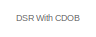
[diagram: root canvas - part 1/12, top right region]
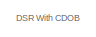
[diagram: root canvas - part 2/12, top center region]
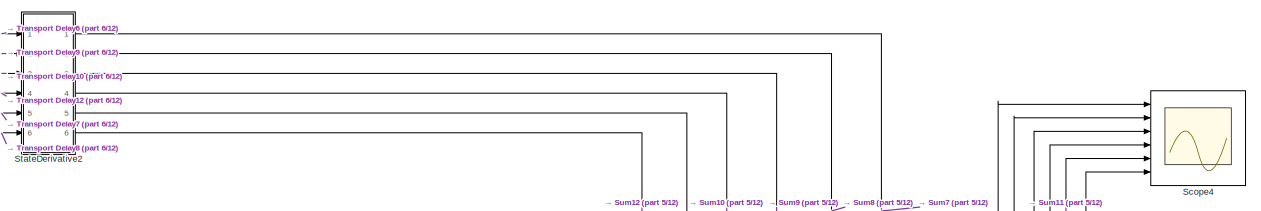
[diagram: root canvas - part 3/12, top right region]
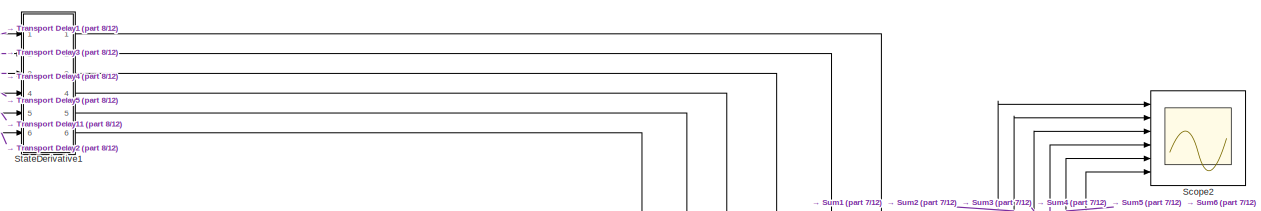
[diagram: root canvas - part 4/12, top center region]
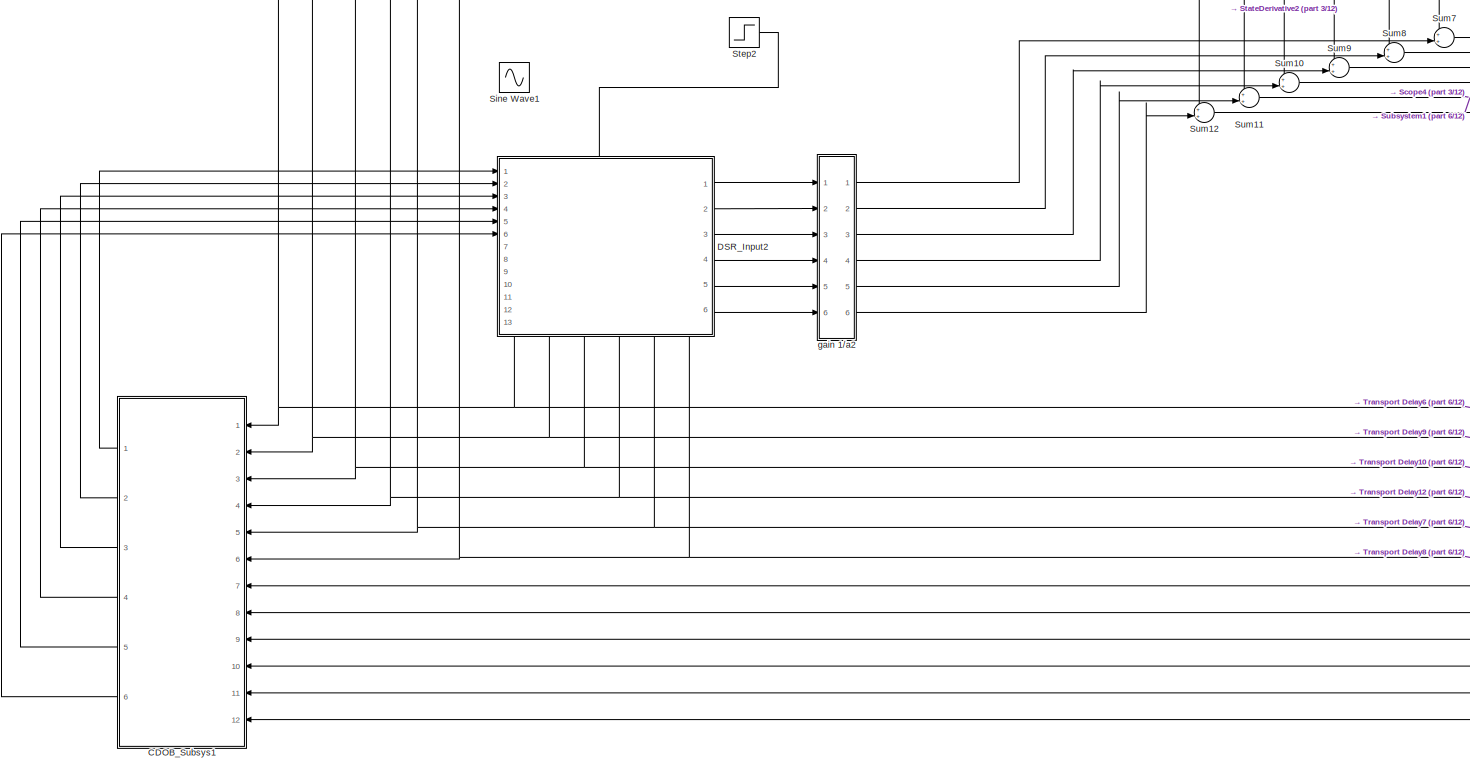
[diagram: root canvas - part 5/12, middle right region]
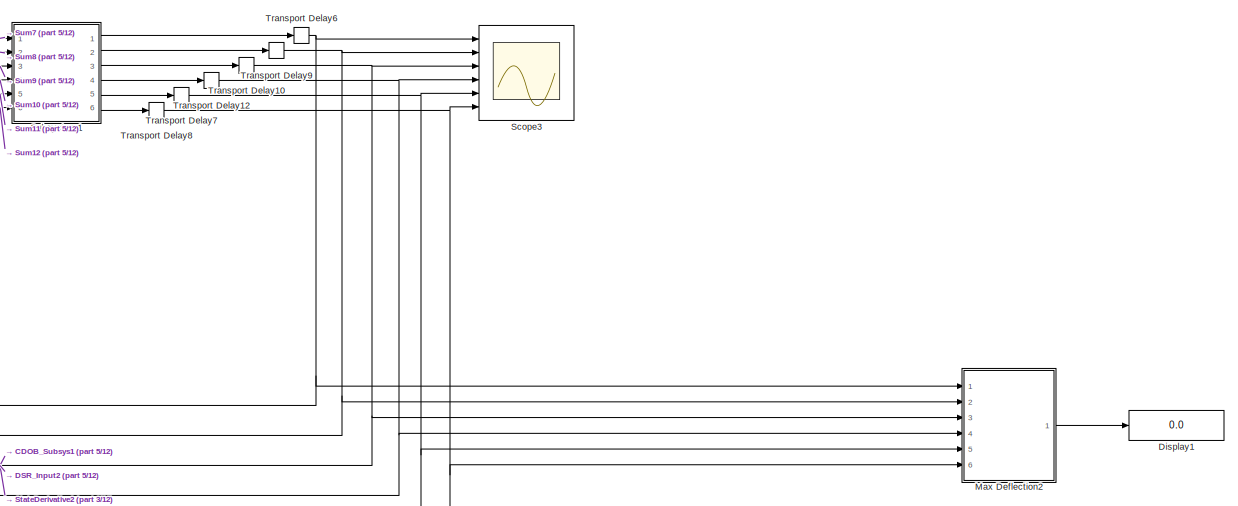
[diagram: root canvas - part 6/12, top right region]
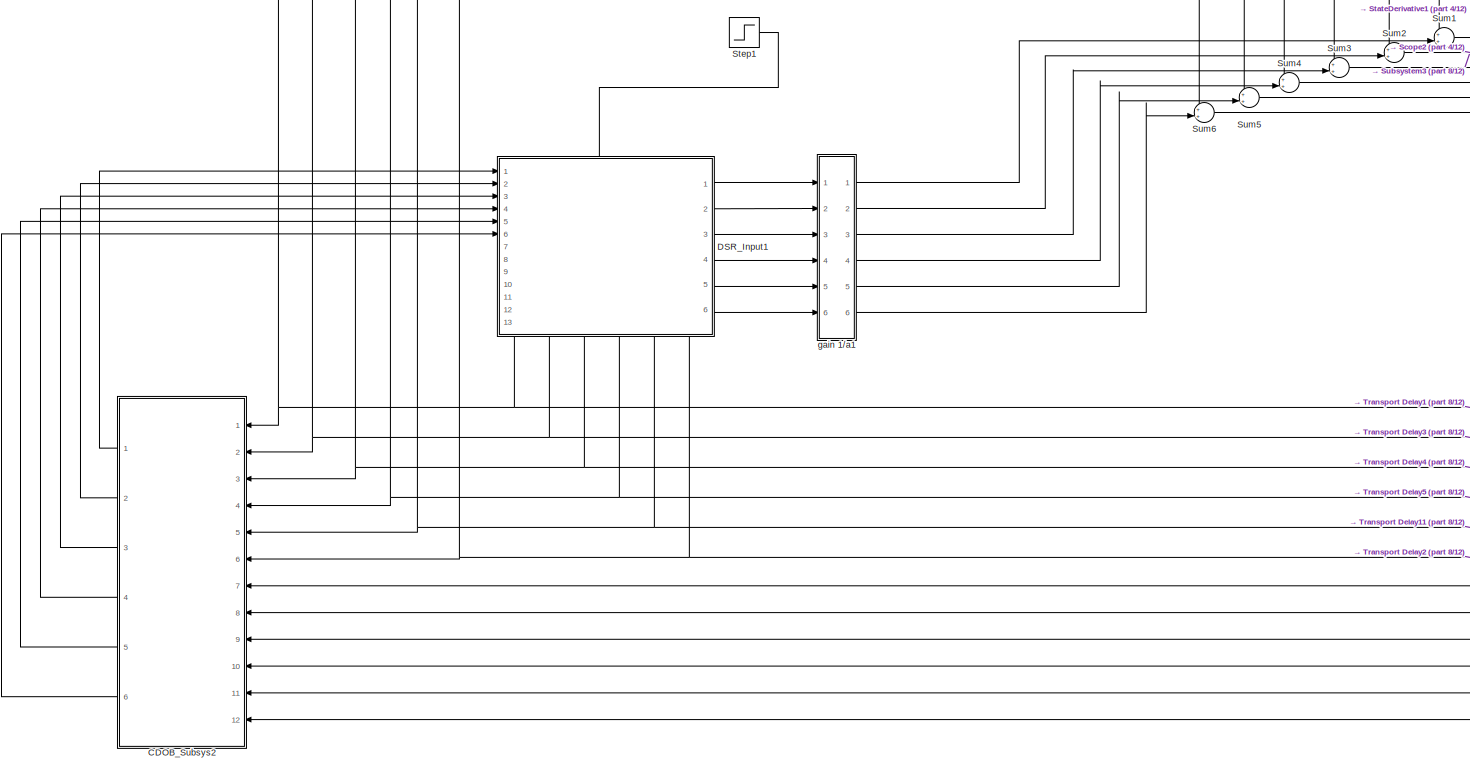
[diagram: root canvas - part 7/12, central region]
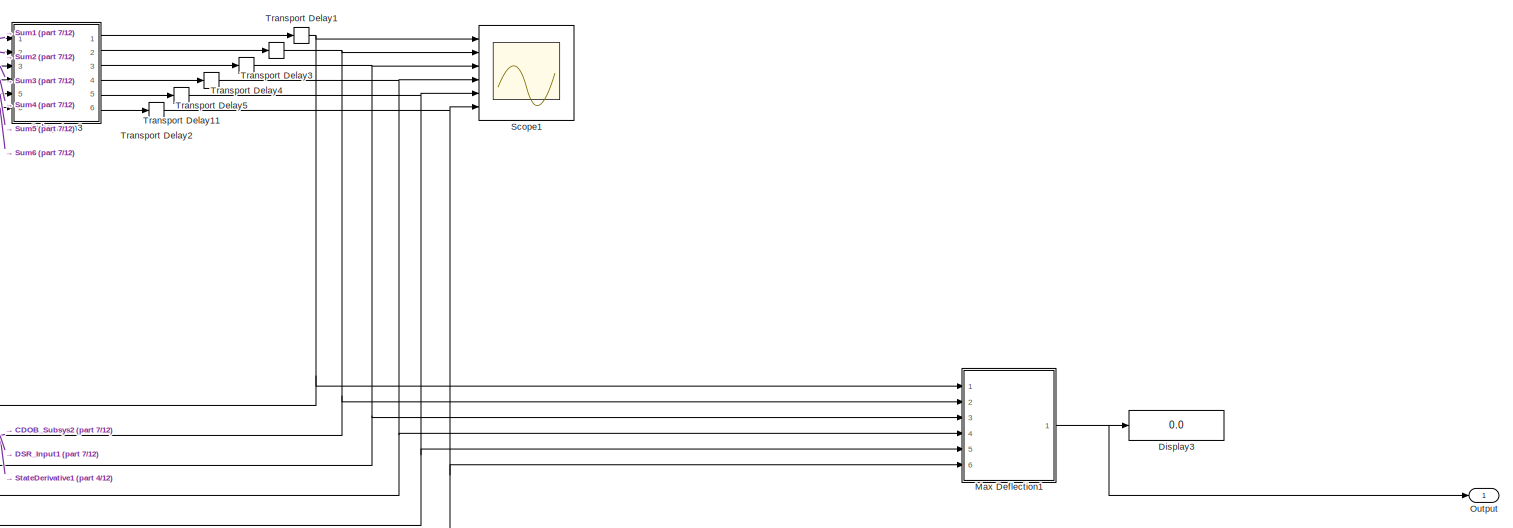
[diagram: root canvas - part 8/12, central region]
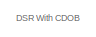
[diagram: root canvas - part 9/12, middle left region]
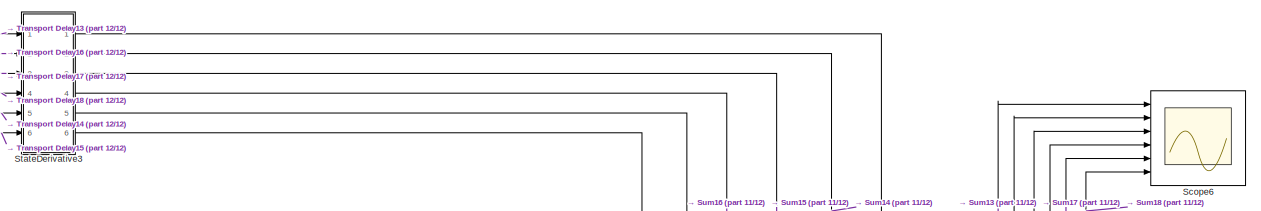
[diagram: root canvas - part 10/12, middle left region]
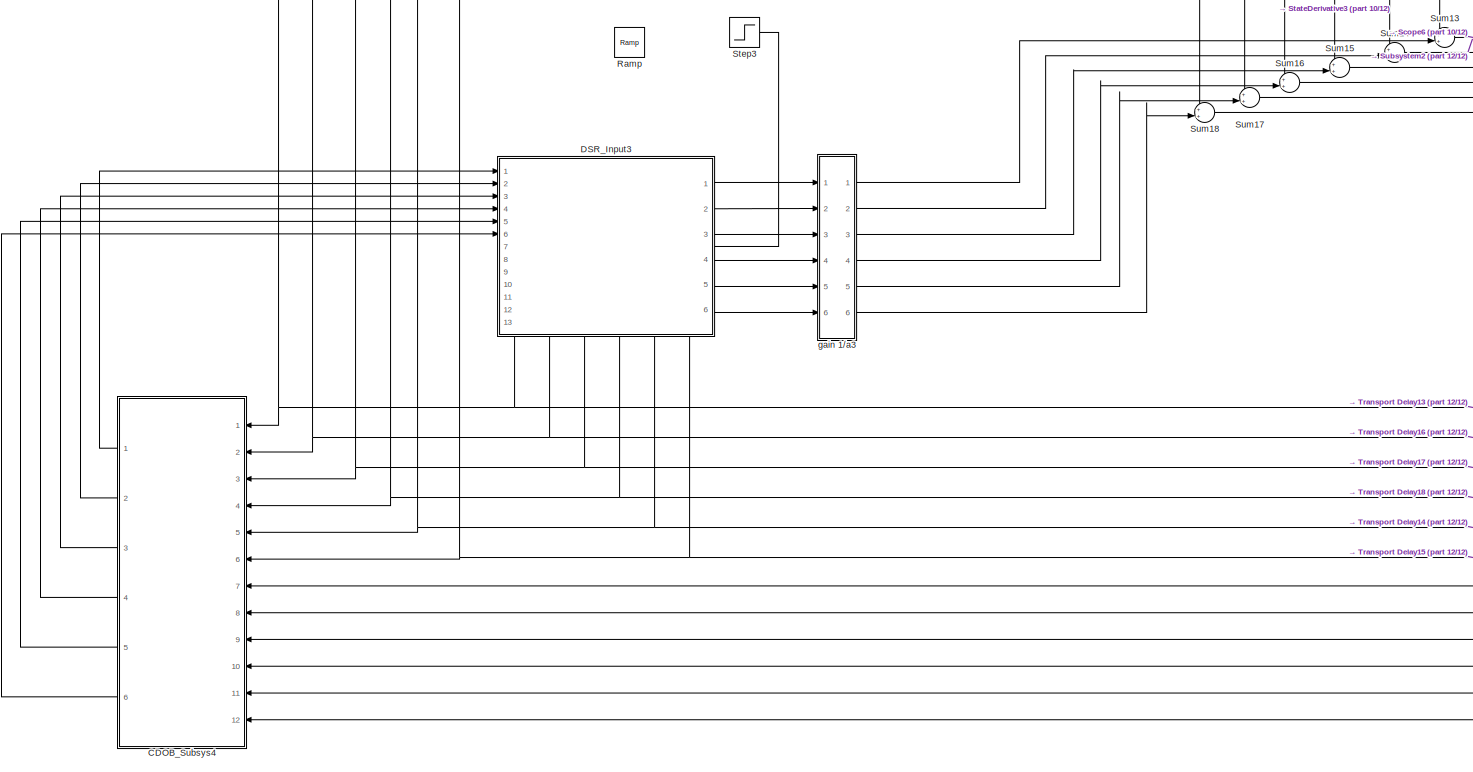
[diagram: root canvas - part 11/12, bottom left region]
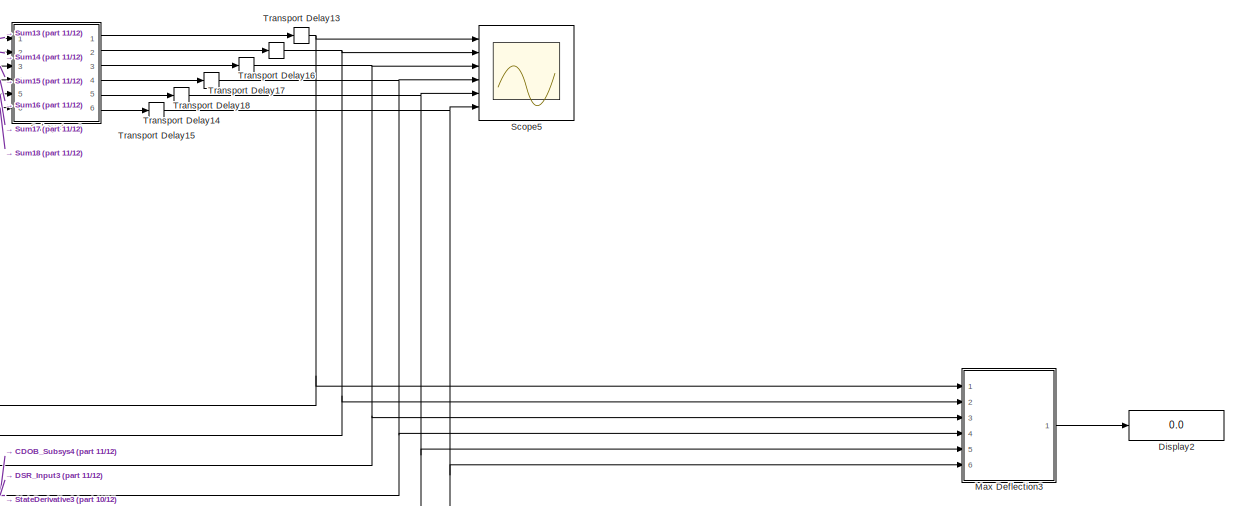
[diagram: root canvas - part 12/12, bottom left region]
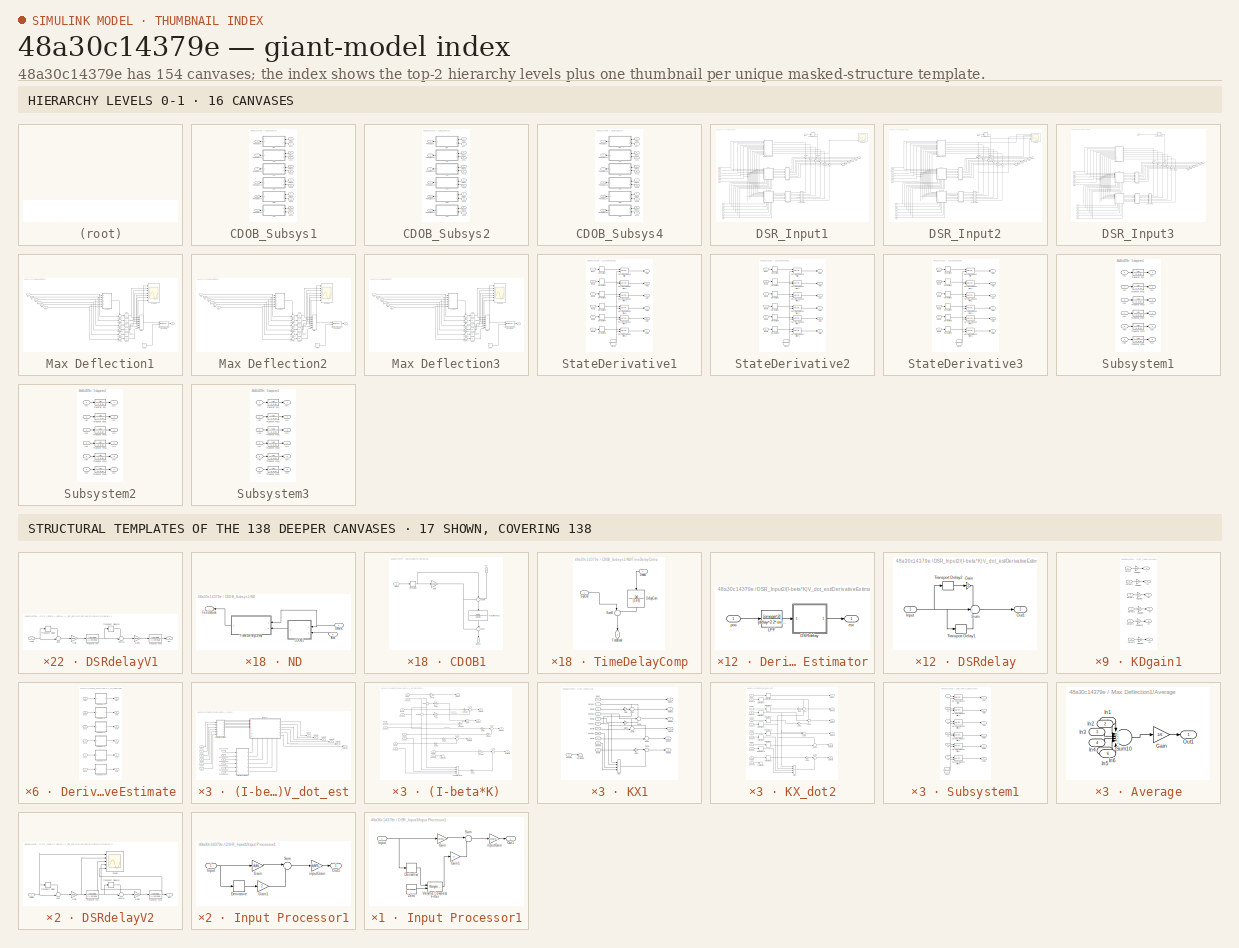
[diagram: thumbnail index - top-2 hierarchy levels (16 canvases) + 17 structural-template representatives of the remaining 138 canvases]
MODEL slx_48a30c14379e
KIND model
CONFIG AbsTol = auto
CONFIG EnableMultiTasking = off
CONFIG FixedStep = auto
CONFIG MaxStep = auto
CONFIG MinStep = auto
CONFIG RelTol = 1e-3
CONFIG SampleTimeConstraint = Unconstrained
CONFIG SolverName = VariableStepAuto
CONFIG StartTime = 0.0
CONFIG StopTime = 10
BLOCK [SubSystem] CDOB_Subsys1
  Commented = on
  NameLocation = top
  Ports = [12, 6]
  RequestExecContextInheritance = off
BLOCK [Inport] CDOB_Subsys1/Acc.
  Port = 7
BLOCK [Inport] CDOB_Subsys1/Acc.1
  Port = 8
BLOCK [Inport] CDOB_Subsys1/Acc.2
  Port = 9
BLOCK [Inport] CDOB_Subsys1/Acc.3
  Port = 10
BLOCK [Inport] CDOB_Subsys1/Acc.4
  Port = 11
BLOCK [Inport] CDOB_Subsys1/Acc.5
  Port = 12
BLOCK [Outport] CDOB_Subsys1/FeedBack
BLOCK [Outport] CDOB_Subsys1/FeedBack1
  Port = 2
BLOCK [Outport] CDOB_Subsys1/FeedBack2
  Port = 3
BLOCK [Outport] CDOB_Subsys1/FeedBack3
  Port = 4
BLOCK [Outport] CDOB_Subsys1/FeedBack4
  Port = 5
BLOCK [Outport] CDOB_Subsys1/FeedBack5
  Port = 6
BLOCK [SubSystem] CDOB_Subsys1/ND
  NameLocation = top
  Ports = [2, 1]
  RequestExecContextInheritance = off
BLOCK [Inport] CDOB_Subsys1/ND/Acc.
  Port = 2
BLOCK [SubSystem] CDOB_Subsys1/ND/CDOB1
  NameLocation = top
  Ports = [2, 1]
  RequestExecContextInheritance = off
BLOCK [Inport] CDOB_Subsys1/ND/CDOB1/Acc.
  NameLocation = left
  Port = 2
BLOCK [Derivative] CDOB_Subsys1/ND/CDOB1/Derivative
  CoefficientInTFapproximation = 0
BLOCK [Outport] CDOB_Subsys1/ND/CDOB1/Dobsv
  NameLocation = left
BLOCK [Gain] CDOB_Subsys1/ND/CDOB1/Gain
  Gain = gnet/a
BLOCK [Sum] CDOB_Subsys1/ND/CDOB1/Sum
  Inputs = -+|
  NameLocation = left
  Ports = [2, 1]
BLOCK [Sum] CDOB_Subsys1/ND/CDOB1/Sum8
  Inputs = +-+
  NameLocation = left
  Ports = [3, 1]
BLOCK [TransferFcn] CDOB_Subsys1/ND/CDOB1/Transfer Fcn2
  Denominator = [1 gnet]
  NameLocation = left
  Numerator = [gnet]
BLOCK [Inport] CDOB_Subsys1/ND/CDOB1/XRes
BLOCK [Outport] CDOB_Subsys1/ND/FeedBack
BLOCK [SubSystem] CDOB_Subsys1/ND/TimeDelayComp
  NameLocation = top
  Ports = [2, 1]
  RequestExecContextInheritance = off
BLOCK [TransferFcn] CDOB_Subsys1/ND/TimeDelayComp/DelayCom
  Denominator = [1 a 0]
  NameLocation = left
  Numerator = [a]
BLOCK [Inport] CDOB_Subsys1/ND/TimeDelayComp/Dobsv
  NameLocation = top
  Port = 2
BLOCK [Outport] CDOB_Subsys1/ND/TimeDelayComp/FeedBack
  NameLocation = left
BLOCK [Sum] CDOB_Subsys1/ND/TimeDelayComp/Sum8
  Inputs = |++
  NameLocation = left
  Ports = [2, 1]
BLOCK [Inport] CDOB_Subsys1/ND/TimeDelayComp/SysOut
BLOCK [Inport] CDOB_Subsys1/ND/XRes
BLOCK [SubSystem] CDOB_Subsys1/ND1
  NameLocation = top
  Ports = [2, 1]
  RequestExecContextInheritance = off
BLOCK [Inport] CDOB_Subsys1/ND1/Acc.
  Port = 2
BLOCK [SubSystem] CDOB_Subsys1/ND1/CDOB1
  NameLocation = top
  Ports = [2, 1]
  RequestExecContextInheritance = off
BLOCK [Inport] CDOB_Subsys1/ND1/CDOB1/Acc.
  NameLocation = left
  Port = 2
BLOCK [Derivative] CDOB_Subsys1/ND1/CDOB1/Derivative
  CoefficientInTFapproximation = 0
BLOCK [Outport] CDOB_Subsys1/ND1/CDOB1/Dobsv
  NameLocation = left
BLOCK [Gain] CDOB_Subsys1/ND1/CDOB1/Gain
  Gain = gnet/a
BLOCK [Sum] CDOB_Subsys1/ND1/CDOB1/Sum
  Inputs = -+|
  NameLocation = left
  Ports = [2, 1]
BLOCK [Sum] CDOB_Subsys1/ND1/CDOB1/Sum8
  Inputs = +-+
  NameLocation = left
  Ports = [3, 1]
BLOCK [TransferFcn] CDOB_Subsys1/ND1/CDOB1/Transfer Fcn2
  Denominator = [1 gnet]
  NameLocation = left
  Numerator = [gnet]
BLOCK [Inport] CDOB_Subsys1/ND1/CDOB1/XRes
BLOCK [Outport] CDOB_Subsys1/ND1/FeedBack
BLOCK [SubSystem] CDOB_Subsys1/ND1/TimeDelayComp
  NameLocation = top
  Ports = [2, 1]
  RequestExecContextInheritance = off
BLOCK [TransferFcn] CDOB_Subsys1/ND1/TimeDelayComp/DelayCom
  Denominator = [1 a 0]
  NameLocation = left
  Numerator = [a]
BLOCK [Inport] CDOB_Subsys1/ND1/TimeDelayComp/Dobsv
  NameLocation = top
  Port = 2
BLOCK [Outport] CDOB_Subsys1/ND1/TimeDelayComp/FeedBack
  NameLocation = left
BLOCK [Sum] CDOB_Subsys1/ND1/TimeDelayComp/Sum8
  Inputs = |++
  NameLocation = left
  Ports = [2, 1]
BLOCK [Inport] CDOB_Subsys1/ND1/TimeDelayComp/SysOut
BLOCK [Inport] CDOB_Subsys1/ND1/XRes
BLOCK [SubSystem] CDOB_Subsys1/ND2
  NameLocation = top
  Ports = [2, 1]
  RequestExecContextInheritance = off
BLOCK [Inport] CDOB_Subsys1/ND2/Acc.
  Port = 2
BLOCK [SubSystem] CDOB_Subsys1/ND2/CDOB1
  NameLocation = top
  Ports = [2, 1]
  RequestExecContextInheritance = off
BLOCK [Inport] CDOB_Subsys1/ND2/CDOB1/Acc.
  NameLocation = left
  Port = 2
BLOCK [Derivative] CDOB_Subsys1/ND2/CDOB1/Derivative
  CoefficientInTFapproximation = 0
BLOCK [Outport] CDOB_Subsys1/ND2/CDOB1/Dobsv
  NameLocation = left
BLOCK [Gain] CDOB_Subsys1/ND2/CDOB1/Gain
  Gain = gnet/a
BLOCK [Sum] CDOB_Subsys1/ND2/CDOB1/Sum
  Inputs = -+|
  NameLocation = left
  Ports = [2, 1]
BLOCK [Sum] CDOB_Subsys1/ND2/CDOB1/Sum8
  Inputs = +-+
  NameLocation = left
  Ports = [3, 1]
BLOCK [TransferFcn] CDOB_Subsys1/ND2/CDOB1/Transfer Fcn2
  Denominator = [1 gnet]
  NameLocation = left
  Numerator = [gnet]
BLOCK [Inport] CDOB_Subsys1/ND2/CDOB1/XRes
BLOCK [Outport] CDOB_Subsys1/ND2/FeedBack
BLOCK [SubSystem] CDOB_Subsys1/ND2/TimeDelayComp
  NameLocation = top
  Ports = [2, 1]
  RequestExecContextInheritance = off
BLOCK [TransferFcn] CDOB_Subsys1/ND2/TimeDelayComp/DelayCom
  Denominator = [1 a 0]
  NameLocation = left
  Numerator = [a]
BLOCK [Inport] CDOB_Subsys1/ND2/TimeDelayComp/Dobsv
  NameLocation = top
  Port = 2
BLOCK [Outport] CDOB_Subsys1/ND2/TimeDelayComp/FeedBack
  NameLocation = left
BLOCK [Sum] CDOB_Subsys1/ND2/TimeDelayComp/Sum8
  Inputs = |++
  NameLocation = left
  Ports = [2, 1]
BLOCK [Inport] CDOB_Subsys1/ND2/TimeDelayComp/SysOut
BLOCK [Inport] CDOB_Subsys1/ND2/XRes
BLOCK [SubSystem] CDOB_Subsys1/ND3
  NameLocation = top
  Ports = [2, 1]
  RequestExecContextInheritance = off
BLOCK [Inport] CDOB_Subsys1/ND3/Acc.
  Port = 2
BLOCK [SubSystem] CDOB_Subsys1/ND3/CDOB1
  NameLocation = top
  Ports = [2, 1]
  RequestExecContextInheritance = off
BLOCK [Inport] CDOB_Subsys1/ND3/CDOB1/Acc.
  NameLocation = left
  Port = 2
BLOCK [Derivative] CDOB_Subsys1/ND3/CDOB1/Derivative
  CoefficientInTFapproximation = 0
BLOCK [Outport] CDOB_Subsys1/ND3/CDOB1/Dobsv
  NameLocation = left
BLOCK [Gain] CDOB_Subsys1/ND3/CDOB1/Gain
  Gain = gnet/a
BLOCK [Sum] CDOB_Subsys1/ND3/CDOB1/Sum
  Inputs = -+|
  NameLocation = left
  Ports = [2, 1]
BLOCK [Sum] CDOB_Subsys1/ND3/CDOB1/Sum8
  Inputs = +-+
  NameLocation = left
  Ports = [3, 1]
BLOCK [TransferFcn] CDOB_Subsys1/ND3/CDOB1/Transfer Fcn2
  Denominator = [1 gnet]
  NameLocation = left
  Numerator = [gnet]
BLOCK [Inport] CDOB_Subsys1/ND3/CDOB1/XRes
BLOCK [Outport] CDOB_Subsys1/ND3/FeedBack
BLOCK [SubSystem] CDOB_Subsys1/ND3/TimeDelayComp
  NameLocation = top
  Ports = [2, 1]
  RequestExecContextInheritance = off
BLOCK [TransferFcn] CDOB_Subsys1/ND3/TimeDelayComp/DelayCom
  Denominator = [1 a 0]
  NameLocation = left
  Numerator = [a]
BLOCK [Inport] CDOB_Subsys1/ND3/TimeDelayComp/Dobsv
  NameLocation = top
  Port = 2
BLOCK [Outport] CDOB_Subsys1/ND3/TimeDelayComp/FeedBack
  NameLocation = left
BLOCK [Sum] CDOB_Subsys1/ND3/TimeDelayComp/Sum8
  Inputs = |++
  NameLocation = left
  Ports = [2, 1]
BLOCK [Inport] CDOB_Subsys1/ND3/TimeDelayComp/SysOut
BLOCK [Inport] CDOB_Subsys1/ND3/XRes
BLOCK [SubSystem] CDOB_Subsys1/ND4
  NameLocation = top
  Ports = [2, 1]
  RequestExecContextInheritance = off
BLOCK [Inport] CDOB_Subsys1/ND4/Acc.
  Port = 2
BLOCK [SubSystem] CDOB_Subsys1/ND4/CDOB1
  NameLocation = top
  Ports = [2, 1]
  RequestExecContextInheritance = off
BLOCK [Inport] CDOB_Subsys1/ND4/CDOB1/Acc.
  NameLocation = left
  Port = 2
BLOCK [Derivative] CDOB_Subsys1/ND4/CDOB1/Derivative
  CoefficientInTFapproximation = 0
BLOCK [Outport] CDOB_Subsys1/ND4/CDOB1/Dobsv
  NameLocation = left
BLOCK [Gain] CDOB_Subsys1/ND4/CDOB1/Gain
  Gain = gnet/a
BLOCK [Sum] CDOB_Subsys1/ND4/CDOB1/Sum
  Inputs = -+|
  NameLocation = left
  Ports = [2, 1]
BLOCK [Sum] CDOB_Subsys1/ND4/CDOB1/Sum8
  Inputs = +-+
  NameLocation = left
  Ports = [3, 1]
BLOCK [TransferFcn] CDOB_Subsys1/ND4/CDOB1/Transfer Fcn2
  Denominator = [1 gnet]
  NameLocation = left
  Numerator = [gnet]
BLOCK [Inport] CDOB_Subsys1/ND4/CDOB1/XRes
BLOCK [Outport] CDOB_Subsys1/ND4/FeedBack
BLOCK [SubSystem] CDOB_Subsys1/ND4/TimeDelayComp
  NameLocation = top
  Ports = [2, 1]
  RequestExecContextInheritance = off
BLOCK [TransferFcn] CDOB_Subsys1/ND4/TimeDelayComp/DelayCom
  Denominator = [1 a 0]
  NameLocation = left
  Numerator = [a]
BLOCK [Inport] CDOB_Subsys1/ND4/TimeDelayComp/Dobsv
  NameLocation = top
  Port = 2
BLOCK [Outport] CDOB_Subsys1/ND4/TimeDelayComp/FeedBack
  NameLocation = left
BLOCK [Sum] CDOB_Subsys1/ND4/TimeDelayComp/Sum8
  Inputs = |++
  NameLocation = left
  Ports = [2, 1]
BLOCK [Inport] CDOB_Subsys1/ND4/TimeDelayComp/SysOut
BLOCK [Inport] CDOB_Subsys1/ND4/XRes
BLOCK [SubSystem] CDOB_Subsys1/ND5
  NameLocation = top
  Ports = [2, 1]
  RequestExecContextInheritance = off
BLOCK [Inport] CDOB_Subsys1/ND5/Acc.
  Port = 2
BLOCK [SubSystem] CDOB_Subsys1/ND5/CDOB1
  NameLocation = top
  Ports = [2, 1]
  RequestExecContextInheritance = off
BLOCK [Inport] CDOB_Subsys1/ND5/CDOB1/Acc.
  NameLocation = left
  Port = 2
BLOCK [Derivative] CDOB_Subsys1/ND5/CDOB1/Derivative
  CoefficientInTFapproximation = 0
BLOCK [Outport] CDOB_Subsys1/ND5/CDOB1/Dobsv
  NameLocation = left
BLOCK [Gain] CDOB_Subsys1/ND5/CDOB1/Gain
  Gain = gnet/a
BLOCK [Sum] CDOB_Subsys1/ND5/CDOB1/Sum
  Inputs = -+|
  NameLocation = left
  Ports = [2, 1]
BLOCK [Sum] CDOB_Subsys1/ND5/CDOB1/Sum8
  Inputs = +-+
  NameLocation = left
  Ports = [3, 1]
BLOCK [TransferFcn] CDOB_Subsys1/ND5/CDOB1/Transfer Fcn2
  Denominator = [1 gnet]
  NameLocation = left
  Numerator = [gnet]
BLOCK [Inport] CDOB_Subsys1/ND5/CDOB1/XRes
BLOCK [Outport] CDOB_Subsys1/ND5/FeedBack
BLOCK [SubSystem] CDOB_Subsys1/ND5/TimeDelayComp
  NameLocation = top
  Ports = [2, 1]
  RequestExecContextInheritance = off
BLOCK [TransferFcn] CDOB_Subsys1/ND5/TimeDelayComp/DelayCom
  Denominator = [1 a 0]
  NameLocation = left
  Numerator = [a]
BLOCK [Inport] CDOB_Subsys1/ND5/TimeDelayComp/Dobsv
  NameLocation = top
  Port = 2
BLOCK [Outport] CDOB_Subsys1/ND5/TimeDelayComp/FeedBack
  NameLocation = left
BLOCK [Sum] CDOB_Subsys1/ND5/TimeDelayComp/Sum8
  Inputs = |++
  NameLocation = left
  Ports = [2, 1]
BLOCK [Inport] CDOB_Subsys1/ND5/TimeDelayComp/SysOut
BLOCK [Inport] CDOB_Subsys1/ND5/XRes
BLOCK [Inport] CDOB_Subsys1/XRes
BLOCK [Inport] CDOB_Subsys1/XRes1
  Port = 2
BLOCK [Inport] CDOB_Subsys1/XRes2
  Port = 3
BLOCK [Inport] CDOB_Subsys1/XRes3
  Port = 4
BLOCK [Inport] CDOB_Subsys1/XRes4
  Port = 5
BLOCK [Inport] CDOB_Subsys1/XRes5
  Port = 6
BLOCK [SubSystem] CDOB_Subsys2
  Commented = on
  NameLocation = top
  Ports = [12, 6]
  RequestExecContextInheritance = off
BLOCK [Inport] CDOB_Subsys2/Acc.
  Port = 7
BLOCK [Inport] CDOB_Subsys2/Acc.1
  Port = 8
BLOCK [Inport] CDOB_Subsys2/Acc.2
  Port = 9
BLOCK [Inport] CDOB_Subsys2/Acc.3
  Port = 10
BLOCK [Inport] CDOB_Subsys2/Acc.4
  Port = 11
BLOCK [Inport] CDOB_Subsys2/Acc.5
  Port = 12
BLOCK [Outport] CDOB_Subsys2/FeedBack
BLOCK [Outport] CDOB_Subsys2/FeedBack1
  Port = 2
BLOCK [Outport] CDOB_Subsys2/FeedBack2
  Port = 3
BLOCK [Outport] CDOB_Subsys2/FeedBack3
  Port = 4
BLOCK [Outport] CDOB_Subsys2/FeedBack4
  Port = 5
BLOCK [Outport] CDOB_Subsys2/FeedBack5
  Port = 6
BLOCK [SubSystem] CDOB_Subsys2/ND
  NameLocation = top
  Ports = [2, 1]
  RequestExecContextInheritance = off
BLOCK [Inport] CDOB_Subsys2/ND/Acc.
  Port = 2
BLOCK [SubSystem] CDOB_Subsys2/ND/CDOB1
  NameLocation = top
  Ports = [2, 1]
  RequestExecContextInheritance = off
BLOCK [Inport] CDOB_Subsys2/ND/CDOB1/Acc.
  NameLocation = left
  Port = 2
BLOCK [Derivative] CDOB_Subsys2/ND/CDOB1/Derivative
  CoefficientInTFapproximation = 0
BLOCK [Outport] CDOB_Subsys2/ND/CDOB1/Dobsv
  NameLocation = left
BLOCK [Gain] CDOB_Subsys2/ND/CDOB1/Gain
  Gain = gnet/a
BLOCK [Sum] CDOB_Subsys2/ND/CDOB1/Sum
  Inputs = -+|
  NameLocation = left
  Ports = [2, 1]
BLOCK [Sum] CDOB_Subsys2/ND/CDOB1/Sum8
  Inputs = +-+
  NameLocation = left
  Ports = [3, 1]
BLOCK [TransferFcn] CDOB_Subsys2/ND/CDOB1/Transfer Fcn2
  Denominator = [1 gnet]
  NameLocation = left
  Numerator = [gnet]
BLOCK [Inport] CDOB_Subsys2/ND/CDOB1/XRes
BLOCK [Outport] CDOB_Subsys2/ND/FeedBack
BLOCK [SubSystem] CDOB_Subsys2/ND/TimeDelayComp
  NameLocation = top
  Ports = [2, 1]
  RequestExecContextInheritance = off
BLOCK [TransferFcn] CDOB_Subsys2/ND/TimeDelayComp/DelayCom
  Denominator = [1 a 0]
  NameLocation = left
  Numerator = [a]
BLOCK [Inport] CDOB_Subsys2/ND/TimeDelayComp/Dobsv
  NameLocation = top
  Port = 2
BLOCK [Outport] CDOB_Subsys2/ND/TimeDelayComp/FeedBack
  NameLocation = left
BLOCK [Sum] CDOB_Subsys2/ND/TimeDelayComp/Sum8
  Inputs = |++
  NameLocation = left
  Ports = [2, 1]
BLOCK [Inport] CDOB_Subsys2/ND/TimeDelayComp/SysOut
BLOCK [Inport] CDOB_Subsys2/ND/XRes
BLOCK [SubSystem] CDOB_Subsys2/ND1
  NameLocation = top
  Ports = [2, 1]
  RequestExecContextInheritance = off
BLOCK [Inport] CDOB_Subsys2/ND1/Acc.
  Port = 2
BLOCK [SubSystem] CDOB_Subsys2/ND1/CDOB1
  NameLocation = top
  Ports = [2, 1]
  RequestExecContextInheritance = off
BLOCK [Inport] CDOB_Subsys2/ND1/CDOB1/Acc.
  NameLocation = left
  Port = 2
BLOCK [Derivative] CDOB_Subsys2/ND1/CDOB1/Derivative
  CoefficientInTFapproximation = 0
BLOCK [Outport] CDOB_Subsys2/ND1/CDOB1/Dobsv
  NameLocation = left
BLOCK [Gain] CDOB_Subsys2/ND1/CDOB1/Gain
  Gain = gnet/a
BLOCK [Sum] CDOB_Subsys2/ND1/CDOB1/Sum
  Inputs = -+|
  NameLocation = left
  Ports = [2, 1]
BLOCK [Sum] CDOB_Subsys2/ND1/CDOB1/Sum8
  Inputs = +-+
  NameLocation = left
  Ports = [3, 1]
BLOCK [TransferFcn] CDOB_Subsys2/ND1/CDOB1/Transfer Fcn2
  Denominator = [1 gnet]
  NameLocation = left
  Numerator = [gnet]
BLOCK [Inport] CDOB_Subsys2/ND1/CDOB1/XRes
BLOCK [Outport] CDOB_Subsys2/ND1/FeedBack
BLOCK [SubSystem] CDOB_Subsys2/ND1/TimeDelayComp
  NameLocation = top
  Ports = [2, 1]
  RequestExecContextInheritance = off
BLOCK [TransferFcn] CDOB_Subsys2/ND1/TimeDelayComp/DelayCom
  Denominator = [1 a 0]
  NameLocation = left
  Numerator = [a]
BLOCK [Inport] CDOB_Subsys2/ND1/TimeDelayComp/Dobsv
  NameLocation = top
  Port = 2
BLOCK [Outport] CDOB_Subsys2/ND1/TimeDelayComp/FeedBack
  NameLocation = left
BLOCK [Sum] CDOB_Subsys2/ND1/TimeDelayComp/Sum8
  Inputs = |++
  NameLocation = left
  Ports = [2, 1]
BLOCK [Inport] CDOB_Subsys2/ND1/TimeDelayComp/SysOut
BLOCK [Inport] CDOB_Subsys2/ND1/XRes
BLOCK [SubSystem] CDOB_Subsys2/ND2
  NameLocation = top
  Ports = [2, 1]
  RequestExecContextInheritance = off
BLOCK [Inport] CDOB_Subsys2/ND2/Acc.
  Port = 2
BLOCK [SubSystem] CDOB_Subsys2/ND2/CDOB1
  NameLocation = top
  Ports = [2, 1]
  RequestExecContextInheritance = off
BLOCK [Inport] CDOB_Subsys2/ND2/CDOB1/Acc.
  NameLocation = left
  Port = 2
BLOCK [Derivative] CDOB_Subsys2/ND2/CDOB1/Derivative
  CoefficientInTFapproximation = 0
BLOCK [Outport] CDOB_Subsys2/ND2/CDOB1/Dobsv
  NameLocation = left
BLOCK [Gain] CDOB_Subsys2/ND2/CDOB1/Gain
  Gain = gnet/a
BLOCK [Sum] CDOB_Subsys2/ND2/CDOB1/Sum
  Inputs = -+|
  NameLocation = left
  Ports = [2, 1]
BLOCK [Sum] CDOB_Subsys2/ND2/CDOB1/Sum8
  Inputs = +-+
  NameLocation = left
  Ports = [3, 1]
BLOCK [TransferFcn] CDOB_Subsys2/ND2/CDOB1/Transfer Fcn2
  Denominator = [1 gnet]
  NameLocation = left
  Numerator = [gnet]
BLOCK [Inport] CDOB_Subsys2/ND2/CDOB1/XRes
BLOCK [Outport] CDOB_Subsys2/ND2/FeedBack
BLOCK [SubSystem] CDOB_Subsys2/ND2/TimeDelayComp
  NameLocation = top
  Ports = [2, 1]
  RequestExecContextInheritance = off
BLOCK [TransferFcn] CDOB_Subsys2/ND2/TimeDelayComp/DelayCom
  Denominator = [1 a 0]
  NameLocation = left
  Numerator = [a]
BLOCK [Inport] CDOB_Subsys2/ND2/TimeDelayComp/Dobsv
  NameLocation = top
  Port = 2
BLOCK [Outport] CDOB_Subsys2/ND2/TimeDelayComp/FeedBack
  NameLocation = left
BLOCK [Sum] CDOB_Subsys2/ND2/TimeDelayComp/Sum8
  Inputs = |++
  NameLocation = left
  Ports = [2, 1]
BLOCK [Inport] CDOB_Subsys2/ND2/TimeDelayComp/SysOut
BLOCK [Inport] CDOB_Subsys2/ND2/XRes
BLOCK [SubSystem] CDOB_Subsys2/ND3
  NameLocation = top
  Ports = [2, 1]
  RequestExecContextInheritance = off
BLOCK [Inport] CDOB_Subsys2/ND3/Acc.
  Port = 2
BLOCK [SubSystem] CDOB_Subsys2/ND3/CDOB1
  NameLocation = top
  Ports = [2, 1]
  RequestExecContextInheritance = off
BLOCK [Inport] CDOB_Subsys2/ND3/CDOB1/Acc.
  NameLocation = left
  Port = 2
BLOCK [Derivative] CDOB_Subsys2/ND3/CDOB1/Derivative
  CoefficientInTFapproximation = 0
BLOCK [Outport] CDOB_Subsys2/ND3/CDOB1/Dobsv
  NameLocation = left
BLOCK [Gain] CDOB_Subsys2/ND3/CDOB1/Gain
  Gain = gnet/a
BLOCK [Sum] CDOB_Subsys2/ND3/CDOB1/Sum
  Inputs = -+|
  NameLocation = left
  Ports = [2, 1]
BLOCK [Sum] CDOB_Subsys2/ND3/CDOB1/Sum8
  Inputs = +-+
  NameLocation = left
  Ports = [3, 1]
BLOCK [TransferFcn] CDOB_Subsys2/ND3/CDOB1/Transfer Fcn2
  Denominator = [1 gnet]
  NameLocation = left
  Numerator = [gnet]
BLOCK [Inport] CDOB_Subsys2/ND3/CDOB1/XRes
BLOCK [Outport] CDOB_Subsys2/ND3/FeedBack
BLOCK [SubSystem] CDOB_Subsys2/ND3/TimeDelayComp
  NameLocation = top
  Ports = [2, 1]
  RequestExecContextInheritance = off
BLOCK [TransferFcn] CDOB_Subsys2/ND3/TimeDelayComp/DelayCom
  Denominator = [1 a 0]
  NameLocation = left
  Numerator = [a]
BLOCK [Inport] CDOB_Subsys2/ND3/TimeDelayComp/Dobsv
  NameLocation = top
  Port = 2
BLOCK [Outport] CDOB_Subsys2/ND3/TimeDelayComp/FeedBack
  NameLocation = left
BLOCK [Sum] CDOB_Subsys2/ND3/TimeDelayComp/Sum8
  Inputs = |++
  NameLocation = left
  Ports = [2, 1]
BLOCK [Inport] CDOB_Subsys2/ND3/TimeDelayComp/SysOut
BLOCK [Inport] CDOB_Subsys2/ND3/XRes
BLOCK [SubSystem] CDOB_Subsys2/ND4
  NameLocation = top
  Ports = [2, 1]
  RequestExecContextInheritance = off
BLOCK [Inport] CDOB_Subsys2/ND4/Acc.
  Port = 2
BLOCK [SubSystem] CDOB_Subsys2/ND4/CDOB1
  NameLocation = top
  Ports = [2, 1]
  RequestExecContextInheritance = off
BLOCK [Inport] CDOB_Subsys2/ND4/CDOB1/Acc.
  NameLocation = left
  Port = 2
BLOCK [Derivative] CDOB_Subsys2/ND4/CDOB1/Derivative
  CoefficientInTFapproximation = 0
BLOCK [Outport] CDOB_Subsys2/ND4/CDOB1/Dobsv
  NameLocation = left
BLOCK [Gain] CDOB_Subsys2/ND4/CDOB1/Gain
  Gain = gnet/a
BLOCK [Sum] CDOB_Subsys2/ND4/CDOB1/Sum
  Inputs = -+|
  NameLocation = left
  Ports = [2, 1]
BLOCK [Sum] CDOB_Subsys2/ND4/CDOB1/Sum8
  Inputs = +-+
  NameLocation = left
  Ports = [3, 1]
BLOCK [TransferFcn] CDOB_Subsys2/ND4/CDOB1/Transfer Fcn2
  Denominator = [1 gnet]
  NameLocation = left
  Numerator = [gnet]
BLOCK [Inport] CDOB_Subsys2/ND4/CDOB1/XRes
BLOCK [Outport] CDOB_Subsys2/ND4/FeedBack
BLOCK [SubSystem] CDOB_Subsys2/ND4/TimeDelayComp
  NameLocation = top
  Ports = [2, 1]
  RequestExecContextInheritance = off
BLOCK [TransferFcn] CDOB_Subsys2/ND4/TimeDelayComp/DelayCom
  Denominator = [1 a 0]
  NameLocation = left
  Numerator = [a]
BLOCK [Inport] CDOB_Subsys2/ND4/TimeDelayComp/Dobsv
  NameLocation = top
  Port = 2
BLOCK [Outport] CDOB_Subsys2/ND4/TimeDelayComp/FeedBack
  NameLocation = left
BLOCK [Sum] CDOB_Subsys2/ND4/TimeDelayComp/Sum8
  Inputs = |++
  NameLocation = left
  Ports = [2, 1]
BLOCK [Inport] CDOB_Subsys2/ND4/TimeDelayComp/SysOut
BLOCK [Inport] CDOB_Subsys2/ND4/XRes
BLOCK [SubSystem] CDOB_Subsys2/ND5
  NameLocation = top
  Ports = [2, 1]
  RequestExecContextInheritance = off
BLOCK [Inport] CDOB_Subsys2/ND5/Acc.
  Port = 2
BLOCK [SubSystem] CDOB_Subsys2/ND5/CDOB1
  NameLocation = top
  Ports = [2, 1]
  RequestExecContextInheritance = off
BLOCK [Inport] CDOB_Subsys2/ND5/CDOB1/Acc.
  NameLocation = left
  Port = 2
BLOCK [Derivative] CDOB_Subsys2/ND5/CDOB1/Derivative
  CoefficientInTFapproximation = 0
BLOCK [Outport] CDOB_Subsys2/ND5/CDOB1/Dobsv
  NameLocation = left
BLOCK [Gain] CDOB_Subsys2/ND5/CDOB1/Gain
  Gain = gnet/a
BLOCK [Sum] CDOB_Subsys2/ND5/CDOB1/Sum
  Inputs = -+|
  NameLocation = left
  Ports = [2, 1]
BLOCK [Sum] CDOB_Subsys2/ND5/CDOB1/Sum8
  Inputs = +-+
  NameLocation = left
  Ports = [3, 1]
BLOCK [TransferFcn] CDOB_Subsys2/ND5/CDOB1/Transfer Fcn2
  Denominator = [1 gnet]
  NameLocation = left
  Numerator = [gnet]
BLOCK [Inport] CDOB_Subsys2/ND5/CDOB1/XRes
BLOCK [Outport] CDOB_Subsys2/ND5/FeedBack
BLOCK [SubSystem] CDOB_Subsys2/ND5/TimeDelayComp
  NameLocation = top
  Ports = [2, 1]
  RequestExecContextInheritance = off
BLOCK [TransferFcn] CDOB_Subsys2/ND5/TimeDelayComp/DelayCom
  Denominator = [1 a 0]
  NameLocation = left
  Numerator = [a]
BLOCK [Inport] CDOB_Subsys2/ND5/TimeDelayComp/Dobsv
  NameLocation = top
  Port = 2
BLOCK [Outport] CDOB_Subsys2/ND5/TimeDelayComp/FeedBack
  NameLocation = left
BLOCK [Sum] CDOB_Subsys2/ND5/TimeDelayComp/Sum8
  Inputs = |++
  NameLocation = left
  Ports = [2, 1]
BLOCK [Inport] CDOB_Subsys2/ND5/TimeDelayComp/SysOut
BLOCK [Inport] CDOB_Subsys2/ND5/XRes
BLOCK [Inport] CDOB_Subsys2/XRes
BLOCK [Inport] CDOB_Subsys2/XRes1
  Port = 2
BLOCK [Inport] CDOB_Subsys2/XRes2
  Port = 3
BLOCK [Inport] CDOB_Subsys2/XRes3
  Port = 4
BLOCK [Inport] CDOB_Subsys2/XRes4
  Port = 5
BLOCK [Inport] CDOB_Subsys2/XRes5
  Port = 6
BLOCK [SubSystem] CDOB_Subsys4
  NameLocation = top
  Ports = [12, 6]
  RequestExecContextInheritance = off
BLOCK [Inport] CDOB_Subsys4/Acc.
  Port = 7
BLOCK [Inport] CDOB_Subsys4/Acc.1
  Port = 8
BLOCK [Inport] CDOB_Subsys4/Acc.2
  Port = 9
BLOCK [Inport] CDOB_Subsys4/Acc.3
  Port = 10
BLOCK [Inport] CDOB_Subsys4/Acc.4
  Port = 11
BLOCK [Inport] CDOB_Subsys4/Acc.5
  Port = 12
BLOCK [Outport] CDOB_Subsys4/FeedBack
BLOCK [Outport] CDOB_Subsys4/FeedBack1
  Port = 2
BLOCK [Outport] CDOB_Subsys4/FeedBack2
  Port = 3
BLOCK [Outport] CDOB_Subsys4/FeedBack3
  Port = 4
BLOCK [Outport] CDOB_Subsys4/FeedBack4
  Port = 5
BLOCK [Outport] CDOB_Subsys4/FeedBack5
  Port = 6
BLOCK [SubSystem] CDOB_Subsys4/ND
  NameLocation = top
  Ports = [2, 1]
  RequestExecContextInheritance = off
BLOCK [Inport] CDOB_Subsys4/ND/Acc.
  Port = 2
BLOCK [SubSystem] CDOB_Subsys4/ND/CDOB1
  NameLocation = top
  Ports = [2, 1]
  RequestExecContextInheritance = off
BLOCK [Inport] CDOB_Subsys4/ND/CDOB1/Acc.
  NameLocation = left
  Port = 2
BLOCK [Derivative] CDOB_Subsys4/ND/CDOB1/Derivative
  CoefficientInTFapproximation = 0
BLOCK [Outport] CDOB_Subsys4/ND/CDOB1/Dobsv
  NameLocation = left
BLOCK [Gain] CDOB_Subsys4/ND/CDOB1/Gain
  Gain = gnet/a
BLOCK [Sum] CDOB_Subsys4/ND/CDOB1/Sum
  Inputs = -+|
  NameLocation = left
  Ports = [2, 1]
BLOCK [Sum] CDOB_Subsys4/ND/CDOB1/Sum8
  Inputs = +-+
  NameLocation = left
  Ports = [3, 1]
BLOCK [TransferFcn] CDOB_Subsys4/ND/CDOB1/Transfer Fcn2
  Denominator = [1 gnet]
  NameLocation = left
  Numerator = [gnet]
BLOCK [Inport] CDOB_Subsys4/ND/CDOB1/XRes
BLOCK [Outport] CDOB_Subsys4/ND/FeedBack
BLOCK [SubSystem] CDOB_Subsys4/ND/TimeDelayComp
  NameLocation = top
  Ports = [2, 1]
  RequestExecContextInheritance = off
BLOCK [TransferFcn] CDOB_Subsys4/ND/TimeDelayComp/DelayCom
  Denominator = [1 a 0]
  NameLocation = left
  Numerator = [a]
BLOCK [Inport] CDOB_Subsys4/ND/TimeDelayComp/Dobsv
  NameLocation = top
  Port = 2
BLOCK [Outport] CDOB_Subsys4/ND/TimeDelayComp/FeedBack
  NameLocation = left
BLOCK [Sum] CDOB_Subsys4/ND/TimeDelayComp/Sum8
  Inputs = |++
  NameLocation = left
  Ports = [2, 1]
BLOCK [Inport] CDOB_Subsys4/ND/TimeDelayComp/SysOut
BLOCK [Inport] CDOB_Subsys4/ND/XRes
BLOCK [SubSystem] CDOB_Subsys4/ND1
  NameLocation = top
  Ports = [2, 1]
  RequestExecContextInheritance = off
BLOCK [Inport] CDOB_Subsys4/ND1/Acc.
  Port = 2
BLOCK [SubSystem] CDOB_Subsys4/ND1/CDOB1
  NameLocation = top
  Ports = [2, 1]
  RequestExecContextInheritance = off
BLOCK [Inport] CDOB_Subsys4/ND1/CDOB1/Acc.
  NameLocation = left
  Port = 2
BLOCK [Derivative] CDOB_Subsys4/ND1/CDOB1/Derivative
  CoefficientInTFapproximation = 0
BLOCK [Outport] CDOB_Subsys4/ND1/CDOB1/Dobsv
  NameLocation = left
BLOCK [Gain] CDOB_Subsys4/ND1/CDOB1/Gain
  Gain = gnet/a
BLOCK [Sum] CDOB_Subsys4/ND1/CDOB1/Sum
  Inputs = -+|
  NameLocation = left
  Ports = [2, 1]
BLOCK [Sum] CDOB_Subsys4/ND1/CDOB1/Sum8
  Inputs = +-+
  NameLocation = left
  Ports = [3, 1]
BLOCK [TransferFcn] CDOB_Subsys4/ND1/CDOB1/Transfer Fcn2
  Denominator = [1 gnet]
  NameLocation = left
  Numerator = [gnet]
BLOCK [Inport] CDOB_Subsys4/ND1/CDOB1/XRes
BLOCK [Outport] CDOB_Subsys4/ND1/FeedBack
BLOCK [SubSystem] CDOB_Subsys4/ND1/TimeDelayComp
  NameLocation = top
  Ports = [2, 1]
  RequestExecContextInheritance = off
BLOCK [TransferFcn] CDOB_Subsys4/ND1/TimeDelayComp/DelayCom
  Denominator = [1 a 0]
  NameLocation = left
  Numerator = [a]
BLOCK [Inport] CDOB_Subsys4/ND1/TimeDelayComp/Dobsv
  NameLocation = top
  Port = 2
BLOCK [Outport] CDOB_Subsys4/ND1/TimeDelayComp/FeedBack
  NameLocation = left
BLOCK [Sum] CDOB_Subsys4/ND1/TimeDelayComp/Sum8
  Inputs = |++
  NameLocation = left
  Ports = [2, 1]
BLOCK [Inport] CDOB_Subsys4/ND1/TimeDelayComp/SysOut
BLOCK [Inport] CDOB_Subsys4/ND1/XRes
BLOCK [SubSystem] CDOB_Subsys4/ND2
  NameLocation = top
  Ports = [2, 1]
  RequestExecContextInheritance = off
BLOCK [Inport] CDOB_Subsys4/ND2/Acc.
  Port = 2
BLOCK [SubSystem] CDOB_Subsys4/ND2/CDOB1
  NameLocation = top
  Ports = [2, 1]
  RequestExecContextInheritance = off
BLOCK [Inport] CDOB_Subsys4/ND2/CDOB1/Acc.
  NameLocation = left
  Port = 2
BLOCK [Derivative] CDOB_Subsys4/ND2/CDOB1/Derivative
  CoefficientInTFapproximation = 0
BLOCK [Outport] CDOB_Subsys4/ND2/CDOB1/Dobsv
  NameLocation = left
BLOCK [Gain] CDOB_Subsys4/ND2/CDOB1/Gain
  Gain = gnet/a
BLOCK [Sum] CDOB_Subsys4/ND2/CDOB1/Sum
  Inputs = -+|
  NameLocation = left
  Ports = [2, 1]
BLOCK [Sum] CDOB_Subsys4/ND2/CDOB1/Sum8
  Inputs = +-+
  NameLocation = left
  Ports = [3, 1]
BLOCK [TransferFcn] CDOB_Subsys4/ND2/CDOB1/Transfer Fcn2
  Denominator = [1 gnet]
  NameLocation = left
  Numerator = [gnet]
BLOCK [Inport] CDOB_Subsys4/ND2/CDOB1/XRes
BLOCK [Outport] CDOB_Subsys4/ND2/FeedBack
BLOCK [SubSystem] CDOB_Subsys4/ND2/TimeDelayComp
  NameLocation = top
  Ports = [2, 1]
  RequestExecContextInheritance = off
BLOCK [TransferFcn] CDOB_Subsys4/ND2/TimeDelayComp/DelayCom
  Denominator = [1 a 0]
  NameLocation = left
  Numerator = [a]
BLOCK [Inport] CDOB_Subsys4/ND2/TimeDelayComp/Dobsv
  NameLocation = top
  Port = 2
BLOCK [Outport] CDOB_Subsys4/ND2/TimeDelayComp/FeedBack
  NameLocation = left
BLOCK [Sum] CDOB_Subsys4/ND2/TimeDelayComp/Sum8
  Inputs = |++
  NameLocation = left
  Ports = [2, 1]
BLOCK [Inport] CDOB_Subsys4/ND2/TimeDelayComp/SysOut
BLOCK [Inport] CDOB_Subsys4/ND2/XRes
BLOCK [SubSystem] CDOB_Subsys4/ND3
  NameLocation = top
  Ports = [2, 1]
  RequestExecContextInheritance = off
BLOCK [Inport] CDOB_Subsys4/ND3/Acc.
  Port = 2
BLOCK [SubSystem] CDOB_Subsys4/ND3/CDOB1
  NameLocation = top
  Ports = [2, 1]
  RequestExecContextInheritance = off
BLOCK [Inport] CDOB_Subsys4/ND3/CDOB1/Acc.
  NameLocation = left
  Port = 2
BLOCK [Derivative] CDOB_Subsys4/ND3/CDOB1/Derivative
  CoefficientInTFapproximation = 0
BLOCK [Outport] CDOB_Subsys4/ND3/CDOB1/Dobsv
  NameLocation = left
BLOCK [Gain] CDOB_Subsys4/ND3/CDOB1/Gain
  Gain = gnet/a
BLOCK [Sum] CDOB_Subsys4/ND3/CDOB1/Sum
  Inputs = -+|
  NameLocation = left
  Ports = [2, 1]
BLOCK [Sum] CDOB_Subsys4/ND3/CDOB1/Sum8
  Inputs = +-+
  NameLocation = left
  Ports = [3, 1]
BLOCK [TransferFcn] CDOB_Subsys4/ND3/CDOB1/Transfer Fcn2
  Denominator = [1 gnet]
  NameLocation = left
  Numerator = [gnet]
BLOCK [Inport] CDOB_Subsys4/ND3/CDOB1/XRes
BLOCK [Outport] CDOB_Subsys4/ND3/FeedBack
BLOCK [SubSystem] CDOB_Subsys4/ND3/TimeDelayComp
  NameLocation = top
  Ports = [2, 1]
  RequestExecContextInheritance = off
BLOCK [TransferFcn] CDOB_Subsys4/ND3/TimeDelayComp/DelayCom
  Denominator = [1 a 0]
  NameLocation = left
  Numerator = [a]
BLOCK [Inport] CDOB_Subsys4/ND3/TimeDelayComp/Dobsv
  NameLocation = top
  Port = 2
BLOCK [Outport] CDOB_Subsys4/ND3/TimeDelayComp/FeedBack
  NameLocation = left
BLOCK [Sum] CDOB_Subsys4/ND3/TimeDelayComp/Sum8
  Inputs = |++
  NameLocation = left
  Ports = [2, 1]
BLOCK [Inport] CDOB_Subsys4/ND3/TimeDelayComp/SysOut
BLOCK [Inport] CDOB_Subsys4/ND3/XRes
BLOCK [SubSystem] CDOB_Subsys4/ND4
  NameLocation = top
  Ports = [2, 1]
  RequestExecContextInheritance = off
BLOCK [Inport] CDOB_Subsys4/ND4/Acc.
  Port = 2
BLOCK [SubSystem] CDOB_Subsys4/ND4/CDOB1
  NameLocation = top
  Ports = [2, 1]
  RequestExecContextInheritance = off
BLOCK [Inport] CDOB_Subsys4/ND4/CDOB1/Acc.
  NameLocation = left
  Port = 2
BLOCK [Derivative] CDOB_Subsys4/ND4/CDOB1/Derivative
  CoefficientInTFapproximation = 0
BLOCK [Outport] CDOB_Subsys4/ND4/CDOB1/Dobsv
  NameLocation = left
BLOCK [Gain] CDOB_Subsys4/ND4/CDOB1/Gain
  Gain = gnet/a
BLOCK [Sum] CDOB_Subsys4/ND4/CDOB1/Sum
  Inputs = -+|
  NameLocation = left
  Ports = [2, 1]
BLOCK [Sum] CDOB_Subsys4/ND4/CDOB1/Sum8
  Inputs = +-+
  NameLocation = left
  Ports = [3, 1]
BLOCK [TransferFcn] CDOB_Subsys4/ND4/CDOB1/Transfer Fcn2
  Denominator = [1 gnet]
  NameLocation = left
  Numerator = [gnet]
BLOCK [Inport] CDOB_Subsys4/ND4/CDOB1/XRes
BLOCK [Outport] CDOB_Subsys4/ND4/FeedBack
BLOCK [SubSystem] CDOB_Subsys4/ND4/TimeDelayComp
  NameLocation = top
  Ports = [2, 1]
  RequestExecContextInheritance = off
BLOCK [TransferFcn] CDOB_Subsys4/ND4/TimeDelayComp/DelayCom
  Denominator = [1 a 0]
  NameLocation = left
  Numerator = [a]
BLOCK [Inport] CDOB_Subsys4/ND4/TimeDelayComp/Dobsv
  NameLocation = top
  Port = 2
BLOCK [Outport] CDOB_Subsys4/ND4/TimeDelayComp/FeedBack
  NameLocation = left
BLOCK [Sum] CDOB_Subsys4/ND4/TimeDelayComp/Sum8
  Inputs = |++
  NameLocation = left
  Ports = [2, 1]
BLOCK [Inport] CDOB_Subsys4/ND4/TimeDelayComp/SysOut
BLOCK [Inport] CDOB_Subsys4/ND4/XRes
BLOCK [SubSystem] CDOB_Subsys4/ND5
  NameLocation = top
  Ports = [2, 1]
  RequestExecContextInheritance = off
BLOCK [Inport] CDOB_Subsys4/ND5/Acc.
  Port = 2
BLOCK [SubSystem] CDOB_Subsys4/ND5/CDOB1
  NameLocation = top
  Ports = [2, 1]
  RequestExecContextInheritance = off
BLOCK [Inport] CDOB_Subsys4/ND5/CDOB1/Acc.
  NameLocation = left
  Port = 2
BLOCK [Derivative] CDOB_Subsys4/ND5/CDOB1/Derivative
  CoefficientInTFapproximation = 0
BLOCK [Outport] CDOB_Subsys4/ND5/CDOB1/Dobsv
  NameLocation = left
BLOCK [Gain] CDOB_Subsys4/ND5/CDOB1/Gain
  Gain = gnet/a
BLOCK [Sum] CDOB_Subsys4/ND5/CDOB1/Sum
  Inputs = -+|
  NameLocation = left
  Ports = [2, 1]
BLOCK [Sum] CDOB_Subsys4/ND5/CDOB1/Sum8
  Inputs = +-+
  NameLocation = left
  Ports = [3, 1]
BLOCK [TransferFcn] CDOB_Subsys4/ND5/CDOB1/Transfer Fcn2
  Denominator = [1 gnet]
  NameLocation = left
  Numerator = [gnet]
BLOCK [Inport] CDOB_Subsys4/ND5/CDOB1/XRes
BLOCK [Outport] CDOB_Subsys4/ND5/FeedBack
BLOCK [SubSystem] CDOB_Subsys4/ND5/TimeDelayComp
  NameLocation = top
  Ports = [2, 1]
  RequestExecContextInheritance = off
BLOCK [TransferFcn] CDOB_Subsys4/ND5/TimeDelayComp/DelayCom
  Denominator = [1 a 0]
  NameLocation = left
  Numerator = [a]
BLOCK [Inport] CDOB_Subsys4/ND5/TimeDelayComp/Dobsv
  NameLocation = top
  Port = 2
BLOCK [Outport] CDOB_Subsys4/ND5/TimeDelayComp/FeedBack
  NameLocation = left
BLOCK [Sum] CDOB_Subsys4/ND5/TimeDelayComp/Sum8
  Inputs = |++
  NameLocation = left
  Ports = [2, 1]
BLOCK [Inport] CDOB_Subsys4/ND5/TimeDelayComp/SysOut
BLOCK [Inport] CDOB_Subsys4/ND5/XRes
BLOCK [Inport] CDOB_Subsys4/XRes
BLOCK [Inport] CDOB_Subsys4/XRes1
  Port = 2
BLOCK [Inport] CDOB_Subsys4/XRes2
  Port = 3
BLOCK [Inport] CDOB_Subsys4/XRes3
  Port = 4
BLOCK [Inport] CDOB_Subsys4/XRes4
  Port = 5
BLOCK [Inport] CDOB_Subsys4/XRes5
  Port = 6
BLOCK [SubSystem] DSR_Input1
  Commented = on
  NameLocation = top
  PortSchema = {"entries":[{"content":{"sides":[{"content":{"connectorIds":["In1","In2","In3","In4","In5","In6"]},"type":"ConnectorPlacement.EquallySpacedRectSide","uuid":"7b8a38d4-2828-429e-a347-8750a0874c90"},{"content":{"connectorIds":["Out1","Out2","Out3","Out4","Out5","Out6"],"side":"RIGHT"},"type":"ConnectorPlacement.EquallySpacedRectSide","uuid":"f1dcdaa7-0a93-43e2-be3b-ce942cee3b23"},{"content":{"connect...<+493ch>  <repeated x3 — deduplicated; at blocks: DSR_Input1, DSR_Input2, DSR_Input3>
  Ports = [13, 6]
  RequestExecContextInheritance = off
BLOCK [SubSystem] DSR_Input1/(I-beta*K)V_dot_est
  Ports = [12, 6]
  RequestExecContextInheritance = off
BLOCK [SubSystem] DSR_Input1/(I-beta*K)V_dot_est/(I-beta*K)
  NameLocation = top
  PortSchema = {"entries":[{"content":{"sides":[{"content":{"connectorIds":["In1","In2","In3","In4","In5","In6"]},"type":"ConnectorPlacement.EquallySpacedRectSide","uuid":"24ff0189-2e26-4de2-9c90-2043606e3d63"},{"content":{"connectorIds":["Out1","Out2","Out3","Out4","Out5","Out6"],"side":"RIGHT"},"type":"ConnectorPlacement.EquallySpacedRectSide","uuid":"7efe01dd-8101-429e-adc6-a10b45356e48"},{"content":{"connect...<+487ch>  <repeated x9 — deduplicated; at blocks: (I-beta*K), KX1, KX_dot2>
  Ports = [12, 6]
  RequestExecContextInheritance = off
BLOCK [Gain] DSR_Input1/(I-beta*K)V_dot_est/(I-beta*K)/1-2beta1
  Gain = 1-2*betac
BLOCK [Gain] DSR_Input1/(I-beta*K)V_dot_est/(I-beta*K)/1-2beta2
  Gain = 1-2*betac
BLOCK [Gain] DSR_Input1/(I-beta*K)V_dot_est/(I-beta*K)/1-4beta
  Gain = 1-4*betac
BLOCK [Gain] DSR_Input1/(I-beta*K)V_dot_est/(I-beta*K)/1-beta
  Gain = 1-betac
BLOCK [Gain] DSR_Input1/(I-beta*K)V_dot_est/(I-beta*K)/1-beta1
  Gain = 1-betac
BLOCK [Gain] DSR_Input1/(I-beta*K)V_dot_est/(I-beta*K)/1-beta2
  Gain = 1-betac
BLOCK [Inport] DSR_Input1/(I-beta*K)V_dot_est/(I-beta*K)/Input
BLOCK [Inport] DSR_Input1/(I-beta*K)V_dot_est/(I-beta*K)/Input1
  Port = 2
BLOCK [Inport] DSR_Input1/(I-beta*K)V_dot_est/(I-beta*K)/Input2
  Port = 3
BLOCK [Inport] DSR_Input1/(I-beta*K)V_dot_est/(I-beta*K)/Input3
  Port = 4
BLOCK [Inport] DSR_Input1/(I-beta*K)V_dot_est/(I-beta*K)/Input4
  Port = 5
BLOCK [Inport] DSR_Input1/(I-beta*K)V_dot_est/(I-beta*K)/Input5
  Port = 6
BLOCK [Outport] DSR_Input1/(I-beta*K)V_dot_est/(I-beta*K)/Output
BLOCK [Outport] DSR_Input1/(I-beta*K)V_dot_est/(I-beta*K)/Output1
  Port = 2
BLOCK [Outport] DSR_Input1/(I-beta*K)V_dot_est/(I-beta*K)/Output2
  Port = 3
BLOCK [Outport] DSR_Input1/(I-beta*K)V_dot_est/(I-beta*K)/Output3
  Port = 4
BLOCK [Outport] DSR_Input1/(I-beta*K)V_dot_est/(I-beta*K)/Output4
  Port = 5
BLOCK [Outport] DSR_Input1/(I-beta*K)V_dot_est/(I-beta*K)/Output5
  Port = 6
BLOCK [Sum] DSR_Input1/(I-beta*K)V_dot_est/(I-beta*K)/Sum
  Inputs = +|+
  Ports = [2, 1]
BLOCK [Sum] DSR_Input1/(I-beta*K)V_dot_est/(I-beta*K)/Sum of Elements
  IconShape = rectangular
  Inputs = ++++
  Ports = [4, 1]
BLOCK [Sum] DSR_Input1/(I-beta*K)V_dot_est/(I-beta*K)/Sum1
  Inputs = +|+
  Ports = [2, 1]
BLOCK [Sum] DSR_Input1/(I-beta*K)V_dot_est/(I-beta*K)/Sum2
  Inputs = |++
  Ports = [2, 1]
BLOCK [Sum] DSR_Input1/(I-beta*K)V_dot_est/(I-beta*K)/Sum3
  Inputs = |++
  Ports = [2, 1]
BLOCK [Sum] DSR_Input1/(I-beta*K)V_dot_est/(I-beta*K)/Sum4
  Inputs = |++
  Ports = [2, 1]
BLOCK [Sum] DSR_Input1/(I-beta*K)V_dot_est/(I-beta*K)/Sum5
  Inputs = |++
  Ports = [2, 1]
BLOCK [Sum] DSR_Input1/(I-beta*K)V_dot_est/(I-beta*K)/Sum6
  Inputs = |++
  Ports = [2, 1]
BLOCK [Terminator] DSR_Input1/(I-beta*K)V_dot_est/(I-beta*K)/Terminator
BLOCK [Gain] DSR_Input1/(I-beta*K)V_dot_est/(I-beta*K)/beta
  Gain = betac
BLOCK [Gain] DSR_Input1/(I-beta*K)V_dot_est/(I-beta*K)/beta1
  Gain = betac
BLOCK [Gain] DSR_Input1/(I-beta*K)V_dot_est/(I-beta*K)/beta2
  Gain = betac
BLOCK [Gain] DSR_Input1/(I-beta*K)V_dot_est/(I-beta*K)/beta3
  Gain = betac
BLOCK [Gain] DSR_Input1/(I-beta*K)V_dot_est/(I-beta*K)/beta4
  Gain = betac
BLOCK [Inport] DSR_Input1/(I-beta*K)V_dot_est/(I-beta*K)/sense1
  Port = 7
BLOCK [Inport] DSR_Input1/(I-beta*K)V_dot_est/(I-beta*K)/sense2
  Port = 8
BLOCK [Inport] DSR_Input1/(I-beta*K)V_dot_est/(I-beta*K)/sense3
  Port = 9
BLOCK [Inport] DSR_Input1/(I-beta*K)V_dot_est/(I-beta*K)/sense4
  Port = 10
BLOCK [Inport] DSR_Input1/(I-beta*K)V_dot_est/(I-beta*K)/sense5
  Port = 11
BLOCK [Inport] DSR_Input1/(I-beta*K)V_dot_est/(I-beta*K)/sense6
  Port = 12
BLOCK [SubSystem] DSR_Input1/(I-beta*K)V_dot_est/DerivativeEstimate
  Ports = [6, 6]
  RequestExecContextInheritance = off
BLOCK [SubSystem] DSR_Input1/(I-beta*K)V_dot_est/DerivativeEstimate/DSRdelayV1
  Ports = [1, 1]
  RequestExecContextInheritance = off
BLOCK [Gain] DSR_Input1/(I-beta*K)V_dot_est/DerivativeEstimate/DSRdelayV1/Gain
  Gain = 1/delay
BLOCK [Gain] DSR_Input1/(I-beta*K)V_dot_est/DerivativeEstimate/DSRdelayV1/Gain1
  Gain = 1/delay
BLOCK [Inport] DSR_Input1/(I-beta*K)V_dot_est/DerivativeEstimate/DSRdelayV1/Input
BLOCK [Sum] DSR_Input1/(I-beta*K)V_dot_est/DerivativeEstimate/DSRdelayV1/Sum
  Inputs = -+|
  Ports = [2, 1]
BLOCK [Sum] DSR_Input1/(I-beta*K)V_dot_est/DerivativeEstimate/DSRdelayV1/Sum13
  Inputs = -+|
  Ports = [2, 1]
BLOCK [TransferFcn] DSR_Input1/(I-beta*K)V_dot_est/DerivativeEstimate/DSRdelayV1/Transfer Fcn
  Denominator = [1 omega]
  Numerator = [omega]
BLOCK [TransferFcn] DSR_Input1/(I-beta*K)V_dot_est/DerivativeEstimate/DSRdelayV1/Transfer Fcn1
  Denominator = [1 omega]
  Numerator = [omega]
BLOCK [TransportDelay] DSR_Input1/(I-beta*K)V_dot_est/DerivativeEstimate/DSRdelayV1/Transport Delay
  DelayTime = delay
  Ports = [1, 1]
BLOCK [TransportDelay] DSR_Input1/(I-beta*K)V_dot_est/DerivativeEstimate/DSRdelayV1/Transport Delay13
  DelayTime = delay
  Ports = [1, 1]
BLOCK [Outport] DSR_Input1/(I-beta*K)V_dot_est/DerivativeEstimate/DSRdelayV1/est
BLOCK [SubSystem] DSR_Input1/(I-beta*K)V_dot_est/DerivativeEstimate/DSRdelayV2
  Ports = [1, 1]
  RequestExecContextInheritance = off
BLOCK [Gain] DSR_Input1/(I-beta*K)V_dot_est/DerivativeEstimate/DSRdelayV2/Gain
  Gain = 1/delay
BLOCK [Gain] DSR_Input1/(I-beta*K)V_dot_est/DerivativeEstimate/DSRdelayV2/Gain1
  Gain = 1/delay
BLOCK [Inport] DSR_Input1/(I-beta*K)V_dot_est/DerivativeEstimate/DSRdelayV2/Input
BLOCK [Sum] DSR_Input1/(I-beta*K)V_dot_est/DerivativeEstimate/DSRdelayV2/Sum
  Inputs = -+|
  Ports = [2, 1]
BLOCK [Sum] DSR_Input1/(I-beta*K)V_dot_est/DerivativeEstimate/DSRdelayV2/Sum13
  Inputs = -+|
  Ports = [2, 1]
BLOCK [TransferFcn] DSR_Input1/(I-beta*K)V_dot_est/DerivativeEstimate/DSRdelayV2/Transfer Fcn
  Denominator = [1 omega]
  Numerator = [omega]
BLOCK [TransferFcn] DSR_Input1/(I-beta*K)V_dot_est/DerivativeEstimate/DSRdelayV2/Transfer Fcn1
  Denominator = [1 omega]
  Numerator = [omega]
BLOCK [TransportDelay] DSR_Input1/(I-beta*K)V_dot_est/DerivativeEstimate/DSRdelayV2/Transport Delay
  DelayTime = delay
  Ports = [1, 1]
BLOCK [TransportDelay] DSR_Input1/(I-beta*K)V_dot_est/DerivativeEstimate/DSRdelayV2/Transport Delay13
  DelayTime = delay
  Ports = [1, 1]
BLOCK [Outport] DSR_Input1/(I-beta*K)V_dot_est/DerivativeEstimate/DSRdelayV2/est
BLOCK [SubSystem] DSR_Input1/(I-beta*K)V_dot_est/DerivativeEstimate/DSRdelayV3
  Ports = [1, 1]
  RequestExecContextInheritance = off
BLOCK [Gain] DSR_Input1/(I-beta*K)V_dot_est/DerivativeEstimate/DSRdelayV3/Gain
  Gain = 1/delay
BLOCK [Gain] DSR_Input1/(I-beta*K)V_dot_est/DerivativeEstimate/DSRdelayV3/Gain1
  Gain = 1/delay
BLOCK [Inport] DSR_Input1/(I-beta*K)V_dot_est/DerivativeEstimate/DSRdelayV3/Input
BLOCK [Sum] DSR_Input1/(I-beta*K)V_dot_est/DerivativeEstimate/DSRdelayV3/Sum
  Inputs = -+|
  Ports = [2, 1]
BLOCK [Sum] DSR_Input1/(I-beta*K)V_dot_est/DerivativeEstimate/DSRdelayV3/Sum13
  Inputs = -+|
  Ports = [2, 1]
BLOCK [TransferFcn] DSR_Input1/(I-beta*K)V_dot_est/DerivativeEstimate/DSRdelayV3/Transfer Fcn
  Denominator = [1 omega]
  Numerator = [omega]
BLOCK [TransferFcn] DSR_Input1/(I-beta*K)V_dot_est/DerivativeEstimate/DSRdelayV3/Transfer Fcn1
  Denominator = [1 omega]
  Numerator = [omega]
BLOCK [TransportDelay] DSR_Input1/(I-beta*K)V_dot_est/DerivativeEstimate/DSRdelayV3/Transport Delay
  DelayTime = delay
  Ports = [1, 1]
BLOCK [TransportDelay] DSR_Input1/(I-beta*K)V_dot_est/DerivativeEstimate/DSRdelayV3/Transport Delay13
  DelayTime = delay
  Ports = [1, 1]
BLOCK [Outport] DSR_Input1/(I-beta*K)V_dot_est/DerivativeEstimate/DSRdelayV3/est
BLOCK [SubSystem] DSR_Input1/(I-beta*K)V_dot_est/DerivativeEstimate/DSRdelayV4
  Ports = [1, 1]
  RequestExecContextInheritance = off
BLOCK [Gain] DSR_Input1/(I-beta*K)V_dot_est/DerivativeEstimate/DSRdelayV4/Gain
  Gain = 1/delay
BLOCK [Gain] DSR_Input1/(I-beta*K)V_dot_est/DerivativeEstimate/DSRdelayV4/Gain1
  Gain = 1/delay
BLOCK [Inport] DSR_Input1/(I-beta*K)V_dot_est/DerivativeEstimate/DSRdelayV4/Input
BLOCK [Sum] DSR_Input1/(I-beta*K)V_dot_est/DerivativeEstimate/DSRdelayV4/Sum
  Inputs = -+|
  Ports = [2, 1]
BLOCK [Sum] DSR_Input1/(I-beta*K)V_dot_est/DerivativeEstimate/DSRdelayV4/Sum13
  Inputs = -+|
  Ports = [2, 1]
BLOCK [TransferFcn] DSR_Input1/(I-beta*K)V_dot_est/DerivativeEstimate/DSRdelayV4/Transfer Fcn
  Denominator = [1 omega]
  Numerator = [omega]
BLOCK [TransferFcn] DSR_Input1/(I-beta*K)V_dot_est/DerivativeEstimate/DSRdelayV4/Transfer Fcn1
  Denominator = [1 omega]
  Numerator = [omega]
BLOCK [TransportDelay] DSR_Input1/(I-beta*K)V_dot_est/DerivativeEstimate/DSRdelayV4/Transport Delay
  DelayTime = delay
  Ports = [1, 1]
BLOCK [TransportDelay] DSR_Input1/(I-beta*K)V_dot_est/DerivativeEstimate/DSRdelayV4/Transport Delay13
  DelayTime = delay
  Ports = [1, 1]
BLOCK [Outport] DSR_Input1/(I-beta*K)V_dot_est/DerivativeEstimate/DSRdelayV4/est
BLOCK [SubSystem] DSR_Input1/(I-beta*K)V_dot_est/DerivativeEstimate/DSRdelayV5
  Ports = [1, 1]
  RequestExecContextInheritance = off
BLOCK [Gain] DSR_Input1/(I-beta*K)V_dot_est/DerivativeEstimate/DSRdelayV5/Gain
  Gain = 1/delay
BLOCK [Gain] DSR_Input1/(I-beta*K)V_dot_est/DerivativeEstimate/DSRdelayV5/Gain1
  Gain = 1/delay
BLOCK [Inport] DSR_Input1/(I-beta*K)V_dot_est/DerivativeEstimate/DSRdelayV5/Input
BLOCK [Sum] DSR_Input1/(I-beta*K)V_dot_est/DerivativeEstimate/DSRdelayV5/Sum
  Inputs = -+|
  Ports = [2, 1]
BLOCK [Sum] DSR_Input1/(I-beta*K)V_dot_est/DerivativeEstimate/DSRdelayV5/Sum13
  Inputs = -+|
  Ports = [2, 1]
BLOCK [TransferFcn] DSR_Input1/(I-beta*K)V_dot_est/DerivativeEstimate/DSRdelayV5/Transfer Fcn
  Denominator = [1 omega]
  Numerator = [omega]
BLOCK [TransferFcn] DSR_Input1/(I-beta*K)V_dot_est/DerivativeEstimate/DSRdelayV5/Transfer Fcn1
  Denominator = [1 omega]
  Numerator = [omega]
BLOCK [TransportDelay] DSR_Input1/(I-beta*K)V_dot_est/DerivativeEstimate/DSRdelayV5/Transport Delay
  DelayTime = delay
  Ports = [1, 1]
BLOCK [TransportDelay] DSR_Input1/(I-beta*K)V_dot_est/DerivativeEstimate/DSRdelayV5/Transport Delay13
  DelayTime = delay
  Ports = [1, 1]
BLOCK [Outport] DSR_Input1/(I-beta*K)V_dot_est/DerivativeEstimate/DSRdelayV5/est
BLOCK [SubSystem] DSR_Input1/(I-beta*K)V_dot_est/DerivativeEstimate/DSRdelayV6
  Ports = [1, 1]
  RequestExecContextInheritance = off
BLOCK [Gain] DSR_Input1/(I-beta*K)V_dot_est/DerivativeEstimate/DSRdelayV6/Gain
  Gain = 1/delay
BLOCK [Gain] DSR_Input1/(I-beta*K)V_dot_est/DerivativeEstimate/DSRdelayV6/Gain1
  Gain = 1/delay
BLOCK [Inport] DSR_Input1/(I-beta*K)V_dot_est/DerivativeEstimate/DSRdelayV6/Input
BLOCK [Sum] DSR_Input1/(I-beta*K)V_dot_est/DerivativeEstimate/DSRdelayV6/Sum
  Inputs = -+|
  Ports = [2, 1]
BLOCK [Sum] DSR_Input1/(I-beta*K)V_dot_est/DerivativeEstimate/DSRdelayV6/Sum13
  Inputs = -+|
  Ports = [2, 1]
BLOCK [TransferFcn] DSR_Input1/(I-beta*K)V_dot_est/DerivativeEstimate/DSRdelayV6/Transfer Fcn
  Denominator = [1 omega]
  Numerator = [omega]
BLOCK [TransferFcn] DSR_Input1/(I-beta*K)V_dot_est/DerivativeEstimate/DSRdelayV6/Transfer Fcn1
  Denominator = [1 omega]
  Numerator = [omega]
BLOCK [TransportDelay] DSR_Input1/(I-beta*K)V_dot_est/DerivativeEstimate/DSRdelayV6/Transport Delay
  DelayTime = delay
  Ports = [1, 1]
BLOCK [TransportDelay] DSR_Input1/(I-beta*K)V_dot_est/DerivativeEstimate/DSRdelayV6/Transport Delay13
  DelayTime = delay
  Ports = [1, 1]
BLOCK [Outport] DSR_Input1/(I-beta*K)V_dot_est/DerivativeEstimate/DSRdelayV6/est
BLOCK [Outport] DSR_Input1/(I-beta*K)V_dot_est/DerivativeEstimate/est
BLOCK [Outport] DSR_Input1/(I-beta*K)V_dot_est/DerivativeEstimate/est1
  Port = 2
BLOCK [Outport] DSR_Input1/(I-beta*K)V_dot_est/DerivativeEstimate/est2
  Port = 3
BLOCK [Outport] DSR_Input1/(I-beta*K)V_dot_est/DerivativeEstimate/est3
  Port = 4
BLOCK [Outport] DSR_Input1/(I-beta*K)V_dot_est/DerivativeEstimate/est4
  Port = 5
BLOCK [Outport] DSR_Input1/(I-beta*K)V_dot_est/DerivativeEstimate/est5
  Port = 6
BLOCK [Inport] DSR_Input1/(I-beta*K)V_dot_est/DerivativeEstimate/pos
BLOCK [Inport] DSR_Input1/(I-beta*K)V_dot_est/DerivativeEstimate/pos1
  Port = 2
BLOCK [Inport] DSR_Input1/(I-beta*K)V_dot_est/DerivativeEstimate/pos2
  Port = 3
BLOCK [Inport] DSR_Input1/(I-beta*K)V_dot_est/DerivativeEstimate/pos3
  Port = 4
BLOCK [Inport] DSR_Input1/(I-beta*K)V_dot_est/DerivativeEstimate/pos4
  Port = 5
BLOCK [Inport] DSR_Input1/(I-beta*K)V_dot_est/DerivativeEstimate/pos5
  Port = 6
BLOCK [SubSystem] DSR_Input1/(I-beta*K)V_dot_est/DerivativeEstimate1
  Ports = [6, 6]
  RequestExecContextInheritance = off
BLOCK [SubSystem] DSR_Input1/(I-beta*K)V_dot_est/DerivativeEstimate1/DSRdelayV1
  Ports = [1, 1]
  RequestExecContextInheritance = off
BLOCK [Gain] DSR_Input1/(I-beta*K)V_dot_est/DerivativeEstimate1/DSRdelayV1/Gain
  Gain = 1/delay
BLOCK [Gain] DSR_Input1/(I-beta*K)V_dot_est/DerivativeEstimate1/DSRdelayV1/Gain1
  Gain = 1/delay
BLOCK [Inport] DSR_Input1/(I-beta*K)V_dot_est/DerivativeEstimate1/DSRdelayV1/Input
BLOCK [Sum] DSR_Input1/(I-beta*K)V_dot_est/DerivativeEstimate1/DSRdelayV1/Sum
  Inputs = -+|
  Ports = [2, 1]
BLOCK [Sum] DSR_Input1/(I-beta*K)V_dot_est/DerivativeEstimate1/DSRdelayV1/Sum13
  Inputs = -+|
  Ports = [2, 1]
BLOCK [TransferFcn] DSR_Input1/(I-beta*K)V_dot_est/DerivativeEstimate1/DSRdelayV1/Transfer Fcn
  Denominator = [1 omega]
  Numerator = [omega]
BLOCK [TransferFcn] DSR_Input1/(I-beta*K)V_dot_est/DerivativeEstimate1/DSRdelayV1/Transfer Fcn1
  Denominator = [1 omega]
  Numerator = [omega]
BLOCK [TransportDelay] DSR_Input1/(I-beta*K)V_dot_est/DerivativeEstimate1/DSRdelayV1/Transport Delay
  DelayTime = delay
  Ports = [1, 1]
BLOCK [TransportDelay] DSR_Input1/(I-beta*K)V_dot_est/DerivativeEstimate1/DSRdelayV1/Transport Delay13
  DelayTime = delay
  Ports = [1, 1]
BLOCK [Outport] DSR_Input1/(I-beta*K)V_dot_est/DerivativeEstimate1/DSRdelayV1/est
BLOCK [SubSystem] DSR_Input1/(I-beta*K)V_dot_est/DerivativeEstimate1/DSRdelayV2
  Ports = [1, 1]
  RequestExecContextInheritance = off
BLOCK [Gain] DSR_Input1/(I-beta*K)V_dot_est/DerivativeEstimate1/DSRdelayV2/Gain
  Gain = 1/delay
BLOCK [Gain] DSR_Input1/(I-beta*K)V_dot_est/DerivativeEstimate1/DSRdelayV2/Gain1
  Gain = 1/delay
BLOCK [Inport] DSR_Input1/(I-beta*K)V_dot_est/DerivativeEstimate1/DSRdelayV2/Input
BLOCK [Scope] DSR_Input1/(I-beta*K)V_dot_est/DerivativeEstimate1/DSRdelayV2/Scope
  Floating = off
  NumInputPorts = 5
  Ports = [5]
  ScopeSpecificationString = Simulink.scopes.TimeScopeBlockCfg('CurrentConfiguration', extmgr.ConfigurationSet(extmgr.Configuration('Core','General UI',true),extmgr.Configuration('Core','Source UI',true),extmgr.Configuration('Sources','WiredSimulink',true,'DataLoggingVariableName','ScopeData6'),extmgr.Configuration('Visuals','Time Domain',true,'SerializedDisplays',{struct('MinYLimReal','-0.30456','MaxYLimReal','1.36407','YLab...<+1440ch>
BLOCK [Sum] DSR_Input1/(I-beta*K)V_dot_est/DerivativeEstimate1/DSRdelayV2/Sum
  Inputs = -+|
  Ports = [2, 1]
BLOCK [Sum] DSR_Input1/(I-beta*K)V_dot_est/DerivativeEstimate1/DSRdelayV2/Sum13
  Inputs = -+|
  Ports = [2, 1]
BLOCK [TransferFcn] DSR_Input1/(I-beta*K)V_dot_est/DerivativeEstimate1/DSRdelayV2/Transfer Fcn
  Denominator = [1 omega]
  Numerator = [omega]
BLOCK [TransferFcn] DSR_Input1/(I-beta*K)V_dot_est/DerivativeEstimate1/DSRdelayV2/Transfer Fcn1
  Denominator = [1 omega]
  Numerator = [omega]
BLOCK [TransportDelay] DSR_Input1/(I-beta*K)V_dot_est/DerivativeEstimate1/DSRdelayV2/Transport Delay
  DelayTime = delay
  Ports = [1, 1]
BLOCK [TransportDelay] DSR_Input1/(I-beta*K)V_dot_est/DerivativeEstimate1/DSRdelayV2/Transport Delay13
  DelayTime = delay
  Ports = [1, 1]
BLOCK [Outport] DSR_Input1/(I-beta*K)V_dot_est/DerivativeEstimate1/DSRdelayV2/est
BLOCK [SubSystem] DSR_Input1/(I-beta*K)V_dot_est/DerivativeEstimate1/DSRdelayV3
  Ports = [1, 1]
  RequestExecContextInheritance = off
BLOCK [Gain] DSR_Input1/(I-beta*K)V_dot_est/DerivativeEstimate1/DSRdelayV3/Gain
  Gain = 1/delay
BLOCK [Gain] DSR_Input1/(I-beta*K)V_dot_est/DerivativeEstimate1/DSRdelayV3/Gain1
  Gain = 1/delay
BLOCK [Inport] DSR_Input1/(I-beta*K)V_dot_est/DerivativeEstimate1/DSRdelayV3/Input
BLOCK [Sum] DSR_Input1/(I-beta*K)V_dot_est/DerivativeEstimate1/DSRdelayV3/Sum
  Inputs = -+|
  Ports = [2, 1]
BLOCK [Sum] DSR_Input1/(I-beta*K)V_dot_est/DerivativeEstimate1/DSRdelayV3/Sum13
  Inputs = -+|
  Ports = [2, 1]
BLOCK [TransferFcn] DSR_Input1/(I-beta*K)V_dot_est/DerivativeEstimate1/DSRdelayV3/Transfer Fcn
  Denominator = [1 omega]
  Numerator = [omega]
BLOCK [TransferFcn] DSR_Input1/(I-beta*K)V_dot_est/DerivativeEstimate1/DSRdelayV3/Transfer Fcn1
  Denominator = [1 omega]
  Numerator = [omega]
BLOCK [TransportDelay] DSR_Input1/(I-beta*K)V_dot_est/DerivativeEstimate1/DSRdelayV3/Transport Delay
  DelayTime = delay
  Ports = [1, 1]
BLOCK [TransportDelay] DSR_Input1/(I-beta*K)V_dot_est/DerivativeEstimate1/DSRdelayV3/Transport Delay13
  DelayTime = delay
  Ports = [1, 1]
BLOCK [Outport] DSR_Input1/(I-beta*K)V_dot_est/DerivativeEstimate1/DSRdelayV3/est
BLOCK [SubSystem] DSR_Input1/(I-beta*K)V_dot_est/DerivativeEstimate1/DSRdelayV4
  Ports = [1, 1]
  RequestExecContextInheritance = off
BLOCK [Gain] DSR_Input1/(I-beta*K)V_dot_est/DerivativeEstimate1/DSRdelayV4/Gain
  Gain = 1/delay
BLOCK [Gain] DSR_Input1/(I-beta*K)V_dot_est/DerivativeEstimate1/DSRdelayV4/Gain1
  Gain = 1/delay
BLOCK [Inport] DSR_Input1/(I-beta*K)V_dot_est/DerivativeEstimate1/DSRdelayV4/Input
BLOCK [Sum] DSR_Input1/(I-beta*K)V_dot_est/DerivativeEstimate1/DSRdelayV4/Sum
  Inputs = -+|
  Ports = [2, 1]
BLOCK [Sum] DSR_Input1/(I-beta*K)V_dot_est/DerivativeEstimate1/DSRdelayV4/Sum13
  Inputs = -+|
  Ports = [2, 1]
BLOCK [TransferFcn] DSR_Input1/(I-beta*K)V_dot_est/DerivativeEstimate1/DSRdelayV4/Transfer Fcn
  Denominator = [1 omega]
  Numerator = [omega]
BLOCK [TransferFcn] DSR_Input1/(I-beta*K)V_dot_est/DerivativeEstimate1/DSRdelayV4/Transfer Fcn1
  Denominator = [1 omega]
  Numerator = [omega]
BLOCK [TransportDelay] DSR_Input1/(I-beta*K)V_dot_est/DerivativeEstimate1/DSRdelayV4/Transport Delay
  DelayTime = delay
  Ports = [1, 1]
BLOCK [TransportDelay] DSR_Input1/(I-beta*K)V_dot_est/DerivativeEstimate1/DSRdelayV4/Transport Delay13
  DelayTime = delay
  Ports = [1, 1]
BLOCK [Outport] DSR_Input1/(I-beta*K)V_dot_est/DerivativeEstimate1/DSRdelayV4/est
BLOCK [SubSystem] DSR_Input1/(I-beta*K)V_dot_est/DerivativeEstimate1/DSRdelayV5
  Ports = [1, 1]
  RequestExecContextInheritance = off
BLOCK [Gain] DSR_Input1/(I-beta*K)V_dot_est/DerivativeEstimate1/DSRdelayV5/Gain
  Gain = 1/delay
BLOCK [Gain] DSR_Input1/(I-beta*K)V_dot_est/DerivativeEstimate1/DSRdelayV5/Gain1
  Gain = 1/delay
BLOCK [Inport] DSR_Input1/(I-beta*K)V_dot_est/DerivativeEstimate1/DSRdelayV5/Input
BLOCK [Sum] DSR_Input1/(I-beta*K)V_dot_est/DerivativeEstimate1/DSRdelayV5/Sum
  Inputs = -+|
  Ports = [2, 1]
BLOCK [Sum] DSR_Input1/(I-beta*K)V_dot_est/DerivativeEstimate1/DSRdelayV5/Sum13
  Inputs = -+|
  Ports = [2, 1]
BLOCK [TransferFcn] DSR_Input1/(I-beta*K)V_dot_est/DerivativeEstimate1/DSRdelayV5/Transfer Fcn
  Denominator = [1 omega]
  Numerator = [omega]
BLOCK [TransferFcn] DSR_Input1/(I-beta*K)V_dot_est/DerivativeEstimate1/DSRdelayV5/Transfer Fcn1
  Denominator = [1 omega]
  Numerator = [omega]
BLOCK [TransportDelay] DSR_Input1/(I-beta*K)V_dot_est/DerivativeEstimate1/DSRdelayV5/Transport Delay
  DelayTime = delay
  Ports = [1, 1]
BLOCK [TransportDelay] DSR_Input1/(I-beta*K)V_dot_est/DerivativeEstimate1/DSRdelayV5/Transport Delay13
  DelayTime = delay
  Ports = [1, 1]
BLOCK [Outport] DSR_Input1/(I-beta*K)V_dot_est/DerivativeEstimate1/DSRdelayV5/est
BLOCK [SubSystem] DSR_Input1/(I-beta*K)V_dot_est/DerivativeEstimate1/DSRdelayV6
  Ports = [1, 1]
  RequestExecContextInheritance = off
BLOCK [Gain] DSR_Input1/(I-beta*K)V_dot_est/DerivativeEstimate1/DSRdelayV6/Gain
  Gain = 1/delay
BLOCK [Gain] DSR_Input1/(I-beta*K)V_dot_est/DerivativeEstimate1/DSRdelayV6/Gain1
  Gain = 1/delay
BLOCK [Inport] DSR_Input1/(I-beta*K)V_dot_est/DerivativeEstimate1/DSRdelayV6/Input
BLOCK [Sum] DSR_Input1/(I-beta*K)V_dot_est/DerivativeEstimate1/DSRdelayV6/Sum
  Inputs = -+|
  Ports = [2, 1]
BLOCK [Sum] DSR_Input1/(I-beta*K)V_dot_est/DerivativeEstimate1/DSRdelayV6/Sum13
  Inputs = -+|
  Ports = [2, 1]
BLOCK [TransferFcn] DSR_Input1/(I-beta*K)V_dot_est/DerivativeEstimate1/DSRdelayV6/Transfer Fcn
  Denominator = [1 omega]
  Numerator = [omega]
BLOCK [TransferFcn] DSR_Input1/(I-beta*K)V_dot_est/DerivativeEstimate1/DSRdelayV6/Transfer Fcn1
  Denominator = [1 omega]
  Numerator = [omega]
BLOCK [TransportDelay] DSR_Input1/(I-beta*K)V_dot_est/DerivativeEstimate1/DSRdelayV6/Transport Delay
  DelayTime = delay
  Ports = [1, 1]
BLOCK [TransportDelay] DSR_Input1/(I-beta*K)V_dot_est/DerivativeEstimate1/DSRdelayV6/Transport Delay13
  DelayTime = delay
  Ports = [1, 1]
BLOCK [Outport] DSR_Input1/(I-beta*K)V_dot_est/DerivativeEstimate1/DSRdelayV6/est
BLOCK [Outport] DSR_Input1/(I-beta*K)V_dot_est/DerivativeEstimate1/est
BLOCK [Outport] DSR_Input1/(I-beta*K)V_dot_est/DerivativeEstimate1/est1
  Port = 2
BLOCK [Outport] DSR_Input1/(I-beta*K)V_dot_est/DerivativeEstimate1/est2
  Port = 3
BLOCK [Outport] DSR_Input1/(I-beta*K)V_dot_est/DerivativeEstimate1/est3
  Port = 4
BLOCK [Outport] DSR_Input1/(I-beta*K)V_dot_est/DerivativeEstimate1/est4
  Port = 5
BLOCK [Outport] DSR_Input1/(I-beta*K)V_dot_est/DerivativeEstimate1/est5
  Port = 6
BLOCK [Inport] DSR_Input1/(I-beta*K)V_dot_est/DerivativeEstimate1/pos
BLOCK [Inport] DSR_Input1/(I-beta*K)V_dot_est/DerivativeEstimate1/pos1
  Port = 2
BLOCK [Inport] DSR_Input1/(I-beta*K)V_dot_est/DerivativeEstimate1/pos2
  Port = 3
BLOCK [Inport] DSR_Input1/(I-beta*K)V_dot_est/DerivativeEstimate1/pos3
  Port = 4
BLOCK [Inport] DSR_Input1/(I-beta*K)V_dot_est/DerivativeEstimate1/pos4
  Port = 5
BLOCK [Inport] DSR_Input1/(I-beta*K)V_dot_est/DerivativeEstimate1/pos5
  Port = 6
BLOCK [Outport] DSR_Input1/(I-beta*K)V_dot_est/Output
BLOCK [Outport] DSR_Input1/(I-beta*K)V_dot_est/Output1
  Port = 2
BLOCK [Outport] DSR_Input1/(I-beta*K)V_dot_est/Output2
  Port = 3
BLOCK [Outport] DSR_Input1/(I-beta*K)V_dot_est/Output3
  Port = 4
BLOCK [Outport] DSR_Input1/(I-beta*K)V_dot_est/Output4
  Port = 5
BLOCK [Outport] DSR_Input1/(I-beta*K)V_dot_est/Output5
  Port = 6
BLOCK [Inport] DSR_Input1/(I-beta*K)V_dot_est/pos1
BLOCK [Inport] DSR_Input1/(I-beta*K)V_dot_est/pos1sense
  Port = 7
BLOCK [Inport] DSR_Input1/(I-beta*K)V_dot_est/pos2
  Port = 2
BLOCK [Inport] DSR_Input1/(I-beta*K)V_dot_est/pos2sense
  Port = 8
BLOCK [Inport] DSR_Input1/(I-beta*K)V_dot_est/pos3
  Port = 3
BLOCK [Inport] DSR_Input1/(I-beta*K)V_dot_est/pos3sense
  Port = 9
BLOCK [Inport] DSR_Input1/(I-beta*K)V_dot_est/pos4
  Port = 4
BLOCK [Inport] DSR_Input1/(I-beta*K)V_dot_est/pos4sense
  Port = 10
BLOCK [Inport] DSR_Input1/(I-beta*K)V_dot_est/pos5
  Port = 5
BLOCK [Inport] DSR_Input1/(I-beta*K)V_dot_est/pos5sense
  Port = 11
BLOCK [Inport] DSR_Input1/(I-beta*K)V_dot_est/pos6
  Port = 6
BLOCK [Inport] DSR_Input1/(I-beta*K)V_dot_est/pos6sense
  Port = 12
BLOCK [SubSystem] DSR_Input1/Input Processor1
  Ports = [1, 1]
  RequestExecContextInheritance = off
BLOCK [Derivative] DSR_Input1/Input Processor1/Derivative
BLOCK [Gain] DSR_Input1/Input Processor1/Gain
  Gain = alpha
BLOCK [Gain] DSR_Input1/Input Processor1/Gain1
  Gain = 2
BLOCK [Inport] DSR_Input1/Input Processor1/Input
BLOCK [Outport] DSR_Input1/Input Processor1/Out1
BLOCK [Sum] DSR_Input1/Input Processor1/Sum
  Inputs = |++
  Ports = [2, 1]
BLOCK [Gain] DSR_Input1/Input Processor1/inputGain
  Gain = alpha*betac
BLOCK [SubSystem] DSR_Input1/KDgain1
  Ports = [6, 6]
  RequestExecContextInheritance = off
BLOCK [Gain] DSR_Input1/KDgain1/KDgain1
  Gain = 2*alpha*betac*c1
BLOCK [Gain] DSR_Input1/KDgain1/KDgain10
  Gain = 2*alpha*betac*c1
BLOCK [Gain] DSR_Input1/KDgain1/KDgain2
  Gain = 2*alpha*betac*c1
BLOCK [Gain] DSR_Input1/KDgain1/KDgain3
  Gain = 2*alpha*betac*c1
BLOCK [Gain] DSR_Input1/KDgain1/KDgain8
  Gain = 2*alpha*betac*c1
BLOCK [Gain] DSR_Input1/KDgain1/KDgain9
  Gain = 2*alpha*betac*c1
BLOCK [Inport] DSR_Input1/KDgain1/Output
BLOCK [Inport] DSR_Input1/KDgain1/Output1
  Port = 2
BLOCK [Inport] DSR_Input1/KDgain1/Output2
  Port = 3
BLOCK [Inport] DSR_Input1/KDgain1/Output3
  Port = 4
BLOCK [Inport] DSR_Input1/KDgain1/Output4
  Port = 5
BLOCK [Inport] DSR_Input1/KDgain1/Output5
  Port = 6
BLOCK [Outport] DSR_Input1/KDgain1/u
BLOCK [Outport] DSR_Input1/KDgain1/u1
  Port = 2
BLOCK [Outport] DSR_Input1/KDgain1/u2
  Port = 3
BLOCK [Outport] DSR_Input1/KDgain1/u3
  Port = 4
BLOCK [Outport] DSR_Input1/KDgain1/u4
  Port = 5
BLOCK [Outport] DSR_Input1/KDgain1/u5
  Port = 6
BLOCK [SubSystem] DSR_Input1/KPgain1
  Ports = [6, 6]
  RequestExecContextInheritance = off
BLOCK [Gain] DSR_Input1/KPgain1/KPgain1
  Gain = betac*c1*alpha^2
BLOCK [Gain] DSR_Input1/KPgain1/KPgain2
  Gain = betac*c1*alpha^2
BLOCK [Gain] DSR_Input1/KPgain1/KPgain3
  Gain = betac*c1*alpha^2
BLOCK [Gain] DSR_Input1/KPgain1/KPgain4
  Gain = betac*c1*alpha^2
BLOCK [Gain] DSR_Input1/KPgain1/KPgain5
  Gain = betac*c1*alpha^2
BLOCK [Gain] DSR_Input1/KPgain1/KPgain6
  Gain = betac*c1*alpha^2
BLOCK [Outport] DSR_Input1/KPgain1/Out1
BLOCK [Outport] DSR_Input1/KPgain1/Out2
  Port = 2
BLOCK [Outport] DSR_Input1/KPgain1/Out3
  Port = 3
BLOCK [Outport] DSR_Input1/KPgain1/Out4
  Port = 4
BLOCK [Outport] DSR_Input1/KPgain1/Out5
  Port = 5
BLOCK [Outport] DSR_Input1/KPgain1/Out6
  Port = 6
BLOCK [Inport] DSR_Input1/KPgain1/Output
BLOCK [Inport] DSR_Input1/KPgain1/Output1
  Port = 2
BLOCK [Inport] DSR_Input1/KPgain1/Output2
  Port = 3
BLOCK [Inport] DSR_Input1/KPgain1/Output3
  Port = 4
BLOCK [Inport] DSR_Input1/KPgain1/Output4
  Port = 5
BLOCK [Inport] DSR_Input1/KPgain1/Output5
  Port = 6
BLOCK [SubSystem] DSR_Input1/KX1
  NameLocation = top
  Ports = [12, 6]
  RequestExecContextInheritance = off
BLOCK [Gain] DSR_Input1/KX1/Gain
  Gain = 2
BLOCK [Gain] DSR_Input1/KX1/Gain1
  Gain = 4
BLOCK [Gain] DSR_Input1/KX1/Gain2
  Gain = 2
BLOCK [Inport] DSR_Input1/KX1/Input
BLOCK [Inport] DSR_Input1/KX1/Input1
  Port = 2
BLOCK [Inport] DSR_Input1/KX1/Input2
  Port = 3
BLOCK [Inport] DSR_Input1/KX1/Input3
  Port = 4
BLOCK [Inport] DSR_Input1/KX1/Input4
  Port = 5
BLOCK [Inport] DSR_Input1/KX1/Input5
  Port = 6
BLOCK [Outport] DSR_Input1/KX1/Output
BLOCK [Outport] DSR_Input1/KX1/Output1
  Port = 2
BLOCK [Outport] DSR_Input1/KX1/Output2
  Port = 3
BLOCK [Outport] DSR_Input1/KX1/Output3
  Port = 4
BLOCK [Outport] DSR_Input1/KX1/Output4
  Port = 5
BLOCK [Outport] DSR_Input1/KX1/Output5
  Port = 6
BLOCK [Sum] DSR_Input1/KX1/Plus
  IconShape = rectangular
  Inputs = ++++
  Ports = [4, 1]
BLOCK [Sum] DSR_Input1/KX1/Sum
  Inputs = -+-
  Ports = [3, 1]
BLOCK [Sum] DSR_Input1/KX1/Sum1
  Inputs = --+
  Ports = [3, 1]
BLOCK [Sum] DSR_Input1/KX1/Sum2
  Inputs = -+|
  Ports = [2, 1]
BLOCK [Sum] DSR_Input1/KX1/Sum3
  Inputs = |+-
  Ports = [2, 1]
BLOCK [Sum] DSR_Input1/KX1/Sum4
  Inputs = -+|
  Ports = [2, 1]
BLOCK [Terminator] DSR_Input1/KX1/Terminator
BLOCK [Inport] DSR_Input1/KX1/sense1
  Port = 7
BLOCK [Inport] DSR_Input1/KX1/sense2
  Port = 8
BLOCK [Inport] DSR_Input1/KX1/sense3
  Port = 9
BLOCK [Inport] DSR_Input1/KX1/sense4
  Port = 10
BLOCK [Inport] DSR_Input1/KX1/sense5
  Port = 11
BLOCK [Inport] DSR_Input1/KX1/sense6
  Port = 12
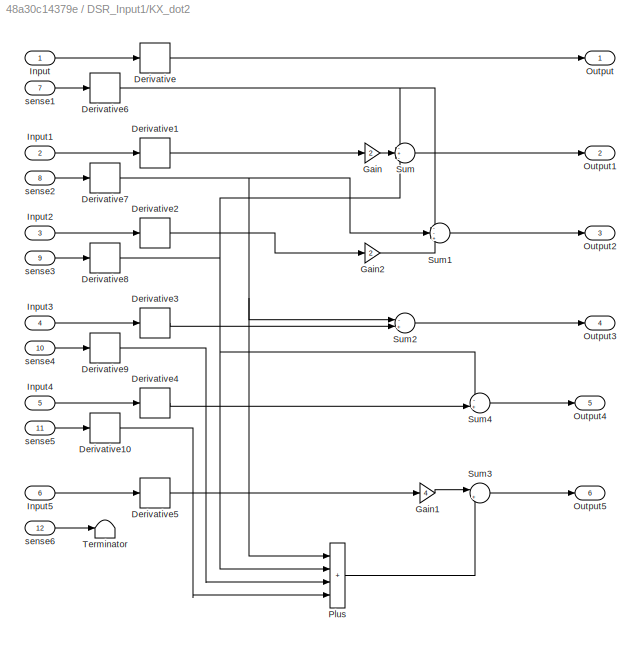
BLOCK [SubSystem] DSR_Input1/KX_dot2
  NameLocation = top
  Ports = [12, 6]
  RequestExecContextInheritance = off
BLOCK [Derivative] DSR_Input1/KX_dot2/Derivative
BLOCK [Derivative] DSR_Input1/KX_dot2/Derivative1
BLOCK [Derivative] DSR_Input1/KX_dot2/Derivative10
BLOCK [Derivative] DSR_Input1/KX_dot2/Derivative2
BLOCK [Derivative] DSR_Input1/KX_dot2/Derivative3
BLOCK [Derivative] DSR_Input1/KX_dot2/Derivative4
BLOCK [Derivative] DSR_Input1/KX_dot2/Derivative5
BLOCK [Derivative] DSR_Input1/KX_dot2/Derivative6
BLOCK [Derivative] DSR_Input1/KX_dot2/Derivative7
BLOCK [Derivative] DSR_Input1/KX_dot2/Derivative8
BLOCK [Derivative] DSR_Input1/KX_dot2/Derivative9
BLOCK [Gain] DSR_Input1/KX_dot2/Gain
  Gain = 2
BLOCK [Gain] DSR_Input1/KX_dot2/Gain1
  Gain = 4
BLOCK [Gain] DSR_Input1/KX_dot2/Gain2
  Gain = 2
BLOCK [Inport] DSR_Input1/KX_dot2/Input
BLOCK [Inport] DSR_Input1/KX_dot2/Input1
  Port = 2
BLOCK [Inport] DSR_Input1/KX_dot2/Input2
  Port = 3
BLOCK [Inport] DSR_Input1/KX_dot2/Input3
  Port = 4
BLOCK [Inport] DSR_Input1/KX_dot2/Input4
  Port = 5
BLOCK [Inport] DSR_Input1/KX_dot2/Input5
  Port = 6
BLOCK [Outport] DSR_Input1/KX_dot2/Output
BLOCK [Outport] DSR_Input1/KX_dot2/Output1
  Port = 2
BLOCK [Outport] DSR_Input1/KX_dot2/Output2
  Port = 3
BLOCK [Outport] DSR_Input1/KX_dot2/Output3
  Port = 4
BLOCK [Outport] DSR_Input1/KX_dot2/Output4
  Port = 5
BLOCK [Outport] DSR_Input1/KX_dot2/Output5
  Port = 6
BLOCK [Sum] DSR_Input1/KX_dot2/Plus
  IconShape = rectangular
  Inputs = ++++
  Ports = [4, 1]
BLOCK [Sum] DSR_Input1/KX_dot2/Sum
  Inputs = -+-
  Ports = [3, 1]
BLOCK [Sum] DSR_Input1/KX_dot2/Sum1
  Inputs = --+
  Ports = [3, 1]
BLOCK [Sum] DSR_Input1/KX_dot2/Sum2
  Inputs = -+|
  Ports = [2, 1]
BLOCK [Sum] DSR_Input1/KX_dot2/Sum3
  Inputs = |+-
  Ports = [2, 1]
BLOCK [Sum] DSR_Input1/KX_dot2/Sum4
  Inputs = -+|
  Ports = [2, 1]
BLOCK [Terminator] DSR_Input1/KX_dot2/Terminator
BLOCK [Inport] DSR_Input1/KX_dot2/sense1
  Port = 7
BLOCK [Inport] DSR_Input1/KX_dot2/sense2
  Port = 8
BLOCK [Inport] DSR_Input1/KX_dot2/sense3
  Port = 9
BLOCK [Inport] DSR_Input1/KX_dot2/sense4
  Port = 10
BLOCK [Inport] DSR_Input1/KX_dot2/sense5
  Port = 11
BLOCK [Inport] DSR_Input1/KX_dot2/sense6
  Port = 12
BLOCK [Outport] DSR_Input1/Out1
BLOCK [Outport] DSR_Input1/Out2
  Port = 2
BLOCK [Outport] DSR_Input1/Out3
  Port = 3
BLOCK [Outport] DSR_Input1/Out4
  Port = 4
BLOCK [Outport] DSR_Input1/Out5
  Port = 5
BLOCK [Outport] DSR_Input1/Out6
  Port = 6
BLOCK [Scope] DSR_Input1/Scope2
  Commented = on
  Floating = off
  NumInputPorts = 6
  Ports = [6]
  ScopeSpecificationString = Simulink.scopes.TimeScopeBlockCfg('CurrentConfiguration', extmgr.ConfigurationSet(extmgr.Configuration('Core','General UI',true),extmgr.Configuration('Core','Source UI',true),extmgr.Configuration('Sources','WiredSimulink',true,'DataLoggingVariableName','ScopeData3'),extmgr.Configuration('Visuals','Time Domain',true,'SerializedDisplays',{struct('MinYLimReal','-0.28242','MaxYLimReal','1.35964','YLab...<+1473ch>
BLOCK [SubSystem] DSR_Input1/Subsystem1
  Ports = [6, 6]
  RequestExecContextInheritance = off
BLOCK [Outport] DSR_Input1/Subsystem1/Out10
  Port = 4
BLOCK [Outport] DSR_Input1/Subsystem1/Out11
  Port = 5
BLOCK [Outport] DSR_Input1/Subsystem1/Out12
  Port = 6
BLOCK [Outport] DSR_Input1/Subsystem1/Out7
BLOCK [Outport] DSR_Input1/Subsystem1/Out8
  Port = 2
BLOCK [Outport] DSR_Input1/Subsystem1/Out9
  Port = 3
BLOCK [Reference] DSR_Input1/Subsystem1/Varying Lowpass Filter  REF=cstblocks/Linear Parameter Varying/Varying Lowpass Filter
  Ports = [2, 1]
  SourceBlock = cstblocks/Linear Parameter Varying/Varying Lowpass Filter
  SourceProductBaseCode = CT
  SourceType = Varying Lowpass Filter
BLOCK [Reference] DSR_Input1/Subsystem1/Varying Lowpass Filter1  REF=cstblocks/Linear Parameter Varying/Varying Lowpass Filter
  Ports = [2, 1]
  SourceBlock = cstblocks/Linear Parameter Varying/Varying Lowpass Filter
  SourceProductBaseCode = CT
  SourceType = Varying Lowpass Filter
BLOCK [Reference] DSR_Input1/Subsystem1/Varying Lowpass Filter2  REF=cstblocks/Linear Parameter Varying/Varying Lowpass Filter
  Ports = [2, 1]
  SourceBlock = cstblocks/Linear Parameter Varying/Varying Lowpass Filter
  SourceProductBaseCode = CT
  SourceType = Varying Lowpass Filter
BLOCK [Reference] DSR_Input1/Subsystem1/Varying Lowpass Filter3  REF=cstblocks/Linear Parameter Varying/Varying Lowpass Filter
  Ports = [2, 1]
  SourceBlock = cstblocks/Linear Parameter Varying/Varying Lowpass Filter
  SourceProductBaseCode = CT
  SourceType = Varying Lowpass Filter
BLOCK [Reference] DSR_Input1/Subsystem1/Varying Lowpass Filter4  REF=cstblocks/Linear Parameter Varying/Varying Lowpass Filter
  Ports = [2, 1]
  SourceBlock = cstblocks/Linear Parameter Varying/Varying Lowpass Filter
  SourceProductBaseCode = CT
  SourceType = Varying Lowpass Filter
BLOCK [Reference] DSR_Input1/Subsystem1/Varying Lowpass Filter5  REF=cstblocks/Linear Parameter Varying/Varying Lowpass Filter
  Ports = [2, 1]
  SourceBlock = cstblocks/Linear Parameter Varying/Varying Lowpass Filter
  SourceProductBaseCode = CT
  SourceType = Varying Lowpass Filter
BLOCK [Constant] DSR_Input1/Subsystem1/Zero
  OutDataTypeStr = Inherit: Inherit via back propagation
  Value = omegader
BLOCK [Inport] DSR_Input1/Subsystem1/u
BLOCK [Inport] DSR_Input1/Subsystem1/u1
  Port = 2
BLOCK [Inport] DSR_Input1/Subsystem1/u2
  Port = 3
BLOCK [Inport] DSR_Input1/Subsystem1/u3
  Port = 4
BLOCK [Inport] DSR_Input1/Subsystem1/u4
  Port = 5
BLOCK [Inport] DSR_Input1/Subsystem1/u5
  Port = 6
BLOCK [Sum] DSR_Input1/Sum10
  Inputs = +--
  Ports = [3, 1]
BLOCK [Sum] DSR_Input1/Sum11
  Inputs = +--
  Ports = [3, 1]
BLOCK [Sum] DSR_Input1/Sum12
  Inputs = +--
  Ports = [3, 1]
BLOCK [Sum] DSR_Input1/Sum13
  Inputs = ++|
  Ports = [2, 1]
BLOCK [Sum] DSR_Input1/Sum20
  Inputs = +--
  Ports = [3, 1]
BLOCK [Sum] DSR_Input1/Sum21
  Inputs = +--
  Ports = [3, 1]
BLOCK [Sum] DSR_Input1/Sum22
  Inputs = +--
  Ports = [3, 1]
BLOCK [Inport] DSR_Input1/fb1
BLOCK [Inport] DSR_Input1/fb2
  Port = 2
BLOCK [Inport] DSR_Input1/fb3
  Port = 3
BLOCK [Inport] DSR_Input1/fb4
  Port = 4
BLOCK [Inport] DSR_Input1/fb5
  Port = 5
BLOCK [Inport] DSR_Input1/fb6
  Port = 6
BLOCK [Inport] DSR_Input1/input
  Port = 7
BLOCK [Inport] DSR_Input1/s1
  Port = 8
BLOCK [Inport] DSR_Input1/s2
  Port = 9
BLOCK [Inport] DSR_Input1/s3
  Port = 10
BLOCK [Inport] DSR_Input1/s4
  Port = 11
BLOCK [Inport] DSR_Input1/s5
  Port = 12
BLOCK [Inport] DSR_Input1/s6
  Port = 13
BLOCK [SubSystem] DSR_Input2
  Commented = on
  NameLocation = top
  Ports = [13, 6]
  RequestExecContextInheritance = off
BLOCK [SubSystem] DSR_Input2/(I-beta*K)V_dot_est
  Ports = [12, 6]
  RequestExecContextInheritance = off
BLOCK [SubSystem] DSR_Input2/(I-beta*K)V_dot_est/(I-beta*K)
  NameLocation = top
  Ports = [12, 6]
  RequestExecContextInheritance = off
BLOCK [Gain] DSR_Input2/(I-beta*K)V_dot_est/(I-beta*K)/1-2beta1
  Gain = 1-2*betacd
BLOCK [Gain] DSR_Input2/(I-beta*K)V_dot_est/(I-beta*K)/1-2beta2
  Gain = 1-2*betacd
BLOCK [Gain] DSR_Input2/(I-beta*K)V_dot_est/(I-beta*K)/1-4beta
  Gain = 1-4*betacd
BLOCK [Gain] DSR_Input2/(I-beta*K)V_dot_est/(I-beta*K)/1-beta
  Gain = 1-betacd
BLOCK [Gain] DSR_Input2/(I-beta*K)V_dot_est/(I-beta*K)/1-beta1
  Gain = 1-betacd
BLOCK [Gain] DSR_Input2/(I-beta*K)V_dot_est/(I-beta*K)/1-beta2
  Gain = 1-betacd
BLOCK [Inport] DSR_Input2/(I-beta*K)V_dot_est/(I-beta*K)/Input
BLOCK [Inport] DSR_Input2/(I-beta*K)V_dot_est/(I-beta*K)/Input1
  Port = 2
BLOCK [Inport] DSR_Input2/(I-beta*K)V_dot_est/(I-beta*K)/Input2
  Port = 3
BLOCK [Inport] DSR_Input2/(I-beta*K)V_dot_est/(I-beta*K)/Input3
  Port = 4
BLOCK [Inport] DSR_Input2/(I-beta*K)V_dot_est/(I-beta*K)/Input4
  Port = 5
BLOCK [Inport] DSR_Input2/(I-beta*K)V_dot_est/(I-beta*K)/Input5
  Port = 6
BLOCK [Outport] DSR_Input2/(I-beta*K)V_dot_est/(I-beta*K)/Output
BLOCK [Outport] DSR_Input2/(I-beta*K)V_dot_est/(I-beta*K)/Output1
  Port = 2
BLOCK [Outport] DSR_Input2/(I-beta*K)V_dot_est/(I-beta*K)/Output2
  Port = 3
BLOCK [Outport] DSR_Input2/(I-beta*K)V_dot_est/(I-beta*K)/Output3
  Port = 4
BLOCK [Outport] DSR_Input2/(I-beta*K)V_dot_est/(I-beta*K)/Output4
  Port = 5
BLOCK [Outport] DSR_Input2/(I-beta*K)V_dot_est/(I-beta*K)/Output5
  Port = 6
BLOCK [Sum] DSR_Input2/(I-beta*K)V_dot_est/(I-beta*K)/Sum
  Inputs = +|+
  Ports = [2, 1]
BLOCK [Sum] DSR_Input2/(I-beta*K)V_dot_est/(I-beta*K)/Sum of Elements
  IconShape = rectangular
  Inputs = ++++
  Ports = [4, 1]
BLOCK [Sum] DSR_Input2/(I-beta*K)V_dot_est/(I-beta*K)/Sum1
  Inputs = +|+
  Ports = [2, 1]
BLOCK [Sum] DSR_Input2/(I-beta*K)V_dot_est/(I-beta*K)/Sum2
  Inputs = |++
  Ports = [2, 1]
BLOCK [Sum] DSR_Input2/(I-beta*K)V_dot_est/(I-beta*K)/Sum3
  Inputs = |++
  Ports = [2, 1]
BLOCK [Sum] DSR_Input2/(I-beta*K)V_dot_est/(I-beta*K)/Sum4
  Inputs = |++
  Ports = [2, 1]
BLOCK [Sum] DSR_Input2/(I-beta*K)V_dot_est/(I-beta*K)/Sum5
  Inputs = |++
  Ports = [2, 1]
BLOCK [Sum] DSR_Input2/(I-beta*K)V_dot_est/(I-beta*K)/Sum6
  Inputs = |++
  Ports = [2, 1]
BLOCK [Terminator] DSR_Input2/(I-beta*K)V_dot_est/(I-beta*K)/Terminator
BLOCK [Gain] DSR_Input2/(I-beta*K)V_dot_est/(I-beta*K)/beta
  Gain = betac
BLOCK [Gain] DSR_Input2/(I-beta*K)V_dot_est/(I-beta*K)/beta1
  Gain = betac
BLOCK [Gain] DSR_Input2/(I-beta*K)V_dot_est/(I-beta*K)/beta2
  Gain = betac
BLOCK [Gain] DSR_Input2/(I-beta*K)V_dot_est/(I-beta*K)/beta3
  Gain = betac
BLOCK [Gain] DSR_Input2/(I-beta*K)V_dot_est/(I-beta*K)/beta4
  Gain = betac
BLOCK [Inport] DSR_Input2/(I-beta*K)V_dot_est/(I-beta*K)/sense1
  Port = 7
BLOCK [Inport] DSR_Input2/(I-beta*K)V_dot_est/(I-beta*K)/sense2
  Port = 8
BLOCK [Inport] DSR_Input2/(I-beta*K)V_dot_est/(I-beta*K)/sense3
  Port = 9
BLOCK [Inport] DSR_Input2/(I-beta*K)V_dot_est/(I-beta*K)/sense4
  Port = 10
BLOCK [Inport] DSR_Input2/(I-beta*K)V_dot_est/(I-beta*K)/sense5
  Port = 11
BLOCK [Inport] DSR_Input2/(I-beta*K)V_dot_est/(I-beta*K)/sense6
  Port = 12
BLOCK [SubSystem] DSR_Input2/(I-beta*K)V_dot_est/DerivativeEstimate
  Ports = [6, 6]
  RequestExecContextInheritance = off
BLOCK [SubSystem] DSR_Input2/(I-beta*K)V_dot_est/DerivativeEstimate/Derivative Estimator
  Ports = [1, 1]
  RequestExecContextInheritance = off
BLOCK [SubSystem] DSR_Input2/(I-beta*K)V_dot_est/DerivativeEstimate/Derivative Estimator/DSRdelay
  Ports = [1, 1]
  RequestExecContextInheritance = off
BLOCK [Gain] DSR_Input2/(I-beta*K)V_dot_est/DerivativeEstimate/Derivative Estimator/DSRdelay/Gain
  Gain = 2
BLOCK [Inport] DSR_Input2/(I-beta*K)V_dot_est/DerivativeEstimate/Derivative Estimator/DSRdelay/Input
BLOCK [Outport] DSR_Input2/(I-beta*K)V_dot_est/DerivativeEstimate/Derivative Estimator/DSRdelay/Out1
BLOCK [Sum] DSR_Input2/(I-beta*K)V_dot_est/DerivativeEstimate/Derivative Estimator/DSRdelay/Sum
  Inputs = -++
  Ports = [3, 1]
BLOCK [TransportDelay] DSR_Input2/(I-beta*K)V_dot_est/DerivativeEstimate/Derivative Estimator/DSRdelay/Transport Delay1
  DelayTime = 2*delay
  Ports = [1, 1]
BLOCK [TransportDelay] DSR_Input2/(I-beta*K)V_dot_est/DerivativeEstimate/Derivative Estimator/DSRdelay/Transport Delay2
  DelayTime = delay
  Ports = [1, 1]
BLOCK [TransferFcn] DSR_Input2/(I-beta*K)V_dot_est/DerivativeEstimate/Derivative Estimator/LPF
  Denominator = [delay^2 2*omega*delay^2 omega^2*delay^2]
  Numerator = [omega^2]
BLOCK [Outport] DSR_Input2/(I-beta*K)V_dot_est/DerivativeEstimate/Derivative Estimator/est
BLOCK [Inport] DSR_Input2/(I-beta*K)V_dot_est/DerivativeEstimate/Derivative Estimator/pos
BLOCK [SubSystem] DSR_Input2/(I-beta*K)V_dot_est/DerivativeEstimate/Derivative Estimator1
  Ports = [1, 1]
  RequestExecContextInheritance = off
BLOCK [SubSystem] DSR_Input2/(I-beta*K)V_dot_est/DerivativeEstimate/Derivative Estimator1/DSRdelay
  Ports = [1, 1]
  RequestExecContextInheritance = off
BLOCK [Gain] DSR_Input2/(I-beta*K)V_dot_est/DerivativeEstimate/Derivative Estimator1/DSRdelay/Gain
  Gain = 2
BLOCK [Inport] DSR_Input2/(I-beta*K)V_dot_est/DerivativeEstimate/Derivative Estimator1/DSRdelay/Input
BLOCK [Outport] DSR_Input2/(I-beta*K)V_dot_est/DerivativeEstimate/Derivative Estimator1/DSRdelay/Out1
BLOCK [Sum] DSR_Input2/(I-beta*K)V_dot_est/DerivativeEstimate/Derivative Estimator1/DSRdelay/Sum
  Inputs = -++
  Ports = [3, 1]
BLOCK [TransportDelay] DSR_Input2/(I-beta*K)V_dot_est/DerivativeEstimate/Derivative Estimator1/DSRdelay/Transport Delay1
  DelayTime = 2*delay
  Ports = [1, 1]
BLOCK [TransportDelay] DSR_Input2/(I-beta*K)V_dot_est/DerivativeEstimate/Derivative Estimator1/DSRdelay/Transport Delay2
  DelayTime = delay
  Ports = [1, 1]
BLOCK [TransferFcn] DSR_Input2/(I-beta*K)V_dot_est/DerivativeEstimate/Derivative Estimator1/LPF
  Denominator = [delay^2 2*omega*delay^2 omega^2*delay^2]
  Numerator = [omega^2]
BLOCK [Outport] DSR_Input2/(I-beta*K)V_dot_est/DerivativeEstimate/Derivative Estimator1/est
BLOCK [Inport] DSR_Input2/(I-beta*K)V_dot_est/DerivativeEstimate/Derivative Estimator1/pos
BLOCK [SubSystem] DSR_Input2/(I-beta*K)V_dot_est/DerivativeEstimate/Derivative Estimator2
  Ports = [1, 1]
  RequestExecContextInheritance = off
BLOCK [SubSystem] DSR_Input2/(I-beta*K)V_dot_est/DerivativeEstimate/Derivative Estimator2/DSRdelay
  Ports = [1, 1]
  RequestExecContextInheritance = off
BLOCK [Gain] DSR_Input2/(I-beta*K)V_dot_est/DerivativeEstimate/Derivative Estimator2/DSRdelay/Gain
  Gain = 2
BLOCK [Inport] DSR_Input2/(I-beta*K)V_dot_est/DerivativeEstimate/Derivative Estimator2/DSRdelay/Input
BLOCK [Outport] DSR_Input2/(I-beta*K)V_dot_est/DerivativeEstimate/Derivative Estimator2/DSRdelay/Out1
BLOCK [Sum] DSR_Input2/(I-beta*K)V_dot_est/DerivativeEstimate/Derivative Estimator2/DSRdelay/Sum
  Inputs = -++
  Ports = [3, 1]
BLOCK [TransportDelay] DSR_Input2/(I-beta*K)V_dot_est/DerivativeEstimate/Derivative Estimator2/DSRdelay/Transport Delay1
  DelayTime = 2*delay
  Ports = [1, 1]
BLOCK [TransportDelay] DSR_Input2/(I-beta*K)V_dot_est/DerivativeEstimate/Derivative Estimator2/DSRdelay/Transport Delay2
  DelayTime = delay
  Ports = [1, 1]
BLOCK [TransferFcn] DSR_Input2/(I-beta*K)V_dot_est/DerivativeEstimate/Derivative Estimator2/LPF
  Denominator = [delay^2 2*omega*delay^2 omega^2*delay^2]
  Numerator = [omega^2]
BLOCK [Outport] DSR_Input2/(I-beta*K)V_dot_est/DerivativeEstimate/Derivative Estimator2/est
BLOCK [Inport] DSR_Input2/(I-beta*K)V_dot_est/DerivativeEstimate/Derivative Estimator2/pos
BLOCK [SubSystem] DSR_Input2/(I-beta*K)V_dot_est/DerivativeEstimate/Derivative Estimator3
  Ports = [1, 1]
  RequestExecContextInheritance = off
BLOCK [SubSystem] DSR_Input2/(I-beta*K)V_dot_est/DerivativeEstimate/Derivative Estimator3/DSRdelay
  Ports = [1, 1]
  RequestExecContextInheritance = off
BLOCK [Gain] DSR_Input2/(I-beta*K)V_dot_est/DerivativeEstimate/Derivative Estimator3/DSRdelay/Gain
  Gain = 2
BLOCK [Inport] DSR_Input2/(I-beta*K)V_dot_est/DerivativeEstimate/Derivative Estimator3/DSRdelay/Input
BLOCK [Outport] DSR_Input2/(I-beta*K)V_dot_est/DerivativeEstimate/Derivative Estimator3/DSRdelay/Out1
BLOCK [Sum] DSR_Input2/(I-beta*K)V_dot_est/DerivativeEstimate/Derivative Estimator3/DSRdelay/Sum
  Inputs = -++
  Ports = [3, 1]
BLOCK [TransportDelay] DSR_Input2/(I-beta*K)V_dot_est/DerivativeEstimate/Derivative Estimator3/DSRdelay/Transport Delay1
  DelayTime = 2*delay
  Ports = [1, 1]
BLOCK [TransportDelay] DSR_Input2/(I-beta*K)V_dot_est/DerivativeEstimate/Derivative Estimator3/DSRdelay/Transport Delay2
  DelayTime = delay
  Ports = [1, 1]
BLOCK [TransferFcn] DSR_Input2/(I-beta*K)V_dot_est/DerivativeEstimate/Derivative Estimator3/LPF
  Denominator = [delay^2 2*omega*delay^2 omega^2*delay^2]
  Numerator = [omega^2]
BLOCK [Outport] DSR_Input2/(I-beta*K)V_dot_est/DerivativeEstimate/Derivative Estimator3/est
BLOCK [Inport] DSR_Input2/(I-beta*K)V_dot_est/DerivativeEstimate/Derivative Estimator3/pos
BLOCK [SubSystem] DSR_Input2/(I-beta*K)V_dot_est/DerivativeEstimate/Derivative Estimator4
  Ports = [1, 1]
  RequestExecContextInheritance = off
BLOCK [SubSystem] DSR_Input2/(I-beta*K)V_dot_est/DerivativeEstimate/Derivative Estimator4/DSRdelay
  Ports = [1, 1]
  RequestExecContextInheritance = off
BLOCK [Gain] DSR_Input2/(I-beta*K)V_dot_est/DerivativeEstimate/Derivative Estimator4/DSRdelay/Gain
  Gain = 2
BLOCK [Inport] DSR_Input2/(I-beta*K)V_dot_est/DerivativeEstimate/Derivative Estimator4/DSRdelay/Input
BLOCK [Outport] DSR_Input2/(I-beta*K)V_dot_est/DerivativeEstimate/Derivative Estimator4/DSRdelay/Out1
BLOCK [Sum] DSR_Input2/(I-beta*K)V_dot_est/DerivativeEstimate/Derivative Estimator4/DSRdelay/Sum
  Inputs = -++
  Ports = [3, 1]
BLOCK [TransportDelay] DSR_Input2/(I-beta*K)V_dot_est/DerivativeEstimate/Derivative Estimator4/DSRdelay/Transport Delay1
  DelayTime = 2*delay
  Ports = [1, 1]
BLOCK [TransportDelay] DSR_Input2/(I-beta*K)V_dot_est/DerivativeEstimate/Derivative Estimator4/DSRdelay/Transport Delay2
  DelayTime = delay
  Ports = [1, 1]
BLOCK [TransferFcn] DSR_Input2/(I-beta*K)V_dot_est/DerivativeEstimate/Derivative Estimator4/LPF
  Denominator = [delay^2 2*omega*delay^2 omega^2*delay^2]
  Numerator = [omega^2]
BLOCK [Outport] DSR_Input2/(I-beta*K)V_dot_est/DerivativeEstimate/Derivative Estimator4/est
BLOCK [Inport] DSR_Input2/(I-beta*K)V_dot_est/DerivativeEstimate/Derivative Estimator4/pos
BLOCK [SubSystem] DSR_Input2/(I-beta*K)V_dot_est/DerivativeEstimate/Derivative Estimator5
  Ports = [1, 1]
  RequestExecContextInheritance = off
BLOCK [SubSystem] DSR_Input2/(I-beta*K)V_dot_est/DerivativeEstimate/Derivative Estimator5/DSRdelay
  Ports = [1, 1]
  RequestExecContextInheritance = off
BLOCK [Gain] DSR_Input2/(I-beta*K)V_dot_est/DerivativeEstimate/Derivative Estimator5/DSRdelay/Gain
  Gain = 2
BLOCK [Inport] DSR_Input2/(I-beta*K)V_dot_est/DerivativeEstimate/Derivative Estimator5/DSRdelay/Input
BLOCK [Outport] DSR_Input2/(I-beta*K)V_dot_est/DerivativeEstimate/Derivative Estimator5/DSRdelay/Out1
BLOCK [Sum] DSR_Input2/(I-beta*K)V_dot_est/DerivativeEstimate/Derivative Estimator5/DSRdelay/Sum
  Inputs = -++
  Ports = [3, 1]
BLOCK [TransportDelay] DSR_Input2/(I-beta*K)V_dot_est/DerivativeEstimate/Derivative Estimator5/DSRdelay/Transport Delay1
  DelayTime = 2*delay
  Ports = [1, 1]
BLOCK [TransportDelay] DSR_Input2/(I-beta*K)V_dot_est/DerivativeEstimate/Derivative Estimator5/DSRdelay/Transport Delay2
  DelayTime = delay
  Ports = [1, 1]
BLOCK [TransferFcn] DSR_Input2/(I-beta*K)V_dot_est/DerivativeEstimate/Derivative Estimator5/LPF
  Denominator = [delay^2 2*omega*delay^2 omega^2*delay^2]
  Numerator = [omega^2]
BLOCK [Outport] DSR_Input2/(I-beta*K)V_dot_est/DerivativeEstimate/Derivative Estimator5/est
BLOCK [Inport] DSR_Input2/(I-beta*K)V_dot_est/DerivativeEstimate/Derivative Estimator5/pos
BLOCK [Outport] DSR_Input2/(I-beta*K)V_dot_est/DerivativeEstimate/est
BLOCK [Outport] DSR_Input2/(I-beta*K)V_dot_est/DerivativeEstimate/est1
  Port = 2
BLOCK [Outport] DSR_Input2/(I-beta*K)V_dot_est/DerivativeEstimate/est2
  Port = 3
BLOCK [Outport] DSR_Input2/(I-beta*K)V_dot_est/DerivativeEstimate/est3
  Port = 4
BLOCK [Outport] DSR_Input2/(I-beta*K)V_dot_est/DerivativeEstimate/est4
  Port = 5
BLOCK [Outport] DSR_Input2/(I-beta*K)V_dot_est/DerivativeEstimate/est5
  Port = 6
BLOCK [Inport] DSR_Input2/(I-beta*K)V_dot_est/DerivativeEstimate/pos
BLOCK [Inport] DSR_Input2/(I-beta*K)V_dot_est/DerivativeEstimate/pos1
  Port = 2
BLOCK [Inport] DSR_Input2/(I-beta*K)V_dot_est/DerivativeEstimate/pos2
  Port = 3
BLOCK [Inport] DSR_Input2/(I-beta*K)V_dot_est/DerivativeEstimate/pos3
  Port = 4
BLOCK [Inport] DSR_Input2/(I-beta*K)V_dot_est/DerivativeEstimate/pos4
  Port = 5
BLOCK [Inport] DSR_Input2/(I-beta*K)V_dot_est/DerivativeEstimate/pos5
  Port = 6
BLOCK [SubSystem] DSR_Input2/(I-beta*K)V_dot_est/DerivativeEstimate1
  Ports = [6, 6]
  RequestExecContextInheritance = off
BLOCK [SubSystem] DSR_Input2/(I-beta*K)V_dot_est/DerivativeEstimate1/Derivative Estimator
  Ports = [1, 1]
  RequestExecContextInheritance = off
BLOCK [SubSystem] DSR_Input2/(I-beta*K)V_dot_est/DerivativeEstimate1/Derivative Estimator/DSRdelay
  Ports = [1, 1]
  RequestExecContextInheritance = off
BLOCK [Gain] DSR_Input2/(I-beta*K)V_dot_est/DerivativeEstimate1/Derivative Estimator/DSRdelay/Gain
  Gain = 2
BLOCK [Inport] DSR_Input2/(I-beta*K)V_dot_est/DerivativeEstimate1/Derivative Estimator/DSRdelay/Input
BLOCK [Outport] DSR_Input2/(I-beta*K)V_dot_est/DerivativeEstimate1/Derivative Estimator/DSRdelay/Out1
BLOCK [Sum] DSR_Input2/(I-beta*K)V_dot_est/DerivativeEstimate1/Derivative Estimator/DSRdelay/Sum
  Inputs = -++
  Ports = [3, 1]
BLOCK [TransportDelay] DSR_Input2/(I-beta*K)V_dot_est/DerivativeEstimate1/Derivative Estimator/DSRdelay/Transport Delay1
  DelayTime = 2*delay
  Ports = [1, 1]
BLOCK [TransportDelay] DSR_Input2/(I-beta*K)V_dot_est/DerivativeEstimate1/Derivative Estimator/DSRdelay/Transport Delay2
  DelayTime = delay
  Ports = [1, 1]
BLOCK [TransferFcn] DSR_Input2/(I-beta*K)V_dot_est/DerivativeEstimate1/Derivative Estimator/LPF
  Denominator = [delay^2 2*omega*delay^2 omega^2*delay^2]
  Numerator = [omega^2]
BLOCK [Outport] DSR_Input2/(I-beta*K)V_dot_est/DerivativeEstimate1/Derivative Estimator/est
BLOCK [Inport] DSR_Input2/(I-beta*K)V_dot_est/DerivativeEstimate1/Derivative Estimator/pos
BLOCK [SubSystem] DSR_Input2/(I-beta*K)V_dot_est/DerivativeEstimate1/Derivative Estimator1
  Ports = [1, 1]
  RequestExecContextInheritance = off
BLOCK [SubSystem] DSR_Input2/(I-beta*K)V_dot_est/DerivativeEstimate1/Derivative Estimator1/DSRdelay
  Ports = [1, 1]
  RequestExecContextInheritance = off
BLOCK [Gain] DSR_Input2/(I-beta*K)V_dot_est/DerivativeEstimate1/Derivative Estimator1/DSRdelay/Gain
  Gain = 2
BLOCK [Inport] DSR_Input2/(I-beta*K)V_dot_est/DerivativeEstimate1/Derivative Estimator1/DSRdelay/Input
BLOCK [Outport] DSR_Input2/(I-beta*K)V_dot_est/DerivativeEstimate1/Derivative Estimator1/DSRdelay/Out1
BLOCK [Sum] DSR_Input2/(I-beta*K)V_dot_est/DerivativeEstimate1/Derivative Estimator1/DSRdelay/Sum
  Inputs = -++
  Ports = [3, 1]
BLOCK [TransportDelay] DSR_Input2/(I-beta*K)V_dot_est/DerivativeEstimate1/Derivative Estimator1/DSRdelay/Transport Delay1
  DelayTime = 2*delay
  Ports = [1, 1]
BLOCK [TransportDelay] DSR_Input2/(I-beta*K)V_dot_est/DerivativeEstimate1/Derivative Estimator1/DSRdelay/Transport Delay2
  DelayTime = delay
  Ports = [1, 1]
BLOCK [TransferFcn] DSR_Input2/(I-beta*K)V_dot_est/DerivativeEstimate1/Derivative Estimator1/LPF
  Denominator = [delay^2 2*omega*delay^2 omega^2*delay^2]
  Numerator = [omega^2]
BLOCK [Outport] DSR_Input2/(I-beta*K)V_dot_est/DerivativeEstimate1/Derivative Estimator1/est
BLOCK [Inport] DSR_Input2/(I-beta*K)V_dot_est/DerivativeEstimate1/Derivative Estimator1/pos
BLOCK [SubSystem] DSR_Input2/(I-beta*K)V_dot_est/DerivativeEstimate1/Derivative Estimator2
  Ports = [1, 1]
  RequestExecContextInheritance = off
BLOCK [SubSystem] DSR_Input2/(I-beta*K)V_dot_est/DerivativeEstimate1/Derivative Estimator2/DSRdelay
  Ports = [1, 1]
  RequestExecContextInheritance = off
BLOCK [Gain] DSR_Input2/(I-beta*K)V_dot_est/DerivativeEstimate1/Derivative Estimator2/DSRdelay/Gain
  Gain = 2
BLOCK [Inport] DSR_Input2/(I-beta*K)V_dot_est/DerivativeEstimate1/Derivative Estimator2/DSRdelay/Input
BLOCK [Outport] DSR_Input2/(I-beta*K)V_dot_est/DerivativeEstimate1/Derivative Estimator2/DSRdelay/Out1
BLOCK [Sum] DSR_Input2/(I-beta*K)V_dot_est/DerivativeEstimate1/Derivative Estimator2/DSRdelay/Sum
  Inputs = -++
  Ports = [3, 1]
BLOCK [TransportDelay] DSR_Input2/(I-beta*K)V_dot_est/DerivativeEstimate1/Derivative Estimator2/DSRdelay/Transport Delay1
  DelayTime = 2*delay
  Ports = [1, 1]
BLOCK [TransportDelay] DSR_Input2/(I-beta*K)V_dot_est/DerivativeEstimate1/Derivative Estimator2/DSRdelay/Transport Delay2
  DelayTime = delay
  Ports = [1, 1]
BLOCK [TransferFcn] DSR_Input2/(I-beta*K)V_dot_est/DerivativeEstimate1/Derivative Estimator2/LPF
  Denominator = [delay^2 2*omega*delay^2 omega^2*delay^2]
  Numerator = [omega^2]
BLOCK [Outport] DSR_Input2/(I-beta*K)V_dot_est/DerivativeEstimate1/Derivative Estimator2/est
BLOCK [Inport] DSR_Input2/(I-beta*K)V_dot_est/DerivativeEstimate1/Derivative Estimator2/pos
BLOCK [SubSystem] DSR_Input2/(I-beta*K)V_dot_est/DerivativeEstimate1/Derivative Estimator3
  Ports = [1, 1]
  RequestExecContextInheritance = off
BLOCK [SubSystem] DSR_Input2/(I-beta*K)V_dot_est/DerivativeEstimate1/Derivative Estimator3/DSRdelay
  Ports = [1, 1]
  RequestExecContextInheritance = off
BLOCK [Gain] DSR_Input2/(I-beta*K)V_dot_est/DerivativeEstimate1/Derivative Estimator3/DSRdelay/Gain
  Gain = 2
BLOCK [Inport] DSR_Input2/(I-beta*K)V_dot_est/DerivativeEstimate1/Derivative Estimator3/DSRdelay/Input
BLOCK [Outport] DSR_Input2/(I-beta*K)V_dot_est/DerivativeEstimate1/Derivative Estimator3/DSRdelay/Out1
BLOCK [Sum] DSR_Input2/(I-beta*K)V_dot_est/DerivativeEstimate1/Derivative Estimator3/DSRdelay/Sum
  Inputs = -++
  Ports = [3, 1]
BLOCK [TransportDelay] DSR_Input2/(I-beta*K)V_dot_est/DerivativeEstimate1/Derivative Estimator3/DSRdelay/Transport Delay1
  DelayTime = 2*delay
  Ports = [1, 1]
BLOCK [TransportDelay] DSR_Input2/(I-beta*K)V_dot_est/DerivativeEstimate1/Derivative Estimator3/DSRdelay/Transport Delay2
  DelayTime = delay
  Ports = [1, 1]
BLOCK [TransferFcn] DSR_Input2/(I-beta*K)V_dot_est/DerivativeEstimate1/Derivative Estimator3/LPF
  Denominator = [delay^2 2*omega*delay^2 omega^2*delay^2]
  Numerator = [omega^2]
BLOCK [Outport] DSR_Input2/(I-beta*K)V_dot_est/DerivativeEstimate1/Derivative Estimator3/est
BLOCK [Inport] DSR_Input2/(I-beta*K)V_dot_est/DerivativeEstimate1/Derivative Estimator3/pos
BLOCK [SubSystem] DSR_Input2/(I-beta*K)V_dot_est/DerivativeEstimate1/Derivative Estimator4
  Ports = [1, 1]
  RequestExecContextInheritance = off
BLOCK [SubSystem] DSR_Input2/(I-beta*K)V_dot_est/DerivativeEstimate1/Derivative Estimator4/DSRdelay
  Ports = [1, 1]
  RequestExecContextInheritance = off
BLOCK [Gain] DSR_Input2/(I-beta*K)V_dot_est/DerivativeEstimate1/Derivative Estimator4/DSRdelay/Gain
  Gain = 2
BLOCK [Inport] DSR_Input2/(I-beta*K)V_dot_est/DerivativeEstimate1/Derivative Estimator4/DSRdelay/Input
BLOCK [Outport] DSR_Input2/(I-beta*K)V_dot_est/DerivativeEstimate1/Derivative Estimator4/DSRdelay/Out1
BLOCK [Sum] DSR_Input2/(I-beta*K)V_dot_est/DerivativeEstimate1/Derivative Estimator4/DSRdelay/Sum
  Inputs = -++
  Ports = [3, 1]
BLOCK [TransportDelay] DSR_Input2/(I-beta*K)V_dot_est/DerivativeEstimate1/Derivative Estimator4/DSRdelay/Transport Delay1
  DelayTime = 2*delay
  Ports = [1, 1]
BLOCK [TransportDelay] DSR_Input2/(I-beta*K)V_dot_est/DerivativeEstimate1/Derivative Estimator4/DSRdelay/Transport Delay2
  DelayTime = delay
  Ports = [1, 1]
BLOCK [TransferFcn] DSR_Input2/(I-beta*K)V_dot_est/DerivativeEstimate1/Derivative Estimator4/LPF
  Denominator = [delay^2 2*omega*delay^2 omega^2*delay^2]
  Numerator = [omega^2]
BLOCK [Outport] DSR_Input2/(I-beta*K)V_dot_est/DerivativeEstimate1/Derivative Estimator4/est
BLOCK [Inport] DSR_Input2/(I-beta*K)V_dot_est/DerivativeEstimate1/Derivative Estimator4/pos
BLOCK [SubSystem] DSR_Input2/(I-beta*K)V_dot_est/DerivativeEstimate1/Derivative Estimator5
  Ports = [1, 1]
  RequestExecContextInheritance = off
BLOCK [SubSystem] DSR_Input2/(I-beta*K)V_dot_est/DerivativeEstimate1/Derivative Estimator5/DSRdelay
  Ports = [1, 1]
  RequestExecContextInheritance = off
BLOCK [Gain] DSR_Input2/(I-beta*K)V_dot_est/DerivativeEstimate1/Derivative Estimator5/DSRdelay/Gain
  Gain = 2
BLOCK [Inport] DSR_Input2/(I-beta*K)V_dot_est/DerivativeEstimate1/Derivative Estimator5/DSRdelay/Input
BLOCK [Outport] DSR_Input2/(I-beta*K)V_dot_est/DerivativeEstimate1/Derivative Estimator5/DSRdelay/Out1
BLOCK [Sum] DSR_Input2/(I-beta*K)V_dot_est/DerivativeEstimate1/Derivative Estimator5/DSRdelay/Sum
  Inputs = -++
  Ports = [3, 1]
BLOCK [TransportDelay] DSR_Input2/(I-beta*K)V_dot_est/DerivativeEstimate1/Derivative Estimator5/DSRdelay/Transport Delay1
  DelayTime = 2*delay
  Ports = [1, 1]
BLOCK [TransportDelay] DSR_Input2/(I-beta*K)V_dot_est/DerivativeEstimate1/Derivative Estimator5/DSRdelay/Transport Delay2
  DelayTime = delay
  Ports = [1, 1]
BLOCK [TransferFcn] DSR_Input2/(I-beta*K)V_dot_est/DerivativeEstimate1/Derivative Estimator5/LPF
  Denominator = [delay^2 2*omega*delay^2 omega^2*delay^2]
  Numerator = [omega^2]
BLOCK [Outport] DSR_Input2/(I-beta*K)V_dot_est/DerivativeEstimate1/Derivative Estimator5/est
BLOCK [Inport] DSR_Input2/(I-beta*K)V_dot_est/DerivativeEstimate1/Derivative Estimator5/pos
BLOCK [Outport] DSR_Input2/(I-beta*K)V_dot_est/DerivativeEstimate1/est
BLOCK [Outport] DSR_Input2/(I-beta*K)V_dot_est/DerivativeEstimate1/est1
  Port = 2
BLOCK [Outport] DSR_Input2/(I-beta*K)V_dot_est/DerivativeEstimate1/est2
  Port = 3
BLOCK [Outport] DSR_Input2/(I-beta*K)V_dot_est/DerivativeEstimate1/est3
  Port = 4
BLOCK [Outport] DSR_Input2/(I-beta*K)V_dot_est/DerivativeEstimate1/est4
  Port = 5
BLOCK [Outport] DSR_Input2/(I-beta*K)V_dot_est/DerivativeEstimate1/est5
  Port = 6
BLOCK [Inport] DSR_Input2/(I-beta*K)V_dot_est/DerivativeEstimate1/pos
BLOCK [Inport] DSR_Input2/(I-beta*K)V_dot_est/DerivativeEstimate1/pos1
  Port = 2
BLOCK [Inport] DSR_Input2/(I-beta*K)V_dot_est/DerivativeEstimate1/pos2
  Port = 3
BLOCK [Inport] DSR_Input2/(I-beta*K)V_dot_est/DerivativeEstimate1/pos3
  Port = 4
BLOCK [Inport] DSR_Input2/(I-beta*K)V_dot_est/DerivativeEstimate1/pos4
  Port = 5
BLOCK [Inport] DSR_Input2/(I-beta*K)V_dot_est/DerivativeEstimate1/pos5
  Port = 6
BLOCK [Outport] DSR_Input2/(I-beta*K)V_dot_est/Output
BLOCK [Outport] DSR_Input2/(I-beta*K)V_dot_est/Output1
  Port = 2
BLOCK [Outport] DSR_Input2/(I-beta*K)V_dot_est/Output2
  Port = 3
BLOCK [Outport] DSR_Input2/(I-beta*K)V_dot_est/Output3
  Port = 4
BLOCK [Outport] DSR_Input2/(I-beta*K)V_dot_est/Output4
  Port = 5
BLOCK [Outport] DSR_Input2/(I-beta*K)V_dot_est/Output5
  Port = 6
BLOCK [Inport] DSR_Input2/(I-beta*K)V_dot_est/pos1
BLOCK [Inport] DSR_Input2/(I-beta*K)V_dot_est/pos1sense
  Port = 7
BLOCK [Inport] DSR_Input2/(I-beta*K)V_dot_est/pos2
  Port = 2
BLOCK [Inport] DSR_Input2/(I-beta*K)V_dot_est/pos2sense
  Port = 8
BLOCK [Inport] DSR_Input2/(I-beta*K)V_dot_est/pos3
  Port = 3
BLOCK [Inport] DSR_Input2/(I-beta*K)V_dot_est/pos3sense
  Port = 9
BLOCK [Inport] DSR_Input2/(I-beta*K)V_dot_est/pos4
  Port = 4
BLOCK [Inport] DSR_Input2/(I-beta*K)V_dot_est/pos4sense
  Port = 10
BLOCK [Inport] DSR_Input2/(I-beta*K)V_dot_est/pos5
  Port = 5
BLOCK [Inport] DSR_Input2/(I-beta*K)V_dot_est/pos5sense
  Port = 11
BLOCK [Inport] DSR_Input2/(I-beta*K)V_dot_est/pos6
  Port = 6
BLOCK [Inport] DSR_Input2/(I-beta*K)V_dot_est/pos6sense
  Port = 12
BLOCK [SubSystem] DSR_Input2/Input Processor1
  Ports = [1, 1]
  RequestExecContextInheritance = off
BLOCK [Derivative] DSR_Input2/Input Processor1/Derivative
BLOCK [Gain] DSR_Input2/Input Processor1/Gain
  Gain = alpha
BLOCK [Gain] DSR_Input2/Input Processor1/Gain1
  Gain = 2
BLOCK [Inport] DSR_Input2/Input Processor1/Input
BLOCK [Outport] DSR_Input2/Input Processor1/Out1
BLOCK [Sum] DSR_Input2/Input Processor1/Sum
  Inputs = |++
  Ports = [2, 1]
BLOCK [Gain] DSR_Input2/Input Processor1/inputGain
  Gain = alpha*betac*c1
BLOCK [SubSystem] DSR_Input2/KDgain1
  Ports = [6, 6]
  RequestExecContextInheritance = off
BLOCK [Gain] DSR_Input2/KDgain1/KDgain1
  Gain = 2*alpha*betac*c1
BLOCK [Gain] DSR_Input2/KDgain1/KDgain10
  Gain = 2*alpha*betac*c1
BLOCK [Gain] DSR_Input2/KDgain1/KDgain2
  Gain = 2*alpha*betac*c1
BLOCK [Gain] DSR_Input2/KDgain1/KDgain3
  Gain = 2*alpha*betac*c1
BLOCK [Gain] DSR_Input2/KDgain1/KDgain8
  Gain = 2*alpha*betac*c1
BLOCK [Gain] DSR_Input2/KDgain1/KDgain9
  Gain = 2*alpha*betac*c1
BLOCK [Inport] DSR_Input2/KDgain1/Output
BLOCK [Inport] DSR_Input2/KDgain1/Output1
  Port = 2
BLOCK [Inport] DSR_Input2/KDgain1/Output2
  Port = 3
BLOCK [Inport] DSR_Input2/KDgain1/Output3
  Port = 4
BLOCK [Inport] DSR_Input2/KDgain1/Output4
  Port = 5
BLOCK [Inport] DSR_Input2/KDgain1/Output5
  Port = 6
BLOCK [Outport] DSR_Input2/KDgain1/u
BLOCK [Outport] DSR_Input2/KDgain1/u1
  Port = 2
BLOCK [Outport] DSR_Input2/KDgain1/u2
  Port = 3
BLOCK [Outport] DSR_Input2/KDgain1/u3
  Port = 4
BLOCK [Outport] DSR_Input2/KDgain1/u4
  Port = 5
BLOCK [Outport] DSR_Input2/KDgain1/u5
  Port = 6
BLOCK [SubSystem] DSR_Input2/KPgain1
  Ports = [6, 6]
  RequestExecContextInheritance = off
BLOCK [Gain] DSR_Input2/KPgain1/KPgain1
  Gain = betac*c1*alpha^2
BLOCK [Gain] DSR_Input2/KPgain1/KPgain2
  Gain = betac*c1*alpha^2
BLOCK [Gain] DSR_Input2/KPgain1/KPgain3
  Gain = betac*c1*alpha^2
BLOCK [Gain] DSR_Input2/KPgain1/KPgain4
  Gain = betac*c1*alpha^2
BLOCK [Gain] DSR_Input2/KPgain1/KPgain5
  Gain = betac*c1*alpha^2
BLOCK [Gain] DSR_Input2/KPgain1/KPgain6
  Gain = betac*c1*alpha^2
BLOCK [Outport] DSR_Input2/KPgain1/Out1
BLOCK [Outport] DSR_Input2/KPgain1/Out2
  Port = 2
BLOCK [Outport] DSR_Input2/KPgain1/Out3
  Port = 3
BLOCK [Outport] DSR_Input2/KPgain1/Out4
  Port = 4
BLOCK [Outport] DSR_Input2/KPgain1/Out5
  Port = 5
BLOCK [Outport] DSR_Input2/KPgain1/Out6
  Port = 6
BLOCK [Inport] DSR_Input2/KPgain1/Output
BLOCK [Inport] DSR_Input2/KPgain1/Output1
  Port = 2
BLOCK [Inport] DSR_Input2/KPgain1/Output2
  Port = 3
BLOCK [Inport] DSR_Input2/KPgain1/Output3
  Port = 4
BLOCK [Inport] DSR_Input2/KPgain1/Output4
  Port = 5
BLOCK [Inport] DSR_Input2/KPgain1/Output5
  Port = 6
BLOCK [SubSystem] DSR_Input2/KX1
  NameLocation = top
  Ports = [12, 6]
  RequestExecContextInheritance = off
BLOCK [Gain] DSR_Input2/KX1/Gain
  Gain = 2
BLOCK [Gain] DSR_Input2/KX1/Gain1
  Gain = 4
BLOCK [Gain] DSR_Input2/KX1/Gain2
  Gain = 2
BLOCK [Inport] DSR_Input2/KX1/Input
BLOCK [Inport] DSR_Input2/KX1/Input1
  Port = 2
BLOCK [Inport] DSR_Input2/KX1/Input2
  Port = 3
BLOCK [Inport] DSR_Input2/KX1/Input3
  Port = 4
BLOCK [Inport] DSR_Input2/KX1/Input4
  Port = 5
BLOCK [Inport] DSR_Input2/KX1/Input5
  Port = 6
BLOCK [Outport] DSR_Input2/KX1/Output
BLOCK [Outport] DSR_Input2/KX1/Output1
  Port = 2
BLOCK [Outport] DSR_Input2/KX1/Output2
  Port = 3
BLOCK [Outport] DSR_Input2/KX1/Output3
  Port = 4
BLOCK [Outport] DSR_Input2/KX1/Output4
  Port = 5
BLOCK [Outport] DSR_Input2/KX1/Output5
  Port = 6
BLOCK [Sum] DSR_Input2/KX1/Plus
  IconShape = rectangular
  Inputs = ++++
  Ports = [4, 1]
BLOCK [Sum] DSR_Input2/KX1/Sum
  Inputs = -+-
  Ports = [3, 1]
BLOCK [Sum] DSR_Input2/KX1/Sum1
  Inputs = --+
  Ports = [3, 1]
BLOCK [Sum] DSR_Input2/KX1/Sum2
  Inputs = -+|
  Ports = [2, 1]
BLOCK [Sum] DSR_Input2/KX1/Sum3
  Inputs = |+-
  Ports = [2, 1]
BLOCK [Sum] DSR_Input2/KX1/Sum4
  Inputs = -+|
  Ports = [2, 1]
BLOCK [Terminator] DSR_Input2/KX1/Terminator
BLOCK [Inport] DSR_Input2/KX1/sense1
  Port = 7
BLOCK [Inport] DSR_Input2/KX1/sense2
  Port = 8
BLOCK [Inport] DSR_Input2/KX1/sense3
  Port = 9
BLOCK [Inport] DSR_Input2/KX1/sense4
  Port = 10
BLOCK [Inport] DSR_Input2/KX1/sense5
  Port = 11
BLOCK [Inport] DSR_Input2/KX1/sense6
  Port = 12
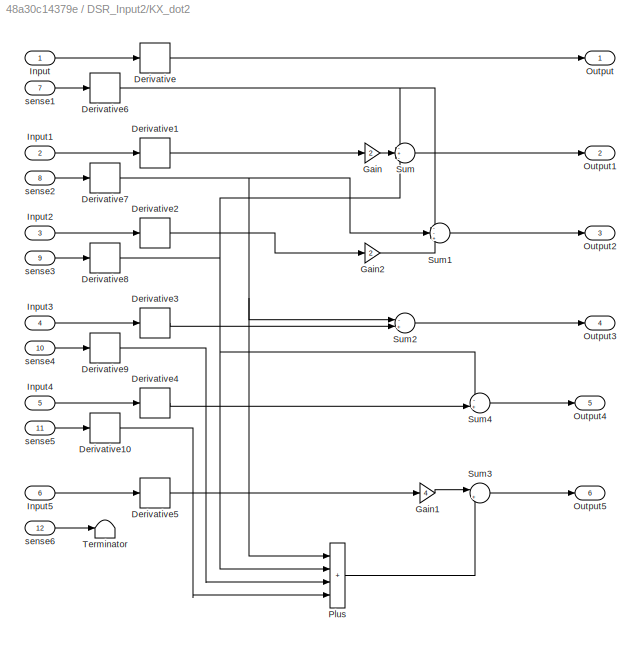
BLOCK [SubSystem] DSR_Input2/KX_dot2
  NameLocation = top
  Ports = [12, 6]
  RequestExecContextInheritance = off
BLOCK [Derivative] DSR_Input2/KX_dot2/Derivative
BLOCK [Derivative] DSR_Input2/KX_dot2/Derivative1
BLOCK [Derivative] DSR_Input2/KX_dot2/Derivative10
BLOCK [Derivative] DSR_Input2/KX_dot2/Derivative2
BLOCK [Derivative] DSR_Input2/KX_dot2/Derivative3
BLOCK [Derivative] DSR_Input2/KX_dot2/Derivative4
BLOCK [Derivative] DSR_Input2/KX_dot2/Derivative5
BLOCK [Derivative] DSR_Input2/KX_dot2/Derivative6
BLOCK [Derivative] DSR_Input2/KX_dot2/Derivative7
BLOCK [Derivative] DSR_Input2/KX_dot2/Derivative8
BLOCK [Derivative] DSR_Input2/KX_dot2/Derivative9
BLOCK [Gain] DSR_Input2/KX_dot2/Gain
  Gain = 2
BLOCK [Gain] DSR_Input2/KX_dot2/Gain1
  Gain = 4
BLOCK [Gain] DSR_Input2/KX_dot2/Gain2
  Gain = 2
BLOCK [Inport] DSR_Input2/KX_dot2/Input
BLOCK [Inport] DSR_Input2/KX_dot2/Input1
  Port = 2
BLOCK [Inport] DSR_Input2/KX_dot2/Input2
  Port = 3
BLOCK [Inport] DSR_Input2/KX_dot2/Input3
  Port = 4
BLOCK [Inport] DSR_Input2/KX_dot2/Input4
  Port = 5
BLOCK [Inport] DSR_Input2/KX_dot2/Input5
  Port = 6
BLOCK [Outport] DSR_Input2/KX_dot2/Output
BLOCK [Outport] DSR_Input2/KX_dot2/Output1
  Port = 2
BLOCK [Outport] DSR_Input2/KX_dot2/Output2
  Port = 3
BLOCK [Outport] DSR_Input2/KX_dot2/Output3
  Port = 4
BLOCK [Outport] DSR_Input2/KX_dot2/Output4
  Port = 5
BLOCK [Outport] DSR_Input2/KX_dot2/Output5
  Port = 6
BLOCK [Sum] DSR_Input2/KX_dot2/Plus
  IconShape = rectangular
  Inputs = ++++
  Ports = [4, 1]
BLOCK [Sum] DSR_Input2/KX_dot2/Sum
  Inputs = -+-
  Ports = [3, 1]
BLOCK [Sum] DSR_Input2/KX_dot2/Sum1
  Inputs = --+
  Ports = [3, 1]
BLOCK [Sum] DSR_Input2/KX_dot2/Sum2
  Inputs = -+|
  Ports = [2, 1]
BLOCK [Sum] DSR_Input2/KX_dot2/Sum3
  Inputs = |+-
  Ports = [2, 1]
BLOCK [Sum] DSR_Input2/KX_dot2/Sum4
  Inputs = -+|
  Ports = [2, 1]
BLOCK [Terminator] DSR_Input2/KX_dot2/Terminator
BLOCK [Inport] DSR_Input2/KX_dot2/sense1
  Port = 7
BLOCK [Inport] DSR_Input2/KX_dot2/sense2
  Port = 8
BLOCK [Inport] DSR_Input2/KX_dot2/sense3
  Port = 9
BLOCK [Inport] DSR_Input2/KX_dot2/sense4
  Port = 10
BLOCK [Inport] DSR_Input2/KX_dot2/sense5
  Port = 11
BLOCK [Inport] DSR_Input2/KX_dot2/sense6
  Port = 12
BLOCK [Outport] DSR_Input2/Out1
BLOCK [Outport] DSR_Input2/Out2
  Port = 2
BLOCK [Outport] DSR_Input2/Out3
  Port = 3
BLOCK [Outport] DSR_Input2/Out4
  Port = 4
BLOCK [Outport] DSR_Input2/Out5
  Port = 5
BLOCK [Outport] DSR_Input2/Out6
  Port = 6
BLOCK [Scope] DSR_Input2/Scope2
  Floating = off
  NumInputPorts = 6
  Ports = [6]
  ScopeSpecificationString = Simulink.scopes.TimeScopeBlockCfg('CurrentConfiguration', extmgr.ConfigurationSet(extmgr.Configuration('Core','General UI',true),extmgr.Configuration('Core','Source UI',true),extmgr.Configuration('Sources','WiredSimulink',true,'DataLoggingVariableName','ScopeData3'),extmgr.Configuration('Visuals','Time Domain',true,'SerializedDisplays',{struct('MinYLimReal','-20851490341029885768608628999269485635...<+2455ch>
BLOCK [SubSystem] DSR_Input2/Subsystem1
  Ports = [6, 6]
  RequestExecContextInheritance = off
BLOCK [Outport] DSR_Input2/Subsystem1/Out10
  Port = 4
BLOCK [Outport] DSR_Input2/Subsystem1/Out11
  Port = 5
BLOCK [Outport] DSR_Input2/Subsystem1/Out12
  Port = 6
BLOCK [Outport] DSR_Input2/Subsystem1/Out7
BLOCK [Outport] DSR_Input2/Subsystem1/Out8
  Port = 2
BLOCK [Outport] DSR_Input2/Subsystem1/Out9
  Port = 3
BLOCK [Reference] DSR_Input2/Subsystem1/Varying Lowpass Filter  REF=cstblocks/Linear Parameter Varying/Varying Lowpass Filter
  Ports = [2, 1]
  SourceBlock = cstblocks/Linear Parameter Varying/Varying Lowpass Filter
  SourceProductBaseCode = CT
  SourceType = Varying Lowpass Filter
BLOCK [Reference] DSR_Input2/Subsystem1/Varying Lowpass Filter1  REF=cstblocks/Linear Parameter Varying/Varying Lowpass Filter
  Ports = [2, 1]
  SourceBlock = cstblocks/Linear Parameter Varying/Varying Lowpass Filter
  SourceProductBaseCode = CT
  SourceType = Varying Lowpass Filter
BLOCK [Reference] DSR_Input2/Subsystem1/Varying Lowpass Filter2  REF=cstblocks/Linear Parameter Varying/Varying Lowpass Filter
  Ports = [2, 1]
  SourceBlock = cstblocks/Linear Parameter Varying/Varying Lowpass Filter
  SourceProductBaseCode = CT
  SourceType = Varying Lowpass Filter
BLOCK [Reference] DSR_Input2/Subsystem1/Varying Lowpass Filter3  REF=cstblocks/Linear Parameter Varying/Varying Lowpass Filter
  Ports = [2, 1]
  SourceBlock = cstblocks/Linear Parameter Varying/Varying Lowpass Filter
  SourceProductBaseCode = CT
  SourceType = Varying Lowpass Filter
BLOCK [Reference] DSR_Input2/Subsystem1/Varying Lowpass Filter4  REF=cstblocks/Linear Parameter Varying/Varying Lowpass Filter
  Ports = [2, 1]
  SourceBlock = cstblocks/Linear Parameter Varying/Varying Lowpass Filter
  SourceProductBaseCode = CT
  SourceType = Varying Lowpass Filter
BLOCK [Reference] DSR_Input2/Subsystem1/Varying Lowpass Filter5  REF=cstblocks/Linear Parameter Varying/Varying Lowpass Filter
  Ports = [2, 1]
  SourceBlock = cstblocks/Linear Parameter Varying/Varying Lowpass Filter
  SourceProductBaseCode = CT
  SourceType = Varying Lowpass Filter
BLOCK [Constant] DSR_Input2/Subsystem1/Zero
  OutDataTypeStr = Inherit: Inherit via back propagation
  Value = omegader
BLOCK [Inport] DSR_Input2/Subsystem1/u
BLOCK [Inport] DSR_Input2/Subsystem1/u1
  Port = 2
BLOCK [Inport] DSR_Input2/Subsystem1/u2
  Port = 3
BLOCK [Inport] DSR_Input2/Subsystem1/u3
  Port = 4
BLOCK [Inport] DSR_Input2/Subsystem1/u4
  Port = 5
BLOCK [Inport] DSR_Input2/Subsystem1/u5
  Port = 6
BLOCK [Sum] DSR_Input2/Sum10
  Inputs = +--
  Ports = [3, 1]
BLOCK [Sum] DSR_Input2/Sum11
  Inputs = +--
  Ports = [3, 1]
BLOCK [Sum] DSR_Input2/Sum12
  Inputs = +--
  Ports = [3, 1]
BLOCK [Sum] DSR_Input2/Sum13
  Inputs = ++|
  Ports = [2, 1]
BLOCK [Sum] DSR_Input2/Sum20
  Inputs = +--
  Ports = [3, 1]
BLOCK [Sum] DSR_Input2/Sum21
  Inputs = +--
  Ports = [3, 1]
BLOCK [Sum] DSR_Input2/Sum22
  Inputs = +--
  Ports = [3, 1]
BLOCK [Inport] DSR_Input2/fb1
BLOCK [Inport] DSR_Input2/fb2
  Port = 2
BLOCK [Inport] DSR_Input2/fb3
  Port = 3
BLOCK [Inport] DSR_Input2/fb4
  Port = 4
BLOCK [Inport] DSR_Input2/fb5
  Port = 5
BLOCK [Inport] DSR_Input2/fb6
  Port = 6
BLOCK [Inport] DSR_Input2/input
  Port = 7
BLOCK [Inport] DSR_Input2/s1
  Port = 8
BLOCK [Inport] DSR_Input2/s2
  Port = 9
BLOCK [Inport] DSR_Input2/s3
  Port = 10
BLOCK [Inport] DSR_Input2/s4
  Port = 11
BLOCK [Inport] DSR_Input2/s5
  Port = 12
BLOCK [Inport] DSR_Input2/s6
  Port = 13
BLOCK [SubSystem] DSR_Input3
  NameLocation = top
  Ports = [13, 6]
  RequestExecContextInheritance = off
BLOCK [SubSystem] DSR_Input3/(I-beta*K)V_dot_est
  Ports = [12, 6]
  RequestExecContextInheritance = off
BLOCK [SubSystem] DSR_Input3/(I-beta*K)V_dot_est/(I-beta*K)
  NameLocation = top
  Ports = [12, 6]
  RequestExecContextInheritance = off
BLOCK [Gain] DSR_Input3/(I-beta*K)V_dot_est/(I-beta*K)/1-2beta1
  Gain = 1-2*betac
BLOCK [Gain] DSR_Input3/(I-beta*K)V_dot_est/(I-beta*K)/1-2beta2
  Gain = 1-2*betac
BLOCK [Gain] DSR_Input3/(I-beta*K)V_dot_est/(I-beta*K)/1-4beta
  Gain = 1-4*betac
BLOCK [Gain] DSR_Input3/(I-beta*K)V_dot_est/(I-beta*K)/1-beta
  Gain = 1-betac
BLOCK [Gain] DSR_Input3/(I-beta*K)V_dot_est/(I-beta*K)/1-beta1
  Gain = 1-betac
BLOCK [Gain] DSR_Input3/(I-beta*K)V_dot_est/(I-beta*K)/1-beta2
  Gain = 1-betac
BLOCK [Inport] DSR_Input3/(I-beta*K)V_dot_est/(I-beta*K)/Input
BLOCK [Inport] DSR_Input3/(I-beta*K)V_dot_est/(I-beta*K)/Input1
  Port = 2
BLOCK [Inport] DSR_Input3/(I-beta*K)V_dot_est/(I-beta*K)/Input2
  Port = 3
BLOCK [Inport] DSR_Input3/(I-beta*K)V_dot_est/(I-beta*K)/Input3
  Port = 4
BLOCK [Inport] DSR_Input3/(I-beta*K)V_dot_est/(I-beta*K)/Input4
  Port = 5
BLOCK [Inport] DSR_Input3/(I-beta*K)V_dot_est/(I-beta*K)/Input5
  Port = 6
BLOCK [Outport] DSR_Input3/(I-beta*K)V_dot_est/(I-beta*K)/Output
BLOCK [Outport] DSR_Input3/(I-beta*K)V_dot_est/(I-beta*K)/Output1
  Port = 2
BLOCK [Outport] DSR_Input3/(I-beta*K)V_dot_est/(I-beta*K)/Output2
  Port = 3
BLOCK [Outport] DSR_Input3/(I-beta*K)V_dot_est/(I-beta*K)/Output3
  Port = 4
BLOCK [Outport] DSR_Input3/(I-beta*K)V_dot_est/(I-beta*K)/Output4
  Port = 5
BLOCK [Outport] DSR_Input3/(I-beta*K)V_dot_est/(I-beta*K)/Output5
  Port = 6
BLOCK [Sum] DSR_Input3/(I-beta*K)V_dot_est/(I-beta*K)/Sum
  Inputs = +|+
  Ports = [2, 1]
BLOCK [Sum] DSR_Input3/(I-beta*K)V_dot_est/(I-beta*K)/Sum of Elements
  IconShape = rectangular
  Inputs = ++++
  Ports = [4, 1]
BLOCK [Sum] DSR_Input3/(I-beta*K)V_dot_est/(I-beta*K)/Sum1
  Inputs = +|+
  Ports = [2, 1]
BLOCK [Sum] DSR_Input3/(I-beta*K)V_dot_est/(I-beta*K)/Sum2
  Inputs = |++
  Ports = [2, 1]
BLOCK [Sum] DSR_Input3/(I-beta*K)V_dot_est/(I-beta*K)/Sum3
  Inputs = |++
  Ports = [2, 1]
BLOCK [Sum] DSR_Input3/(I-beta*K)V_dot_est/(I-beta*K)/Sum4
  Inputs = |++
  Ports = [2, 1]
BLOCK [Sum] DSR_Input3/(I-beta*K)V_dot_est/(I-beta*K)/Sum5
  Inputs = |++
  Ports = [2, 1]
BLOCK [Sum] DSR_Input3/(I-beta*K)V_dot_est/(I-beta*K)/Sum6
  Inputs = |++
  Ports = [2, 1]
BLOCK [Terminator] DSR_Input3/(I-beta*K)V_dot_est/(I-beta*K)/Terminator
BLOCK [Gain] DSR_Input3/(I-beta*K)V_dot_est/(I-beta*K)/beta
  Gain = betac
BLOCK [Gain] DSR_Input3/(I-beta*K)V_dot_est/(I-beta*K)/beta1
  Gain = betac
BLOCK [Gain] DSR_Input3/(I-beta*K)V_dot_est/(I-beta*K)/beta2
  Gain = betac
BLOCK [Gain] DSR_Input3/(I-beta*K)V_dot_est/(I-beta*K)/beta3
  Gain = betac
BLOCK [Gain] DSR_Input3/(I-beta*K)V_dot_est/(I-beta*K)/beta4
  Gain = betac
BLOCK [Inport] DSR_Input3/(I-beta*K)V_dot_est/(I-beta*K)/sense1
  Port = 7
BLOCK [Inport] DSR_Input3/(I-beta*K)V_dot_est/(I-beta*K)/sense2
  Port = 8
BLOCK [Inport] DSR_Input3/(I-beta*K)V_dot_est/(I-beta*K)/sense3
  Port = 9
BLOCK [Inport] DSR_Input3/(I-beta*K)V_dot_est/(I-beta*K)/sense4
  Port = 10
BLOCK [Inport] DSR_Input3/(I-beta*K)V_dot_est/(I-beta*K)/sense5
  Port = 11
BLOCK [Inport] DSR_Input3/(I-beta*K)V_dot_est/(I-beta*K)/sense6
  Port = 12
BLOCK [SubSystem] DSR_Input3/(I-beta*K)V_dot_est/DerivativeEstimate
  Ports = [6, 6]
  RequestExecContextInheritance = off
BLOCK [SubSystem] DSR_Input3/(I-beta*K)V_dot_est/DerivativeEstimate/DSRdelayV1
  Ports = [1, 1]
  RequestExecContextInheritance = off
BLOCK [Gain] DSR_Input3/(I-beta*K)V_dot_est/DerivativeEstimate/DSRdelayV1/Gain
  Gain = 1/delay
BLOCK [Gain] DSR_Input3/(I-beta*K)V_dot_est/DerivativeEstimate/DSRdelayV1/Gain1
  Gain = 1/delay
BLOCK [Inport] DSR_Input3/(I-beta*K)V_dot_est/DerivativeEstimate/DSRdelayV1/Input
BLOCK [Sum] DSR_Input3/(I-beta*K)V_dot_est/DerivativeEstimate/DSRdelayV1/Sum
  Inputs = -+|
  Ports = [2, 1]
BLOCK [Sum] DSR_Input3/(I-beta*K)V_dot_est/DerivativeEstimate/DSRdelayV1/Sum13
  Inputs = -+|
  Ports = [2, 1]
BLOCK [TransferFcn] DSR_Input3/(I-beta*K)V_dot_est/DerivativeEstimate/DSRdelayV1/Transfer Fcn
  Denominator = [1 omega]
  Numerator = [omega]
BLOCK [TransferFcn] DSR_Input3/(I-beta*K)V_dot_est/DerivativeEstimate/DSRdelayV1/Transfer Fcn1
  Denominator = [1 omega]
  Numerator = [omega]
BLOCK [TransportDelay] DSR_Input3/(I-beta*K)V_dot_est/DerivativeEstimate/DSRdelayV1/Transport Delay
  DelayTime = delay
  Ports = [1, 1]
BLOCK [TransportDelay] DSR_Input3/(I-beta*K)V_dot_est/DerivativeEstimate/DSRdelayV1/Transport Delay13
  DelayTime = delay
  Ports = [1, 1]
BLOCK [Outport] DSR_Input3/(I-beta*K)V_dot_est/DerivativeEstimate/DSRdelayV1/est
BLOCK [SubSystem] DSR_Input3/(I-beta*K)V_dot_est/DerivativeEstimate/DSRdelayV2
  Ports = [1, 1]
  RequestExecContextInheritance = off
BLOCK [Gain] DSR_Input3/(I-beta*K)V_dot_est/DerivativeEstimate/DSRdelayV2/Gain
  Gain = 1/delay
BLOCK [Gain] DSR_Input3/(I-beta*K)V_dot_est/DerivativeEstimate/DSRdelayV2/Gain1
  Gain = 1/delay
BLOCK [Inport] DSR_Input3/(I-beta*K)V_dot_est/DerivativeEstimate/DSRdelayV2/Input
BLOCK [Sum] DSR_Input3/(I-beta*K)V_dot_est/DerivativeEstimate/DSRdelayV2/Sum
  Inputs = -+|
  Ports = [2, 1]
BLOCK [Sum] DSR_Input3/(I-beta*K)V_dot_est/DerivativeEstimate/DSRdelayV2/Sum13
  Inputs = -+|
  Ports = [2, 1]
BLOCK [TransferFcn] DSR_Input3/(I-beta*K)V_dot_est/DerivativeEstimate/DSRdelayV2/Transfer Fcn
  Denominator = [1 omega]
  Numerator = [omega]
BLOCK [TransferFcn] DSR_Input3/(I-beta*K)V_dot_est/DerivativeEstimate/DSRdelayV2/Transfer Fcn1
  Denominator = [1 omega]
  Numerator = [omega]
BLOCK [TransportDelay] DSR_Input3/(I-beta*K)V_dot_est/DerivativeEstimate/DSRdelayV2/Transport Delay
  DelayTime = delay
  Ports = [1, 1]
BLOCK [TransportDelay] DSR_Input3/(I-beta*K)V_dot_est/DerivativeEstimate/DSRdelayV2/Transport Delay13
  DelayTime = delay
  Ports = [1, 1]
BLOCK [Outport] DSR_Input3/(I-beta*K)V_dot_est/DerivativeEstimate/DSRdelayV2/est
BLOCK [SubSystem] DSR_Input3/(I-beta*K)V_dot_est/DerivativeEstimate/DSRdelayV3
  Ports = [1, 1]
  RequestExecContextInheritance = off
BLOCK [Gain] DSR_Input3/(I-beta*K)V_dot_est/DerivativeEstimate/DSRdelayV3/Gain
  Gain = 1/delay
BLOCK [Gain] DSR_Input3/(I-beta*K)V_dot_est/DerivativeEstimate/DSRdelayV3/Gain1
  Gain = 1/delay
BLOCK [Inport] DSR_Input3/(I-beta*K)V_dot_est/DerivativeEstimate/DSRdelayV3/Input
BLOCK [Sum] DSR_Input3/(I-beta*K)V_dot_est/DerivativeEstimate/DSRdelayV3/Sum
  Inputs = -+|
  Ports = [2, 1]
BLOCK [Sum] DSR_Input3/(I-beta*K)V_dot_est/DerivativeEstimate/DSRdelayV3/Sum13
  Inputs = -+|
  Ports = [2, 1]
BLOCK [TransferFcn] DSR_Input3/(I-beta*K)V_dot_est/DerivativeEstimate/DSRdelayV3/Transfer Fcn
  Denominator = [1 omega]
  Numerator = [omega]
BLOCK [TransferFcn] DSR_Input3/(I-beta*K)V_dot_est/DerivativeEstimate/DSRdelayV3/Transfer Fcn1
  Denominator = [1 omega]
  Numerator = [omega]
BLOCK [TransportDelay] DSR_Input3/(I-beta*K)V_dot_est/DerivativeEstimate/DSRdelayV3/Transport Delay
  DelayTime = delay
  Ports = [1, 1]
BLOCK [TransportDelay] DSR_Input3/(I-beta*K)V_dot_est/DerivativeEstimate/DSRdelayV3/Transport Delay13
  DelayTime = delay
  Ports = [1, 1]
BLOCK [Outport] DSR_Input3/(I-beta*K)V_dot_est/DerivativeEstimate/DSRdelayV3/est
BLOCK [SubSystem] DSR_Input3/(I-beta*K)V_dot_est/DerivativeEstimate/DSRdelayV4
  Ports = [1, 1]
  RequestExecContextInheritance = off
BLOCK [Gain] DSR_Input3/(I-beta*K)V_dot_est/DerivativeEstimate/DSRdelayV4/Gain
  Gain = 1/delay
BLOCK [Gain] DSR_Input3/(I-beta*K)V_dot_est/DerivativeEstimate/DSRdelayV4/Gain1
  Gain = 1/delay
BLOCK [Inport] DSR_Input3/(I-beta*K)V_dot_est/DerivativeEstimate/DSRdelayV4/Input
BLOCK [Sum] DSR_Input3/(I-beta*K)V_dot_est/DerivativeEstimate/DSRdelayV4/Sum
  Inputs = -+|
  Ports = [2, 1]
BLOCK [Sum] DSR_Input3/(I-beta*K)V_dot_est/DerivativeEstimate/DSRdelayV4/Sum13
  Inputs = -+|
  Ports = [2, 1]
BLOCK [TransferFcn] DSR_Input3/(I-beta*K)V_dot_est/DerivativeEstimate/DSRdelayV4/Transfer Fcn
  Denominator = [1 omega]
  Numerator = [omega]
BLOCK [TransferFcn] DSR_Input3/(I-beta*K)V_dot_est/DerivativeEstimate/DSRdelayV4/Transfer Fcn1
  Denominator = [1 omega]
  Numerator = [omega]
BLOCK [TransportDelay] DSR_Input3/(I-beta*K)V_dot_est/DerivativeEstimate/DSRdelayV4/Transport Delay
  DelayTime = delay
  Ports = [1, 1]
BLOCK [TransportDelay] DSR_Input3/(I-beta*K)V_dot_est/DerivativeEstimate/DSRdelayV4/Transport Delay13
  DelayTime = delay
  Ports = [1, 1]
BLOCK [Outport] DSR_Input3/(I-beta*K)V_dot_est/DerivativeEstimate/DSRdelayV4/est
BLOCK [SubSystem] DSR_Input3/(I-beta*K)V_dot_est/DerivativeEstimate/DSRdelayV5
  Ports = [1, 1]
  RequestExecContextInheritance = off
BLOCK [Gain] DSR_Input3/(I-beta*K)V_dot_est/DerivativeEstimate/DSRdelayV5/Gain
  Gain = 1/delay
BLOCK [Gain] DSR_Input3/(I-beta*K)V_dot_est/DerivativeEstimate/DSRdelayV5/Gain1
  Gain = 1/delay
BLOCK [Inport] DSR_Input3/(I-beta*K)V_dot_est/DerivativeEstimate/DSRdelayV5/Input
BLOCK [Sum] DSR_Input3/(I-beta*K)V_dot_est/DerivativeEstimate/DSRdelayV5/Sum
  Inputs = -+|
  Ports = [2, 1]
BLOCK [Sum] DSR_Input3/(I-beta*K)V_dot_est/DerivativeEstimate/DSRdelayV5/Sum13
  Inputs = -+|
  Ports = [2, 1]
BLOCK [TransferFcn] DSR_Input3/(I-beta*K)V_dot_est/DerivativeEstimate/DSRdelayV5/Transfer Fcn
  Denominator = [1 omega]
  Numerator = [omega]
BLOCK [TransferFcn] DSR_Input3/(I-beta*K)V_dot_est/DerivativeEstimate/DSRdelayV5/Transfer Fcn1
  Denominator = [1 omega]
  Numerator = [omega]
BLOCK [TransportDelay] DSR_Input3/(I-beta*K)V_dot_est/DerivativeEstimate/DSRdelayV5/Transport Delay
  DelayTime = delay
  Ports = [1, 1]
BLOCK [TransportDelay] DSR_Input3/(I-beta*K)V_dot_est/DerivativeEstimate/DSRdelayV5/Transport Delay13
  DelayTime = delay
  Ports = [1, 1]
BLOCK [Outport] DSR_Input3/(I-beta*K)V_dot_est/DerivativeEstimate/DSRdelayV5/est
BLOCK [SubSystem] DSR_Input3/(I-beta*K)V_dot_est/DerivativeEstimate/DSRdelayV6
  Ports = [1, 1]
  RequestExecContextInheritance = off
BLOCK [Gain] DSR_Input3/(I-beta*K)V_dot_est/DerivativeEstimate/DSRdelayV6/Gain
  Gain = 1/delay
BLOCK [Gain] DSR_Input3/(I-beta*K)V_dot_est/DerivativeEstimate/DSRdelayV6/Gain1
  Gain = 1/delay
BLOCK [Inport] DSR_Input3/(I-beta*K)V_dot_est/DerivativeEstimate/DSRdelayV6/Input
BLOCK [Sum] DSR_Input3/(I-beta*K)V_dot_est/DerivativeEstimate/DSRdelayV6/Sum
  Inputs = -+|
  Ports = [2, 1]
BLOCK [Sum] DSR_Input3/(I-beta*K)V_dot_est/DerivativeEstimate/DSRdelayV6/Sum13
  Inputs = -+|
  Ports = [2, 1]
BLOCK [TransferFcn] DSR_Input3/(I-beta*K)V_dot_est/DerivativeEstimate/DSRdelayV6/Transfer Fcn
  Denominator = [1 omega]
  Numerator = [omega]
BLOCK [TransferFcn] DSR_Input3/(I-beta*K)V_dot_est/DerivativeEstimate/DSRdelayV6/Transfer Fcn1
  Denominator = [1 omega]
  Numerator = [omega]
BLOCK [TransportDelay] DSR_Input3/(I-beta*K)V_dot_est/DerivativeEstimate/DSRdelayV6/Transport Delay
  DelayTime = delay
  Ports = [1, 1]
BLOCK [TransportDelay] DSR_Input3/(I-beta*K)V_dot_est/DerivativeEstimate/DSRdelayV6/Transport Delay13
  DelayTime = delay
  Ports = [1, 1]
BLOCK [Outport] DSR_Input3/(I-beta*K)V_dot_est/DerivativeEstimate/DSRdelayV6/est
BLOCK [Outport] DSR_Input3/(I-beta*K)V_dot_est/DerivativeEstimate/est
BLOCK [Outport] DSR_Input3/(I-beta*K)V_dot_est/DerivativeEstimate/est1
  Port = 2
BLOCK [Outport] DSR_Input3/(I-beta*K)V_dot_est/DerivativeEstimate/est2
  Port = 3
BLOCK [Outport] DSR_Input3/(I-beta*K)V_dot_est/DerivativeEstimate/est3
  Port = 4
BLOCK [Outport] DSR_Input3/(I-beta*K)V_dot_est/DerivativeEstimate/est4
  Port = 5
BLOCK [Outport] DSR_Input3/(I-beta*K)V_dot_est/DerivativeEstimate/est5
  Port = 6
BLOCK [Inport] DSR_Input3/(I-beta*K)V_dot_est/DerivativeEstimate/pos
BLOCK [Inport] DSR_Input3/(I-beta*K)V_dot_est/DerivativeEstimate/pos1
  Port = 2
BLOCK [Inport] DSR_Input3/(I-beta*K)V_dot_est/DerivativeEstimate/pos2
  Port = 3
BLOCK [Inport] DSR_Input3/(I-beta*K)V_dot_est/DerivativeEstimate/pos3
  Port = 4
BLOCK [Inport] DSR_Input3/(I-beta*K)V_dot_est/DerivativeEstimate/pos4
  Port = 5
BLOCK [Inport] DSR_Input3/(I-beta*K)V_dot_est/DerivativeEstimate/pos5
  Port = 6
BLOCK [SubSystem] DSR_Input3/(I-beta*K)V_dot_est/DerivativeEstimate1
  Ports = [6, 6]
  RequestExecContextInheritance = off
BLOCK [SubSystem] DSR_Input3/(I-beta*K)V_dot_est/DerivativeEstimate1/DSRdelayV1
  Ports = [1, 1]
  RequestExecContextInheritance = off
BLOCK [Gain] DSR_Input3/(I-beta*K)V_dot_est/DerivativeEstimate1/DSRdelayV1/Gain
  Gain = 1/delay
BLOCK [Gain] DSR_Input3/(I-beta*K)V_dot_est/DerivativeEstimate1/DSRdelayV1/Gain1
  Gain = 1/delay
BLOCK [Inport] DSR_Input3/(I-beta*K)V_dot_est/DerivativeEstimate1/DSRdelayV1/Input
BLOCK [Sum] DSR_Input3/(I-beta*K)V_dot_est/DerivativeEstimate1/DSRdelayV1/Sum
  Inputs = -+|
  Ports = [2, 1]
BLOCK [Sum] DSR_Input3/(I-beta*K)V_dot_est/DerivativeEstimate1/DSRdelayV1/Sum13
  Inputs = -+|
  Ports = [2, 1]
BLOCK [TransferFcn] DSR_Input3/(I-beta*K)V_dot_est/DerivativeEstimate1/DSRdelayV1/Transfer Fcn
  Denominator = [1 omega]
  Numerator = [omega]
BLOCK [TransferFcn] DSR_Input3/(I-beta*K)V_dot_est/DerivativeEstimate1/DSRdelayV1/Transfer Fcn1
  Denominator = [1 omega]
  Numerator = [omega]
BLOCK [TransportDelay] DSR_Input3/(I-beta*K)V_dot_est/DerivativeEstimate1/DSRdelayV1/Transport Delay
  DelayTime = delay
  Ports = [1, 1]
BLOCK [TransportDelay] DSR_Input3/(I-beta*K)V_dot_est/DerivativeEstimate1/DSRdelayV1/Transport Delay13
  DelayTime = delay
  Ports = [1, 1]
BLOCK [Outport] DSR_Input3/(I-beta*K)V_dot_est/DerivativeEstimate1/DSRdelayV1/est
BLOCK [SubSystem] DSR_Input3/(I-beta*K)V_dot_est/DerivativeEstimate1/DSRdelayV2
  Ports = [1, 1]
  RequestExecContextInheritance = off
BLOCK [Gain] DSR_Input3/(I-beta*K)V_dot_est/DerivativeEstimate1/DSRdelayV2/Gain
  Gain = 1/delay
BLOCK [Gain] DSR_Input3/(I-beta*K)V_dot_est/DerivativeEstimate1/DSRdelayV2/Gain1
  Gain = 1/delay
BLOCK [Inport] DSR_Input3/(I-beta*K)V_dot_est/DerivativeEstimate1/DSRdelayV2/Input
BLOCK [Scope] DSR_Input3/(I-beta*K)V_dot_est/DerivativeEstimate1/DSRdelayV2/Scope
  Floating = off
  NumInputPorts = 5
  Ports = [5]
  ScopeSpecificationString = Simulink.scopes.TimeScopeBlockCfg('CurrentConfiguration', extmgr.ConfigurationSet(extmgr.Configuration('Core','General UI',true),extmgr.Configuration('Core','Source UI',true),extmgr.Configuration('Sources','WiredSimulink',true,'DataLoggingVariableName','ScopeData6'),extmgr.Configuration('Visuals','Time Domain',true,'SerializedDisplays',{struct('MinYLimReal','-0.30456','MaxYLimReal','1.36407','YLab...<+1440ch>
BLOCK [Sum] DSR_Input3/(I-beta*K)V_dot_est/DerivativeEstimate1/DSRdelayV2/Sum
  Inputs = -+|
  Ports = [2, 1]
BLOCK [Sum] DSR_Input3/(I-beta*K)V_dot_est/DerivativeEstimate1/DSRdelayV2/Sum13
  Inputs = -+|
  Ports = [2, 1]
BLOCK [TransferFcn] DSR_Input3/(I-beta*K)V_dot_est/DerivativeEstimate1/DSRdelayV2/Transfer Fcn
  Denominator = [1 omega]
  Numerator = [omega]
BLOCK [TransferFcn] DSR_Input3/(I-beta*K)V_dot_est/DerivativeEstimate1/DSRdelayV2/Transfer Fcn1
  Denominator = [1 omega]
  Numerator = [omega]
BLOCK [TransportDelay] DSR_Input3/(I-beta*K)V_dot_est/DerivativeEstimate1/DSRdelayV2/Transport Delay
  DelayTime = delay
  Ports = [1, 1]
BLOCK [TransportDelay] DSR_Input3/(I-beta*K)V_dot_est/DerivativeEstimate1/DSRdelayV2/Transport Delay13
  DelayTime = delay
  Ports = [1, 1]
BLOCK [Outport] DSR_Input3/(I-beta*K)V_dot_est/DerivativeEstimate1/DSRdelayV2/est
BLOCK [SubSystem] DSR_Input3/(I-beta*K)V_dot_est/DerivativeEstimate1/DSRdelayV3
  Ports = [1, 1]
  RequestExecContextInheritance = off
BLOCK [Gain] DSR_Input3/(I-beta*K)V_dot_est/DerivativeEstimate1/DSRdelayV3/Gain
  Gain = 1/delay
BLOCK [Gain] DSR_Input3/(I-beta*K)V_dot_est/DerivativeEstimate1/DSRdelayV3/Gain1
  Gain = 1/delay
BLOCK [Inport] DSR_Input3/(I-beta*K)V_dot_est/DerivativeEstimate1/DSRdelayV3/Input
BLOCK [Sum] DSR_Input3/(I-beta*K)V_dot_est/DerivativeEstimate1/DSRdelayV3/Sum
  Inputs = -+|
  Ports = [2, 1]
BLOCK [Sum] DSR_Input3/(I-beta*K)V_dot_est/DerivativeEstimate1/DSRdelayV3/Sum13
  Inputs = -+|
  Ports = [2, 1]
BLOCK [TransferFcn] DSR_Input3/(I-beta*K)V_dot_est/DerivativeEstimate1/DSRdelayV3/Transfer Fcn
  Denominator = [1 omega]
  Numerator = [omega]
BLOCK [TransferFcn] DSR_Input3/(I-beta*K)V_dot_est/DerivativeEstimate1/DSRdelayV3/Transfer Fcn1
  Denominator = [1 omega]
  Numerator = [omega]
BLOCK [TransportDelay] DSR_Input3/(I-beta*K)V_dot_est/DerivativeEstimate1/DSRdelayV3/Transport Delay
  DelayTime = delay
  Ports = [1, 1]
BLOCK [TransportDelay] DSR_Input3/(I-beta*K)V_dot_est/DerivativeEstimate1/DSRdelayV3/Transport Delay13
  DelayTime = delay
  Ports = [1, 1]
BLOCK [Outport] DSR_Input3/(I-beta*K)V_dot_est/DerivativeEstimate1/DSRdelayV3/est
BLOCK [SubSystem] DSR_Input3/(I-beta*K)V_dot_est/DerivativeEstimate1/DSRdelayV4
  Ports = [1, 1]
  RequestExecContextInheritance = off
BLOCK [Gain] DSR_Input3/(I-beta*K)V_dot_est/DerivativeEstimate1/DSRdelayV4/Gain
  Gain = 1/delay
BLOCK [Gain] DSR_Input3/(I-beta*K)V_dot_est/DerivativeEstimate1/DSRdelayV4/Gain1
  Gain = 1/delay
BLOCK [Inport] DSR_Input3/(I-beta*K)V_dot_est/DerivativeEstimate1/DSRdelayV4/Input
BLOCK [Sum] DSR_Input3/(I-beta*K)V_dot_est/DerivativeEstimate1/DSRdelayV4/Sum
  Inputs = -+|
  Ports = [2, 1]
BLOCK [Sum] DSR_Input3/(I-beta*K)V_dot_est/DerivativeEstimate1/DSRdelayV4/Sum13
  Inputs = -+|
  Ports = [2, 1]
BLOCK [TransferFcn] DSR_Input3/(I-beta*K)V_dot_est/DerivativeEstimate1/DSRdelayV4/Transfer Fcn
  Denominator = [1 omega]
  Numerator = [omega]
BLOCK [TransferFcn] DSR_Input3/(I-beta*K)V_dot_est/DerivativeEstimate1/DSRdelayV4/Transfer Fcn1
  Denominator = [1 omega]
  Numerator = [omega]
BLOCK [TransportDelay] DSR_Input3/(I-beta*K)V_dot_est/DerivativeEstimate1/DSRdelayV4/Transport Delay
  DelayTime = delay
  Ports = [1, 1]
BLOCK [TransportDelay] DSR_Input3/(I-beta*K)V_dot_est/DerivativeEstimate1/DSRdelayV4/Transport Delay13
  DelayTime = delay
  Ports = [1, 1]
BLOCK [Outport] DSR_Input3/(I-beta*K)V_dot_est/DerivativeEstimate1/DSRdelayV4/est
BLOCK [SubSystem] DSR_Input3/(I-beta*K)V_dot_est/DerivativeEstimate1/DSRdelayV5
  Ports = [1, 1]
  RequestExecContextInheritance = off
BLOCK [Gain] DSR_Input3/(I-beta*K)V_dot_est/DerivativeEstimate1/DSRdelayV5/Gain
  Gain = 1/delay
BLOCK [Gain] DSR_Input3/(I-beta*K)V_dot_est/DerivativeEstimate1/DSRdelayV5/Gain1
  Gain = 1/delay
BLOCK [Inport] DSR_Input3/(I-beta*K)V_dot_est/DerivativeEstimate1/DSRdelayV5/Input
BLOCK [Sum] DSR_Input3/(I-beta*K)V_dot_est/DerivativeEstimate1/DSRdelayV5/Sum
  Inputs = -+|
  Ports = [2, 1]
BLOCK [Sum] DSR_Input3/(I-beta*K)V_dot_est/DerivativeEstimate1/DSRdelayV5/Sum13
  Inputs = -+|
  Ports = [2, 1]
BLOCK [TransferFcn] DSR_Input3/(I-beta*K)V_dot_est/DerivativeEstimate1/DSRdelayV5/Transfer Fcn
  Denominator = [1 omega]
  Numerator = [omega]
BLOCK [TransferFcn] DSR_Input3/(I-beta*K)V_dot_est/DerivativeEstimate1/DSRdelayV5/Transfer Fcn1
  Denominator = [1 omega]
  Numerator = [omega]
BLOCK [TransportDelay] DSR_Input3/(I-beta*K)V_dot_est/DerivativeEstimate1/DSRdelayV5/Transport Delay
  DelayTime = delay
  Ports = [1, 1]
BLOCK [TransportDelay] DSR_Input3/(I-beta*K)V_dot_est/DerivativeEstimate1/DSRdelayV5/Transport Delay13
  DelayTime = delay
  Ports = [1, 1]
BLOCK [Outport] DSR_Input3/(I-beta*K)V_dot_est/DerivativeEstimate1/DSRdelayV5/est
BLOCK [SubSystem] DSR_Input3/(I-beta*K)V_dot_est/DerivativeEstimate1/DSRdelayV6
  Ports = [1, 1]
  RequestExecContextInheritance = off
BLOCK [Gain] DSR_Input3/(I-beta*K)V_dot_est/DerivativeEstimate1/DSRdelayV6/Gain
  Gain = 1/delay
BLOCK [Gain] DSR_Input3/(I-beta*K)V_dot_est/DerivativeEstimate1/DSRdelayV6/Gain1
  Gain = 1/delay
BLOCK [Inport] DSR_Input3/(I-beta*K)V_dot_est/DerivativeEstimate1/DSRdelayV6/Input
BLOCK [Sum] DSR_Input3/(I-beta*K)V_dot_est/DerivativeEstimate1/DSRdelayV6/Sum
  Inputs = -+|
  Ports = [2, 1]
BLOCK [Sum] DSR_Input3/(I-beta*K)V_dot_est/DerivativeEstimate1/DSRdelayV6/Sum13
  Inputs = -+|
  Ports = [2, 1]
BLOCK [TransferFcn] DSR_Input3/(I-beta*K)V_dot_est/DerivativeEstimate1/DSRdelayV6/Transfer Fcn
  Denominator = [1 omega]
  Numerator = [omega]
BLOCK [TransferFcn] DSR_Input3/(I-beta*K)V_dot_est/DerivativeEstimate1/DSRdelayV6/Transfer Fcn1
  Denominator = [1 omega]
  Numerator = [omega]
BLOCK [TransportDelay] DSR_Input3/(I-beta*K)V_dot_est/DerivativeEstimate1/DSRdelayV6/Transport Delay
  DelayTime = delay
  Ports = [1, 1]
BLOCK [TransportDelay] DSR_Input3/(I-beta*K)V_dot_est/DerivativeEstimate1/DSRdelayV6/Transport Delay13
  DelayTime = delay
  Ports = [1, 1]
BLOCK [Outport] DSR_Input3/(I-beta*K)V_dot_est/DerivativeEstimate1/DSRdelayV6/est
BLOCK [Outport] DSR_Input3/(I-beta*K)V_dot_est/DerivativeEstimate1/est
BLOCK [Outport] DSR_Input3/(I-beta*K)V_dot_est/DerivativeEstimate1/est1
  Port = 2
BLOCK [Outport] DSR_Input3/(I-beta*K)V_dot_est/DerivativeEstimate1/est2
  Port = 3
BLOCK [Outport] DSR_Input3/(I-beta*K)V_dot_est/DerivativeEstimate1/est3
  Port = 4
BLOCK [Outport] DSR_Input3/(I-beta*K)V_dot_est/DerivativeEstimate1/est4
  Port = 5
BLOCK [Outport] DSR_Input3/(I-beta*K)V_dot_est/DerivativeEstimate1/est5
  Port = 6
BLOCK [Inport] DSR_Input3/(I-beta*K)V_dot_est/DerivativeEstimate1/pos
BLOCK [Inport] DSR_Input3/(I-beta*K)V_dot_est/DerivativeEstimate1/pos1
  Port = 2
BLOCK [Inport] DSR_Input3/(I-beta*K)V_dot_est/DerivativeEstimate1/pos2
  Port = 3
BLOCK [Inport] DSR_Input3/(I-beta*K)V_dot_est/DerivativeEstimate1/pos3
  Port = 4
BLOCK [Inport] DSR_Input3/(I-beta*K)V_dot_est/DerivativeEstimate1/pos4
  Port = 5
BLOCK [Inport] DSR_Input3/(I-beta*K)V_dot_est/DerivativeEstimate1/pos5
  Port = 6
BLOCK [Outport] DSR_Input3/(I-beta*K)V_dot_est/Output
BLOCK [Outport] DSR_Input3/(I-beta*K)V_dot_est/Output1
  Port = 2
BLOCK [Outport] DSR_Input3/(I-beta*K)V_dot_est/Output2
  Port = 3
BLOCK [Outport] DSR_Input3/(I-beta*K)V_dot_est/Output3
  Port = 4
BLOCK [Outport] DSR_Input3/(I-beta*K)V_dot_est/Output4
  Port = 5
BLOCK [Outport] DSR_Input3/(I-beta*K)V_dot_est/Output5
  Port = 6
BLOCK [Inport] DSR_Input3/(I-beta*K)V_dot_est/pos1
BLOCK [Inport] DSR_Input3/(I-beta*K)V_dot_est/pos1sense
  Port = 7
BLOCK [Inport] DSR_Input3/(I-beta*K)V_dot_est/pos2
  Port = 2
BLOCK [Inport] DSR_Input3/(I-beta*K)V_dot_est/pos2sense
  Port = 8
BLOCK [Inport] DSR_Input3/(I-beta*K)V_dot_est/pos3
  Port = 3
BLOCK [Inport] DSR_Input3/(I-beta*K)V_dot_est/pos3sense
  Port = 9
BLOCK [Inport] DSR_Input3/(I-beta*K)V_dot_est/pos4
  Port = 4
BLOCK [Inport] DSR_Input3/(I-beta*K)V_dot_est/pos4sense
  Port = 10
BLOCK [Inport] DSR_Input3/(I-beta*K)V_dot_est/pos5
  Port = 5
BLOCK [Inport] DSR_Input3/(I-beta*K)V_dot_est/pos5sense
  Port = 11
BLOCK [Inport] DSR_Input3/(I-beta*K)V_dot_est/pos6
  Port = 6
BLOCK [Inport] DSR_Input3/(I-beta*K)V_dot_est/pos6sense
  Port = 12
BLOCK [SubSystem] DSR_Input3/Input Processor1
  Ports = [1, 1]
  RequestExecContextInheritance = off
BLOCK [Derivative] DSR_Input3/Input Processor1/Derivative
BLOCK [Gain] DSR_Input3/Input Processor1/Gain
  Gain = alpha
BLOCK [Gain] DSR_Input3/Input Processor1/Gain1
  Gain = 2
BLOCK [Inport] DSR_Input3/Input Processor1/Input
BLOCK [Outport] DSR_Input3/Input Processor1/Out1
BLOCK [Sum] DSR_Input3/Input Processor1/Sum
  Inputs = |++
  Ports = [2, 1]
BLOCK [Reference] DSR_Input3/Input Processor1/Varying Lowpass Filter  REF=cstblocks/Linear Parameter Varying/Varying Lowpass Filter
  Ports = [2, 1]
  SourceBlock = cstblocks/Linear Parameter Varying/Varying Lowpass Filter
  SourceProductBaseCode = CT
  SourceType = Varying Lowpass Filter
BLOCK [Constant] DSR_Input3/Input Processor1/Zero
  OutDataTypeStr = Inherit: Inherit via back propagation
  Value = omegader
BLOCK [Gain] DSR_Input3/Input Processor1/inputGain
  Gain = alpha*betac
BLOCK [SubSystem] DSR_Input3/KDgain1
  Ports = [6, 6]
  RequestExecContextInheritance = off
BLOCK [Gain] DSR_Input3/KDgain1/KDgain1
  Gain = 2*alpha*betac*c1
BLOCK [Gain] DSR_Input3/KDgain1/KDgain10
  Gain = 2*alpha*betac*c1
BLOCK [Gain] DSR_Input3/KDgain1/KDgain2
  Gain = 2*alpha*betac*c1
BLOCK [Gain] DSR_Input3/KDgain1/KDgain3
  Gain = 2*alpha*betac*c1
BLOCK [Gain] DSR_Input3/KDgain1/KDgain8
  Gain = 2*alpha*betac*c1
BLOCK [Gain] DSR_Input3/KDgain1/KDgain9
  Gain = 2*alpha*betac*c1
BLOCK [Inport] DSR_Input3/KDgain1/Output
BLOCK [Inport] DSR_Input3/KDgain1/Output1
  Port = 2
BLOCK [Inport] DSR_Input3/KDgain1/Output2
  Port = 3
BLOCK [Inport] DSR_Input3/KDgain1/Output3
  Port = 4
BLOCK [Inport] DSR_Input3/KDgain1/Output4
  Port = 5
BLOCK [Inport] DSR_Input3/KDgain1/Output5
  Port = 6
BLOCK [Outport] DSR_Input3/KDgain1/u
BLOCK [Outport] DSR_Input3/KDgain1/u1
  Port = 2
BLOCK [Outport] DSR_Input3/KDgain1/u2
  Port = 3
BLOCK [Outport] DSR_Input3/KDgain1/u3
  Port = 4
BLOCK [Outport] DSR_Input3/KDgain1/u4
  Port = 5
BLOCK [Outport] DSR_Input3/KDgain1/u5
  Port = 6
BLOCK [SubSystem] DSR_Input3/KPgain1
  Ports = [6, 6]
  RequestExecContextInheritance = off
BLOCK [Gain] DSR_Input3/KPgain1/KPgain1
  Gain = betac*c1*alpha^2
BLOCK [Gain] DSR_Input3/KPgain1/KPgain2
  Gain = betac*c1*alpha^2
BLOCK [Gain] DSR_Input3/KPgain1/KPgain3
  Gain = betac*c1*alpha^2
BLOCK [Gain] DSR_Input3/KPgain1/KPgain4
  Gain = betac*c1*alpha^2
BLOCK [Gain] DSR_Input3/KPgain1/KPgain5
  Gain = betac*c1*alpha^2
BLOCK [Gain] DSR_Input3/KPgain1/KPgain6
  Gain = betac*c1*alpha^2
BLOCK [Outport] DSR_Input3/KPgain1/Out1
BLOCK [Outport] DSR_Input3/KPgain1/Out2
  Port = 2
BLOCK [Outport] DSR_Input3/KPgain1/Out3
  Port = 3
BLOCK [Outport] DSR_Input3/KPgain1/Out4
  Port = 4
BLOCK [Outport] DSR_Input3/KPgain1/Out5
  Port = 5
BLOCK [Outport] DSR_Input3/KPgain1/Out6
  Port = 6
BLOCK [Inport] DSR_Input3/KPgain1/Output
BLOCK [Inport] DSR_Input3/KPgain1/Output1
  Port = 2
BLOCK [Inport] DSR_Input3/KPgain1/Output2
  Port = 3
BLOCK [Inport] DSR_Input3/KPgain1/Output3
  Port = 4
BLOCK [Inport] DSR_Input3/KPgain1/Output4
  Port = 5
BLOCK [Inport] DSR_Input3/KPgain1/Output5
  Port = 6
BLOCK [SubSystem] DSR_Input3/KX1
  NameLocation = top
  Ports = [12, 6]
  RequestExecContextInheritance = off
BLOCK [Gain] DSR_Input3/KX1/Gain
  Gain = 2
BLOCK [Gain] DSR_Input3/KX1/Gain1
  Gain = 4
BLOCK [Gain] DSR_Input3/KX1/Gain2
  Gain = 2
BLOCK [Inport] DSR_Input3/KX1/Input
BLOCK [Inport] DSR_Input3/KX1/Input1
  Port = 2
BLOCK [Inport] DSR_Input3/KX1/Input2
  Port = 3
BLOCK [Inport] DSR_Input3/KX1/Input3
  Port = 4
BLOCK [Inport] DSR_Input3/KX1/Input4
  Port = 5
BLOCK [Inport] DSR_Input3/KX1/Input5
  Port = 6
BLOCK [Outport] DSR_Input3/KX1/Output
BLOCK [Outport] DSR_Input3/KX1/Output1
  Port = 2
BLOCK [Outport] DSR_Input3/KX1/Output2
  Port = 3
BLOCK [Outport] DSR_Input3/KX1/Output3
  Port = 4
BLOCK [Outport] DSR_Input3/KX1/Output4
  Port = 5
BLOCK [Outport] DSR_Input3/KX1/Output5
  Port = 6
BLOCK [Sum] DSR_Input3/KX1/Plus
  IconShape = rectangular
  Inputs = ++++
  Ports = [4, 1]
BLOCK [Sum] DSR_Input3/KX1/Sum
  Inputs = -+-
  Ports = [3, 1]
BLOCK [Sum] DSR_Input3/KX1/Sum1
  Inputs = --+
  Ports = [3, 1]
BLOCK [Sum] DSR_Input3/KX1/Sum2
  Inputs = -+|
  Ports = [2, 1]
BLOCK [Sum] DSR_Input3/KX1/Sum3
  Inputs = |+-
  Ports = [2, 1]
BLOCK [Sum] DSR_Input3/KX1/Sum4
  Inputs = -+|
  Ports = [2, 1]
BLOCK [Terminator] DSR_Input3/KX1/Terminator
BLOCK [Inport] DSR_Input3/KX1/sense1
  Port = 7
BLOCK [Inport] DSR_Input3/KX1/sense2
  Port = 8
BLOCK [Inport] DSR_Input3/KX1/sense3
  Port = 9
BLOCK [Inport] DSR_Input3/KX1/sense4
  Port = 10
BLOCK [Inport] DSR_Input3/KX1/sense5
  Port = 11
BLOCK [Inport] DSR_Input3/KX1/sense6
  Port = 12
BLOCK [SubSystem] DSR_Input3/KX_dot2
  NameLocation = top
  Ports = [12, 6]
  RequestExecContextInheritance = off
BLOCK [Derivative] DSR_Input3/KX_dot2/Derivative
BLOCK [Derivative] DSR_Input3/KX_dot2/Derivative1
BLOCK [Derivative] DSR_Input3/KX_dot2/Derivative10
BLOCK [Derivative] DSR_Input3/KX_dot2/Derivative2
BLOCK [Derivative] DSR_Input3/KX_dot2/Derivative3
BLOCK [Derivative] DSR_Input3/KX_dot2/Derivative4
BLOCK [Derivative] DSR_Input3/KX_dot2/Derivative5
BLOCK [Derivative] DSR_Input3/KX_dot2/Derivative6
BLOCK [Derivative] DSR_Input3/KX_dot2/Derivative7
BLOCK [Derivative] DSR_Input3/KX_dot2/Derivative8
BLOCK [Derivative] DSR_Input3/KX_dot2/Derivative9
BLOCK [Gain] DSR_Input3/KX_dot2/Gain
  Gain = 2
BLOCK [Gain] DSR_Input3/KX_dot2/Gain1
  Gain = 4
BLOCK [Gain] DSR_Input3/KX_dot2/Gain2
  Gain = 2
BLOCK [Inport] DSR_Input3/KX_dot2/Input
BLOCK [Inport] DSR_Input3/KX_dot2/Input1
  Port = 2
BLOCK [Inport] DSR_Input3/KX_dot2/Input2
  Port = 3
BLOCK [Inport] DSR_Input3/KX_dot2/Input3
  Port = 4
BLOCK [Inport] DSR_Input3/KX_dot2/Input4
  Port = 5
BLOCK [Inport] DSR_Input3/KX_dot2/Input5
  Port = 6
BLOCK [Outport] DSR_Input3/KX_dot2/Output
BLOCK [Outport] DSR_Input3/KX_dot2/Output1
  Port = 2
BLOCK [Outport] DSR_Input3/KX_dot2/Output2
  Port = 3
BLOCK [Outport] DSR_Input3/KX_dot2/Output3
  Port = 4
BLOCK [Outport] DSR_Input3/KX_dot2/Output4
  Port = 5
BLOCK [Outport] DSR_Input3/KX_dot2/Output5
  Port = 6
BLOCK [Sum] DSR_Input3/KX_dot2/Plus
  IconShape = rectangular
  Inputs = ++++
  Ports = [4, 1]
BLOCK [Sum] DSR_Input3/KX_dot2/Sum
  Inputs = -+-
  Ports = [3, 1]
BLOCK [Sum] DSR_Input3/KX_dot2/Sum1
  Inputs = --+
  Ports = [3, 1]
BLOCK [Sum] DSR_Input3/KX_dot2/Sum2
  Inputs = -+|
  Ports = [2, 1]
BLOCK [Sum] DSR_Input3/KX_dot2/Sum3
  Inputs = |+-
  Ports = [2, 1]
BLOCK [Sum] DSR_Input3/KX_dot2/Sum4
  Inputs = -+|
  Ports = [2, 1]
BLOCK [Terminator] DSR_Input3/KX_dot2/Terminator
BLOCK [Inport] DSR_Input3/KX_dot2/sense1
  Port = 7
BLOCK [Inport] DSR_Input3/KX_dot2/sense2
  Port = 8
BLOCK [Inport] DSR_Input3/KX_dot2/sense3
  Port = 9
BLOCK [Inport] DSR_Input3/KX_dot2/sense4
  Port = 10
BLOCK [Inport] DSR_Input3/KX_dot2/sense5
  Port = 11
BLOCK [Inport] DSR_Input3/KX_dot2/sense6
  Port = 12
BLOCK [Outport] DSR_Input3/Out1
BLOCK [Outport] DSR_Input3/Out2
  Port = 2
BLOCK [Outport] DSR_Input3/Out3
  Port = 3
BLOCK [Outport] DSR_Input3/Out4
  Port = 4
BLOCK [Outport] DSR_Input3/Out5
  Port = 5
BLOCK [Outport] DSR_Input3/Out6
  Port = 6
BLOCK [SubSystem] DSR_Input3/Subsystem1
  Ports = [6, 6]
  RequestExecContextInheritance = off
BLOCK [Outport] DSR_Input3/Subsystem1/Out10
  Port = 4
BLOCK [Outport] DSR_Input3/Subsystem1/Out11
  Port = 5
BLOCK [Outport] DSR_Input3/Subsystem1/Out12
  Port = 6
BLOCK [Outport] DSR_Input3/Subsystem1/Out7
BLOCK [Outport] DSR_Input3/Subsystem1/Out8
  Port = 2
BLOCK [Outport] DSR_Input3/Subsystem1/Out9
  Port = 3
BLOCK [Reference] DSR_Input3/Subsystem1/Varying Lowpass Filter  REF=cstblocks/Linear Parameter Varying/Varying Lowpass Filter
  Ports = [2, 1]
  SourceBlock = cstblocks/Linear Parameter Varying/Varying Lowpass Filter
  SourceProductBaseCode = CT
  SourceType = Varying Lowpass Filter
BLOCK [Reference] DSR_Input3/Subsystem1/Varying Lowpass Filter1  REF=cstblocks/Linear Parameter Varying/Varying Lowpass Filter
  Ports = [2, 1]
  SourceBlock = cstblocks/Linear Parameter Varying/Varying Lowpass Filter
  SourceProductBaseCode = CT
  SourceType = Varying Lowpass Filter
BLOCK [Reference] DSR_Input3/Subsystem1/Varying Lowpass Filter2  REF=cstblocks/Linear Parameter Varying/Varying Lowpass Filter
  Ports = [2, 1]
  SourceBlock = cstblocks/Linear Parameter Varying/Varying Lowpass Filter
  SourceProductBaseCode = CT
  SourceType = Varying Lowpass Filter
BLOCK [Reference] DSR_Input3/Subsystem1/Varying Lowpass Filter3  REF=cstblocks/Linear Parameter Varying/Varying Lowpass Filter
  Ports = [2, 1]
  SourceBlock = cstblocks/Linear Parameter Varying/Varying Lowpass Filter
  SourceProductBaseCode = CT
  SourceType = Varying Lowpass Filter
BLOCK [Reference] DSR_Input3/Subsystem1/Varying Lowpass Filter4  REF=cstblocks/Linear Parameter Varying/Varying Lowpass Filter
  Ports = [2, 1]
  SourceBlock = cstblocks/Linear Parameter Varying/Varying Lowpass Filter
  SourceProductBaseCode = CT
  SourceType = Varying Lowpass Filter
BLOCK [Reference] DSR_Input3/Subsystem1/Varying Lowpass Filter5  REF=cstblocks/Linear Parameter Varying/Varying Lowpass Filter
  Ports = [2, 1]
  SourceBlock = cstblocks/Linear Parameter Varying/Varying Lowpass Filter
  SourceProductBaseCode = CT
  SourceType = Varying Lowpass Filter
BLOCK [Constant] DSR_Input3/Subsystem1/Zero
  OutDataTypeStr = Inherit: Inherit via back propagation
  Value = omegader
BLOCK [Inport] DSR_Input3/Subsystem1/u
BLOCK [Inport] DSR_Input3/Subsystem1/u1
  Port = 2
BLOCK [Inport] DSR_Input3/Subsystem1/u2
  Port = 3
BLOCK [Inport] DSR_Input3/Subsystem1/u3
  Port = 4
BLOCK [Inport] DSR_Input3/Subsystem1/u4
  Port = 5
BLOCK [Inport] DSR_Input3/Subsystem1/u5
  Port = 6
BLOCK [Sum] DSR_Input3/Sum10
  Inputs = +--
  Ports = [3, 1]
BLOCK [Sum] DSR_Input3/Sum11
  Inputs = +--
  Ports = [3, 1]
BLOCK [Sum] DSR_Input3/Sum12
  Inputs = +--
  Ports = [3, 1]
BLOCK [Sum] DSR_Input3/Sum13
  Inputs = ++|
  Ports = [2, 1]
BLOCK [Sum] DSR_Input3/Sum20
  Inputs = +--
  Ports = [3, 1]
BLOCK [Sum] DSR_Input3/Sum21
  Inputs = +--
  Ports = [3, 1]
BLOCK [Sum] DSR_Input3/Sum22
  Inputs = +--
  Ports = [3, 1]
BLOCK [Inport] DSR_Input3/fb1
BLOCK [Inport] DSR_Input3/fb2
  Port = 2
BLOCK [Inport] DSR_Input3/fb3
  Port = 3
BLOCK [Inport] DSR_Input3/fb4
  Port = 4
BLOCK [Inport] DSR_Input3/fb5
  Port = 5
BLOCK [Inport] DSR_Input3/fb6
  Port = 6
BLOCK [Inport] DSR_Input3/input
  Port = 7
BLOCK [Inport] DSR_Input3/s1
  Port = 8
BLOCK [Inport] DSR_Input3/s2
  Port = 9
BLOCK [Inport] DSR_Input3/s3
  Port = 10
BLOCK [Inport] DSR_Input3/s4
  Port = 11
BLOCK [Inport] DSR_Input3/s5
  Port = 12
BLOCK [Inport] DSR_Input3/s6
  Port = 13
BLOCK [Display] Display1
  Commented = on
  Decimation = 1
  Ports = [1]
BLOCK [Display] Display2
  Decimation = 1
  Ports = [1]
BLOCK [Display] Display3
  Commented = on
  Decimation = 1
  Ports = [1]
BLOCK [SubSystem] Max Deflection1
  Commented = on
  Ports = [6, 1]
  RequestExecContextInheritance = off
BLOCK [Abs] Max Deflection1/Abs
  SaturateOnIntegerOverflow = off
BLOCK [Abs] Max Deflection1/Abs1
  SaturateOnIntegerOverflow = off
BLOCK [Abs] Max Deflection1/Abs2
  SaturateOnIntegerOverflow = off
BLOCK [Abs] Max Deflection1/Abs3
  SaturateOnIntegerOverflow = off
BLOCK [Abs] Max Deflection1/Abs4
  SaturateOnIntegerOverflow = off
BLOCK [Abs] Max Deflection1/Abs5
  SaturateOnIntegerOverflow = off
BLOCK [SubSystem] Max Deflection1/Average
  Ports = [6, 1]
  RequestExecContextInheritance = off
BLOCK [Gain] Max Deflection1/Average/Gain
  Gain = 1/6
BLOCK [Inport] Max Deflection1/Average/In1
BLOCK [Inport] Max Deflection1/Average/In2
  Port = 2
BLOCK [Inport] Max Deflection1/Average/In3
  Port = 3
BLOCK [Inport] Max Deflection1/Average/In4
  Port = 4
BLOCK [Inport] Max Deflection1/Average/In5
  Port = 5
BLOCK [Inport] Max Deflection1/Average/In6
  Port = 6
BLOCK [Outport] Max Deflection1/Average/Out1
BLOCK [Sum] Max Deflection1/Average/Sum10
  Inputs = ++++++
  Ports = [6, 1]
BLOCK [Inport] Max Deflection1/In1
BLOCK [Inport] Max Deflection1/In2
  Port = 2
BLOCK [Inport] Max Deflection1/In3
  Port = 3
BLOCK [Inport] Max Deflection1/In4
  Port = 4
BLOCK [Inport] Max Deflection1/In5
  Port = 5
BLOCK [Inport] Max Deflection1/In6
  Port = 6
BLOCK [MinMax] Max Deflection1/Max
  Function = max
  Inputs = 6
  Ports = [6, 1]
BLOCK [Reference] Max Deflection1/MinMax Running Resettable  REF=simulink/Math
Operations/MinMax
Running
Resettable
  Ports = [2, 1]
  SourceBlock = simulink/Math\nOperations/MinMax\nRunning\nResettable
  SourceProductBaseCode = SL
  SourceType = MinMax Running Resettable
BLOCK [Scope] Max Deflection1/Scope3
  Floating = off
  NumInputPorts = 7
  Ports = [7]
  ScopeSpecificationString = Simulink.scopes.TimeScopeBlockCfg('CurrentConfiguration', extmgr.ConfigurationSet(extmgr.Configuration('Core','General UI',true),extmgr.Configuration('Core','Source UI',true),extmgr.Configuration('Sources','WiredSimulink',true,'DataLoggingVariableName','ScopeData1'),extmgr.Configuration('Visuals','Time Domain',true,'SerializedDisplays',{struct('MinYLimReal','-0.00574','MaxYLimReal','0.05167','YLab...<+1434ch>
BLOCK [Sum] Max Deflection1/Sum10
  Inputs = -+|
  Ports = [2, 1]
BLOCK [Sum] Max Deflection1/Sum11
  Inputs = -+|
  Ports = [2, 1]
BLOCK [Sum] Max Deflection1/Sum12
  Inputs = -+|
  Ports = [2, 1]
BLOCK [Sum] Max Deflection1/Sum13
  Inputs = -+|
  Ports = [2, 1]
BLOCK [Sum] Max Deflection1/Sum20
  Inputs = -+|
  Ports = [2, 1]
BLOCK [Sum] Max Deflection1/Sum21
  Inputs = -+|
  Ports = [2, 1]
BLOCK [Constant] Max Deflection1/Zero
  OutDataTypeStr = Inherit: Inherit via back propagation
  Value = 0
BLOCK [Outport] Max Deflection1/y
BLOCK [SubSystem] Max Deflection2
  Commented = on
  Ports = [6, 1]
  RequestExecContextInheritance = off
BLOCK [Abs] Max Deflection2/Abs
  SaturateOnIntegerOverflow = off
BLOCK [Abs] Max Deflection2/Abs1
  SaturateOnIntegerOverflow = off
BLOCK [Abs] Max Deflection2/Abs2
  SaturateOnIntegerOverflow = off
BLOCK [Abs] Max Deflection2/Abs3
  SaturateOnIntegerOverflow = off
BLOCK [Abs] Max Deflection2/Abs4
  SaturateOnIntegerOverflow = off
BLOCK [Abs] Max Deflection2/Abs5
  SaturateOnIntegerOverflow = off
BLOCK [SubSystem] Max Deflection2/Average
  Ports = [6, 1]
  RequestExecContextInheritance = off
BLOCK [Gain] Max Deflection2/Average/Gain
  Gain = 1/6
BLOCK [Inport] Max Deflection2/Average/In1
BLOCK [Inport] Max Deflection2/Average/In2
  Port = 2
BLOCK [Inport] Max Deflection2/Average/In3
  Port = 3
BLOCK [Inport] Max Deflection2/Average/In4
  Port = 4
BLOCK [Inport] Max Deflection2/Average/In5
  Port = 5
BLOCK [Inport] Max Deflection2/Average/In6
  Port = 6
BLOCK [Outport] Max Deflection2/Average/Out1
BLOCK [Sum] Max Deflection2/Average/Sum10
  Inputs = ++++++
  Ports = [6, 1]
BLOCK [Inport] Max Deflection2/In1
BLOCK [Inport] Max Deflection2/In2
  Port = 2
BLOCK [Inport] Max Deflection2/In3
  Port = 3
BLOCK [Inport] Max Deflection2/In4
  Port = 4
BLOCK [Inport] Max Deflection2/In5
  Port = 5
BLOCK [Inport] Max Deflection2/In6
  Port = 6
BLOCK [MinMax] Max Deflection2/Max
  Function = max
  Inputs = 6
  Ports = [6, 1]
BLOCK [Reference] Max Deflection2/MinMax Running Resettable  REF=simulink/Math
Operations/MinMax
Running
Resettable
  Ports = [2, 1]
  SourceBlock = simulink/Math\nOperations/MinMax\nRunning\nResettable
  SourceProductBaseCode = SL
  SourceType = MinMax Running Resettable
BLOCK [Scope] Max Deflection2/Scope3
  Floating = off
  NumInputPorts = 7
  Ports = [7]
  ScopeSpecificationString = Simulink.scopes.TimeScopeBlockCfg('CurrentConfiguration', extmgr.ConfigurationSet(extmgr.Configuration('Core','General UI',true),extmgr.Configuration('Core','Source UI',true),extmgr.Configuration('Sources','WiredSimulink',true,'DataLoggingVariableName','ScopeData1'),extmgr.Configuration('Visuals','Time Domain',true,'SerializedDisplays',{struct('MinYLimReal','-66393800159289972566457491974088766722...<+3852ch>
BLOCK [Sum] Max Deflection2/Sum10
  Inputs = -+|
  Ports = [2, 1]
BLOCK [Sum] Max Deflection2/Sum11
  Inputs = -+|
  Ports = [2, 1]
BLOCK [Sum] Max Deflection2/Sum12
  Inputs = -+|
  Ports = [2, 1]
BLOCK [Sum] Max Deflection2/Sum13
  Inputs = -+|
  Ports = [2, 1]
BLOCK [Sum] Max Deflection2/Sum20
  Inputs = -+|
  Ports = [2, 1]
BLOCK [Sum] Max Deflection2/Sum21
  Inputs = -+|
  Ports = [2, 1]
BLOCK [Constant] Max Deflection2/Zero
  OutDataTypeStr = Inherit: Inherit via back propagation
  Value = 0
BLOCK [Outport] Max Deflection2/y
BLOCK [SubSystem] Max Deflection3
  Ports = [6, 1]
  RequestExecContextInheritance = off
BLOCK [Abs] Max Deflection3/Abs
  SaturateOnIntegerOverflow = off
BLOCK [Abs] Max Deflection3/Abs1
  SaturateOnIntegerOverflow = off
BLOCK [Abs] Max Deflection3/Abs2
  SaturateOnIntegerOverflow = off
BLOCK [Abs] Max Deflection3/Abs3
  SaturateOnIntegerOverflow = off
BLOCK [Abs] Max Deflection3/Abs4
  SaturateOnIntegerOverflow = off
BLOCK [Abs] Max Deflection3/Abs5
  SaturateOnIntegerOverflow = off
BLOCK [SubSystem] Max Deflection3/Average
  Ports = [6, 1]
  RequestExecContextInheritance = off
BLOCK [Gain] Max Deflection3/Average/Gain
  Gain = 1/6
BLOCK [Inport] Max Deflection3/Average/In1
BLOCK [Inport] Max Deflection3/Average/In2
  Port = 2
BLOCK [Inport] Max Deflection3/Average/In3
  Port = 3
BLOCK [Inport] Max Deflection3/Average/In4
  Port = 4
BLOCK [Inport] Max Deflection3/Average/In5
  Port = 5
BLOCK [Inport] Max Deflection3/Average/In6
  Port = 6
BLOCK [Outport] Max Deflection3/Average/Out1
BLOCK [Sum] Max Deflection3/Average/Sum10
  Inputs = ++++++
  Ports = [6, 1]
BLOCK [Inport] Max Deflection3/In1
BLOCK [Inport] Max Deflection3/In2
  Port = 2
BLOCK [Inport] Max Deflection3/In3
  Port = 3
BLOCK [Inport] Max Deflection3/In4
  Port = 4
BLOCK [Inport] Max Deflection3/In5
  Port = 5
BLOCK [Inport] Max Deflection3/In6
  Port = 6
BLOCK [MinMax] Max Deflection3/Max
  Function = max
  Inputs = 6
  Ports = [6, 1]
BLOCK [Reference] Max Deflection3/MinMax Running Resettable  REF=simulink/Math
Operations/MinMax
Running
Resettable
  Ports = [2, 1]
  SourceBlock = simulink/Math\nOperations/MinMax\nRunning\nResettable
  SourceProductBaseCode = SL
  SourceType = MinMax Running Resettable
BLOCK [Scope] Max Deflection3/Scope3
  Floating = off
  NumInputPorts = 7
  Ports = [7]
  ScopeSpecificationString = Simulink.scopes.TimeScopeBlockCfg('CurrentConfiguration', extmgr.ConfigurationSet(extmgr.Configuration('Core','General UI',true),extmgr.Configuration('Core','Source UI',true),extmgr.Configuration('Sources','WiredSimulink',true,'DataLoggingVariableName','ScopeData1'),extmgr.Configuration('Visuals','Time Domain',true,'SerializedDisplays',{struct('MinYLimReal','-0.00574','MaxYLimReal','0.05167','YLab...<+1434ch>
BLOCK [Sum] Max Deflection3/Sum10
  Inputs = -+|
  Ports = [2, 1]
BLOCK [Sum] Max Deflection3/Sum11
  Inputs = -+|
  Ports = [2, 1]
BLOCK [Sum] Max Deflection3/Sum12
  Inputs = -+|
  Ports = [2, 1]
BLOCK [Sum] Max Deflection3/Sum13
  Inputs = -+|
  Ports = [2, 1]
BLOCK [Sum] Max Deflection3/Sum20
  Inputs = -+|
  Ports = [2, 1]
BLOCK [Sum] Max Deflection3/Sum21
  Inputs = -+|
  Ports = [2, 1]
BLOCK [Constant] Max Deflection3/Zero
  OutDataTypeStr = Inherit: Inherit via back propagation
  Value = 0
BLOCK [Outport] Max Deflection3/y
BLOCK [Outport] Output
BLOCK [Reference] Ramp  REF=simulink/Sources/Ramp
  Ports = [0, 1]
  SourceBlock = simulink/Sources/Ramp
  SourceProductBaseCode = SL
  SourceType = Ramp
BLOCK [Scope] Scope1
  Commented = on
  Floating = off
  NumInputPorts = 6
  Ports = [6]
  ScopeSpecificationString = Simulink.scopes.TimeScopeBlockCfg('CurrentConfiguration', extmgr.ConfigurationSet(extmgr.Configuration('Core','General UI',true),extmgr.Configuration('Core','Source UI',true),extmgr.Configuration('Sources','WiredSimulink',true,'DataLoggingVariableName','ScopeData2'),extmgr.Configuration('Visuals','Time Domain',true,'SerializedDisplays',{struct('MinYLimReal','-0.12473','MaxYLimReal','1.12254','YLab...<+1551ch>
BLOCK [Scope] Scope2
  Commented = on
  Floating = off
  NumInputPorts = 6
  Ports = [6]
  ScopeSpecificationString = Simulink.scopes.TimeScopeBlockCfg('CurrentConfiguration', extmgr.ConfigurationSet(extmgr.Configuration('Core','General UI',true),extmgr.Configuration('Core','Source UI',true),extmgr.Configuration('Sources','WiredSimulink',true),extmgr.Configuration('Visuals','Time Domain',true,'SerializedDisplays',{struct('MinYLimReal','-0.3848','MaxYLimReal','3.20023','YLabelReal','','MinYLimMag','0.00000','MaxYL...<+1386ch>
BLOCK [Scope] Scope3
  Commented = on
  Floating = off
  NumInputPorts = 6
  Ports = [6]
  ScopeSpecificationString = Simulink.scopes.TimeScopeBlockCfg('CurrentConfiguration', extmgr.ConfigurationSet(extmgr.Configuration('Core','General UI',true),extmgr.Configuration('Core','Source UI',true),extmgr.Configuration('Sources','WiredSimulink',true,'DataLoggingVariableName','ScopeData4'),extmgr.Configuration('Visuals','Time Domain',true,'SerializedDisplays',{struct('MinYLimReal','-26164391828334408543192721948684363794...<+3922ch>
BLOCK [Scope] Scope4
  Commented = on
  Floating = off
  NumInputPorts = 6
  Ports = [6]
  ScopeSpecificationString = Simulink.scopes.TimeScopeBlockCfg('CurrentConfiguration', extmgr.ConfigurationSet(extmgr.Configuration('Core','General UI',true),extmgr.Configuration('Core','Source UI',true),extmgr.Configuration('Sources','WiredSimulink',true,'DataLoggingVariableName','ScopeData5'),extmgr.Configuration('Visuals','Time Domain',true,'SerializedDisplays',{struct('MinYLimReal','-10738949979032149667269887100724604252...<+3887ch>
BLOCK [Scope] Scope5
  Floating = off
  NumInputPorts = 6
  Ports = [6]
  ScopeSpecificationString = Simulink.scopes.TimeScopeBlockCfg('CurrentConfiguration', extmgr.ConfigurationSet(extmgr.Configuration('Core','General UI',true),extmgr.Configuration('Core','Source UI',true),extmgr.Configuration('Sources','WiredSimulink',true,'DataLoggingVariableName','ScopeData1'),extmgr.Configuration('Visuals','Time Domain',true,'SerializedDisplays',{struct('MinYLimReal','-0.12519','MaxYLimReal','1.12672','YLab...<+1563ch>
BLOCK [Scope] Scope6
  Floating = off
  NumInputPorts = 6
  Ports = [6]
  ScopeSpecificationString = Simulink.scopes.TimeScopeBlockCfg('CurrentConfiguration', extmgr.ConfigurationSet(extmgr.Configuration('Core','General UI',true),extmgr.Configuration('Core','Source UI',true),extmgr.Configuration('Sources','WiredSimulink',true,'DataLoggingVariableName','ScopeData2'),extmgr.Configuration('Visuals','Time Domain',true,'SerializedDisplays',{struct('MinYLimReal','-2.05812','MaxYLimReal','16.21712','YLa...<+1437ch>
BLOCK [Sin] Sine Wave1
  Commented = on
  Ports = [0, 1]
  SampleTime = 0
BLOCK [SubSystem] StateDerivative1
  Commented = on
  Ports = [6, 6]
  RequestExecContextInheritance = off
BLOCK [Derivative] StateDerivative1/Derivative
BLOCK [Derivative] StateDerivative1/Derivative1
BLOCK [Derivative] StateDerivative1/Derivative2
BLOCK [Derivative] StateDerivative1/Derivative3
BLOCK [Derivative] StateDerivative1/Derivative4
BLOCK [Derivative] StateDerivative1/Derivative5
BLOCK [Inport] StateDerivative1/Input
BLOCK [Inport] StateDerivative1/Input1
  Port = 2
BLOCK [Inport] StateDerivative1/Input2
  Port = 3
BLOCK [Inport] StateDerivative1/Input3
  Port = 4
BLOCK [Inport] StateDerivative1/Input4
  Port = 5
BLOCK [Inport] StateDerivative1/Input5
  Port = 6
BLOCK [Outport] StateDerivative1/Out1
BLOCK [Outport] StateDerivative1/Out2
  Port = 2
BLOCK [Outport] StateDerivative1/Out3
  Port = 3
BLOCK [Outport] StateDerivative1/Out4
  Port = 4
BLOCK [Outport] StateDerivative1/Out5
  Port = 5
BLOCK [Outport] StateDerivative1/Out6
  Port = 6
BLOCK [Reference] StateDerivative1/Varying Lowpass Filter  REF=cstblocks/Linear Parameter Varying/Varying Lowpass Filter
  Ports = [2, 1]
  SourceBlock = cstblocks/Linear Parameter Varying/Varying Lowpass Filter
  SourceProductBaseCode = CT
  SourceType = Varying Lowpass Filter
BLOCK [Reference] StateDerivative1/Varying Lowpass Filter1  REF=cstblocks/Linear Parameter Varying/Varying Lowpass Filter
  Ports = [2, 1]
  SourceBlock = cstblocks/Linear Parameter Varying/Varying Lowpass Filter
  SourceProductBaseCode = CT
  SourceType = Varying Lowpass Filter
BLOCK [Reference] StateDerivative1/Varying Lowpass Filter2  REF=cstblocks/Linear Parameter Varying/Varying Lowpass Filter
  Ports = [2, 1]
  SourceBlock = cstblocks/Linear Parameter Varying/Varying Lowpass Filter
  SourceProductBaseCode = CT
  SourceType = Varying Lowpass Filter
BLOCK [Reference] StateDerivative1/Varying Lowpass Filter3  REF=cstblocks/Linear Parameter Varying/Varying Lowpass Filter
  Ports = [2, 1]
  SourceBlock = cstblocks/Linear Parameter Varying/Varying Lowpass Filter
  SourceProductBaseCode = CT
  SourceType = Varying Lowpass Filter
BLOCK [Reference] StateDerivative1/Varying Lowpass Filter4  REF=cstblocks/Linear Parameter Varying/Varying Lowpass Filter
  Ports = [2, 1]
  SourceBlock = cstblocks/Linear Parameter Varying/Varying Lowpass Filter
  SourceProductBaseCode = CT
  SourceType = Varying Lowpass Filter
BLOCK [Reference] StateDerivative1/Varying Lowpass Filter5  REF=cstblocks/Linear Parameter Varying/Varying Lowpass Filter
  Ports = [2, 1]
  SourceBlock = cstblocks/Linear Parameter Varying/Varying Lowpass Filter
  SourceProductBaseCode = CT
  SourceType = Varying Lowpass Filter
BLOCK [Constant] StateDerivative1/Zero
  OutDataTypeStr = Inherit: Inherit via back propagation
  Value = omegader
BLOCK [SubSystem] StateDerivative2
  Commented = on
  Ports = [6, 6]
  RequestExecContextInheritance = off
BLOCK [Derivative] StateDerivative2/Derivative
BLOCK [Derivative] StateDerivative2/Derivative1
BLOCK [Derivative] StateDerivative2/Derivative2
BLOCK [Derivative] StateDerivative2/Derivative3
BLOCK [Derivative] StateDerivative2/Derivative4
BLOCK [Derivative] StateDerivative2/Derivative5
BLOCK [Inport] StateDerivative2/Input
BLOCK [Inport] StateDerivative2/Input1
  Port = 2
BLOCK [Inport] StateDerivative2/Input2
  Port = 3
BLOCK [Inport] StateDerivative2/Input3
  Port = 4
BLOCK [Inport] StateDerivative2/Input4
  Port = 5
BLOCK [Inport] StateDerivative2/Input5
  Port = 6
BLOCK [Outport] StateDerivative2/Out1
BLOCK [Outport] StateDerivative2/Out2
  Port = 2
BLOCK [Outport] StateDerivative2/Out3
  Port = 3
BLOCK [Outport] StateDerivative2/Out4
  Port = 4
BLOCK [Outport] StateDerivative2/Out5
  Port = 5
BLOCK [Outport] StateDerivative2/Out6
  Port = 6
BLOCK [Reference] StateDerivative2/Varying Lowpass Filter  REF=cstblocks/Linear Parameter Varying/Varying Lowpass Filter
  Ports = [2, 1]
  SourceBlock = cstblocks/Linear Parameter Varying/Varying Lowpass Filter
  SourceProductBaseCode = CT
  SourceType = Varying Lowpass Filter
BLOCK [Reference] StateDerivative2/Varying Lowpass Filter1  REF=cstblocks/Linear Parameter Varying/Varying Lowpass Filter
  Ports = [2, 1]
  SourceBlock = cstblocks/Linear Parameter Varying/Varying Lowpass Filter
  SourceProductBaseCode = CT
  SourceType = Varying Lowpass Filter
BLOCK [Reference] StateDerivative2/Varying Lowpass Filter2  REF=cstblocks/Linear Parameter Varying/Varying Lowpass Filter
  Ports = [2, 1]
  SourceBlock = cstblocks/Linear Parameter Varying/Varying Lowpass Filter
  SourceProductBaseCode = CT
  SourceType = Varying Lowpass Filter
BLOCK [Reference] StateDerivative2/Varying Lowpass Filter3  REF=cstblocks/Linear Parameter Varying/Varying Lowpass Filter
  Ports = [2, 1]
  SourceBlock = cstblocks/Linear Parameter Varying/Varying Lowpass Filter
  SourceProductBaseCode = CT
  SourceType = Varying Lowpass Filter
BLOCK [Reference] StateDerivative2/Varying Lowpass Filter4  REF=cstblocks/Linear Parameter Varying/Varying Lowpass Filter
  Ports = [2, 1]
  SourceBlock = cstblocks/Linear Parameter Varying/Varying Lowpass Filter
  SourceProductBaseCode = CT
  SourceType = Varying Lowpass Filter
BLOCK [Reference] StateDerivative2/Varying Lowpass Filter5  REF=cstblocks/Linear Parameter Varying/Varying Lowpass Filter
  Ports = [2, 1]
  SourceBlock = cstblocks/Linear Parameter Varying/Varying Lowpass Filter
  SourceProductBaseCode = CT
  SourceType = Varying Lowpass Filter
BLOCK [Constant] StateDerivative2/Zero
  OutDataTypeStr = Inherit: Inherit via back propagation
  Value = omegader
BLOCK [SubSystem] StateDerivative3
  Ports = [6, 6]
  RequestExecContextInheritance = off
BLOCK [Derivative] StateDerivative3/Derivative
BLOCK [Derivative] StateDerivative3/Derivative1
BLOCK [Derivative] StateDerivative3/Derivative2
BLOCK [Derivative] StateDerivative3/Derivative3
BLOCK [Derivative] StateDerivative3/Derivative4
BLOCK [Derivative] StateDerivative3/Derivative5
BLOCK [Inport] StateDerivative3/Input
BLOCK [Inport] StateDerivative3/Input1
  Port = 2
BLOCK [Inport] StateDerivative3/Input2
  Port = 3
BLOCK [Inport] StateDerivative3/Input3
  Port = 4
BLOCK [Inport] StateDerivative3/Input4
  Port = 5
BLOCK [Inport] StateDerivative3/Input5
  Port = 6
BLOCK [Outport] StateDerivative3/Out1
BLOCK [Outport] StateDerivative3/Out2
  Port = 2
BLOCK [Outport] StateDerivative3/Out3
  Port = 3
BLOCK [Outport] StateDerivative3/Out4
  Port = 4
BLOCK [Outport] StateDerivative3/Out5
  Port = 5
BLOCK [Outport] StateDerivative3/Out6
  Port = 6
BLOCK [Reference] StateDerivative3/Varying Lowpass Filter  REF=cstblocks/Linear Parameter Varying/Varying Lowpass Filter
  Ports = [2, 1]
  SourceBlock = cstblocks/Linear Parameter Varying/Varying Lowpass Filter
  SourceProductBaseCode = CT
  SourceType = Varying Lowpass Filter
BLOCK [Reference] StateDerivative3/Varying Lowpass Filter1  REF=cstblocks/Linear Parameter Varying/Varying Lowpass Filter
  Ports = [2, 1]
  SourceBlock = cstblocks/Linear Parameter Varying/Varying Lowpass Filter
  SourceProductBaseCode = CT
  SourceType = Varying Lowpass Filter
BLOCK [Reference] StateDerivative3/Varying Lowpass Filter2  REF=cstblocks/Linear Parameter Varying/Varying Lowpass Filter
  Ports = [2, 1]
  SourceBlock = cstblocks/Linear Parameter Varying/Varying Lowpass Filter
  SourceProductBaseCode = CT
  SourceType = Varying Lowpass Filter
BLOCK [Reference] StateDerivative3/Varying Lowpass Filter3  REF=cstblocks/Linear Parameter Varying/Varying Lowpass Filter
  Ports = [2, 1]
  SourceBlock = cstblocks/Linear Parameter Varying/Varying Lowpass Filter
  SourceProductBaseCode = CT
  SourceType = Varying Lowpass Filter
BLOCK [Reference] StateDerivative3/Varying Lowpass Filter4  REF=cstblocks/Linear Parameter Varying/Varying Lowpass Filter
  Ports = [2, 1]
  SourceBlock = cstblocks/Linear Parameter Varying/Varying Lowpass Filter
  SourceProductBaseCode = CT
  SourceType = Varying Lowpass Filter
BLOCK [Reference] StateDerivative3/Varying Lowpass Filter5  REF=cstblocks/Linear Parameter Varying/Varying Lowpass Filter
  Ports = [2, 1]
  SourceBlock = cstblocks/Linear Parameter Varying/Varying Lowpass Filter
  SourceProductBaseCode = CT
  SourceType = Varying Lowpass Filter
BLOCK [Constant] StateDerivative3/Zero
  OutDataTypeStr = Inherit: Inherit via back propagation
  Value = omegader
BLOCK [Step] Step1
  Commented = on
  SampleTime = 0
  Time = 0
BLOCK [Step] Step2
  Commented = on
  SampleTime = 0
  Time = 0
BLOCK [Step] Step3
  SampleTime = 0
  Time = 0
BLOCK [SubSystem] Subsystem1
  Commented = on
  Ports = [6, 6]
  RequestExecContextInheritance = off
BLOCK [Inport] Subsystem1/In1
BLOCK [Inport] Subsystem1/In2
  Port = 2
BLOCK [Inport] Subsystem1/In3
  Port = 3
BLOCK [Inport] Subsystem1/In4
  Port = 4
BLOCK [Inport] Subsystem1/In5
  Port = 5
BLOCK [Inport] Subsystem1/In6
  Port = 6
BLOCK [Outport] Subsystem1/O1
BLOCK [Outport] Subsystem1/O2
  Port = 2
BLOCK [Outport] Subsystem1/O3
  Port = 3
BLOCK [Outport] Subsystem1/O4
  Port = 4
BLOCK [Outport] Subsystem1/O5
  Port = 5
BLOCK [Outport] Subsystem1/O6
  Port = 6
BLOCK [TransferFcn] Subsystem1/Transfer Fcn
  Denominator = [1 a 0]
  Numerator = [a]
BLOCK [TransferFcn] Subsystem1/Transfer Fcn1
  Denominator = [1 a 0]
  Numerator = [a]
BLOCK [TransferFcn] Subsystem1/Transfer Fcn2
  Denominator = [1 a 0]
  Numerator = [a]
BLOCK [TransferFcn] Subsystem1/Transfer Fcn3
  Denominator = [1 a 0]
  Numerator = [a]
BLOCK [TransferFcn] Subsystem1/Transfer Fcn4
  Denominator = [1 a 0]
  Numerator = [a]
BLOCK [TransferFcn] Subsystem1/Transfer Fcn5
  Denominator = [1 a 0]
  Numerator = [a]
BLOCK [SubSystem] Subsystem2
  Ports = [6, 6]
  RequestExecContextInheritance = off
BLOCK [Inport] Subsystem2/In1
BLOCK [Inport] Subsystem2/In2
  Port = 2
BLOCK [Inport] Subsystem2/In3
  Port = 3
BLOCK [Inport] Subsystem2/In4
  Port = 4
BLOCK [Inport] Subsystem2/In5
  Port = 5
BLOCK [Inport] Subsystem2/In6
  Port = 6
BLOCK [Outport] Subsystem2/O1
BLOCK [Outport] Subsystem2/O2
  Port = 2
BLOCK [Outport] Subsystem2/O3
  Port = 3
BLOCK [Outport] Subsystem2/O4
  Port = 4
BLOCK [Outport] Subsystem2/O5
  Port = 5
BLOCK [Outport] Subsystem2/O6
  Port = 6
BLOCK [TransferFcn] Subsystem2/Transfer Fcn
  Denominator = [1 a 0]
  Numerator = [a]
BLOCK [TransferFcn] Subsystem2/Transfer Fcn1
  Denominator = [1 a 0]
  Numerator = [a]
BLOCK [TransferFcn] Subsystem2/Transfer Fcn2
  Denominator = [1 a 0]
  Numerator = [a]
BLOCK [TransferFcn] Subsystem2/Transfer Fcn3
  Denominator = [1 a 0]
  Numerator = [a]
BLOCK [TransferFcn] Subsystem2/Transfer Fcn4
  Denominator = [1 a 0]
  Numerator = [a]
BLOCK [TransferFcn] Subsystem2/Transfer Fcn5
  Denominator = [1 a 0]
  Numerator = [a]
BLOCK [SubSystem] Subsystem3
  Commented = on
  Ports = [6, 6]
  RequestExecContextInheritance = off
BLOCK [Inport] Subsystem3/In1
BLOCK [Inport] Subsystem3/In2
  Port = 2
BLOCK [Inport] Subsystem3/In3
  Port = 3
BLOCK [Inport] Subsystem3/In4
  Port = 4
BLOCK [Inport] Subsystem3/In5
  Port = 5
BLOCK [Inport] Subsystem3/In6
  Port = 6
BLOCK [Outport] Subsystem3/O1
BLOCK [Outport] Subsystem3/O2
  Port = 2
BLOCK [Outport] Subsystem3/O3
  Port = 3
BLOCK [Outport] Subsystem3/O4
  Port = 4
BLOCK [Outport] Subsystem3/O5
  Port = 5
BLOCK [Outport] Subsystem3/O6
  Port = 6
BLOCK [TransferFcn] Subsystem3/Transfer Fcn
  Denominator = [1 a 0]
  Numerator = [a]
BLOCK [TransferFcn] Subsystem3/Transfer Fcn1
  Denominator = [1 a 0]
  Numerator = [a]
BLOCK [TransferFcn] Subsystem3/Transfer Fcn2
  Denominator = [1 a 0]
  Numerator = [a]
BLOCK [TransferFcn] Subsystem3/Transfer Fcn3
  Denominator = [1 a 0]
  Numerator = [a]
BLOCK [TransferFcn] Subsystem3/Transfer Fcn4
  Denominator = [1 a 0]
  Numerator = [a]
BLOCK [TransferFcn] Subsystem3/Transfer Fcn5
  Denominator = [1 a 0]
  Numerator = [a]
BLOCK [Sum] Sum1
  Commented = on
  Inputs = ++|
  Ports = [2, 1]
BLOCK [Sum] Sum10
  Commented = on
  Inputs = ++|
  Ports = [2, 1]
BLOCK [Sum] Sum11
  Commented = on
  Inputs = ++|
  Ports = [2, 1]
BLOCK [Sum] Sum12
  Commented = on
  Inputs = ++|
  Ports = [2, 1]
BLOCK [Sum] Sum13
  Inputs = ++|
  Ports = [2, 1]
BLOCK [Sum] Sum14
  Inputs = ++|
  Ports = [2, 1]
BLOCK [Sum] Sum15
  Inputs = ++|
  Ports = [2, 1]
BLOCK [Sum] Sum16
  Inputs = ++|
  Ports = [2, 1]
BLOCK [Sum] Sum17
  Inputs = ++|
  Ports = [2, 1]
BLOCK [Sum] Sum18
  Inputs = ++|
  Ports = [2, 1]
BLOCK [Sum] Sum2
  Commented = on
  Inputs = ++|
  Ports = [2, 1]
BLOCK [Sum] Sum3
  Commented = on
  Inputs = ++|
  Ports = [2, 1]
BLOCK [Sum] Sum4
  Commented = on
  Inputs = ++|
  Ports = [2, 1]
BLOCK [Sum] Sum5
  Commented = on
  Inputs = ++|
  Ports = [2, 1]
BLOCK [Sum] Sum6
  Commented = on
  Inputs = ++|
  Ports = [2, 1]
BLOCK [Sum] Sum7
  Commented = on
  Inputs = ++|
  Ports = [2, 1]
BLOCK [Sum] Sum8
  Commented = on
  Inputs = ++|
  Ports = [2, 1]
BLOCK [Sum] Sum9
  Commented = on
  Inputs = ++|
  Ports = [2, 1]
BLOCK [TransportDelay] Transport Delay1
  Commented = on
  DelayTime = delay_a
  Ports = [1, 1]
BLOCK [TransportDelay] Transport Delay10
  Commented = on
  DelayTime = delay_a
  Ports = [1, 1]
BLOCK [TransportDelay] Transport Delay11
  Commented = on
  DelayTime = delay_a
  Ports = [1, 1]
BLOCK [TransportDelay] Transport Delay12
  Commented = on
  DelayTime = delay_a
  Ports = [1, 1]
BLOCK [TransportDelay] Transport Delay13
  DelayTime = delay_a
  Ports = [1, 1]
BLOCK [TransportDelay] Transport Delay14
  DelayTime = delay_a
  Ports = [1, 1]
BLOCK [TransportDelay] Transport Delay15
  DelayTime = delay_a
  Ports = [1, 1]
BLOCK [TransportDelay] Transport Delay16
  DelayTime = delay_a
  Ports = [1, 1]
BLOCK [TransportDelay] Transport Delay17
  DelayTime = delay_a
  Ports = [1, 1]
BLOCK [TransportDelay] Transport Delay18
  DelayTime = delay_a
  Ports = [1, 1]
BLOCK [TransportDelay] Transport Delay2
  Commented = on
  DelayTime = delay_a
  Ports = [1, 1]
BLOCK [TransportDelay] Transport Delay3
  Commented = on
  DelayTime = delay_a
  Ports = [1, 1]
BLOCK [TransportDelay] Transport Delay4
  Commented = on
  DelayTime = delay_a
  Ports = [1, 1]
BLOCK [TransportDelay] Transport Delay5
  Commented = on
  DelayTime = delay_a
  Ports = [1, 1]
BLOCK [TransportDelay] Transport Delay6
  Commented = on
  DelayTime = delay_a
  Ports = [1, 1]
BLOCK [TransportDelay] Transport Delay7
  Commented = on
  DelayTime = delay_a
  Ports = [1, 1]
BLOCK [TransportDelay] Transport Delay8
  Commented = on
  DelayTime = delay_a
  Ports = [1, 1]
BLOCK [TransportDelay] Transport Delay9
  Commented = on
  DelayTime = delay_a
  Ports = [1, 1]
BLOCK [SubSystem] gain 1//a1
  Commented = on
  Ports = [6, 6]
  RequestExecContextInheritance = off
BLOCK [Gain] gain 1//a1/1//a
  Gain = 1/a
BLOCK [Gain] gain 1//a1/1//a1
  Gain = 1/a
BLOCK [Gain] gain 1//a1/1//a2
  Gain = 1/a
BLOCK [Gain] gain 1//a1/1//a3
  Gain = 1/a
BLOCK [Gain] gain 1//a1/1//a4
  Gain = 1/a
BLOCK [Gain] gain 1//a1/1//a5
  Gain = 1/a
BLOCK [Inport] gain 1//a1/In1
BLOCK [Inport] gain 1//a1/In2
  Port = 2
BLOCK [Inport] gain 1//a1/In3
  Port = 3
BLOCK [Inport] gain 1//a1/In4
  Port = 4
BLOCK [Inport] gain 1//a1/In5
  Port = 5
BLOCK [Inport] gain 1//a1/In6
  Port = 6
BLOCK [Outport] gain 1//a1/Out1
BLOCK [Outport] gain 1//a1/Out2
  Port = 2
BLOCK [Outport] gain 1//a1/Out3
  Port = 3
BLOCK [Outport] gain 1//a1/Out4
  Port = 4
BLOCK [Outport] gain 1//a1/Out5
  Port = 5
BLOCK [Outport] gain 1//a1/Out6
  Port = 6
BLOCK [SubSystem] gain 1//a2
  Commented = on
  Ports = [6, 6]
  RequestExecContextInheritance = off
BLOCK [Gain] gain 1//a2/1//a
  Gain = 1/a
BLOCK [Gain] gain 1//a2/1//a1
  Gain = 1/a
BLOCK [Gain] gain 1//a2/1//a2
  Gain = 1/a
BLOCK [Gain] gain 1//a2/1//a3
  Gain = 1/a
BLOCK [Gain] gain 1//a2/1//a4
  Gain = 1/a
BLOCK [Gain] gain 1//a2/1//a5
  Gain = 1/a
BLOCK [Inport] gain 1//a2/In1
BLOCK [Inport] gain 1//a2/In2
  Port = 2
BLOCK [Inport] gain 1//a2/In3
  Port = 3
BLOCK [Inport] gain 1//a2/In4
  Port = 4
BLOCK [Inport] gain 1//a2/In5
  Port = 5
BLOCK [Inport] gain 1//a2/In6
  Port = 6
BLOCK [Outport] gain 1//a2/Out1
BLOCK [Outport] gain 1//a2/Out2
  Port = 2
BLOCK [Outport] gain 1//a2/Out3
  Port = 3
BLOCK [Outport] gain 1//a2/Out4
  Port = 4
BLOCK [Outport] gain 1//a2/Out5
  Port = 5
BLOCK [Outport] gain 1//a2/Out6
  Port = 6
BLOCK [SubSystem] gain 1//a3
  Ports = [6, 6]
  RequestExecContextInheritance = off
BLOCK [Gain] gain 1//a3/1//a
  Gain = 1/a
BLOCK [Gain] gain 1//a3/1//a1
  Gain = 1/a
BLOCK [Gain] gain 1//a3/1//a2
  Gain = 1/a
BLOCK [Gain] gain 1//a3/1//a3
  Gain = 1/a
BLOCK [Gain] gain 1//a3/1//a4
  Gain = 1/a
BLOCK [Gain] gain 1//a3/1//a5
  Gain = 1/a
BLOCK [Inport] gain 1//a3/In1
BLOCK [Inport] gain 1//a3/In2
  Port = 2
BLOCK [Inport] gain 1//a3/In3
  Port = 3
BLOCK [Inport] gain 1//a3/In4
  Port = 4
BLOCK [Inport] gain 1//a3/In5
  Port = 5
BLOCK [Inport] gain 1//a3/In6
  Port = 6
BLOCK [Outport] gain 1//a3/Out1
BLOCK [Outport] gain 1//a3/Out2
  Port = 2
BLOCK [Outport] gain 1//a3/Out3
  Port = 3
BLOCK [Outport] gain 1//a3/Out4
  Port = 4
BLOCK [Outport] gain 1//a3/Out5
  Port = 5
BLOCK [Outport] gain 1//a3/Out6
  Port = 6
ANNOTATION (root): DSR With CDOB
LINE CDOB_Subsys1/Acc.1:1 -> CDOB_Subsys1/ND1:2
LINE CDOB_Subsys1/Acc.2:1 -> CDOB_Subsys1/ND2:2
LINE CDOB_Subsys1/Acc.3:1 -> CDOB_Subsys1/ND3:2
LINE CDOB_Subsys1/Acc.4:1 -> CDOB_Subsys1/ND4:2
LINE CDOB_Subsys1/Acc.5:1 -> CDOB_Subsys1/ND5:2
LINE CDOB_Subsys1/Acc.:1 -> CDOB_Subsys1/ND:2
LINE CDOB_Subsys1/ND/Acc.:1 -> CDOB_Subsys1/ND/CDOB1:2
LINE CDOB_Subsys1/ND/CDOB1/Acc.:1 -> CDOB_Subsys1/ND/CDOB1/Sum8:3
NET CDOB_Subsys1/ND/CDOB1/Derivative:1 -> CDOB_Subsys1/ND/CDOB1/Gain:1, CDOB_Subsys1/ND/CDOB1/Sum8:2
NET CDOB_Subsys1/ND/CDOB1/Gain:1 -> CDOB_Subsys1/ND/CDOB1/Sum8:1, CDOB_Subsys1/ND/CDOB1/Sum:1
LINE CDOB_Subsys1/ND/CDOB1/Sum8:1 -> CDOB_Subsys1/ND/CDOB1/Transfer Fcn2:1
LINE CDOB_Subsys1/ND/CDOB1/Sum:1 -> CDOB_Subsys1/ND/CDOB1/Dobsv:1
LINE CDOB_Subsys1/ND/CDOB1/Transfer Fcn2:1 -> CDOB_Subsys1/ND/CDOB1/Sum:2
LINE CDOB_Subsys1/ND/CDOB1/XRes:1 -> CDOB_Subsys1/ND/CDOB1/Derivative:1
LINE CDOB_Subsys1/ND/CDOB1:1 -> CDOB_Subsys1/ND/TimeDelayComp:2
LINE CDOB_Subsys1/ND/TimeDelayComp/DelayCom:1 -> CDOB_Subsys1/ND/TimeDelayComp/Sum8:2
LINE CDOB_Subsys1/ND/TimeDelayComp/Dobsv:1 -> CDOB_Subsys1/ND/TimeDelayComp/DelayCom:1
LINE CDOB_Subsys1/ND/TimeDelayComp/Sum8:1 -> CDOB_Subsys1/ND/TimeDelayComp/FeedBack:1
LINE CDOB_Subsys1/ND/TimeDelayComp/SysOut:1 -> CDOB_Subsys1/ND/TimeDelayComp/Sum8:1
LINE CDOB_Subsys1/ND/TimeDelayComp:1 -> CDOB_Subsys1/ND/FeedBack:1
NET CDOB_Subsys1/ND/XRes:1 -> CDOB_Subsys1/ND/CDOB1:1, CDOB_Subsys1/ND/TimeDelayComp:1
LINE CDOB_Subsys1/ND1/Acc.:1 -> CDOB_Subsys1/ND1/CDOB1:2
LINE CDOB_Subsys1/ND1/CDOB1/Acc.:1 -> CDOB_Subsys1/ND1/CDOB1/Sum8:3
NET CDOB_Subsys1/ND1/CDOB1/Derivative:1 -> CDOB_Subsys1/ND1/CDOB1/Gain:1, CDOB_Subsys1/ND1/CDOB1/Sum8:2
NET CDOB_Subsys1/ND1/CDOB1/Gain:1 -> CDOB_Subsys1/ND1/CDOB1/Sum8:1, CDOB_Subsys1/ND1/CDOB1/Sum:1
LINE CDOB_Subsys1/ND1/CDOB1/Sum8:1 -> CDOB_Subsys1/ND1/CDOB1/Transfer Fcn2:1
LINE CDOB_Subsys1/ND1/CDOB1/Sum:1 -> CDOB_Subsys1/ND1/CDOB1/Dobsv:1
LINE CDOB_Subsys1/ND1/CDOB1/Transfer Fcn2:1 -> CDOB_Subsys1/ND1/CDOB1/Sum:2
LINE CDOB_Subsys1/ND1/CDOB1/XRes:1 -> CDOB_Subsys1/ND1/CDOB1/Derivative:1
LINE CDOB_Subsys1/ND1/CDOB1:1 -> CDOB_Subsys1/ND1/TimeDelayComp:2
LINE CDOB_Subsys1/ND1/TimeDelayComp/DelayCom:1 -> CDOB_Subsys1/ND1/TimeDelayComp/Sum8:2
LINE CDOB_Subsys1/ND1/TimeDelayComp/Dobsv:1 -> CDOB_Subsys1/ND1/TimeDelayComp/DelayCom:1
LINE CDOB_Subsys1/ND1/TimeDelayComp/Sum8:1 -> CDOB_Subsys1/ND1/TimeDelayComp/FeedBack:1
LINE CDOB_Subsys1/ND1/TimeDelayComp/SysOut:1 -> CDOB_Subsys1/ND1/TimeDelayComp/Sum8:1
LINE CDOB_Subsys1/ND1/TimeDelayComp:1 -> CDOB_Subsys1/ND1/FeedBack:1
NET CDOB_Subsys1/ND1/XRes:1 -> CDOB_Subsys1/ND1/CDOB1:1, CDOB_Subsys1/ND1/TimeDelayComp:1
LINE CDOB_Subsys1/ND1:1 -> CDOB_Subsys1/FeedBack1:1
LINE CDOB_Subsys1/ND2/Acc.:1 -> CDOB_Subsys1/ND2/CDOB1:2
LINE CDOB_Subsys1/ND2/CDOB1/Acc.:1 -> CDOB_Subsys1/ND2/CDOB1/Sum8:3
NET CDOB_Subsys1/ND2/CDOB1/Derivative:1 -> CDOB_Subsys1/ND2/CDOB1/Gain:1, CDOB_Subsys1/ND2/CDOB1/Sum8:2
NET CDOB_Subsys1/ND2/CDOB1/Gain:1 -> CDOB_Subsys1/ND2/CDOB1/Sum8:1, CDOB_Subsys1/ND2/CDOB1/Sum:1
LINE CDOB_Subsys1/ND2/CDOB1/Sum8:1 -> CDOB_Subsys1/ND2/CDOB1/Transfer Fcn2:1
LINE CDOB_Subsys1/ND2/CDOB1/Sum:1 -> CDOB_Subsys1/ND2/CDOB1/Dobsv:1
LINE CDOB_Subsys1/ND2/CDOB1/Transfer Fcn2:1 -> CDOB_Subsys1/ND2/CDOB1/Sum:2
LINE CDOB_Subsys1/ND2/CDOB1/XRes:1 -> CDOB_Subsys1/ND2/CDOB1/Derivative:1
LINE CDOB_Subsys1/ND2/CDOB1:1 -> CDOB_Subsys1/ND2/TimeDelayComp:2
LINE CDOB_Subsys1/ND2/TimeDelayComp/DelayCom:1 -> CDOB_Subsys1/ND2/TimeDelayComp/Sum8:2
LINE CDOB_Subsys1/ND2/TimeDelayComp/Dobsv:1 -> CDOB_Subsys1/ND2/TimeDelayComp/DelayCom:1
LINE CDOB_Subsys1/ND2/TimeDelayComp/Sum8:1 -> CDOB_Subsys1/ND2/TimeDelayComp/FeedBack:1
LINE CDOB_Subsys1/ND2/TimeDelayComp/SysOut:1 -> CDOB_Subsys1/ND2/TimeDelayComp/Sum8:1
LINE CDOB_Subsys1/ND2/TimeDelayComp:1 -> CDOB_Subsys1/ND2/FeedBack:1
NET CDOB_Subsys1/ND2/XRes:1 -> CDOB_Subsys1/ND2/CDOB1:1, CDOB_Subsys1/ND2/TimeDelayComp:1
LINE CDOB_Subsys1/ND2:1 -> CDOB_Subsys1/FeedBack2:1
LINE CDOB_Subsys1/ND3/Acc.:1 -> CDOB_Subsys1/ND3/CDOB1:2
LINE CDOB_Subsys1/ND3/CDOB1/Acc.:1 -> CDOB_Subsys1/ND3/CDOB1/Sum8:3
NET CDOB_Subsys1/ND3/CDOB1/Derivative:1 -> CDOB_Subsys1/ND3/CDOB1/Gain:1, CDOB_Subsys1/ND3/CDOB1/Sum8:2
NET CDOB_Subsys1/ND3/CDOB1/Gain:1 -> CDOB_Subsys1/ND3/CDOB1/Sum8:1, CDOB_Subsys1/ND3/CDOB1/Sum:1
LINE CDOB_Subsys1/ND3/CDOB1/Sum8:1 -> CDOB_Subsys1/ND3/CDOB1/Transfer Fcn2:1
LINE CDOB_Subsys1/ND3/CDOB1/Sum:1 -> CDOB_Subsys1/ND3/CDOB1/Dobsv:1
LINE CDOB_Subsys1/ND3/CDOB1/Transfer Fcn2:1 -> CDOB_Subsys1/ND3/CDOB1/Sum:2
LINE CDOB_Subsys1/ND3/CDOB1/XRes:1 -> CDOB_Subsys1/ND3/CDOB1/Derivative:1
LINE CDOB_Subsys1/ND3/CDOB1:1 -> CDOB_Subsys1/ND3/TimeDelayComp:2
LINE CDOB_Subsys1/ND3/TimeDelayComp/DelayCom:1 -> CDOB_Subsys1/ND3/TimeDelayComp/Sum8:2
LINE CDOB_Subsys1/ND3/TimeDelayComp/Dobsv:1 -> CDOB_Subsys1/ND3/TimeDelayComp/DelayCom:1
LINE CDOB_Subsys1/ND3/TimeDelayComp/Sum8:1 -> CDOB_Subsys1/ND3/TimeDelayComp/FeedBack:1
LINE CDOB_Subsys1/ND3/TimeDelayComp/SysOut:1 -> CDOB_Subsys1/ND3/TimeDelayComp/Sum8:1
LINE CDOB_Subsys1/ND3/TimeDelayComp:1 -> CDOB_Subsys1/ND3/FeedBack:1
NET CDOB_Subsys1/ND3/XRes:1 -> CDOB_Subsys1/ND3/CDOB1:1, CDOB_Subsys1/ND3/TimeDelayComp:1
LINE CDOB_Subsys1/ND3:1 -> CDOB_Subsys1/FeedBack3:1
LINE CDOB_Subsys1/ND4/Acc.:1 -> CDOB_Subsys1/ND4/CDOB1:2
LINE CDOB_Subsys1/ND4/CDOB1/Acc.:1 -> CDOB_Subsys1/ND4/CDOB1/Sum8:3
NET CDOB_Subsys1/ND4/CDOB1/Derivative:1 -> CDOB_Subsys1/ND4/CDOB1/Gain:1, CDOB_Subsys1/ND4/CDOB1/Sum8:2
NET CDOB_Subsys1/ND4/CDOB1/Gain:1 -> CDOB_Subsys1/ND4/CDOB1/Sum8:1, CDOB_Subsys1/ND4/CDOB1/Sum:1
LINE CDOB_Subsys1/ND4/CDOB1/Sum8:1 -> CDOB_Subsys1/ND4/CDOB1/Transfer Fcn2:1
LINE CDOB_Subsys1/ND4/CDOB1/Sum:1 -> CDOB_Subsys1/ND4/CDOB1/Dobsv:1
LINE CDOB_Subsys1/ND4/CDOB1/Transfer Fcn2:1 -> CDOB_Subsys1/ND4/CDOB1/Sum:2
LINE CDOB_Subsys1/ND4/CDOB1/XRes:1 -> CDOB_Subsys1/ND4/CDOB1/Derivative:1
LINE CDOB_Subsys1/ND4/CDOB1:1 -> CDOB_Subsys1/ND4/TimeDelayComp:2
LINE CDOB_Subsys1/ND4/TimeDelayComp/DelayCom:1 -> CDOB_Subsys1/ND4/TimeDelayComp/Sum8:2
LINE CDOB_Subsys1/ND4/TimeDelayComp/Dobsv:1 -> CDOB_Subsys1/ND4/TimeDelayComp/DelayCom:1
LINE CDOB_Subsys1/ND4/TimeDelayComp/Sum8:1 -> CDOB_Subsys1/ND4/TimeDelayComp/FeedBack:1
LINE CDOB_Subsys1/ND4/TimeDelayComp/SysOut:1 -> CDOB_Subsys1/ND4/TimeDelayComp/Sum8:1
LINE CDOB_Subsys1/ND4/TimeDelayComp:1 -> CDOB_Subsys1/ND4/FeedBack:1
NET CDOB_Subsys1/ND4/XRes:1 -> CDOB_Subsys1/ND4/CDOB1:1, CDOB_Subsys1/ND4/TimeDelayComp:1
LINE CDOB_Subsys1/ND4:1 -> CDOB_Subsys1/FeedBack4:1
LINE CDOB_Subsys1/ND5/Acc.:1 -> CDOB_Subsys1/ND5/CDOB1:2
LINE CDOB_Subsys1/ND5/CDOB1/Acc.:1 -> CDOB_Subsys1/ND5/CDOB1/Sum8:3
NET CDOB_Subsys1/ND5/CDOB1/Derivative:1 -> CDOB_Subsys1/ND5/CDOB1/Gain:1, CDOB_Subsys1/ND5/CDOB1/Sum8:2
NET CDOB_Subsys1/ND5/CDOB1/Gain:1 -> CDOB_Subsys1/ND5/CDOB1/Sum8:1, CDOB_Subsys1/ND5/CDOB1/Sum:1
LINE CDOB_Subsys1/ND5/CDOB1/Sum8:1 -> CDOB_Subsys1/ND5/CDOB1/Transfer Fcn2:1
LINE CDOB_Subsys1/ND5/CDOB1/Sum:1 -> CDOB_Subsys1/ND5/CDOB1/Dobsv:1
LINE CDOB_Subsys1/ND5/CDOB1/Transfer Fcn2:1 -> CDOB_Subsys1/ND5/CDOB1/Sum:2
LINE CDOB_Subsys1/ND5/CDOB1/XRes:1 -> CDOB_Subsys1/ND5/CDOB1/Derivative:1
LINE CDOB_Subsys1/ND5/CDOB1:1 -> CDOB_Subsys1/ND5/TimeDelayComp:2
LINE CDOB_Subsys1/ND5/TimeDelayComp/DelayCom:1 -> CDOB_Subsys1/ND5/TimeDelayComp/Sum8:2
LINE CDOB_Subsys1/ND5/TimeDelayComp/Dobsv:1 -> CDOB_Subsys1/ND5/TimeDelayComp/DelayCom:1
LINE CDOB_Subsys1/ND5/TimeDelayComp/Sum8:1 -> CDOB_Subsys1/ND5/TimeDelayComp/FeedBack:1
LINE CDOB_Subsys1/ND5/TimeDelayComp/SysOut:1 -> CDOB_Subsys1/ND5/TimeDelayComp/Sum8:1
LINE CDOB_Subsys1/ND5/TimeDelayComp:1 -> CDOB_Subsys1/ND5/FeedBack:1
NET CDOB_Subsys1/ND5/XRes:1 -> CDOB_Subsys1/ND5/CDOB1:1, CDOB_Subsys1/ND5/TimeDelayComp:1
LINE CDOB_Subsys1/ND5:1 -> CDOB_Subsys1/FeedBack5:1
LINE CDOB_Subsys1/ND:1 -> CDOB_Subsys1/FeedBack:1
LINE CDOB_Subsys1/XRes1:1 -> CDOB_Subsys1/ND1:1
LINE CDOB_Subsys1/XRes2:1 -> CDOB_Subsys1/ND2:1
LINE CDOB_Subsys1/XRes3:1 -> CDOB_Subsys1/ND3:1
LINE CDOB_Subsys1/XRes4:1 -> CDOB_Subsys1/ND4:1
LINE CDOB_Subsys1/XRes5:1 -> CDOB_Subsys1/ND5:1
LINE CDOB_Subsys1/XRes:1 -> CDOB_Subsys1/ND:1
LINE CDOB_Subsys1:1 -> DSR_Input2:1
LINE CDOB_Subsys1:2 -> DSR_Input2:2
LINE CDOB_Subsys1:3 -> DSR_Input2:3
LINE CDOB_Subsys1:4 -> DSR_Input2:4
LINE CDOB_Subsys1:5 -> DSR_Input2:5
LINE CDOB_Subsys1:6 -> DSR_Input2:6
LINE CDOB_Subsys2/Acc.1:1 -> CDOB_Subsys2/ND1:2
LINE CDOB_Subsys2/Acc.2:1 -> CDOB_Subsys2/ND2:2
LINE CDOB_Subsys2/Acc.3:1 -> CDOB_Subsys2/ND3:2
LINE CDOB_Subsys2/Acc.4:1 -> CDOB_Subsys2/ND4:2
LINE CDOB_Subsys2/Acc.5:1 -> CDOB_Subsys2/ND5:2
LINE CDOB_Subsys2/Acc.:1 -> CDOB_Subsys2/ND:2
LINE CDOB_Subsys2/ND/Acc.:1 -> CDOB_Subsys2/ND/CDOB1:2
LINE CDOB_Subsys2/ND/CDOB1/Acc.:1 -> CDOB_Subsys2/ND/CDOB1/Sum8:3
NET CDOB_Subsys2/ND/CDOB1/Derivative:1 -> CDOB_Subsys2/ND/CDOB1/Gain:1, CDOB_Subsys2/ND/CDOB1/Sum8:2
NET CDOB_Subsys2/ND/CDOB1/Gain:1 -> CDOB_Subsys2/ND/CDOB1/Sum8:1, CDOB_Subsys2/ND/CDOB1/Sum:1
LINE CDOB_Subsys2/ND/CDOB1/Sum8:1 -> CDOB_Subsys2/ND/CDOB1/Transfer Fcn2:1
LINE CDOB_Subsys2/ND/CDOB1/Sum:1 -> CDOB_Subsys2/ND/CDOB1/Dobsv:1
LINE CDOB_Subsys2/ND/CDOB1/Transfer Fcn2:1 -> CDOB_Subsys2/ND/CDOB1/Sum:2
LINE CDOB_Subsys2/ND/CDOB1/XRes:1 -> CDOB_Subsys2/ND/CDOB1/Derivative:1
LINE CDOB_Subsys2/ND/CDOB1:1 -> CDOB_Subsys2/ND/TimeDelayComp:2
LINE CDOB_Subsys2/ND/TimeDelayComp/DelayCom:1 -> CDOB_Subsys2/ND/TimeDelayComp/Sum8:2
LINE CDOB_Subsys2/ND/TimeDelayComp/Dobsv:1 -> CDOB_Subsys2/ND/TimeDelayComp/DelayCom:1
LINE CDOB_Subsys2/ND/TimeDelayComp/Sum8:1 -> CDOB_Subsys2/ND/TimeDelayComp/FeedBack:1
LINE CDOB_Subsys2/ND/TimeDelayComp/SysOut:1 -> CDOB_Subsys2/ND/TimeDelayComp/Sum8:1
LINE CDOB_Subsys2/ND/TimeDelayComp:1 -> CDOB_Subsys2/ND/FeedBack:1
NET CDOB_Subsys2/ND/XRes:1 -> CDOB_Subsys2/ND/CDOB1:1, CDOB_Subsys2/ND/TimeDelayComp:1
LINE CDOB_Subsys2/ND1/Acc.:1 -> CDOB_Subsys2/ND1/CDOB1:2
LINE CDOB_Subsys2/ND1/CDOB1/Acc.:1 -> CDOB_Subsys2/ND1/CDOB1/Sum8:3
NET CDOB_Subsys2/ND1/CDOB1/Derivative:1 -> CDOB_Subsys2/ND1/CDOB1/Gain:1, CDOB_Subsys2/ND1/CDOB1/Sum8:2
NET CDOB_Subsys2/ND1/CDOB1/Gain:1 -> CDOB_Subsys2/ND1/CDOB1/Sum8:1, CDOB_Subsys2/ND1/CDOB1/Sum:1
LINE CDOB_Subsys2/ND1/CDOB1/Sum8:1 -> CDOB_Subsys2/ND1/CDOB1/Transfer Fcn2:1
LINE CDOB_Subsys2/ND1/CDOB1/Sum:1 -> CDOB_Subsys2/ND1/CDOB1/Dobsv:1
LINE CDOB_Subsys2/ND1/CDOB1/Transfer Fcn2:1 -> CDOB_Subsys2/ND1/CDOB1/Sum:2
LINE CDOB_Subsys2/ND1/CDOB1/XRes:1 -> CDOB_Subsys2/ND1/CDOB1/Derivative:1
LINE CDOB_Subsys2/ND1/CDOB1:1 -> CDOB_Subsys2/ND1/TimeDelayComp:2
LINE CDOB_Subsys2/ND1/TimeDelayComp/DelayCom:1 -> CDOB_Subsys2/ND1/TimeDelayComp/Sum8:2
LINE CDOB_Subsys2/ND1/TimeDelayComp/Dobsv:1 -> CDOB_Subsys2/ND1/TimeDelayComp/DelayCom:1
LINE CDOB_Subsys2/ND1/TimeDelayComp/Sum8:1 -> CDOB_Subsys2/ND1/TimeDelayComp/FeedBack:1
LINE CDOB_Subsys2/ND1/TimeDelayComp/SysOut:1 -> CDOB_Subsys2/ND1/TimeDelayComp/Sum8:1
LINE CDOB_Subsys2/ND1/TimeDelayComp:1 -> CDOB_Subsys2/ND1/FeedBack:1
NET CDOB_Subsys2/ND1/XRes:1 -> CDOB_Subsys2/ND1/CDOB1:1, CDOB_Subsys2/ND1/TimeDelayComp:1
LINE CDOB_Subsys2/ND1:1 -> CDOB_Subsys2/FeedBack1:1
LINE CDOB_Subsys2/ND2/Acc.:1 -> CDOB_Subsys2/ND2/CDOB1:2
LINE CDOB_Subsys2/ND2/CDOB1/Acc.:1 -> CDOB_Subsys2/ND2/CDOB1/Sum8:3
NET CDOB_Subsys2/ND2/CDOB1/Derivative:1 -> CDOB_Subsys2/ND2/CDOB1/Gain:1, CDOB_Subsys2/ND2/CDOB1/Sum8:2
NET CDOB_Subsys2/ND2/CDOB1/Gain:1 -> CDOB_Subsys2/ND2/CDOB1/Sum8:1, CDOB_Subsys2/ND2/CDOB1/Sum:1
LINE CDOB_Subsys2/ND2/CDOB1/Sum8:1 -> CDOB_Subsys2/ND2/CDOB1/Transfer Fcn2:1
LINE CDOB_Subsys2/ND2/CDOB1/Sum:1 -> CDOB_Subsys2/ND2/CDOB1/Dobsv:1
LINE CDOB_Subsys2/ND2/CDOB1/Transfer Fcn2:1 -> CDOB_Subsys2/ND2/CDOB1/Sum:2
LINE CDOB_Subsys2/ND2/CDOB1/XRes:1 -> CDOB_Subsys2/ND2/CDOB1/Derivative:1
LINE CDOB_Subsys2/ND2/CDOB1:1 -> CDOB_Subsys2/ND2/TimeDelayComp:2
LINE CDOB_Subsys2/ND2/TimeDelayComp/DelayCom:1 -> CDOB_Subsys2/ND2/TimeDelayComp/Sum8:2
LINE CDOB_Subsys2/ND2/TimeDelayComp/Dobsv:1 -> CDOB_Subsys2/ND2/TimeDelayComp/DelayCom:1
LINE CDOB_Subsys2/ND2/TimeDelayComp/Sum8:1 -> CDOB_Subsys2/ND2/TimeDelayComp/FeedBack:1
LINE CDOB_Subsys2/ND2/TimeDelayComp/SysOut:1 -> CDOB_Subsys2/ND2/TimeDelayComp/Sum8:1
LINE CDOB_Subsys2/ND2/TimeDelayComp:1 -> CDOB_Subsys2/ND2/FeedBack:1
NET CDOB_Subsys2/ND2/XRes:1 -> CDOB_Subsys2/ND2/CDOB1:1, CDOB_Subsys2/ND2/TimeDelayComp:1
LINE CDOB_Subsys2/ND2:1 -> CDOB_Subsys2/FeedBack2:1
LINE CDOB_Subsys2/ND3/Acc.:1 -> CDOB_Subsys2/ND3/CDOB1:2
LINE CDOB_Subsys2/ND3/CDOB1/Acc.:1 -> CDOB_Subsys2/ND3/CDOB1/Sum8:3
NET CDOB_Subsys2/ND3/CDOB1/Derivative:1 -> CDOB_Subsys2/ND3/CDOB1/Gain:1, CDOB_Subsys2/ND3/CDOB1/Sum8:2
NET CDOB_Subsys2/ND3/CDOB1/Gain:1 -> CDOB_Subsys2/ND3/CDOB1/Sum8:1, CDOB_Subsys2/ND3/CDOB1/Sum:1
LINE CDOB_Subsys2/ND3/CDOB1/Sum8:1 -> CDOB_Subsys2/ND3/CDOB1/Transfer Fcn2:1
LINE CDOB_Subsys2/ND3/CDOB1/Sum:1 -> CDOB_Subsys2/ND3/CDOB1/Dobsv:1
LINE CDOB_Subsys2/ND3/CDOB1/Transfer Fcn2:1 -> CDOB_Subsys2/ND3/CDOB1/Sum:2
LINE CDOB_Subsys2/ND3/CDOB1/XRes:1 -> CDOB_Subsys2/ND3/CDOB1/Derivative:1
LINE CDOB_Subsys2/ND3/CDOB1:1 -> CDOB_Subsys2/ND3/TimeDelayComp:2
LINE CDOB_Subsys2/ND3/TimeDelayComp/DelayCom:1 -> CDOB_Subsys2/ND3/TimeDelayComp/Sum8:2
LINE CDOB_Subsys2/ND3/TimeDelayComp/Dobsv:1 -> CDOB_Subsys2/ND3/TimeDelayComp/DelayCom:1
LINE CDOB_Subsys2/ND3/TimeDelayComp/Sum8:1 -> CDOB_Subsys2/ND3/TimeDelayComp/FeedBack:1
LINE CDOB_Subsys2/ND3/TimeDelayComp/SysOut:1 -> CDOB_Subsys2/ND3/TimeDelayComp/Sum8:1
LINE CDOB_Subsys2/ND3/TimeDelayComp:1 -> CDOB_Subsys2/ND3/FeedBack:1
NET CDOB_Subsys2/ND3/XRes:1 -> CDOB_Subsys2/ND3/CDOB1:1, CDOB_Subsys2/ND3/TimeDelayComp:1
LINE CDOB_Subsys2/ND3:1 -> CDOB_Subsys2/FeedBack3:1
LINE CDOB_Subsys2/ND4/Acc.:1 -> CDOB_Subsys2/ND4/CDOB1:2
LINE CDOB_Subsys2/ND4/CDOB1/Acc.:1 -> CDOB_Subsys2/ND4/CDOB1/Sum8:3
NET CDOB_Subsys2/ND4/CDOB1/Derivative:1 -> CDOB_Subsys2/ND4/CDOB1/Gain:1, CDOB_Subsys2/ND4/CDOB1/Sum8:2
NET CDOB_Subsys2/ND4/CDOB1/Gain:1 -> CDOB_Subsys2/ND4/CDOB1/Sum8:1, CDOB_Subsys2/ND4/CDOB1/Sum:1
LINE CDOB_Subsys2/ND4/CDOB1/Sum8:1 -> CDOB_Subsys2/ND4/CDOB1/Transfer Fcn2:1
LINE CDOB_Subsys2/ND4/CDOB1/Sum:1 -> CDOB_Subsys2/ND4/CDOB1/Dobsv:1
LINE CDOB_Subsys2/ND4/CDOB1/Transfer Fcn2:1 -> CDOB_Subsys2/ND4/CDOB1/Sum:2
LINE CDOB_Subsys2/ND4/CDOB1/XRes:1 -> CDOB_Subsys2/ND4/CDOB1/Derivative:1
LINE CDOB_Subsys2/ND4/CDOB1:1 -> CDOB_Subsys2/ND4/TimeDelayComp:2
LINE CDOB_Subsys2/ND4/TimeDelayComp/DelayCom:1 -> CDOB_Subsys2/ND4/TimeDelayComp/Sum8:2
LINE CDOB_Subsys2/ND4/TimeDelayComp/Dobsv:1 -> CDOB_Subsys2/ND4/TimeDelayComp/DelayCom:1
LINE CDOB_Subsys2/ND4/TimeDelayComp/Sum8:1 -> CDOB_Subsys2/ND4/TimeDelayComp/FeedBack:1
LINE CDOB_Subsys2/ND4/TimeDelayComp/SysOut:1 -> CDOB_Subsys2/ND4/TimeDelayComp/Sum8:1
LINE CDOB_Subsys2/ND4/TimeDelayComp:1 -> CDOB_Subsys2/ND4/FeedBack:1
NET CDOB_Subsys2/ND4/XRes:1 -> CDOB_Subsys2/ND4/CDOB1:1, CDOB_Subsys2/ND4/TimeDelayComp:1
LINE CDOB_Subsys2/ND4:1 -> CDOB_Subsys2/FeedBack4:1
LINE CDOB_Subsys2/ND5/Acc.:1 -> CDOB_Subsys2/ND5/CDOB1:2
LINE CDOB_Subsys2/ND5/CDOB1/Acc.:1 -> CDOB_Subsys2/ND5/CDOB1/Sum8:3
NET CDOB_Subsys2/ND5/CDOB1/Derivative:1 -> CDOB_Subsys2/ND5/CDOB1/Gain:1, CDOB_Subsys2/ND5/CDOB1/Sum8:2
NET CDOB_Subsys2/ND5/CDOB1/Gain:1 -> CDOB_Subsys2/ND5/CDOB1/Sum8:1, CDOB_Subsys2/ND5/CDOB1/Sum:1
LINE CDOB_Subsys2/ND5/CDOB1/Sum8:1 -> CDOB_Subsys2/ND5/CDOB1/Transfer Fcn2:1
LINE CDOB_Subsys2/ND5/CDOB1/Sum:1 -> CDOB_Subsys2/ND5/CDOB1/Dobsv:1
LINE CDOB_Subsys2/ND5/CDOB1/Transfer Fcn2:1 -> CDOB_Subsys2/ND5/CDOB1/Sum:2
LINE CDOB_Subsys2/ND5/CDOB1/XRes:1 -> CDOB_Subsys2/ND5/CDOB1/Derivative:1
LINE CDOB_Subsys2/ND5/CDOB1:1 -> CDOB_Subsys2/ND5/TimeDelayComp:2
LINE CDOB_Subsys2/ND5/TimeDelayComp/DelayCom:1 -> CDOB_Subsys2/ND5/TimeDelayComp/Sum8:2
LINE CDOB_Subsys2/ND5/TimeDelayComp/Dobsv:1 -> CDOB_Subsys2/ND5/TimeDelayComp/DelayCom:1
LINE CDOB_Subsys2/ND5/TimeDelayComp/Sum8:1 -> CDOB_Subsys2/ND5/TimeDelayComp/FeedBack:1
LINE CDOB_Subsys2/ND5/TimeDelayComp/SysOut:1 -> CDOB_Subsys2/ND5/TimeDelayComp/Sum8:1
LINE CDOB_Subsys2/ND5/TimeDelayComp:1 -> CDOB_Subsys2/ND5/FeedBack:1
NET CDOB_Subsys2/ND5/XRes:1 -> CDOB_Subsys2/ND5/CDOB1:1, CDOB_Subsys2/ND5/TimeDelayComp:1
LINE CDOB_Subsys2/ND5:1 -> CDOB_Subsys2/FeedBack5:1
LINE CDOB_Subsys2/ND:1 -> CDOB_Subsys2/FeedBack:1
LINE CDOB_Subsys2/XRes1:1 -> CDOB_Subsys2/ND1:1
LINE CDOB_Subsys2/XRes2:1 -> CDOB_Subsys2/ND2:1
LINE CDOB_Subsys2/XRes3:1 -> CDOB_Subsys2/ND3:1
LINE CDOB_Subsys2/XRes4:1 -> CDOB_Subsys2/ND4:1
LINE CDOB_Subsys2/XRes5:1 -> CDOB_Subsys2/ND5:1
LINE CDOB_Subsys2/XRes:1 -> CDOB_Subsys2/ND:1
LINE CDOB_Subsys2:1 -> DSR_Input1:1
LINE CDOB_Subsys2:2 -> DSR_Input1:2
LINE CDOB_Subsys2:3 -> DSR_Input1:3
LINE CDOB_Subsys2:4 -> DSR_Input1:4
LINE CDOB_Subsys2:5 -> DSR_Input1:5
LINE CDOB_Subsys2:6 -> DSR_Input1:6
LINE CDOB_Subsys4/Acc.1:1 -> CDOB_Subsys4/ND1:2
LINE CDOB_Subsys4/Acc.2:1 -> CDOB_Subsys4/ND2:2
LINE CDOB_Subsys4/Acc.3:1 -> CDOB_Subsys4/ND3:2
LINE CDOB_Subsys4/Acc.4:1 -> CDOB_Subsys4/ND4:2
LINE CDOB_Subsys4/Acc.5:1 -> CDOB_Subsys4/ND5:2
LINE CDOB_Subsys4/Acc.:1 -> CDOB_Subsys4/ND:2
LINE CDOB_Subsys4/ND/Acc.:1 -> CDOB_Subsys4/ND/CDOB1:2
LINE CDOB_Subsys4/ND/CDOB1/Acc.:1 -> CDOB_Subsys4/ND/CDOB1/Sum8:3
NET CDOB_Subsys4/ND/CDOB1/Derivative:1 -> CDOB_Subsys4/ND/CDOB1/Gain:1, CDOB_Subsys4/ND/CDOB1/Sum8:2
NET CDOB_Subsys4/ND/CDOB1/Gain:1 -> CDOB_Subsys4/ND/CDOB1/Sum8:1, CDOB_Subsys4/ND/CDOB1/Sum:1
LINE CDOB_Subsys4/ND/CDOB1/Sum8:1 -> CDOB_Subsys4/ND/CDOB1/Transfer Fcn2:1
LINE CDOB_Subsys4/ND/CDOB1/Sum:1 -> CDOB_Subsys4/ND/CDOB1/Dobsv:1
LINE CDOB_Subsys4/ND/CDOB1/Transfer Fcn2:1 -> CDOB_Subsys4/ND/CDOB1/Sum:2
LINE CDOB_Subsys4/ND/CDOB1/XRes:1 -> CDOB_Subsys4/ND/CDOB1/Derivative:1
LINE CDOB_Subsys4/ND/CDOB1:1 -> CDOB_Subsys4/ND/TimeDelayComp:2
LINE CDOB_Subsys4/ND/TimeDelayComp/DelayCom:1 -> CDOB_Subsys4/ND/TimeDelayComp/Sum8:2
LINE CDOB_Subsys4/ND/TimeDelayComp/Dobsv:1 -> CDOB_Subsys4/ND/TimeDelayComp/DelayCom:1
LINE CDOB_Subsys4/ND/TimeDelayComp/Sum8:1 -> CDOB_Subsys4/ND/TimeDelayComp/FeedBack:1
LINE CDOB_Subsys4/ND/TimeDelayComp/SysOut:1 -> CDOB_Subsys4/ND/TimeDelayComp/Sum8:1
LINE CDOB_Subsys4/ND/TimeDelayComp:1 -> CDOB_Subsys4/ND/FeedBack:1
NET CDOB_Subsys4/ND/XRes:1 -> CDOB_Subsys4/ND/CDOB1:1, CDOB_Subsys4/ND/TimeDelayComp:1
LINE CDOB_Subsys4/ND1/Acc.:1 -> CDOB_Subsys4/ND1/CDOB1:2
LINE CDOB_Subsys4/ND1/CDOB1/Acc.:1 -> CDOB_Subsys4/ND1/CDOB1/Sum8:3
NET CDOB_Subsys4/ND1/CDOB1/Derivative:1 -> CDOB_Subsys4/ND1/CDOB1/Gain:1, CDOB_Subsys4/ND1/CDOB1/Sum8:2
NET CDOB_Subsys4/ND1/CDOB1/Gain:1 -> CDOB_Subsys4/ND1/CDOB1/Sum8:1, CDOB_Subsys4/ND1/CDOB1/Sum:1
LINE CDOB_Subsys4/ND1/CDOB1/Sum8:1 -> CDOB_Subsys4/ND1/CDOB1/Transfer Fcn2:1
LINE CDOB_Subsys4/ND1/CDOB1/Sum:1 -> CDOB_Subsys4/ND1/CDOB1/Dobsv:1
LINE CDOB_Subsys4/ND1/CDOB1/Transfer Fcn2:1 -> CDOB_Subsys4/ND1/CDOB1/Sum:2
LINE CDOB_Subsys4/ND1/CDOB1/XRes:1 -> CDOB_Subsys4/ND1/CDOB1/Derivative:1
LINE CDOB_Subsys4/ND1/CDOB1:1 -> CDOB_Subsys4/ND1/TimeDelayComp:2
LINE CDOB_Subsys4/ND1/TimeDelayComp/DelayCom:1 -> CDOB_Subsys4/ND1/TimeDelayComp/Sum8:2
LINE CDOB_Subsys4/ND1/TimeDelayComp/Dobsv:1 -> CDOB_Subsys4/ND1/TimeDelayComp/DelayCom:1
LINE CDOB_Subsys4/ND1/TimeDelayComp/Sum8:1 -> CDOB_Subsys4/ND1/TimeDelayComp/FeedBack:1
LINE CDOB_Subsys4/ND1/TimeDelayComp/SysOut:1 -> CDOB_Subsys4/ND1/TimeDelayComp/Sum8:1
LINE CDOB_Subsys4/ND1/TimeDelayComp:1 -> CDOB_Subsys4/ND1/FeedBack:1
NET CDOB_Subsys4/ND1/XRes:1 -> CDOB_Subsys4/ND1/CDOB1:1, CDOB_Subsys4/ND1/TimeDelayComp:1
LINE CDOB_Subsys4/ND1:1 -> CDOB_Subsys4/FeedBack1:1
LINE CDOB_Subsys4/ND2/Acc.:1 -> CDOB_Subsys4/ND2/CDOB1:2
LINE CDOB_Subsys4/ND2/CDOB1/Acc.:1 -> CDOB_Subsys4/ND2/CDOB1/Sum8:3
NET CDOB_Subsys4/ND2/CDOB1/Derivative:1 -> CDOB_Subsys4/ND2/CDOB1/Gain:1, CDOB_Subsys4/ND2/CDOB1/Sum8:2
NET CDOB_Subsys4/ND2/CDOB1/Gain:1 -> CDOB_Subsys4/ND2/CDOB1/Sum8:1, CDOB_Subsys4/ND2/CDOB1/Sum:1
LINE CDOB_Subsys4/ND2/CDOB1/Sum8:1 -> CDOB_Subsys4/ND2/CDOB1/Transfer Fcn2:1
LINE CDOB_Subsys4/ND2/CDOB1/Sum:1 -> CDOB_Subsys4/ND2/CDOB1/Dobsv:1
LINE CDOB_Subsys4/ND2/CDOB1/Transfer Fcn2:1 -> CDOB_Subsys4/ND2/CDOB1/Sum:2
LINE CDOB_Subsys4/ND2/CDOB1/XRes:1 -> CDOB_Subsys4/ND2/CDOB1/Derivative:1
LINE CDOB_Subsys4/ND2/CDOB1:1 -> CDOB_Subsys4/ND2/TimeDelayComp:2
LINE CDOB_Subsys4/ND2/TimeDelayComp/DelayCom:1 -> CDOB_Subsys4/ND2/TimeDelayComp/Sum8:2
LINE CDOB_Subsys4/ND2/TimeDelayComp/Dobsv:1 -> CDOB_Subsys4/ND2/TimeDelayComp/DelayCom:1
LINE CDOB_Subsys4/ND2/TimeDelayComp/Sum8:1 -> CDOB_Subsys4/ND2/TimeDelayComp/FeedBack:1
LINE CDOB_Subsys4/ND2/TimeDelayComp/SysOut:1 -> CDOB_Subsys4/ND2/TimeDelayComp/Sum8:1
LINE CDOB_Subsys4/ND2/TimeDelayComp:1 -> CDOB_Subsys4/ND2/FeedBack:1
NET CDOB_Subsys4/ND2/XRes:1 -> CDOB_Subsys4/ND2/CDOB1:1, CDOB_Subsys4/ND2/TimeDelayComp:1
LINE CDOB_Subsys4/ND2:1 -> CDOB_Subsys4/FeedBack2:1
LINE CDOB_Subsys4/ND3/Acc.:1 -> CDOB_Subsys4/ND3/CDOB1:2
LINE CDOB_Subsys4/ND3/CDOB1/Acc.:1 -> CDOB_Subsys4/ND3/CDOB1/Sum8:3
NET CDOB_Subsys4/ND3/CDOB1/Derivative:1 -> CDOB_Subsys4/ND3/CDOB1/Gain:1, CDOB_Subsys4/ND3/CDOB1/Sum8:2
NET CDOB_Subsys4/ND3/CDOB1/Gain:1 -> CDOB_Subsys4/ND3/CDOB1/Sum8:1, CDOB_Subsys4/ND3/CDOB1/Sum:1
LINE CDOB_Subsys4/ND3/CDOB1/Sum8:1 -> CDOB_Subsys4/ND3/CDOB1/Transfer Fcn2:1
LINE CDOB_Subsys4/ND3/CDOB1/Sum:1 -> CDOB_Subsys4/ND3/CDOB1/Dobsv:1
LINE CDOB_Subsys4/ND3/CDOB1/Transfer Fcn2:1 -> CDOB_Subsys4/ND3/CDOB1/Sum:2
LINE CDOB_Subsys4/ND3/CDOB1/XRes:1 -> CDOB_Subsys4/ND3/CDOB1/Derivative:1
LINE CDOB_Subsys4/ND3/CDOB1:1 -> CDOB_Subsys4/ND3/TimeDelayComp:2
LINE CDOB_Subsys4/ND3/TimeDelayComp/DelayCom:1 -> CDOB_Subsys4/ND3/TimeDelayComp/Sum8:2
LINE CDOB_Subsys4/ND3/TimeDelayComp/Dobsv:1 -> CDOB_Subsys4/ND3/TimeDelayComp/DelayCom:1
LINE CDOB_Subsys4/ND3/TimeDelayComp/Sum8:1 -> CDOB_Subsys4/ND3/TimeDelayComp/FeedBack:1
LINE CDOB_Subsys4/ND3/TimeDelayComp/SysOut:1 -> CDOB_Subsys4/ND3/TimeDelayComp/Sum8:1
LINE CDOB_Subsys4/ND3/TimeDelayComp:1 -> CDOB_Subsys4/ND3/FeedBack:1
NET CDOB_Subsys4/ND3/XRes:1 -> CDOB_Subsys4/ND3/CDOB1:1, CDOB_Subsys4/ND3/TimeDelayComp:1
LINE CDOB_Subsys4/ND3:1 -> CDOB_Subsys4/FeedBack3:1
LINE CDOB_Subsys4/ND4/Acc.:1 -> CDOB_Subsys4/ND4/CDOB1:2
LINE CDOB_Subsys4/ND4/CDOB1/Acc.:1 -> CDOB_Subsys4/ND4/CDOB1/Sum8:3
NET CDOB_Subsys4/ND4/CDOB1/Derivative:1 -> CDOB_Subsys4/ND4/CDOB1/Gain:1, CDOB_Subsys4/ND4/CDOB1/Sum8:2
NET CDOB_Subsys4/ND4/CDOB1/Gain:1 -> CDOB_Subsys4/ND4/CDOB1/Sum8:1, CDOB_Subsys4/ND4/CDOB1/Sum:1
LINE CDOB_Subsys4/ND4/CDOB1/Sum8:1 -> CDOB_Subsys4/ND4/CDOB1/Transfer Fcn2:1
LINE CDOB_Subsys4/ND4/CDOB1/Sum:1 -> CDOB_Subsys4/ND4/CDOB1/Dobsv:1
LINE CDOB_Subsys4/ND4/CDOB1/Transfer Fcn2:1 -> CDOB_Subsys4/ND4/CDOB1/Sum:2
LINE CDOB_Subsys4/ND4/CDOB1/XRes:1 -> CDOB_Subsys4/ND4/CDOB1/Derivative:1
LINE CDOB_Subsys4/ND4/CDOB1:1 -> CDOB_Subsys4/ND4/TimeDelayComp:2
LINE CDOB_Subsys4/ND4/TimeDelayComp/DelayCom:1 -> CDOB_Subsys4/ND4/TimeDelayComp/Sum8:2
LINE CDOB_Subsys4/ND4/TimeDelayComp/Dobsv:1 -> CDOB_Subsys4/ND4/TimeDelayComp/DelayCom:1
LINE CDOB_Subsys4/ND4/TimeDelayComp/Sum8:1 -> CDOB_Subsys4/ND4/TimeDelayComp/FeedBack:1
LINE CDOB_Subsys4/ND4/TimeDelayComp/SysOut:1 -> CDOB_Subsys4/ND4/TimeDelayComp/Sum8:1
LINE CDOB_Subsys4/ND4/TimeDelayComp:1 -> CDOB_Subsys4/ND4/FeedBack:1
NET CDOB_Subsys4/ND4/XRes:1 -> CDOB_Subsys4/ND4/CDOB1:1, CDOB_Subsys4/ND4/TimeDelayComp:1
LINE CDOB_Subsys4/ND4:1 -> CDOB_Subsys4/FeedBack4:1
LINE CDOB_Subsys4/ND5/Acc.:1 -> CDOB_Subsys4/ND5/CDOB1:2
LINE CDOB_Subsys4/ND5/CDOB1/Acc.:1 -> CDOB_Subsys4/ND5/CDOB1/Sum8:3
NET CDOB_Subsys4/ND5/CDOB1/Derivative:1 -> CDOB_Subsys4/ND5/CDOB1/Gain:1, CDOB_Subsys4/ND5/CDOB1/Sum8:2
NET CDOB_Subsys4/ND5/CDOB1/Gain:1 -> CDOB_Subsys4/ND5/CDOB1/Sum8:1, CDOB_Subsys4/ND5/CDOB1/Sum:1
LINE CDOB_Subsys4/ND5/CDOB1/Sum8:1 -> CDOB_Subsys4/ND5/CDOB1/Transfer Fcn2:1
LINE CDOB_Subsys4/ND5/CDOB1/Sum:1 -> CDOB_Subsys4/ND5/CDOB1/Dobsv:1
LINE CDOB_Subsys4/ND5/CDOB1/Transfer Fcn2:1 -> CDOB_Subsys4/ND5/CDOB1/Sum:2
LINE CDOB_Subsys4/ND5/CDOB1/XRes:1 -> CDOB_Subsys4/ND5/CDOB1/Derivative:1
LINE CDOB_Subsys4/ND5/CDOB1:1 -> CDOB_Subsys4/ND5/TimeDelayComp:2
LINE CDOB_Subsys4/ND5/TimeDelayComp/DelayCom:1 -> CDOB_Subsys4/ND5/TimeDelayComp/Sum8:2
LINE CDOB_Subsys4/ND5/TimeDelayComp/Dobsv:1 -> CDOB_Subsys4/ND5/TimeDelayComp/DelayCom:1
LINE CDOB_Subsys4/ND5/TimeDelayComp/Sum8:1 -> CDOB_Subsys4/ND5/TimeDelayComp/FeedBack:1
LINE CDOB_Subsys4/ND5/TimeDelayComp/SysOut:1 -> CDOB_Subsys4/ND5/TimeDelayComp/Sum8:1
LINE CDOB_Subsys4/ND5/TimeDelayComp:1 -> CDOB_Subsys4/ND5/FeedBack:1
NET CDOB_Subsys4/ND5/XRes:1 -> CDOB_Subsys4/ND5/CDOB1:1, CDOB_Subsys4/ND5/TimeDelayComp:1
LINE CDOB_Subsys4/ND5:1 -> CDOB_Subsys4/FeedBack5:1
LINE CDOB_Subsys4/ND:1 -> CDOB_Subsys4/FeedBack:1
LINE CDOB_Subsys4/XRes1:1 -> CDOB_Subsys4/ND1:1
LINE CDOB_Subsys4/XRes2:1 -> CDOB_Subsys4/ND2:1
LINE CDOB_Subsys4/XRes3:1 -> CDOB_Subsys4/ND3:1
LINE CDOB_Subsys4/XRes4:1 -> CDOB_Subsys4/ND4:1
LINE CDOB_Subsys4/XRes5:1 -> CDOB_Subsys4/ND5:1
LINE CDOB_Subsys4/XRes:1 -> CDOB_Subsys4/ND:1
LINE CDOB_Subsys4:1 -> DSR_Input3:1
LINE CDOB_Subsys4:2 -> DSR_Input3:2
LINE CDOB_Subsys4:3 -> DSR_Input3:3
LINE CDOB_Subsys4:4 -> DSR_Input3:4
LINE CDOB_Subsys4:5 -> DSR_Input3:5
LINE CDOB_Subsys4:6 -> DSR_Input3:6
LINE DSR_Input1/(I-beta*K)V_dot_est/(I-beta*K)/1-2beta1:1 -> DSR_Input1/(I-beta*K)V_dot_est/(I-beta*K)/Sum2:1
LINE DSR_Input1/(I-beta*K)V_dot_est/(I-beta*K)/1-2beta2:1 -> DSR_Input1/(I-beta*K)V_dot_est/(I-beta*K)/Sum3:2
LINE DSR_Input1/(I-beta*K)V_dot_est/(I-beta*K)/1-4beta:1 -> DSR_Input1/(I-beta*K)V_dot_est/(I-beta*K)/Sum6:1
LINE DSR_Input1/(I-beta*K)V_dot_est/(I-beta*K)/1-beta1:1 -> DSR_Input1/(I-beta*K)V_dot_est/(I-beta*K)/Sum4:2
LINE DSR_Input1/(I-beta*K)V_dot_est/(I-beta*K)/1-beta2:1 -> DSR_Input1/(I-beta*K)V_dot_est/(I-beta*K)/Sum5:2
LINE DSR_Input1/(I-beta*K)V_dot_est/(I-beta*K)/1-beta:1 -> DSR_Input1/(I-beta*K)V_dot_est/(I-beta*K)/Output:1
LINE DSR_Input1/(I-beta*K)V_dot_est/(I-beta*K)/Input1:1 -> DSR_Input1/(I-beta*K)V_dot_est/(I-beta*K)/1-2beta1:1
LINE DSR_Input1/(I-beta*K)V_dot_est/(I-beta*K)/Input2:1 -> DSR_Input1/(I-beta*K)V_dot_est/(I-beta*K)/1-2beta2:1
LINE DSR_Input1/(I-beta*K)V_dot_est/(I-beta*K)/Input3:1 -> DSR_Input1/(I-beta*K)V_dot_est/(I-beta*K)/1-beta1:1
LINE DSR_Input1/(I-beta*K)V_dot_est/(I-beta*K)/Input4:1 -> DSR_Input1/(I-beta*K)V_dot_est/(I-beta*K)/1-beta2:1
LINE DSR_Input1/(I-beta*K)V_dot_est/(I-beta*K)/Input5:1 -> DSR_Input1/(I-beta*K)V_dot_est/(I-beta*K)/1-4beta:1
LINE DSR_Input1/(I-beta*K)V_dot_est/(I-beta*K)/Input:1 -> DSR_Input1/(I-beta*K)V_dot_est/(I-beta*K)/1-beta:1
LINE DSR_Input1/(I-beta*K)V_dot_est/(I-beta*K)/Sum of Elements:1 -> DSR_Input1/(I-beta*K)V_dot_est/(I-beta*K)/beta4:1
LINE DSR_Input1/(I-beta*K)V_dot_est/(I-beta*K)/Sum1:1 -> DSR_Input1/(I-beta*K)V_dot_est/(I-beta*K)/beta:1
LINE DSR_Input1/(I-beta*K)V_dot_est/(I-beta*K)/Sum2:1 -> DSR_Input1/(I-beta*K)V_dot_est/(I-beta*K)/Output1:1
LINE DSR_Input1/(I-beta*K)V_dot_est/(I-beta*K)/Sum3:1 -> DSR_Input1/(I-beta*K)V_dot_est/(I-beta*K)/Output2:1
LINE DSR_Input1/(I-beta*K)V_dot_est/(I-beta*K)/Sum4:1 -> DSR_Input1/(I-beta*K)V_dot_est/(I-beta*K)/Output3:1
LINE DSR_Input1/(I-beta*K)V_dot_est/(I-beta*K)/Sum5:1 -> DSR_Input1/(I-beta*K)V_dot_est/(I-beta*K)/Output4:1
LINE DSR_Input1/(I-beta*K)V_dot_est/(I-beta*K)/Sum6:1 -> DSR_Input1/(I-beta*K)V_dot_est/(I-beta*K)/Output5:1
LINE DSR_Input1/(I-beta*K)V_dot_est/(I-beta*K)/Sum:1 -> DSR_Input1/(I-beta*K)V_dot_est/(I-beta*K)/beta1:1
LINE DSR_Input1/(I-beta*K)V_dot_est/(I-beta*K)/beta1:1 -> DSR_Input1/(I-beta*K)V_dot_est/(I-beta*K)/Sum3:1
LINE DSR_Input1/(I-beta*K)V_dot_est/(I-beta*K)/beta2:1 -> DSR_Input1/(I-beta*K)V_dot_est/(I-beta*K)/Sum4:1
LINE DSR_Input1/(I-beta*K)V_dot_est/(I-beta*K)/beta3:1 -> DSR_Input1/(I-beta*K)V_dot_est/(I-beta*K)/Sum5:1
LINE DSR_Input1/(I-beta*K)V_dot_est/(I-beta*K)/beta4:1 -> DSR_Input1/(I-beta*K)V_dot_est/(I-beta*K)/Sum6:2
LINE DSR_Input1/(I-beta*K)V_dot_est/(I-beta*K)/beta:1 -> DSR_Input1/(I-beta*K)V_dot_est/(I-beta*K)/Sum2:2
NET DSR_Input1/(I-beta*K)V_dot_est/(I-beta*K)/sense1:1 -> DSR_Input1/(I-beta*K)V_dot_est/(I-beta*K)/Sum1:1, DSR_Input1/(I-beta*K)V_dot_est/(I-beta*K)/Sum:1
NET DSR_Input1/(I-beta*K)V_dot_est/(I-beta*K)/sense2:1 -> DSR_Input1/(I-beta*K)V_dot_est/(I-beta*K)/Sum of Elements:1, DSR_Input1/(I-beta*K)V_dot_est/(I-beta*K)/Sum:2, DSR_Input1/(I-beta*K)V_dot_est/(I-beta*K)/beta2:1
NET DSR_Input1/(I-beta*K)V_dot_est/(I-beta*K)/sense3:1 -> DSR_Input1/(I-beta*K)V_dot_est/(I-beta*K)/Sum of Elements:2, DSR_Input1/(I-beta*K)V_dot_est/(I-beta*K)/Sum1:2, DSR_Input1/(I-beta*K)V_dot_est/(I-beta*K)/beta3:1
LINE DSR_Input1/(I-beta*K)V_dot_est/(I-beta*K)/sense4:1 -> DSR_Input1/(I-beta*K)V_dot_est/(I-beta*K)/Sum of Elements:3
LINE DSR_Input1/(I-beta*K)V_dot_est/(I-beta*K)/sense5:1 -> DSR_Input1/(I-beta*K)V_dot_est/(I-beta*K)/Sum of Elements:4
LINE DSR_Input1/(I-beta*K)V_dot_est/(I-beta*K)/sense6:1 -> DSR_Input1/(I-beta*K)V_dot_est/(I-beta*K)/Terminator:1
LINE DSR_Input1/(I-beta*K)V_dot_est/(I-beta*K):1 -> DSR_Input1/(I-beta*K)V_dot_est/Output:1
LINE DSR_Input1/(I-beta*K)V_dot_est/(I-beta*K):2 -> DSR_Input1/(I-beta*K)V_dot_est/Output1:1
LINE DSR_Input1/(I-beta*K)V_dot_est/(I-beta*K):3 -> DSR_Input1/(I-beta*K)V_dot_est/Output2:1
LINE DSR_Input1/(I-beta*K)V_dot_est/(I-beta*K):4 -> DSR_Input1/(I-beta*K)V_dot_est/Output3:1
LINE DSR_Input1/(I-beta*K)V_dot_est/(I-beta*K):5 -> DSR_Input1/(I-beta*K)V_dot_est/Output4:1
LINE DSR_Input1/(I-beta*K)V_dot_est/(I-beta*K):6 -> DSR_Input1/(I-beta*K)V_dot_est/Output5:1
LINE DSR_Input1/(I-beta*K)V_dot_est/DerivativeEstimate/DSRdelayV1/Gain1:1 -> DSR_Input1/(I-beta*K)V_dot_est/DerivativeEstimate/DSRdelayV1/Transfer Fcn1:1
LINE DSR_Input1/(I-beta*K)V_dot_est/DerivativeEstimate/DSRdelayV1/Gain:1 -> DSR_Input1/(I-beta*K)V_dot_est/DerivativeEstimate/DSRdelayV1/Transfer Fcn:1
NET DSR_Input1/(I-beta*K)V_dot_est/DerivativeEstimate/DSRdelayV1/Input:1 -> DSR_Input1/(I-beta*K)V_dot_est/DerivativeEstimate/DSRdelayV1/Sum:2, DSR_Input1/(I-beta*K)V_dot_est/DerivativeEstimate/DSRdelayV1/Transport Delay:1
LINE DSR_Input1/(I-beta*K)V_dot_est/DerivativeEstimate/DSRdelayV1/Sum13:1 -> DSR_Input1/(I-beta*K)V_dot_est/DerivativeEstimate/DSRdelayV1/Gain1:1
LINE DSR_Input1/(I-beta*K)V_dot_est/DerivativeEstimate/DSRdelayV1/Sum:1 -> DSR_Input1/(I-beta*K)V_dot_est/DerivativeEstimate/DSRdelayV1/Gain:1
LINE DSR_Input1/(I-beta*K)V_dot_est/DerivativeEstimate/DSRdelayV1/Transfer Fcn1:1 -> DSR_Input1/(I-beta*K)V_dot_est/DerivativeEstimate/DSRdelayV1/est:1
NET DSR_Input1/(I-beta*K)V_dot_est/DerivativeEstimate/DSRdelayV1/Transfer Fcn:1 -> DSR_Input1/(I-beta*K)V_dot_est/DerivativeEstimate/DSRdelayV1/Sum13:2, DSR_Input1/(I-beta*K)V_dot_est/DerivativeEstimate/DSRdelayV1/Transport Delay13:1
LINE DSR_Input1/(I-beta*K)V_dot_est/DerivativeEstimate/DSRdelayV1/Transport Delay13:1 -> DSR_Input1/(I-beta*K)V_dot_est/DerivativeEstimate/DSRdelayV1/Sum13:1
LINE DSR_Input1/(I-beta*K)V_dot_est/DerivativeEstimate/DSRdelayV1/Transport Delay:1 -> DSR_Input1/(I-beta*K)V_dot_est/DerivativeEstimate/DSRdelayV1/Sum:1
LINE DSR_Input1/(I-beta*K)V_dot_est/DerivativeEstimate/DSRdelayV1:1 -> DSR_Input1/(I-beta*K)V_dot_est/DerivativeEstimate/est1:1
LINE DSR_Input1/(I-beta*K)V_dot_est/DerivativeEstimate/DSRdelayV2/Gain1:1 -> DSR_Input1/(I-beta*K)V_dot_est/DerivativeEstimate/DSRdelayV2/Transfer Fcn1:1
LINE DSR_Input1/(I-beta*K)V_dot_est/DerivativeEstimate/DSRdelayV2/Gain:1 -> DSR_Input1/(I-beta*K)V_dot_est/DerivativeEstimate/DSRdelayV2/Transfer Fcn:1
NET DSR_Input1/(I-beta*K)V_dot_est/DerivativeEstimate/DSRdelayV2/Input:1 -> DSR_Input1/(I-beta*K)V_dot_est/DerivativeEstimate/DSRdelayV2/Sum:2, DSR_Input1/(I-beta*K)V_dot_est/DerivativeEstimate/DSRdelayV2/Transport Delay:1
LINE DSR_Input1/(I-beta*K)V_dot_est/DerivativeEstimate/DSRdelayV2/Sum13:1 -> DSR_Input1/(I-beta*K)V_dot_est/DerivativeEstimate/DSRdelayV2/Gain1:1
LINE DSR_Input1/(I-beta*K)V_dot_est/DerivativeEstimate/DSRdelayV2/Sum:1 -> DSR_Input1/(I-beta*K)V_dot_est/DerivativeEstimate/DSRdelayV2/Gain:1
LINE DSR_Input1/(I-beta*K)V_dot_est/DerivativeEstimate/DSRdelayV2/Transfer Fcn1:1 -> DSR_Input1/(I-beta*K)V_dot_est/DerivativeEstimate/DSRdelayV2/est:1
NET DSR_Input1/(I-beta*K)V_dot_est/DerivativeEstimate/DSRdelayV2/Transfer Fcn:1 -> DSR_Input1/(I-beta*K)V_dot_est/DerivativeEstimate/DSRdelayV2/Sum13:2, DSR_Input1/(I-beta*K)V_dot_est/DerivativeEstimate/DSRdelayV2/Transport Delay13:1
LINE DSR_Input1/(I-beta*K)V_dot_est/DerivativeEstimate/DSRdelayV2/Transport Delay13:1 -> DSR_Input1/(I-beta*K)V_dot_est/DerivativeEstimate/DSRdelayV2/Sum13:1
LINE DSR_Input1/(I-beta*K)V_dot_est/DerivativeEstimate/DSRdelayV2/Transport Delay:1 -> DSR_Input1/(I-beta*K)V_dot_est/DerivativeEstimate/DSRdelayV2/Sum:1
LINE DSR_Input1/(I-beta*K)V_dot_est/DerivativeEstimate/DSRdelayV2:1 -> DSR_Input1/(I-beta*K)V_dot_est/DerivativeEstimate/est:1
LINE DSR_Input1/(I-beta*K)V_dot_est/DerivativeEstimate/DSRdelayV3/Gain1:1 -> DSR_Input1/(I-beta*K)V_dot_est/DerivativeEstimate/DSRdelayV3/Transfer Fcn1:1
LINE DSR_Input1/(I-beta*K)V_dot_est/DerivativeEstimate/DSRdelayV3/Gain:1 -> DSR_Input1/(I-beta*K)V_dot_est/DerivativeEstimate/DSRdelayV3/Transfer Fcn:1
NET DSR_Input1/(I-beta*K)V_dot_est/DerivativeEstimate/DSRdelayV3/Input:1 -> DSR_Input1/(I-beta*K)V_dot_est/DerivativeEstimate/DSRdelayV3/Sum:2, DSR_Input1/(I-beta*K)V_dot_est/DerivativeEstimate/DSRdelayV3/Transport Delay:1
LINE DSR_Input1/(I-beta*K)V_dot_est/DerivativeEstimate/DSRdelayV3/Sum13:1 -> DSR_Input1/(I-beta*K)V_dot_est/DerivativeEstimate/DSRdelayV3/Gain1:1
LINE DSR_Input1/(I-beta*K)V_dot_est/DerivativeEstimate/DSRdelayV3/Sum:1 -> DSR_Input1/(I-beta*K)V_dot_est/DerivativeEstimate/DSRdelayV3/Gain:1
LINE DSR_Input1/(I-beta*K)V_dot_est/DerivativeEstimate/DSRdelayV3/Transfer Fcn1:1 -> DSR_Input1/(I-beta*K)V_dot_est/DerivativeEstimate/DSRdelayV3/est:1
NET DSR_Input1/(I-beta*K)V_dot_est/DerivativeEstimate/DSRdelayV3/Transfer Fcn:1 -> DSR_Input1/(I-beta*K)V_dot_est/DerivativeEstimate/DSRdelayV3/Sum13:2, DSR_Input1/(I-beta*K)V_dot_est/DerivativeEstimate/DSRdelayV3/Transport Delay13:1
LINE DSR_Input1/(I-beta*K)V_dot_est/DerivativeEstimate/DSRdelayV3/Transport Delay13:1 -> DSR_Input1/(I-beta*K)V_dot_est/DerivativeEstimate/DSRdelayV3/Sum13:1
LINE DSR_Input1/(I-beta*K)V_dot_est/DerivativeEstimate/DSRdelayV3/Transport Delay:1 -> DSR_Input1/(I-beta*K)V_dot_est/DerivativeEstimate/DSRdelayV3/Sum:1
LINE DSR_Input1/(I-beta*K)V_dot_est/DerivativeEstimate/DSRdelayV3:1 -> DSR_Input1/(I-beta*K)V_dot_est/DerivativeEstimate/est2:1
LINE DSR_Input1/(I-beta*K)V_dot_est/DerivativeEstimate/DSRdelayV4/Gain1:1 -> DSR_Input1/(I-beta*K)V_dot_est/DerivativeEstimate/DSRdelayV4/Transfer Fcn1:1
LINE DSR_Input1/(I-beta*K)V_dot_est/DerivativeEstimate/DSRdelayV4/Gain:1 -> DSR_Input1/(I-beta*K)V_dot_est/DerivativeEstimate/DSRdelayV4/Transfer Fcn:1
NET DSR_Input1/(I-beta*K)V_dot_est/DerivativeEstimate/DSRdelayV4/Input:1 -> DSR_Input1/(I-beta*K)V_dot_est/DerivativeEstimate/DSRdelayV4/Sum:2, DSR_Input1/(I-beta*K)V_dot_est/DerivativeEstimate/DSRdelayV4/Transport Delay:1
LINE DSR_Input1/(I-beta*K)V_dot_est/DerivativeEstimate/DSRdelayV4/Sum13:1 -> DSR_Input1/(I-beta*K)V_dot_est/DerivativeEstimate/DSRdelayV4/Gain1:1
LINE DSR_Input1/(I-beta*K)V_dot_est/DerivativeEstimate/DSRdelayV4/Sum:1 -> DSR_Input1/(I-beta*K)V_dot_est/DerivativeEstimate/DSRdelayV4/Gain:1
LINE DSR_Input1/(I-beta*K)V_dot_est/DerivativeEstimate/DSRdelayV4/Transfer Fcn1:1 -> DSR_Input1/(I-beta*K)V_dot_est/DerivativeEstimate/DSRdelayV4/est:1
NET DSR_Input1/(I-beta*K)V_dot_est/DerivativeEstimate/DSRdelayV4/Transfer Fcn:1 -> DSR_Input1/(I-beta*K)V_dot_est/DerivativeEstimate/DSRdelayV4/Sum13:2, DSR_Input1/(I-beta*K)V_dot_est/DerivativeEstimate/DSRdelayV4/Transport Delay13:1
LINE DSR_Input1/(I-beta*K)V_dot_est/DerivativeEstimate/DSRdelayV4/Transport Delay13:1 -> DSR_Input1/(I-beta*K)V_dot_est/DerivativeEstimate/DSRdelayV4/Sum13:1
LINE DSR_Input1/(I-beta*K)V_dot_est/DerivativeEstimate/DSRdelayV4/Transport Delay:1 -> DSR_Input1/(I-beta*K)V_dot_est/DerivativeEstimate/DSRdelayV4/Sum:1
LINE DSR_Input1/(I-beta*K)V_dot_est/DerivativeEstimate/DSRdelayV4:1 -> DSR_Input1/(I-beta*K)V_dot_est/DerivativeEstimate/est3:1
LINE DSR_Input1/(I-beta*K)V_dot_est/DerivativeEstimate/DSRdelayV5/Gain1:1 -> DSR_Input1/(I-beta*K)V_dot_est/DerivativeEstimate/DSRdelayV5/Transfer Fcn1:1
LINE DSR_Input1/(I-beta*K)V_dot_est/DerivativeEstimate/DSRdelayV5/Gain:1 -> DSR_Input1/(I-beta*K)V_dot_est/DerivativeEstimate/DSRdelayV5/Transfer Fcn:1
NET DSR_Input1/(I-beta*K)V_dot_est/DerivativeEstimate/DSRdelayV5/Input:1 -> DSR_Input1/(I-beta*K)V_dot_est/DerivativeEstimate/DSRdelayV5/Sum:2, DSR_Input1/(I-beta*K)V_dot_est/DerivativeEstimate/DSRdelayV5/Transport Delay:1
LINE DSR_Input1/(I-beta*K)V_dot_est/DerivativeEstimate/DSRdelayV5/Sum13:1 -> DSR_Input1/(I-beta*K)V_dot_est/DerivativeEstimate/DSRdelayV5/Gain1:1
LINE DSR_Input1/(I-beta*K)V_dot_est/DerivativeEstimate/DSRdelayV5/Sum:1 -> DSR_Input1/(I-beta*K)V_dot_est/DerivativeEstimate/DSRdelayV5/Gain:1
LINE DSR_Input1/(I-beta*K)V_dot_est/DerivativeEstimate/DSRdelayV5/Transfer Fcn1:1 -> DSR_Input1/(I-beta*K)V_dot_est/DerivativeEstimate/DSRdelayV5/est:1
NET DSR_Input1/(I-beta*K)V_dot_est/DerivativeEstimate/DSRdelayV5/Transfer Fcn:1 -> DSR_Input1/(I-beta*K)V_dot_est/DerivativeEstimate/DSRdelayV5/Sum13:2, DSR_Input1/(I-beta*K)V_dot_est/DerivativeEstimate/DSRdelayV5/Transport Delay13:1
LINE DSR_Input1/(I-beta*K)V_dot_est/DerivativeEstimate/DSRdelayV5/Transport Delay13:1 -> DSR_Input1/(I-beta*K)V_dot_est/DerivativeEstimate/DSRdelayV5/Sum13:1
LINE DSR_Input1/(I-beta*K)V_dot_est/DerivativeEstimate/DSRdelayV5/Transport Delay:1 -> DSR_Input1/(I-beta*K)V_dot_est/DerivativeEstimate/DSRdelayV5/Sum:1
LINE DSR_Input1/(I-beta*K)V_dot_est/DerivativeEstimate/DSRdelayV5:1 -> DSR_Input1/(I-beta*K)V_dot_est/DerivativeEstimate/est4:1
LINE DSR_Input1/(I-beta*K)V_dot_est/DerivativeEstimate/DSRdelayV6/Gain1:1 -> DSR_Input1/(I-beta*K)V_dot_est/DerivativeEstimate/DSRdelayV6/Transfer Fcn1:1
LINE DSR_Input1/(I-beta*K)V_dot_est/DerivativeEstimate/DSRdelayV6/Gain:1 -> DSR_Input1/(I-beta*K)V_dot_est/DerivativeEstimate/DSRdelayV6/Transfer Fcn:1
NET DSR_Input1/(I-beta*K)V_dot_est/DerivativeEstimate/DSRdelayV6/Input:1 -> DSR_Input1/(I-beta*K)V_dot_est/DerivativeEstimate/DSRdelayV6/Sum:2, DSR_Input1/(I-beta*K)V_dot_est/DerivativeEstimate/DSRdelayV6/Transport Delay:1
LINE DSR_Input1/(I-beta*K)V_dot_est/DerivativeEstimate/DSRdelayV6/Sum13:1 -> DSR_Input1/(I-beta*K)V_dot_est/DerivativeEstimate/DSRdelayV6/Gain1:1
LINE DSR_Input1/(I-beta*K)V_dot_est/DerivativeEstimate/DSRdelayV6/Sum:1 -> DSR_Input1/(I-beta*K)V_dot_est/DerivativeEstimate/DSRdelayV6/Gain:1
LINE DSR_Input1/(I-beta*K)V_dot_est/DerivativeEstimate/DSRdelayV6/Transfer Fcn1:1 -> DSR_Input1/(I-beta*K)V_dot_est/DerivativeEstimate/DSRdelayV6/est:1
NET DSR_Input1/(I-beta*K)V_dot_est/DerivativeEstimate/DSRdelayV6/Transfer Fcn:1 -> DSR_Input1/(I-beta*K)V_dot_est/DerivativeEstimate/DSRdelayV6/Sum13:2, DSR_Input1/(I-beta*K)V_dot_est/DerivativeEstimate/DSRdelayV6/Transport Delay13:1
LINE DSR_Input1/(I-beta*K)V_dot_est/DerivativeEstimate/DSRdelayV6/Transport Delay13:1 -> DSR_Input1/(I-beta*K)V_dot_est/DerivativeEstimate/DSRdelayV6/Sum13:1
LINE DSR_Input1/(I-beta*K)V_dot_est/DerivativeEstimate/DSRdelayV6/Transport Delay:1 -> DSR_Input1/(I-beta*K)V_dot_est/DerivativeEstimate/DSRdelayV6/Sum:1
LINE DSR_Input1/(I-beta*K)V_dot_est/DerivativeEstimate/DSRdelayV6:1 -> DSR_Input1/(I-beta*K)V_dot_est/DerivativeEstimate/est5:1
LINE DSR_Input1/(I-beta*K)V_dot_est/DerivativeEstimate/pos1:1 -> DSR_Input1/(I-beta*K)V_dot_est/DerivativeEstimate/DSRdelayV1:1
LINE DSR_Input1/(I-beta*K)V_dot_est/DerivativeEstimate/pos2:1 -> DSR_Input1/(I-beta*K)V_dot_est/DerivativeEstimate/DSRdelayV3:1
LINE DSR_Input1/(I-beta*K)V_dot_est/DerivativeEstimate/pos3:1 -> DSR_Input1/(I-beta*K)V_dot_est/DerivativeEstimate/DSRdelayV4:1
LINE DSR_Input1/(I-beta*K)V_dot_est/DerivativeEstimate/pos4:1 -> DSR_Input1/(I-beta*K)V_dot_est/DerivativeEstimate/DSRdelayV5:1
LINE DSR_Input1/(I-beta*K)V_dot_est/DerivativeEstimate/pos5:1 -> DSR_Input1/(I-beta*K)V_dot_est/DerivativeEstimate/DSRdelayV6:1
LINE DSR_Input1/(I-beta*K)V_dot_est/DerivativeEstimate/pos:1 -> DSR_Input1/(I-beta*K)V_dot_est/DerivativeEstimate/DSRdelayV2:1
LINE DSR_Input1/(I-beta*K)V_dot_est/DerivativeEstimate1/DSRdelayV1/Gain1:1 -> DSR_Input1/(I-beta*K)V_dot_est/DerivativeEstimate1/DSRdelayV1/Transfer Fcn1:1
LINE DSR_Input1/(I-beta*K)V_dot_est/DerivativeEstimate1/DSRdelayV1/Gain:1 -> DSR_Input1/(I-beta*K)V_dot_est/DerivativeEstimate1/DSRdelayV1/Transfer Fcn:1
NET DSR_Input1/(I-beta*K)V_dot_est/DerivativeEstimate1/DSRdelayV1/Input:1 -> DSR_Input1/(I-beta*K)V_dot_est/DerivativeEstimate1/DSRdelayV1/Sum:2, DSR_Input1/(I-beta*K)V_dot_est/DerivativeEstimate1/DSRdelayV1/Transport Delay:1
LINE DSR_Input1/(I-beta*K)V_dot_est/DerivativeEstimate1/DSRdelayV1/Sum13:1 -> DSR_Input1/(I-beta*K)V_dot_est/DerivativeEstimate1/DSRdelayV1/Gain1:1
LINE DSR_Input1/(I-beta*K)V_dot_est/DerivativeEstimate1/DSRdelayV1/Sum:1 -> DSR_Input1/(I-beta*K)V_dot_est/DerivativeEstimate1/DSRdelayV1/Gain:1
LINE DSR_Input1/(I-beta*K)V_dot_est/DerivativeEstimate1/DSRdelayV1/Transfer Fcn1:1 -> DSR_Input1/(I-beta*K)V_dot_est/DerivativeEstimate1/DSRdelayV1/est:1
NET DSR_Input1/(I-beta*K)V_dot_est/DerivativeEstimate1/DSRdelayV1/Transfer Fcn:1 -> DSR_Input1/(I-beta*K)V_dot_est/DerivativeEstimate1/DSRdelayV1/Sum13:2, DSR_Input1/(I-beta*K)V_dot_est/DerivativeEstimate1/DSRdelayV1/Transport Delay13:1
LINE DSR_Input1/(I-beta*K)V_dot_est/DerivativeEstimate1/DSRdelayV1/Transport Delay13:1 -> DSR_Input1/(I-beta*K)V_dot_est/DerivativeEstimate1/DSRdelayV1/Sum13:1
LINE DSR_Input1/(I-beta*K)V_dot_est/DerivativeEstimate1/DSRdelayV1/Transport Delay:1 -> DSR_Input1/(I-beta*K)V_dot_est/DerivativeEstimate1/DSRdelayV1/Sum:1
LINE DSR_Input1/(I-beta*K)V_dot_est/DerivativeEstimate1/DSRdelayV1:1 -> DSR_Input1/(I-beta*K)V_dot_est/DerivativeEstimate1/est1:1
NET DSR_Input1/(I-beta*K)V_dot_est/DerivativeEstimate1/DSRdelayV2/Gain1:1 -> DSR_Input1/(I-beta*K)V_dot_est/DerivativeEstimate1/DSRdelayV2/Scope:4, DSR_Input1/(I-beta*K)V_dot_est/DerivativeEstimate1/DSRdelayV2/Transfer Fcn1:1
NET DSR_Input1/(I-beta*K)V_dot_est/DerivativeEstimate1/DSRdelayV2/Gain:1 -> DSR_Input1/(I-beta*K)V_dot_est/DerivativeEstimate1/DSRdelayV2/Scope:2, DSR_Input1/(I-beta*K)V_dot_est/DerivativeEstimate1/DSRdelayV2/Transfer Fcn:1
NET DSR_Input1/(I-beta*K)V_dot_est/DerivativeEstimate1/DSRdelayV2/Input:1 -> DSR_Input1/(I-beta*K)V_dot_est/DerivativeEstimate1/DSRdelayV2/Scope:1, DSR_Input1/(I-beta*K)V_dot_est/DerivativeEstimate1/DSRdelayV2/Sum:2, DSR_Input1/(I-beta*K)V_dot_est/DerivativeEstimate1/DSRdelayV2/Transport Delay:1
LINE DSR_Input1/(I-beta*K)V_dot_est/DerivativeEstimate1/DSRdelayV2/Sum13:1 -> DSR_Input1/(I-beta*K)V_dot_est/DerivativeEstimate1/DSRdelayV2/Gain1:1
LINE DSR_Input1/(I-beta*K)V_dot_est/DerivativeEstimate1/DSRdelayV2/Sum:1 -> DSR_Input1/(I-beta*K)V_dot_est/DerivativeEstimate1/DSRdelayV2/Gain:1
NET DSR_Input1/(I-beta*K)V_dot_est/DerivativeEstimate1/DSRdelayV2/Transfer Fcn1:1 -> DSR_Input1/(I-beta*K)V_dot_est/DerivativeEstimate1/DSRdelayV2/Scope:5, DSR_Input1/(I-beta*K)V_dot_est/DerivativeEstimate1/DSRdelayV2/est:1
NET DSR_Input1/(I-beta*K)V_dot_est/DerivativeEstimate1/DSRdelayV2/Transfer Fcn:1 -> DSR_Input1/(I-beta*K)V_dot_est/DerivativeEstimate1/DSRdelayV2/Scope:3, DSR_Input1/(I-beta*K)V_dot_est/DerivativeEstimate1/DSRdelayV2/Sum13:2, DSR_Input1/(I-beta*K)V_dot_est/DerivativeEstimate1/DSRdelayV2/Transport Delay13:1
LINE DSR_Input1/(I-beta*K)V_dot_est/DerivativeEstimate1/DSRdelayV2/Transport Delay13:1 -> DSR_Input1/(I-beta*K)V_dot_est/DerivativeEstimate1/DSRdelayV2/Sum13:1
LINE DSR_Input1/(I-beta*K)V_dot_est/DerivativeEstimate1/DSRdelayV2/Transport Delay:1 -> DSR_Input1/(I-beta*K)V_dot_est/DerivativeEstimate1/DSRdelayV2/Sum:1
LINE DSR_Input1/(I-beta*K)V_dot_est/DerivativeEstimate1/DSRdelayV2:1 -> DSR_Input1/(I-beta*K)V_dot_est/DerivativeEstimate1/est:1
LINE DSR_Input1/(I-beta*K)V_dot_est/DerivativeEstimate1/DSRdelayV3/Gain1:1 -> DSR_Input1/(I-beta*K)V_dot_est/DerivativeEstimate1/DSRdelayV3/Transfer Fcn1:1
LINE DSR_Input1/(I-beta*K)V_dot_est/DerivativeEstimate1/DSRdelayV3/Gain:1 -> DSR_Input1/(I-beta*K)V_dot_est/DerivativeEstimate1/DSRdelayV3/Transfer Fcn:1
NET DSR_Input1/(I-beta*K)V_dot_est/DerivativeEstimate1/DSRdelayV3/Input:1 -> DSR_Input1/(I-beta*K)V_dot_est/DerivativeEstimate1/DSRdelayV3/Sum:2, DSR_Input1/(I-beta*K)V_dot_est/DerivativeEstimate1/DSRdelayV3/Transport Delay:1
LINE DSR_Input1/(I-beta*K)V_dot_est/DerivativeEstimate1/DSRdelayV3/Sum13:1 -> DSR_Input1/(I-beta*K)V_dot_est/DerivativeEstimate1/DSRdelayV3/Gain1:1
LINE DSR_Input1/(I-beta*K)V_dot_est/DerivativeEstimate1/DSRdelayV3/Sum:1 -> DSR_Input1/(I-beta*K)V_dot_est/DerivativeEstimate1/DSRdelayV3/Gain:1
LINE DSR_Input1/(I-beta*K)V_dot_est/DerivativeEstimate1/DSRdelayV3/Transfer Fcn1:1 -> DSR_Input1/(I-beta*K)V_dot_est/DerivativeEstimate1/DSRdelayV3/est:1
NET DSR_Input1/(I-beta*K)V_dot_est/DerivativeEstimate1/DSRdelayV3/Transfer Fcn:1 -> DSR_Input1/(I-beta*K)V_dot_est/DerivativeEstimate1/DSRdelayV3/Sum13:2, DSR_Input1/(I-beta*K)V_dot_est/DerivativeEstimate1/DSRdelayV3/Transport Delay13:1
LINE DSR_Input1/(I-beta*K)V_dot_est/DerivativeEstimate1/DSRdelayV3/Transport Delay13:1 -> DSR_Input1/(I-beta*K)V_dot_est/DerivativeEstimate1/DSRdelayV3/Sum13:1
LINE DSR_Input1/(I-beta*K)V_dot_est/DerivativeEstimate1/DSRdelayV3/Transport Delay:1 -> DSR_Input1/(I-beta*K)V_dot_est/DerivativeEstimate1/DSRdelayV3/Sum:1
LINE DSR_Input1/(I-beta*K)V_dot_est/DerivativeEstimate1/DSRdelayV3:1 -> DSR_Input1/(I-beta*K)V_dot_est/DerivativeEstimate1/est2:1
LINE DSR_Input1/(I-beta*K)V_dot_est/DerivativeEstimate1/DSRdelayV4/Gain1:1 -> DSR_Input1/(I-beta*K)V_dot_est/DerivativeEstimate1/DSRdelayV4/Transfer Fcn1:1
LINE DSR_Input1/(I-beta*K)V_dot_est/DerivativeEstimate1/DSRdelayV4/Gain:1 -> DSR_Input1/(I-beta*K)V_dot_est/DerivativeEstimate1/DSRdelayV4/Transfer Fcn:1
NET DSR_Input1/(I-beta*K)V_dot_est/DerivativeEstimate1/DSRdelayV4/Input:1 -> DSR_Input1/(I-beta*K)V_dot_est/DerivativeEstimate1/DSRdelayV4/Sum:2, DSR_Input1/(I-beta*K)V_dot_est/DerivativeEstimate1/DSRdelayV4/Transport Delay:1
LINE DSR_Input1/(I-beta*K)V_dot_est/DerivativeEstimate1/DSRdelayV4/Sum13:1 -> DSR_Input1/(I-beta*K)V_dot_est/DerivativeEstimate1/DSRdelayV4/Gain1:1
LINE DSR_Input1/(I-beta*K)V_dot_est/DerivativeEstimate1/DSRdelayV4/Sum:1 -> DSR_Input1/(I-beta*K)V_dot_est/DerivativeEstimate1/DSRdelayV4/Gain:1
LINE DSR_Input1/(I-beta*K)V_dot_est/DerivativeEstimate1/DSRdelayV4/Transfer Fcn1:1 -> DSR_Input1/(I-beta*K)V_dot_est/DerivativeEstimate1/DSRdelayV4/est:1
NET DSR_Input1/(I-beta*K)V_dot_est/DerivativeEstimate1/DSRdelayV4/Transfer Fcn:1 -> DSR_Input1/(I-beta*K)V_dot_est/DerivativeEstimate1/DSRdelayV4/Sum13:2, DSR_Input1/(I-beta*K)V_dot_est/DerivativeEstimate1/DSRdelayV4/Transport Delay13:1
LINE DSR_Input1/(I-beta*K)V_dot_est/DerivativeEstimate1/DSRdelayV4/Transport Delay13:1 -> DSR_Input1/(I-beta*K)V_dot_est/DerivativeEstimate1/DSRdelayV4/Sum13:1
LINE DSR_Input1/(I-beta*K)V_dot_est/DerivativeEstimate1/DSRdelayV4/Transport Delay:1 -> DSR_Input1/(I-beta*K)V_dot_est/DerivativeEstimate1/DSRdelayV4/Sum:1
LINE DSR_Input1/(I-beta*K)V_dot_est/DerivativeEstimate1/DSRdelayV4:1 -> DSR_Input1/(I-beta*K)V_dot_est/DerivativeEstimate1/est3:1
LINE DSR_Input1/(I-beta*K)V_dot_est/DerivativeEstimate1/DSRdelayV5/Gain1:1 -> DSR_Input1/(I-beta*K)V_dot_est/DerivativeEstimate1/DSRdelayV5/Transfer Fcn1:1
LINE DSR_Input1/(I-beta*K)V_dot_est/DerivativeEstimate1/DSRdelayV5/Gain:1 -> DSR_Input1/(I-beta*K)V_dot_est/DerivativeEstimate1/DSRdelayV5/Transfer Fcn:1
NET DSR_Input1/(I-beta*K)V_dot_est/DerivativeEstimate1/DSRdelayV5/Input:1 -> DSR_Input1/(I-beta*K)V_dot_est/DerivativeEstimate1/DSRdelayV5/Sum:2, DSR_Input1/(I-beta*K)V_dot_est/DerivativeEstimate1/DSRdelayV5/Transport Delay:1
LINE DSR_Input1/(I-beta*K)V_dot_est/DerivativeEstimate1/DSRdelayV5/Sum13:1 -> DSR_Input1/(I-beta*K)V_dot_est/DerivativeEstimate1/DSRdelayV5/Gain1:1
LINE DSR_Input1/(I-beta*K)V_dot_est/DerivativeEstimate1/DSRdelayV5/Sum:1 -> DSR_Input1/(I-beta*K)V_dot_est/DerivativeEstimate1/DSRdelayV5/Gain:1
LINE DSR_Input1/(I-beta*K)V_dot_est/DerivativeEstimate1/DSRdelayV5/Transfer Fcn1:1 -> DSR_Input1/(I-beta*K)V_dot_est/DerivativeEstimate1/DSRdelayV5/est:1
NET DSR_Input1/(I-beta*K)V_dot_est/DerivativeEstimate1/DSRdelayV5/Transfer Fcn:1 -> DSR_Input1/(I-beta*K)V_dot_est/DerivativeEstimate1/DSRdelayV5/Sum13:2, DSR_Input1/(I-beta*K)V_dot_est/DerivativeEstimate1/DSRdelayV5/Transport Delay13:1
LINE DSR_Input1/(I-beta*K)V_dot_est/DerivativeEstimate1/DSRdelayV5/Transport Delay13:1 -> DSR_Input1/(I-beta*K)V_dot_est/DerivativeEstimate1/DSRdelayV5/Sum13:1
LINE DSR_Input1/(I-beta*K)V_dot_est/DerivativeEstimate1/DSRdelayV5/Transport Delay:1 -> DSR_Input1/(I-beta*K)V_dot_est/DerivativeEstimate1/DSRdelayV5/Sum:1
LINE DSR_Input1/(I-beta*K)V_dot_est/DerivativeEstimate1/DSRdelayV5:1 -> DSR_Input1/(I-beta*K)V_dot_est/DerivativeEstimate1/est4:1
LINE DSR_Input1/(I-beta*K)V_dot_est/DerivativeEstimate1/DSRdelayV6/Gain1:1 -> DSR_Input1/(I-beta*K)V_dot_est/DerivativeEstimate1/DSRdelayV6/Transfer Fcn1:1
LINE DSR_Input1/(I-beta*K)V_dot_est/DerivativeEstimate1/DSRdelayV6/Gain:1 -> DSR_Input1/(I-beta*K)V_dot_est/DerivativeEstimate1/DSRdelayV6/Transfer Fcn:1
NET DSR_Input1/(I-beta*K)V_dot_est/DerivativeEstimate1/DSRdelayV6/Input:1 -> DSR_Input1/(I-beta*K)V_dot_est/DerivativeEstimate1/DSRdelayV6/Sum:2, DSR_Input1/(I-beta*K)V_dot_est/DerivativeEstimate1/DSRdelayV6/Transport Delay:1
LINE DSR_Input1/(I-beta*K)V_dot_est/DerivativeEstimate1/DSRdelayV6/Sum13:1 -> DSR_Input1/(I-beta*K)V_dot_est/DerivativeEstimate1/DSRdelayV6/Gain1:1
LINE DSR_Input1/(I-beta*K)V_dot_est/DerivativeEstimate1/DSRdelayV6/Sum:1 -> DSR_Input1/(I-beta*K)V_dot_est/DerivativeEstimate1/DSRdelayV6/Gain:1
LINE DSR_Input1/(I-beta*K)V_dot_est/DerivativeEstimate1/DSRdelayV6/Transfer Fcn1:1 -> DSR_Input1/(I-beta*K)V_dot_est/DerivativeEstimate1/DSRdelayV6/est:1
NET DSR_Input1/(I-beta*K)V_dot_est/DerivativeEstimate1/DSRdelayV6/Transfer Fcn:1 -> DSR_Input1/(I-beta*K)V_dot_est/DerivativeEstimate1/DSRdelayV6/Sum13:2, DSR_Input1/(I-beta*K)V_dot_est/DerivativeEstimate1/DSRdelayV6/Transport Delay13:1
LINE DSR_Input1/(I-beta*K)V_dot_est/DerivativeEstimate1/DSRdelayV6/Transport Delay13:1 -> DSR_Input1/(I-beta*K)V_dot_est/DerivativeEstimate1/DSRdelayV6/Sum13:1
LINE DSR_Input1/(I-beta*K)V_dot_est/DerivativeEstimate1/DSRdelayV6/Transport Delay:1 -> DSR_Input1/(I-beta*K)V_dot_est/DerivativeEstimate1/DSRdelayV6/Sum:1
LINE DSR_Input1/(I-beta*K)V_dot_est/DerivativeEstimate1/DSRdelayV6:1 -> DSR_Input1/(I-beta*K)V_dot_est/DerivativeEstimate1/est5:1
LINE DSR_Input1/(I-beta*K)V_dot_est/DerivativeEstimate1/pos1:1 -> DSR_Input1/(I-beta*K)V_dot_est/DerivativeEstimate1/DSRdelayV1:1
LINE DSR_Input1/(I-beta*K)V_dot_est/DerivativeEstimate1/pos2:1 -> DSR_Input1/(I-beta*K)V_dot_est/DerivativeEstimate1/DSRdelayV3:1
LINE DSR_Input1/(I-beta*K)V_dot_est/DerivativeEstimate1/pos3:1 -> DSR_Input1/(I-beta*K)V_dot_est/DerivativeEstimate1/DSRdelayV4:1
LINE DSR_Input1/(I-beta*K)V_dot_est/DerivativeEstimate1/pos4:1 -> DSR_Input1/(I-beta*K)V_dot_est/DerivativeEstimate1/DSRdelayV5:1
LINE DSR_Input1/(I-beta*K)V_dot_est/DerivativeEstimate1/pos5:1 -> DSR_Input1/(I-beta*K)V_dot_est/DerivativeEstimate1/DSRdelayV6:1
LINE DSR_Input1/(I-beta*K)V_dot_est/DerivativeEstimate1/pos:1 -> DSR_Input1/(I-beta*K)V_dot_est/DerivativeEstimate1/DSRdelayV2:1
LINE DSR_Input1/(I-beta*K)V_dot_est/DerivativeEstimate1:1 -> DSR_Input1/(I-beta*K)V_dot_est/(I-beta*K):7
LINE DSR_Input1/(I-beta*K)V_dot_est/DerivativeEstimate1:2 -> DSR_Input1/(I-beta*K)V_dot_est/(I-beta*K):8
LINE DSR_Input1/(I-beta*K)V_dot_est/DerivativeEstimate1:3 -> DSR_Input1/(I-beta*K)V_dot_est/(I-beta*K):9
LINE DSR_Input1/(I-beta*K)V_dot_est/DerivativeEstimate1:4 -> DSR_Input1/(I-beta*K)V_dot_est/(I-beta*K):10
LINE DSR_Input1/(I-beta*K)V_dot_est/DerivativeEstimate1:5 -> DSR_Input1/(I-beta*K)V_dot_est/(I-beta*K):11
LINE DSR_Input1/(I-beta*K)V_dot_est/DerivativeEstimate1:6 -> DSR_Input1/(I-beta*K)V_dot_est/(I-beta*K):12
LINE DSR_Input1/(I-beta*K)V_dot_est/DerivativeEstimate:1 -> DSR_Input1/(I-beta*K)V_dot_est/(I-beta*K):1
LINE DSR_Input1/(I-beta*K)V_dot_est/DerivativeEstimate:2 -> DSR_Input1/(I-beta*K)V_dot_est/(I-beta*K):2
LINE DSR_Input1/(I-beta*K)V_dot_est/DerivativeEstimate:3 -> DSR_Input1/(I-beta*K)V_dot_est/(I-beta*K):3
LINE DSR_Input1/(I-beta*K)V_dot_est/DerivativeEstimate:4 -> DSR_Input1/(I-beta*K)V_dot_est/(I-beta*K):4
LINE DSR_Input1/(I-beta*K)V_dot_est/DerivativeEstimate:5 -> DSR_Input1/(I-beta*K)V_dot_est/(I-beta*K):5
LINE DSR_Input1/(I-beta*K)V_dot_est/DerivativeEstimate:6 -> DSR_Input1/(I-beta*K)V_dot_est/(I-beta*K):6
LINE DSR_Input1/(I-beta*K)V_dot_est/pos1:1 -> DSR_Input1/(I-beta*K)V_dot_est/DerivativeEstimate:1
LINE DSR_Input1/(I-beta*K)V_dot_est/pos1sense:1 -> DSR_Input1/(I-beta*K)V_dot_est/DerivativeEstimate1:1
LINE DSR_Input1/(I-beta*K)V_dot_est/pos2:1 -> DSR_Input1/(I-beta*K)V_dot_est/DerivativeEstimate:2
LINE DSR_Input1/(I-beta*K)V_dot_est/pos2sense:1 -> DSR_Input1/(I-beta*K)V_dot_est/DerivativeEstimate1:2
LINE DSR_Input1/(I-beta*K)V_dot_est/pos3:1 -> DSR_Input1/(I-beta*K)V_dot_est/DerivativeEstimate:3
LINE DSR_Input1/(I-beta*K)V_dot_est/pos3sense:1 -> DSR_Input1/(I-beta*K)V_dot_est/DerivativeEstimate1:3
LINE DSR_Input1/(I-beta*K)V_dot_est/pos4:1 -> DSR_Input1/(I-beta*K)V_dot_est/DerivativeEstimate:4
LINE DSR_Input1/(I-beta*K)V_dot_est/pos4sense:1 -> DSR_Input1/(I-beta*K)V_dot_est/DerivativeEstimate1:4
LINE DSR_Input1/(I-beta*K)V_dot_est/pos5:1 -> DSR_Input1/(I-beta*K)V_dot_est/DerivativeEstimate:5
LINE DSR_Input1/(I-beta*K)V_dot_est/pos5sense:1 -> DSR_Input1/(I-beta*K)V_dot_est/DerivativeEstimate1:5
LINE DSR_Input1/(I-beta*K)V_dot_est/pos6:1 -> DSR_Input1/(I-beta*K)V_dot_est/DerivativeEstimate:6
LINE DSR_Input1/(I-beta*K)V_dot_est/pos6sense:1 -> DSR_Input1/(I-beta*K)V_dot_est/DerivativeEstimate1:6
LINE DSR_Input1/(I-beta*K)V_dot_est:1 -> DSR_Input1/Sum20:1
LINE DSR_Input1/(I-beta*K)V_dot_est:2 -> DSR_Input1/Sum21:1
LINE DSR_Input1/(I-beta*K)V_dot_est:3 -> DSR_Input1/Sum22:1
LINE DSR_Input1/(I-beta*K)V_dot_est:4 -> DSR_Input1/Sum10:1
LINE DSR_Input1/(I-beta*K)V_dot_est:5 -> DSR_Input1/Sum11:1
NET DSR_Input1/(I-beta*K)V_dot_est:6 -> DSR_Input1/Scope2:6, DSR_Input1/Sum12:1
LINE DSR_Input1/Input Processor1/Derivative:1 -> DSR_Input1/Input Processor1/Gain1:1
LINE DSR_Input1/Input Processor1/Gain1:1 -> DSR_Input1/Input Processor1/Sum:2
LINE DSR_Input1/Input Processor1/Gain:1 -> DSR_Input1/Input Processor1/Sum:1
NET DSR_Input1/Input Processor1/Input:1 -> DSR_Input1/Input Processor1/Derivative:1, DSR_Input1/Input Processor1/Gain:1
LINE DSR_Input1/Input Processor1/Sum:1 -> DSR_Input1/Input Processor1/inputGain:1
LINE DSR_Input1/Input Processor1/inputGain:1 -> DSR_Input1/Input Processor1/Out1:1
LINE DSR_Input1/Input Processor1:1 -> DSR_Input1/Sum13:1
LINE DSR_Input1/KDgain1/KDgain10:1 -> DSR_Input1/KDgain1/u4:1
LINE DSR_Input1/KDgain1/KDgain1:1 -> DSR_Input1/KDgain1/u1:1
LINE DSR_Input1/KDgain1/KDgain2:1 -> DSR_Input1/KDgain1/u:1
LINE DSR_Input1/KDgain1/KDgain3:1 -> DSR_Input1/KDgain1/u5:1
LINE DSR_Input1/KDgain1/KDgain8:1 -> DSR_Input1/KDgain1/u2:1
LINE DSR_Input1/KDgain1/KDgain9:1 -> DSR_Input1/KDgain1/u3:1
LINE DSR_Input1/KDgain1/Output1:1 -> DSR_Input1/KDgain1/KDgain1:1
LINE DSR_Input1/KDgain1/Output2:1 -> DSR_Input1/KDgain1/KDgain8:1
LINE DSR_Input1/KDgain1/Output3:1 -> DSR_Input1/KDgain1/KDgain9:1
LINE DSR_Input1/KDgain1/Output4:1 -> DSR_Input1/KDgain1/KDgain10:1
LINE DSR_Input1/KDgain1/Output5:1 -> DSR_Input1/KDgain1/KDgain3:1
LINE DSR_Input1/KDgain1/Output:1 -> DSR_Input1/KDgain1/KDgain2:1
LINE DSR_Input1/KDgain1:1 -> DSR_Input1/Subsystem1:1
LINE DSR_Input1/KDgain1:2 -> DSR_Input1/Subsystem1:2
LINE DSR_Input1/KDgain1:3 -> DSR_Input1/Subsystem1:3
LINE DSR_Input1/KDgain1:4 -> DSR_Input1/Subsystem1:4
LINE DSR_Input1/KDgain1:5 -> DSR_Input1/Subsystem1:5
LINE DSR_Input1/KDgain1:6 -> DSR_Input1/Subsystem1:6
LINE DSR_Input1/KPgain1/KPgain1:1 -> DSR_Input1/KPgain1/Out1:1
LINE DSR_Input1/KPgain1/KPgain2:1 -> DSR_Input1/KPgain1/Out2:1
LINE DSR_Input1/KPgain1/KPgain3:1 -> DSR_Input1/KPgain1/Out3:1
LINE DSR_Input1/KPgain1/KPgain4:1 -> DSR_Input1/KPgain1/Out4:1
LINE DSR_Input1/KPgain1/KPgain5:1 -> DSR_Input1/KPgain1/Out5:1
LINE DSR_Input1/KPgain1/KPgain6:1 -> DSR_Input1/KPgain1/Out6:1
LINE DSR_Input1/KPgain1/Output1:1 -> DSR_Input1/KPgain1/KPgain2:1
LINE DSR_Input1/KPgain1/Output2:1 -> DSR_Input1/KPgain1/KPgain3:1
LINE DSR_Input1/KPgain1/Output3:1 -> DSR_Input1/KPgain1/KPgain4:1
LINE DSR_Input1/KPgain1/Output4:1 -> DSR_Input1/KPgain1/KPgain5:1
LINE DSR_Input1/KPgain1/Output5:1 -> DSR_Input1/KPgain1/KPgain6:1
LINE DSR_Input1/KPgain1/Output:1 -> DSR_Input1/KPgain1/KPgain1:1
LINE DSR_Input1/KPgain1:1 -> DSR_Input1/Sum20:2
LINE DSR_Input1/KPgain1:2 -> DSR_Input1/Sum21:2
LINE DSR_Input1/KPgain1:3 -> DSR_Input1/Sum22:2
LINE DSR_Input1/KPgain1:4 -> DSR_Input1/Sum10:2
LINE DSR_Input1/KPgain1:5 -> DSR_Input1/Sum11:2
LINE DSR_Input1/KPgain1:6 -> DSR_Input1/Sum12:2
LINE DSR_Input1/KX1/Gain1:1 -> DSR_Input1/KX1/Sum3:1
LINE DSR_Input1/KX1/Gain2:1 -> DSR_Input1/KX1/Sum1:3
LINE DSR_Input1/KX1/Gain:1 -> DSR_Input1/KX1/Sum:2
LINE DSR_Input1/KX1/Input1:1 -> DSR_Input1/KX1/Gain:1
LINE DSR_Input1/KX1/Input2:1 -> DSR_Input1/KX1/Gain2:1
LINE DSR_Input1/KX1/Input3:1 -> DSR_Input1/KX1/Sum2:2
LINE DSR_Input1/KX1/Input4:1 -> DSR_Input1/KX1/Sum4:2
LINE DSR_Input1/KX1/Input5:1 -> DSR_Input1/KX1/Gain1:1
LINE DSR_Input1/KX1/Input:1 -> DSR_Input1/KX1/Output:1
LINE DSR_Input1/KX1/Plus:1 -> DSR_Input1/KX1/Sum3:2
LINE DSR_Input1/KX1/Sum1:1 -> DSR_Input1/KX1/Output2:1
LINE DSR_Input1/KX1/Sum2:1 -> DSR_Input1/KX1/Output3:1
LINE DSR_Input1/KX1/Sum3:1 -> DSR_Input1/KX1/Output5:1
LINE DSR_Input1/KX1/Sum4:1 -> DSR_Input1/KX1/Output4:1
LINE DSR_Input1/KX1/Sum:1 -> DSR_Input1/KX1/Output1:1
NET DSR_Input1/KX1/sense1:1 -> DSR_Input1/KX1/Sum1:1, DSR_Input1/KX1/Sum:1
NET DSR_Input1/KX1/sense2:1 -> DSR_Input1/KX1/Plus:1, DSR_Input1/KX1/Sum1:2, DSR_Input1/KX1/Sum2:1
NET DSR_Input1/KX1/sense3:1 -> DSR_Input1/KX1/Plus:2, DSR_Input1/KX1/Sum4:1, DSR_Input1/KX1/Sum:3
LINE DSR_Input1/KX1/sense4:1 -> DSR_Input1/KX1/Plus:3
LINE DSR_Input1/KX1/sense5:1 -> DSR_Input1/KX1/Plus:4
LINE DSR_Input1/KX1/sense6:1 -> DSR_Input1/KX1/Terminator:1
LINE DSR_Input1/KX1:1 -> DSR_Input1/KPgain1:1
LINE DSR_Input1/KX1:2 -> DSR_Input1/KPgain1:2
LINE DSR_Input1/KX1:3 -> DSR_Input1/KPgain1:3
LINE DSR_Input1/KX1:4 -> DSR_Input1/KPgain1:4
LINE DSR_Input1/KX1:5 -> DSR_Input1/KPgain1:5
LINE DSR_Input1/KX1:6 -> DSR_Input1/KPgain1:6
LINE DSR_Input1/KX_dot2/Derivative10:1 -> DSR_Input1/KX_dot2/Plus:4
LINE DSR_Input1/KX_dot2/Derivative1:1 -> DSR_Input1/KX_dot2/Gain:1
LINE DSR_Input1/KX_dot2/Derivative2:1 -> DSR_Input1/KX_dot2/Gain2:1
LINE DSR_Input1/KX_dot2/Derivative3:1 -> DSR_Input1/KX_dot2/Sum2:2
LINE DSR_Input1/KX_dot2/Derivative4:1 -> DSR_Input1/KX_dot2/Sum4:2
LINE DSR_Input1/KX_dot2/Derivative5:1 -> DSR_Input1/KX_dot2/Gain1:1
NET DSR_Input1/KX_dot2/Derivative6:1 -> DSR_Input1/KX_dot2/Sum1:1, DSR_Input1/KX_dot2/Sum:1
NET DSR_Input1/KX_dot2/Derivative7:1 -> DSR_Input1/KX_dot2/Plus:1, DSR_Input1/KX_dot2/Sum1:2, DSR_Input1/KX_dot2/Sum2:1
NET DSR_Input1/KX_dot2/Derivative8:1 -> DSR_Input1/KX_dot2/Plus:2, DSR_Input1/KX_dot2/Sum4:1, DSR_Input1/KX_dot2/Sum:3
LINE DSR_Input1/KX_dot2/Derivative9:1 -> DSR_Input1/KX_dot2/Plus:3
LINE DSR_Input1/KX_dot2/Derivative:1 -> DSR_Input1/KX_dot2/Output:1
LINE DSR_Input1/KX_dot2/Gain1:1 -> DSR_Input1/KX_dot2/Sum3:1
LINE DSR_Input1/KX_dot2/Gain2:1 -> DSR_Input1/KX_dot2/Sum1:3
LINE DSR_Input1/KX_dot2/Gain:1 -> DSR_Input1/KX_dot2/Sum:2
LINE DSR_Input1/KX_dot2/Input1:1 -> DSR_Input1/KX_dot2/Derivative1:1
LINE DSR_Input1/KX_dot2/Input2:1 -> DSR_Input1/KX_dot2/Derivative2:1
LINE DSR_Input1/KX_dot2/Input3:1 -> DSR_Input1/KX_dot2/Derivative3:1
LINE DSR_Input1/KX_dot2/Input4:1 -> DSR_Input1/KX_dot2/Derivative4:1
LINE DSR_Input1/KX_dot2/Input5:1 -> DSR_Input1/KX_dot2/Derivative5:1
LINE DSR_Input1/KX_dot2/Input:1 -> DSR_Input1/KX_dot2/Derivative:1
LINE DSR_Input1/KX_dot2/Plus:1 -> DSR_Input1/KX_dot2/Sum3:2
LINE DSR_Input1/KX_dot2/Sum1:1 -> DSR_Input1/KX_dot2/Output2:1
LINE DSR_Input1/KX_dot2/Sum2:1 -> DSR_Input1/KX_dot2/Output3:1
LINE DSR_Input1/KX_dot2/Sum3:1 -> DSR_Input1/KX_dot2/Output5:1
LINE DSR_Input1/KX_dot2/Sum4:1 -> DSR_Input1/KX_dot2/Output4:1
LINE DSR_Input1/KX_dot2/Sum:1 -> DSR_Input1/KX_dot2/Output1:1
LINE DSR_Input1/KX_dot2/sense1:1 -> DSR_Input1/KX_dot2/Derivative6:1
LINE DSR_Input1/KX_dot2/sense2:1 -> DSR_Input1/KX_dot2/Derivative7:1
LINE DSR_Input1/KX_dot2/sense3:1 -> DSR_Input1/KX_dot2/Derivative8:1
LINE DSR_Input1/KX_dot2/sense4:1 -> DSR_Input1/KX_dot2/Derivative9:1
LINE DSR_Input1/KX_dot2/sense5:1 -> DSR_Input1/KX_dot2/Derivative10:1
LINE DSR_Input1/KX_dot2/sense6:1 -> DSR_Input1/KX_dot2/Terminator:1
LINE DSR_Input1/KX_dot2:1 -> DSR_Input1/KDgain1:1
LINE DSR_Input1/KX_dot2:2 -> DSR_Input1/KDgain1:2
LINE DSR_Input1/KX_dot2:3 -> DSR_Input1/KDgain1:3
LINE DSR_Input1/KX_dot2:4 -> DSR_Input1/KDgain1:4
LINE DSR_Input1/KX_dot2:5 -> DSR_Input1/KDgain1:5
LINE DSR_Input1/KX_dot2:6 -> DSR_Input1/KDgain1:6
LINE DSR_Input1/Subsystem1/Varying Lowpass Filter1:1 -> DSR_Input1/Subsystem1/Out8:1
LINE DSR_Input1/Subsystem1/Varying Lowpass Filter2:1 -> DSR_Input1/Subsystem1/Out9:1
LINE DSR_Input1/Subsystem1/Varying Lowpass Filter3:1 -> DSR_Input1/Subsystem1/Out10:1
LINE DSR_Input1/Subsystem1/Varying Lowpass Filter4:1 -> DSR_Input1/Subsystem1/Out11:1
LINE DSR_Input1/Subsystem1/Varying Lowpass Filter5:1 -> DSR_Input1/Subsystem1/Out12:1
LINE DSR_Input1/Subsystem1/Varying Lowpass Filter:1 -> DSR_Input1/Subsystem1/Out7:1
NET DSR_Input1/Subsystem1/Zero:1 -> DSR_Input1/Subsystem1/Varying Lowpass Filter1:2, DSR_Input1/Subsystem1/Varying Lowpass Filter2:2, DSR_Input1/Subsystem1/Varying Lowpass Filter3:2, DSR_Input1/Subsystem1/Varying Lowpass Filter4:2, DSR_Input1/Subsystem1/Varying Lowpass Filter5:2, DSR_Input1/Subsystem1/Varying Lowpass Filter:2
LINE DSR_Input1/Subsystem1/u1:1 -> DSR_Input1/Subsystem1/Varying Lowpass Filter1:1
LINE DSR_Input1/Subsystem1/u2:1 -> DSR_Input1/Subsystem1/Varying Lowpass Filter2:1
LINE DSR_Input1/Subsystem1/u3:1 -> DSR_Input1/Subsystem1/Varying Lowpass Filter3:1
LINE DSR_Input1/Subsystem1/u4:1 -> DSR_Input1/Subsystem1/Varying Lowpass Filter4:1
LINE DSR_Input1/Subsystem1/u5:1 -> DSR_Input1/Subsystem1/Varying Lowpass Filter5:1
LINE DSR_Input1/Subsystem1/u:1 -> DSR_Input1/Subsystem1/Varying Lowpass Filter:1
LINE DSR_Input1/Subsystem1:1 -> DSR_Input1/Sum20:3
LINE DSR_Input1/Subsystem1:2 -> DSR_Input1/Sum21:3
LINE DSR_Input1/Subsystem1:3 -> DSR_Input1/Sum22:3
LINE DSR_Input1/Subsystem1:4 -> DSR_Input1/Sum10:3
LINE DSR_Input1/Subsystem1:5 -> DSR_Input1/Sum11:3
LINE DSR_Input1/Subsystem1:6 -> DSR_Input1/Sum12:3
LINE DSR_Input1/Sum10:1 -> DSR_Input1/Out4:1
LINE DSR_Input1/Sum11:1 -> DSR_Input1/Out5:1
LINE DSR_Input1/Sum12:1 -> DSR_Input1/Out6:1
LINE DSR_Input1/Sum13:1 -> DSR_Input1/Out1:1
LINE DSR_Input1/Sum20:1 -> DSR_Input1/Sum13:2
LINE DSR_Input1/Sum21:1 -> DSR_Input1/Out2:1
LINE DSR_Input1/Sum22:1 -> DSR_Input1/Out3:1
NET DSR_Input1/fb1:1 -> DSR_Input1/(I-beta*K)V_dot_est:1, DSR_Input1/KX1:1, DSR_Input1/KX_dot2:1
NET DSR_Input1/fb2:1 -> DSR_Input1/(I-beta*K)V_dot_est:2, DSR_Input1/KX1:2, DSR_Input1/KX_dot2:2
NET DSR_Input1/fb3:1 -> DSR_Input1/(I-beta*K)V_dot_est:3, DSR_Input1/KX1:3, DSR_Input1/KX_dot2:3
NET DSR_Input1/fb4:1 -> DSR_Input1/(I-beta*K)V_dot_est:4, DSR_Input1/KX1:4, DSR_Input1/KX_dot2:4
NET DSR_Input1/fb5:1 -> DSR_Input1/(I-beta*K)V_dot_est:5, DSR_Input1/KX1:5, DSR_Input1/KX_dot2:5
NET DSR_Input1/fb6:1 -> DSR_Input1/(I-beta*K)V_dot_est:6, DSR_Input1/KX1:6, DSR_Input1/KX_dot2:6
LINE DSR_Input1/input:1 -> DSR_Input1/Input Processor1:1
NET DSR_Input1/s1:1 -> DSR_Input1/(I-beta*K)V_dot_est:7, DSR_Input1/KX1:7, DSR_Input1/KX_dot2:7
NET DSR_Input1/s2:1 -> DSR_Input1/(I-beta*K)V_dot_est:8, DSR_Input1/KX1:8, DSR_Input1/KX_dot2:8
NET DSR_Input1/s3:1 -> DSR_Input1/(I-beta*K)V_dot_est:9, DSR_Input1/KX1:9, DSR_Input1/KX_dot2:9
NET DSR_Input1/s4:1 -> DSR_Input1/(I-beta*K)V_dot_est:10, DSR_Input1/KX1:10, DSR_Input1/KX_dot2:10
NET DSR_Input1/s5:1 -> DSR_Input1/(I-beta*K)V_dot_est:11, DSR_Input1/KX1:11, DSR_Input1/KX_dot2:11
NET DSR_Input1/s6:1 -> DSR_Input1/(I-beta*K)V_dot_est:12, DSR_Input1/KX1:12, DSR_Input1/KX_dot2:12
LINE DSR_Input1:1 -> gain 1//a1:1
LINE DSR_Input1:2 -> gain 1//a1:2
LINE DSR_Input1:3 -> gain 1//a1:3
LINE DSR_Input1:4 -> gain 1//a1:4
LINE DSR_Input1:5 -> gain 1//a1:5
LINE DSR_Input1:6 -> gain 1//a1:6
LINE DSR_Input2/(I-beta*K)V_dot_est/(I-beta*K)/1-2beta1:1 -> DSR_Input2/(I-beta*K)V_dot_est/(I-beta*K)/Sum2:1
LINE DSR_Input2/(I-beta*K)V_dot_est/(I-beta*K)/1-2beta2:1 -> DSR_Input2/(I-beta*K)V_dot_est/(I-beta*K)/Sum3:2
LINE DSR_Input2/(I-beta*K)V_dot_est/(I-beta*K)/1-4beta:1 -> DSR_Input2/(I-beta*K)V_dot_est/(I-beta*K)/Sum6:1
LINE DSR_Input2/(I-beta*K)V_dot_est/(I-beta*K)/1-beta1:1 -> DSR_Input2/(I-beta*K)V_dot_est/(I-beta*K)/Sum4:2
LINE DSR_Input2/(I-beta*K)V_dot_est/(I-beta*K)/1-beta2:1 -> DSR_Input2/(I-beta*K)V_dot_est/(I-beta*K)/Sum5:2
LINE DSR_Input2/(I-beta*K)V_dot_est/(I-beta*K)/1-beta:1 -> DSR_Input2/(I-beta*K)V_dot_est/(I-beta*K)/Output:1
LINE DSR_Input2/(I-beta*K)V_dot_est/(I-beta*K)/Input1:1 -> DSR_Input2/(I-beta*K)V_dot_est/(I-beta*K)/1-2beta1:1
LINE DSR_Input2/(I-beta*K)V_dot_est/(I-beta*K)/Input2:1 -> DSR_Input2/(I-beta*K)V_dot_est/(I-beta*K)/1-2beta2:1
LINE DSR_Input2/(I-beta*K)V_dot_est/(I-beta*K)/Input3:1 -> DSR_Input2/(I-beta*K)V_dot_est/(I-beta*K)/1-beta1:1
LINE DSR_Input2/(I-beta*K)V_dot_est/(I-beta*K)/Input4:1 -> DSR_Input2/(I-beta*K)V_dot_est/(I-beta*K)/1-beta2:1
LINE DSR_Input2/(I-beta*K)V_dot_est/(I-beta*K)/Input5:1 -> DSR_Input2/(I-beta*K)V_dot_est/(I-beta*K)/1-4beta:1
LINE DSR_Input2/(I-beta*K)V_dot_est/(I-beta*K)/Input:1 -> DSR_Input2/(I-beta*K)V_dot_est/(I-beta*K)/1-beta:1
LINE DSR_Input2/(I-beta*K)V_dot_est/(I-beta*K)/Sum of Elements:1 -> DSR_Input2/(I-beta*K)V_dot_est/(I-beta*K)/beta4:1
LINE DSR_Input2/(I-beta*K)V_dot_est/(I-beta*K)/Sum1:1 -> DSR_Input2/(I-beta*K)V_dot_est/(I-beta*K)/beta:1
LINE DSR_Input2/(I-beta*K)V_dot_est/(I-beta*K)/Sum2:1 -> DSR_Input2/(I-beta*K)V_dot_est/(I-beta*K)/Output1:1
LINE DSR_Input2/(I-beta*K)V_dot_est/(I-beta*K)/Sum3:1 -> DSR_Input2/(I-beta*K)V_dot_est/(I-beta*K)/Output2:1
LINE DSR_Input2/(I-beta*K)V_dot_est/(I-beta*K)/Sum4:1 -> DSR_Input2/(I-beta*K)V_dot_est/(I-beta*K)/Output3:1
LINE DSR_Input2/(I-beta*K)V_dot_est/(I-beta*K)/Sum5:1 -> DSR_Input2/(I-beta*K)V_dot_est/(I-beta*K)/Output4:1
LINE DSR_Input2/(I-beta*K)V_dot_est/(I-beta*K)/Sum6:1 -> DSR_Input2/(I-beta*K)V_dot_est/(I-beta*K)/Output5:1
LINE DSR_Input2/(I-beta*K)V_dot_est/(I-beta*K)/Sum:1 -> DSR_Input2/(I-beta*K)V_dot_est/(I-beta*K)/beta1:1
LINE DSR_Input2/(I-beta*K)V_dot_est/(I-beta*K)/beta1:1 -> DSR_Input2/(I-beta*K)V_dot_est/(I-beta*K)/Sum3:1
LINE DSR_Input2/(I-beta*K)V_dot_est/(I-beta*K)/beta2:1 -> DSR_Input2/(I-beta*K)V_dot_est/(I-beta*K)/Sum4:1
LINE DSR_Input2/(I-beta*K)V_dot_est/(I-beta*K)/beta3:1 -> DSR_Input2/(I-beta*K)V_dot_est/(I-beta*K)/Sum5:1
LINE DSR_Input2/(I-beta*K)V_dot_est/(I-beta*K)/beta4:1 -> DSR_Input2/(I-beta*K)V_dot_est/(I-beta*K)/Sum6:2
LINE DSR_Input2/(I-beta*K)V_dot_est/(I-beta*K)/beta:1 -> DSR_Input2/(I-beta*K)V_dot_est/(I-beta*K)/Sum2:2
NET DSR_Input2/(I-beta*K)V_dot_est/(I-beta*K)/sense1:1 -> DSR_Input2/(I-beta*K)V_dot_est/(I-beta*K)/Sum1:1, DSR_Input2/(I-beta*K)V_dot_est/(I-beta*K)/Sum:1
NET DSR_Input2/(I-beta*K)V_dot_est/(I-beta*K)/sense2:1 -> DSR_Input2/(I-beta*K)V_dot_est/(I-beta*K)/Sum of Elements:1, DSR_Input2/(I-beta*K)V_dot_est/(I-beta*K)/Sum:2, DSR_Input2/(I-beta*K)V_dot_est/(I-beta*K)/beta2:1
NET DSR_Input2/(I-beta*K)V_dot_est/(I-beta*K)/sense3:1 -> DSR_Input2/(I-beta*K)V_dot_est/(I-beta*K)/Sum of Elements:2, DSR_Input2/(I-beta*K)V_dot_est/(I-beta*K)/Sum1:2, DSR_Input2/(I-beta*K)V_dot_est/(I-beta*K)/beta3:1
LINE DSR_Input2/(I-beta*K)V_dot_est/(I-beta*K)/sense4:1 -> DSR_Input2/(I-beta*K)V_dot_est/(I-beta*K)/Sum of Elements:3
LINE DSR_Input2/(I-beta*K)V_dot_est/(I-beta*K)/sense5:1 -> DSR_Input2/(I-beta*K)V_dot_est/(I-beta*K)/Sum of Elements:4
LINE DSR_Input2/(I-beta*K)V_dot_est/(I-beta*K)/sense6:1 -> DSR_Input2/(I-beta*K)V_dot_est/(I-beta*K)/Terminator:1
LINE DSR_Input2/(I-beta*K)V_dot_est/(I-beta*K):1 -> DSR_Input2/(I-beta*K)V_dot_est/Output:1
LINE DSR_Input2/(I-beta*K)V_dot_est/(I-beta*K):2 -> DSR_Input2/(I-beta*K)V_dot_est/Output1:1
LINE DSR_Input2/(I-beta*K)V_dot_est/(I-beta*K):3 -> DSR_Input2/(I-beta*K)V_dot_est/Output2:1
LINE DSR_Input2/(I-beta*K)V_dot_est/(I-beta*K):4 -> DSR_Input2/(I-beta*K)V_dot_est/Output3:1
LINE DSR_Input2/(I-beta*K)V_dot_est/(I-beta*K):5 -> DSR_Input2/(I-beta*K)V_dot_est/Output4:1
LINE DSR_Input2/(I-beta*K)V_dot_est/(I-beta*K):6 -> DSR_Input2/(I-beta*K)V_dot_est/Output5:1
LINE DSR_Input2/(I-beta*K)V_dot_est/DerivativeEstimate/Derivative Estimator/DSRdelay/Gain:1 -> DSR_Input2/(I-beta*K)V_dot_est/DerivativeEstimate/Derivative Estimator/DSRdelay/Sum:1
NET DSR_Input2/(I-beta*K)V_dot_est/DerivativeEstimate/Derivative Estimator/DSRdelay/Input:1 -> DSR_Input2/(I-beta*K)V_dot_est/DerivativeEstimate/Derivative Estimator/DSRdelay/Sum:2, DSR_Input2/(I-beta*K)V_dot_est/DerivativeEstimate/Derivative Estimator/DSRdelay/Transport Delay1:1, DSR_Input2/(I-beta*K)V_dot_est/DerivativeEstimate/Derivative Estimator/DSRdelay/Transport Delay2:1
LINE DSR_Input2/(I-beta*K)V_dot_est/DerivativeEstimate/Derivative Estimator/DSRdelay/Sum:1 -> DSR_Input2/(I-beta*K)V_dot_est/DerivativeEstimate/Derivative Estimator/DSRdelay/Out1:1
LINE DSR_Input2/(I-beta*K)V_dot_est/DerivativeEstimate/Derivative Estimator/DSRdelay/Transport Delay1:1 -> DSR_Input2/(I-beta*K)V_dot_est/DerivativeEstimate/Derivative Estimator/DSRdelay/Sum:3
LINE DSR_Input2/(I-beta*K)V_dot_est/DerivativeEstimate/Derivative Estimator/DSRdelay/Transport Delay2:1 -> DSR_Input2/(I-beta*K)V_dot_est/DerivativeEstimate/Derivative Estimator/DSRdelay/Gain:1
LINE DSR_Input2/(I-beta*K)V_dot_est/DerivativeEstimate/Derivative Estimator/DSRdelay:1 -> DSR_Input2/(I-beta*K)V_dot_est/DerivativeEstimate/Derivative Estimator/est:1
LINE DSR_Input2/(I-beta*K)V_dot_est/DerivativeEstimate/Derivative Estimator/LPF:1 -> DSR_Input2/(I-beta*K)V_dot_est/DerivativeEstimate/Derivative Estimator/DSRdelay:1
LINE DSR_Input2/(I-beta*K)V_dot_est/DerivativeEstimate/Derivative Estimator/pos:1 -> DSR_Input2/(I-beta*K)V_dot_est/DerivativeEstimate/Derivative Estimator/LPF:1
LINE DSR_Input2/(I-beta*K)V_dot_est/DerivativeEstimate/Derivative Estimator1/DSRdelay/Gain:1 -> DSR_Input2/(I-beta*K)V_dot_est/DerivativeEstimate/Derivative Estimator1/DSRdelay/Sum:1
NET DSR_Input2/(I-beta*K)V_dot_est/DerivativeEstimate/Derivative Estimator1/DSRdelay/Input:1 -> DSR_Input2/(I-beta*K)V_dot_est/DerivativeEstimate/Derivative Estimator1/DSRdelay/Sum:2, DSR_Input2/(I-beta*K)V_dot_est/DerivativeEstimate/Derivative Estimator1/DSRdelay/Transport Delay1:1, DSR_Input2/(I-beta*K)V_dot_est/DerivativeEstimate/Derivative Estimator1/DSRdelay/Transport Delay2:1
LINE DSR_Input2/(I-beta*K)V_dot_est/DerivativeEstimate/Derivative Estimator1/DSRdelay/Sum:1 -> DSR_Input2/(I-beta*K)V_dot_est/DerivativeEstimate/Derivative Estimator1/DSRdelay/Out1:1
LINE DSR_Input2/(I-beta*K)V_dot_est/DerivativeEstimate/Derivative Estimator1/DSRdelay/Transport Delay1:1 -> DSR_Input2/(I-beta*K)V_dot_est/DerivativeEstimate/Derivative Estimator1/DSRdelay/Sum:3
LINE DSR_Input2/(I-beta*K)V_dot_est/DerivativeEstimate/Derivative Estimator1/DSRdelay/Transport Delay2:1 -> DSR_Input2/(I-beta*K)V_dot_est/DerivativeEstimate/Derivative Estimator1/DSRdelay/Gain:1
LINE DSR_Input2/(I-beta*K)V_dot_est/DerivativeEstimate/Derivative Estimator1/DSRdelay:1 -> DSR_Input2/(I-beta*K)V_dot_est/DerivativeEstimate/Derivative Estimator1/est:1
LINE DSR_Input2/(I-beta*K)V_dot_est/DerivativeEstimate/Derivative Estimator1/LPF:1 -> DSR_Input2/(I-beta*K)V_dot_est/DerivativeEstimate/Derivative Estimator1/DSRdelay:1
LINE DSR_Input2/(I-beta*K)V_dot_est/DerivativeEstimate/Derivative Estimator1/pos:1 -> DSR_Input2/(I-beta*K)V_dot_est/DerivativeEstimate/Derivative Estimator1/LPF:1
LINE DSR_Input2/(I-beta*K)V_dot_est/DerivativeEstimate/Derivative Estimator1:1 -> DSR_Input2/(I-beta*K)V_dot_est/DerivativeEstimate/est1:1
LINE DSR_Input2/(I-beta*K)V_dot_est/DerivativeEstimate/Derivative Estimator2/DSRdelay/Gain:1 -> DSR_Input2/(I-beta*K)V_dot_est/DerivativeEstimate/Derivative Estimator2/DSRdelay/Sum:1
NET DSR_Input2/(I-beta*K)V_dot_est/DerivativeEstimate/Derivative Estimator2/DSRdelay/Input:1 -> DSR_Input2/(I-beta*K)V_dot_est/DerivativeEstimate/Derivative Estimator2/DSRdelay/Sum:2, DSR_Input2/(I-beta*K)V_dot_est/DerivativeEstimate/Derivative Estimator2/DSRdelay/Transport Delay1:1, DSR_Input2/(I-beta*K)V_dot_est/DerivativeEstimate/Derivative Estimator2/DSRdelay/Transport Delay2:1
LINE DSR_Input2/(I-beta*K)V_dot_est/DerivativeEstimate/Derivative Estimator2/DSRdelay/Sum:1 -> DSR_Input2/(I-beta*K)V_dot_est/DerivativeEstimate/Derivative Estimator2/DSRdelay/Out1:1
LINE DSR_Input2/(I-beta*K)V_dot_est/DerivativeEstimate/Derivative Estimator2/DSRdelay/Transport Delay1:1 -> DSR_Input2/(I-beta*K)V_dot_est/DerivativeEstimate/Derivative Estimator2/DSRdelay/Sum:3
LINE DSR_Input2/(I-beta*K)V_dot_est/DerivativeEstimate/Derivative Estimator2/DSRdelay/Transport Delay2:1 -> DSR_Input2/(I-beta*K)V_dot_est/DerivativeEstimate/Derivative Estimator2/DSRdelay/Gain:1
LINE DSR_Input2/(I-beta*K)V_dot_est/DerivativeEstimate/Derivative Estimator2/DSRdelay:1 -> DSR_Input2/(I-beta*K)V_dot_est/DerivativeEstimate/Derivative Estimator2/est:1
LINE DSR_Input2/(I-beta*K)V_dot_est/DerivativeEstimate/Derivative Estimator2/LPF:1 -> DSR_Input2/(I-beta*K)V_dot_est/DerivativeEstimate/Derivative Estimator2/DSRdelay:1
LINE DSR_Input2/(I-beta*K)V_dot_est/DerivativeEstimate/Derivative Estimator2/pos:1 -> DSR_Input2/(I-beta*K)V_dot_est/DerivativeEstimate/Derivative Estimator2/LPF:1
LINE DSR_Input2/(I-beta*K)V_dot_est/DerivativeEstimate/Derivative Estimator2:1 -> DSR_Input2/(I-beta*K)V_dot_est/DerivativeEstimate/est2:1
LINE DSR_Input2/(I-beta*K)V_dot_est/DerivativeEstimate/Derivative Estimator3/DSRdelay/Gain:1 -> DSR_Input2/(I-beta*K)V_dot_est/DerivativeEstimate/Derivative Estimator3/DSRdelay/Sum:1
NET DSR_Input2/(I-beta*K)V_dot_est/DerivativeEstimate/Derivative Estimator3/DSRdelay/Input:1 -> DSR_Input2/(I-beta*K)V_dot_est/DerivativeEstimate/Derivative Estimator3/DSRdelay/Sum:2, DSR_Input2/(I-beta*K)V_dot_est/DerivativeEstimate/Derivative Estimator3/DSRdelay/Transport Delay1:1, DSR_Input2/(I-beta*K)V_dot_est/DerivativeEstimate/Derivative Estimator3/DSRdelay/Transport Delay2:1
LINE DSR_Input2/(I-beta*K)V_dot_est/DerivativeEstimate/Derivative Estimator3/DSRdelay/Sum:1 -> DSR_Input2/(I-beta*K)V_dot_est/DerivativeEstimate/Derivative Estimator3/DSRdelay/Out1:1
LINE DSR_Input2/(I-beta*K)V_dot_est/DerivativeEstimate/Derivative Estimator3/DSRdelay/Transport Delay1:1 -> DSR_Input2/(I-beta*K)V_dot_est/DerivativeEstimate/Derivative Estimator3/DSRdelay/Sum:3
LINE DSR_Input2/(I-beta*K)V_dot_est/DerivativeEstimate/Derivative Estimator3/DSRdelay/Transport Delay2:1 -> DSR_Input2/(I-beta*K)V_dot_est/DerivativeEstimate/Derivative Estimator3/DSRdelay/Gain:1
LINE DSR_Input2/(I-beta*K)V_dot_est/DerivativeEstimate/Derivative Estimator3/DSRdelay:1 -> DSR_Input2/(I-beta*K)V_dot_est/DerivativeEstimate/Derivative Estimator3/est:1
LINE DSR_Input2/(I-beta*K)V_dot_est/DerivativeEstimate/Derivative Estimator3/LPF:1 -> DSR_Input2/(I-beta*K)V_dot_est/DerivativeEstimate/Derivative Estimator3/DSRdelay:1
LINE DSR_Input2/(I-beta*K)V_dot_est/DerivativeEstimate/Derivative Estimator3/pos:1 -> DSR_Input2/(I-beta*K)V_dot_est/DerivativeEstimate/Derivative Estimator3/LPF:1
LINE DSR_Input2/(I-beta*K)V_dot_est/DerivativeEstimate/Derivative Estimator3:1 -> DSR_Input2/(I-beta*K)V_dot_est/DerivativeEstimate/est3:1
LINE DSR_Input2/(I-beta*K)V_dot_est/DerivativeEstimate/Derivative Estimator4/DSRdelay/Gain:1 -> DSR_Input2/(I-beta*K)V_dot_est/DerivativeEstimate/Derivative Estimator4/DSRdelay/Sum:1
NET DSR_Input2/(I-beta*K)V_dot_est/DerivativeEstimate/Derivative Estimator4/DSRdelay/Input:1 -> DSR_Input2/(I-beta*K)V_dot_est/DerivativeEstimate/Derivative Estimator4/DSRdelay/Sum:2, DSR_Input2/(I-beta*K)V_dot_est/DerivativeEstimate/Derivative Estimator4/DSRdelay/Transport Delay1:1, DSR_Input2/(I-beta*K)V_dot_est/DerivativeEstimate/Derivative Estimator4/DSRdelay/Transport Delay2:1
LINE DSR_Input2/(I-beta*K)V_dot_est/DerivativeEstimate/Derivative Estimator4/DSRdelay/Sum:1 -> DSR_Input2/(I-beta*K)V_dot_est/DerivativeEstimate/Derivative Estimator4/DSRdelay/Out1:1
LINE DSR_Input2/(I-beta*K)V_dot_est/DerivativeEstimate/Derivative Estimator4/DSRdelay/Transport Delay1:1 -> DSR_Input2/(I-beta*K)V_dot_est/DerivativeEstimate/Derivative Estimator4/DSRdelay/Sum:3
LINE DSR_Input2/(I-beta*K)V_dot_est/DerivativeEstimate/Derivative Estimator4/DSRdelay/Transport Delay2:1 -> DSR_Input2/(I-beta*K)V_dot_est/DerivativeEstimate/Derivative Estimator4/DSRdelay/Gain:1
LINE DSR_Input2/(I-beta*K)V_dot_est/DerivativeEstimate/Derivative Estimator4/DSRdelay:1 -> DSR_Input2/(I-beta*K)V_dot_est/DerivativeEstimate/Derivative Estimator4/est:1
LINE DSR_Input2/(I-beta*K)V_dot_est/DerivativeEstimate/Derivative Estimator4/LPF:1 -> DSR_Input2/(I-beta*K)V_dot_est/DerivativeEstimate/Derivative Estimator4/DSRdelay:1
LINE DSR_Input2/(I-beta*K)V_dot_est/DerivativeEstimate/Derivative Estimator4/pos:1 -> DSR_Input2/(I-beta*K)V_dot_est/DerivativeEstimate/Derivative Estimator4/LPF:1
LINE DSR_Input2/(I-beta*K)V_dot_est/DerivativeEstimate/Derivative Estimator4:1 -> DSR_Input2/(I-beta*K)V_dot_est/DerivativeEstimate/est4:1
LINE DSR_Input2/(I-beta*K)V_dot_est/DerivativeEstimate/Derivative Estimator5/DSRdelay/Gain:1 -> DSR_Input2/(I-beta*K)V_dot_est/DerivativeEstimate/Derivative Estimator5/DSRdelay/Sum:1
NET DSR_Input2/(I-beta*K)V_dot_est/DerivativeEstimate/Derivative Estimator5/DSRdelay/Input:1 -> DSR_Input2/(I-beta*K)V_dot_est/DerivativeEstimate/Derivative Estimator5/DSRdelay/Sum:2, DSR_Input2/(I-beta*K)V_dot_est/DerivativeEstimate/Derivative Estimator5/DSRdelay/Transport Delay1:1, DSR_Input2/(I-beta*K)V_dot_est/DerivativeEstimate/Derivative Estimator5/DSRdelay/Transport Delay2:1
LINE DSR_Input2/(I-beta*K)V_dot_est/DerivativeEstimate/Derivative Estimator5/DSRdelay/Sum:1 -> DSR_Input2/(I-beta*K)V_dot_est/DerivativeEstimate/Derivative Estimator5/DSRdelay/Out1:1
LINE DSR_Input2/(I-beta*K)V_dot_est/DerivativeEstimate/Derivative Estimator5/DSRdelay/Transport Delay1:1 -> DSR_Input2/(I-beta*K)V_dot_est/DerivativeEstimate/Derivative Estimator5/DSRdelay/Sum:3
LINE DSR_Input2/(I-beta*K)V_dot_est/DerivativeEstimate/Derivative Estimator5/DSRdelay/Transport Delay2:1 -> DSR_Input2/(I-beta*K)V_dot_est/DerivativeEstimate/Derivative Estimator5/DSRdelay/Gain:1
LINE DSR_Input2/(I-beta*K)V_dot_est/DerivativeEstimate/Derivative Estimator5/DSRdelay:1 -> DSR_Input2/(I-beta*K)V_dot_est/DerivativeEstimate/Derivative Estimator5/est:1
LINE DSR_Input2/(I-beta*K)V_dot_est/DerivativeEstimate/Derivative Estimator5/LPF:1 -> DSR_Input2/(I-beta*K)V_dot_est/DerivativeEstimate/Derivative Estimator5/DSRdelay:1
LINE DSR_Input2/(I-beta*K)V_dot_est/DerivativeEstimate/Derivative Estimator5/pos:1 -> DSR_Input2/(I-beta*K)V_dot_est/DerivativeEstimate/Derivative Estimator5/LPF:1
LINE DSR_Input2/(I-beta*K)V_dot_est/DerivativeEstimate/Derivative Estimator5:1 -> DSR_Input2/(I-beta*K)V_dot_est/DerivativeEstimate/est5:1
LINE DSR_Input2/(I-beta*K)V_dot_est/DerivativeEstimate/Derivative Estimator:1 -> DSR_Input2/(I-beta*K)V_dot_est/DerivativeEstimate/est:1
LINE DSR_Input2/(I-beta*K)V_dot_est/DerivativeEstimate/pos1:1 -> DSR_Input2/(I-beta*K)V_dot_est/DerivativeEstimate/Derivative Estimator1:1
LINE DSR_Input2/(I-beta*K)V_dot_est/DerivativeEstimate/pos2:1 -> DSR_Input2/(I-beta*K)V_dot_est/DerivativeEstimate/Derivative Estimator2:1
LINE DSR_Input2/(I-beta*K)V_dot_est/DerivativeEstimate/pos3:1 -> DSR_Input2/(I-beta*K)V_dot_est/DerivativeEstimate/Derivative Estimator3:1
LINE DSR_Input2/(I-beta*K)V_dot_est/DerivativeEstimate/pos4:1 -> DSR_Input2/(I-beta*K)V_dot_est/DerivativeEstimate/Derivative Estimator4:1
LINE DSR_Input2/(I-beta*K)V_dot_est/DerivativeEstimate/pos5:1 -> DSR_Input2/(I-beta*K)V_dot_est/DerivativeEstimate/Derivative Estimator5:1
LINE DSR_Input2/(I-beta*K)V_dot_est/DerivativeEstimate/pos:1 -> DSR_Input2/(I-beta*K)V_dot_est/DerivativeEstimate/Derivative Estimator:1
LINE DSR_Input2/(I-beta*K)V_dot_est/DerivativeEstimate1/Derivative Estimator/DSRdelay/Gain:1 -> DSR_Input2/(I-beta*K)V_dot_est/DerivativeEstimate1/Derivative Estimator/DSRdelay/Sum:1
NET DSR_Input2/(I-beta*K)V_dot_est/DerivativeEstimate1/Derivative Estimator/DSRdelay/Input:1 -> DSR_Input2/(I-beta*K)V_dot_est/DerivativeEstimate1/Derivative Estimator/DSRdelay/Sum:2, DSR_Input2/(I-beta*K)V_dot_est/DerivativeEstimate1/Derivative Estimator/DSRdelay/Transport Delay1:1, DSR_Input2/(I-beta*K)V_dot_est/DerivativeEstimate1/Derivative Estimator/DSRdelay/Transport Delay2:1
LINE DSR_Input2/(I-beta*K)V_dot_est/DerivativeEstimate1/Derivative Estimator/DSRdelay/Sum:1 -> DSR_Input2/(I-beta*K)V_dot_est/DerivativeEstimate1/Derivative Estimator/DSRdelay/Out1:1
LINE DSR_Input2/(I-beta*K)V_dot_est/DerivativeEstimate1/Derivative Estimator/DSRdelay/Transport Delay1:1 -> DSR_Input2/(I-beta*K)V_dot_est/DerivativeEstimate1/Derivative Estimator/DSRdelay/Sum:3
LINE DSR_Input2/(I-beta*K)V_dot_est/DerivativeEstimate1/Derivative Estimator/DSRdelay/Transport Delay2:1 -> DSR_Input2/(I-beta*K)V_dot_est/DerivativeEstimate1/Derivative Estimator/DSRdelay/Gain:1
LINE DSR_Input2/(I-beta*K)V_dot_est/DerivativeEstimate1/Derivative Estimator/DSRdelay:1 -> DSR_Input2/(I-beta*K)V_dot_est/DerivativeEstimate1/Derivative Estimator/est:1
LINE DSR_Input2/(I-beta*K)V_dot_est/DerivativeEstimate1/Derivative Estimator/LPF:1 -> DSR_Input2/(I-beta*K)V_dot_est/DerivativeEstimate1/Derivative Estimator/DSRdelay:1
LINE DSR_Input2/(I-beta*K)V_dot_est/DerivativeEstimate1/Derivative Estimator/pos:1 -> DSR_Input2/(I-beta*K)V_dot_est/DerivativeEstimate1/Derivative Estimator/LPF:1
LINE DSR_Input2/(I-beta*K)V_dot_est/DerivativeEstimate1/Derivative Estimator1/DSRdelay/Gain:1 -> DSR_Input2/(I-beta*K)V_dot_est/DerivativeEstimate1/Derivative Estimator1/DSRdelay/Sum:1
NET DSR_Input2/(I-beta*K)V_dot_est/DerivativeEstimate1/Derivative Estimator1/DSRdelay/Input:1 -> DSR_Input2/(I-beta*K)V_dot_est/DerivativeEstimate1/Derivative Estimator1/DSRdelay/Sum:2, DSR_Input2/(I-beta*K)V_dot_est/DerivativeEstimate1/Derivative Estimator1/DSRdelay/Transport Delay1:1, DSR_Input2/(I-beta*K)V_dot_est/DerivativeEstimate1/Derivative Estimator1/DSRdelay/Transport Delay2:1
LINE DSR_Input2/(I-beta*K)V_dot_est/DerivativeEstimate1/Derivative Estimator1/DSRdelay/Sum:1 -> DSR_Input2/(I-beta*K)V_dot_est/DerivativeEstimate1/Derivative Estimator1/DSRdelay/Out1:1
LINE DSR_Input2/(I-beta*K)V_dot_est/DerivativeEstimate1/Derivative Estimator1/DSRdelay/Transport Delay1:1 -> DSR_Input2/(I-beta*K)V_dot_est/DerivativeEstimate1/Derivative Estimator1/DSRdelay/Sum:3
LINE DSR_Input2/(I-beta*K)V_dot_est/DerivativeEstimate1/Derivative Estimator1/DSRdelay/Transport Delay2:1 -> DSR_Input2/(I-beta*K)V_dot_est/DerivativeEstimate1/Derivative Estimator1/DSRdelay/Gain:1
LINE DSR_Input2/(I-beta*K)V_dot_est/DerivativeEstimate1/Derivative Estimator1/DSRdelay:1 -> DSR_Input2/(I-beta*K)V_dot_est/DerivativeEstimate1/Derivative Estimator1/est:1
LINE DSR_Input2/(I-beta*K)V_dot_est/DerivativeEstimate1/Derivative Estimator1/LPF:1 -> DSR_Input2/(I-beta*K)V_dot_est/DerivativeEstimate1/Derivative Estimator1/DSRdelay:1
LINE DSR_Input2/(I-beta*K)V_dot_est/DerivativeEstimate1/Derivative Estimator1/pos:1 -> DSR_Input2/(I-beta*K)V_dot_est/DerivativeEstimate1/Derivative Estimator1/LPF:1
LINE DSR_Input2/(I-beta*K)V_dot_est/DerivativeEstimate1/Derivative Estimator1:1 -> DSR_Input2/(I-beta*K)V_dot_est/DerivativeEstimate1/est1:1
LINE DSR_Input2/(I-beta*K)V_dot_est/DerivativeEstimate1/Derivative Estimator2/DSRdelay/Gain:1 -> DSR_Input2/(I-beta*K)V_dot_est/DerivativeEstimate1/Derivative Estimator2/DSRdelay/Sum:1
NET DSR_Input2/(I-beta*K)V_dot_est/DerivativeEstimate1/Derivative Estimator2/DSRdelay/Input:1 -> DSR_Input2/(I-beta*K)V_dot_est/DerivativeEstimate1/Derivative Estimator2/DSRdelay/Sum:2, DSR_Input2/(I-beta*K)V_dot_est/DerivativeEstimate1/Derivative Estimator2/DSRdelay/Transport Delay1:1, DSR_Input2/(I-beta*K)V_dot_est/DerivativeEstimate1/Derivative Estimator2/DSRdelay/Transport Delay2:1
LINE DSR_Input2/(I-beta*K)V_dot_est/DerivativeEstimate1/Derivative Estimator2/DSRdelay/Sum:1 -> DSR_Input2/(I-beta*K)V_dot_est/DerivativeEstimate1/Derivative Estimator2/DSRdelay/Out1:1
LINE DSR_Input2/(I-beta*K)V_dot_est/DerivativeEstimate1/Derivative Estimator2/DSRdelay/Transport Delay1:1 -> DSR_Input2/(I-beta*K)V_dot_est/DerivativeEstimate1/Derivative Estimator2/DSRdelay/Sum:3
LINE DSR_Input2/(I-beta*K)V_dot_est/DerivativeEstimate1/Derivative Estimator2/DSRdelay/Transport Delay2:1 -> DSR_Input2/(I-beta*K)V_dot_est/DerivativeEstimate1/Derivative Estimator2/DSRdelay/Gain:1
LINE DSR_Input2/(I-beta*K)V_dot_est/DerivativeEstimate1/Derivative Estimator2/DSRdelay:1 -> DSR_Input2/(I-beta*K)V_dot_est/DerivativeEstimate1/Derivative Estimator2/est:1
LINE DSR_Input2/(I-beta*K)V_dot_est/DerivativeEstimate1/Derivative Estimator2/LPF:1 -> DSR_Input2/(I-beta*K)V_dot_est/DerivativeEstimate1/Derivative Estimator2/DSRdelay:1
LINE DSR_Input2/(I-beta*K)V_dot_est/DerivativeEstimate1/Derivative Estimator2/pos:1 -> DSR_Input2/(I-beta*K)V_dot_est/DerivativeEstimate1/Derivative Estimator2/LPF:1
LINE DSR_Input2/(I-beta*K)V_dot_est/DerivativeEstimate1/Derivative Estimator2:1 -> DSR_Input2/(I-beta*K)V_dot_est/DerivativeEstimate1/est2:1
LINE DSR_Input2/(I-beta*K)V_dot_est/DerivativeEstimate1/Derivative Estimator3/DSRdelay/Gain:1 -> DSR_Input2/(I-beta*K)V_dot_est/DerivativeEstimate1/Derivative Estimator3/DSRdelay/Sum:1
NET DSR_Input2/(I-beta*K)V_dot_est/DerivativeEstimate1/Derivative Estimator3/DSRdelay/Input:1 -> DSR_Input2/(I-beta*K)V_dot_est/DerivativeEstimate1/Derivative Estimator3/DSRdelay/Sum:2, DSR_Input2/(I-beta*K)V_dot_est/DerivativeEstimate1/Derivative Estimator3/DSRdelay/Transport Delay1:1, DSR_Input2/(I-beta*K)V_dot_est/DerivativeEstimate1/Derivative Estimator3/DSRdelay/Transport Delay2:1
LINE DSR_Input2/(I-beta*K)V_dot_est/DerivativeEstimate1/Derivative Estimator3/DSRdelay/Sum:1 -> DSR_Input2/(I-beta*K)V_dot_est/DerivativeEstimate1/Derivative Estimator3/DSRdelay/Out1:1
LINE DSR_Input2/(I-beta*K)V_dot_est/DerivativeEstimate1/Derivative Estimator3/DSRdelay/Transport Delay1:1 -> DSR_Input2/(I-beta*K)V_dot_est/DerivativeEstimate1/Derivative Estimator3/DSRdelay/Sum:3
LINE DSR_Input2/(I-beta*K)V_dot_est/DerivativeEstimate1/Derivative Estimator3/DSRdelay/Transport Delay2:1 -> DSR_Input2/(I-beta*K)V_dot_est/DerivativeEstimate1/Derivative Estimator3/DSRdelay/Gain:1
LINE DSR_Input2/(I-beta*K)V_dot_est/DerivativeEstimate1/Derivative Estimator3/DSRdelay:1 -> DSR_Input2/(I-beta*K)V_dot_est/DerivativeEstimate1/Derivative Estimator3/est:1
LINE DSR_Input2/(I-beta*K)V_dot_est/DerivativeEstimate1/Derivative Estimator3/LPF:1 -> DSR_Input2/(I-beta*K)V_dot_est/DerivativeEstimate1/Derivative Estimator3/DSRdelay:1
LINE DSR_Input2/(I-beta*K)V_dot_est/DerivativeEstimate1/Derivative Estimator3/pos:1 -> DSR_Input2/(I-beta*K)V_dot_est/DerivativeEstimate1/Derivative Estimator3/LPF:1
LINE DSR_Input2/(I-beta*K)V_dot_est/DerivativeEstimate1/Derivative Estimator3:1 -> DSR_Input2/(I-beta*K)V_dot_est/DerivativeEstimate1/est3:1
LINE DSR_Input2/(I-beta*K)V_dot_est/DerivativeEstimate1/Derivative Estimator4/DSRdelay/Gain:1 -> DSR_Input2/(I-beta*K)V_dot_est/DerivativeEstimate1/Derivative Estimator4/DSRdelay/Sum:1
NET DSR_Input2/(I-beta*K)V_dot_est/DerivativeEstimate1/Derivative Estimator4/DSRdelay/Input:1 -> DSR_Input2/(I-beta*K)V_dot_est/DerivativeEstimate1/Derivative Estimator4/DSRdelay/Sum:2, DSR_Input2/(I-beta*K)V_dot_est/DerivativeEstimate1/Derivative Estimator4/DSRdelay/Transport Delay1:1, DSR_Input2/(I-beta*K)V_dot_est/DerivativeEstimate1/Derivative Estimator4/DSRdelay/Transport Delay2:1
LINE DSR_Input2/(I-beta*K)V_dot_est/DerivativeEstimate1/Derivative Estimator4/DSRdelay/Sum:1 -> DSR_Input2/(I-beta*K)V_dot_est/DerivativeEstimate1/Derivative Estimator4/DSRdelay/Out1:1
LINE DSR_Input2/(I-beta*K)V_dot_est/DerivativeEstimate1/Derivative Estimator4/DSRdelay/Transport Delay1:1 -> DSR_Input2/(I-beta*K)V_dot_est/DerivativeEstimate1/Derivative Estimator4/DSRdelay/Sum:3
LINE DSR_Input2/(I-beta*K)V_dot_est/DerivativeEstimate1/Derivative Estimator4/DSRdelay/Transport Delay2:1 -> DSR_Input2/(I-beta*K)V_dot_est/DerivativeEstimate1/Derivative Estimator4/DSRdelay/Gain:1
LINE DSR_Input2/(I-beta*K)V_dot_est/DerivativeEstimate1/Derivative Estimator4/DSRdelay:1 -> DSR_Input2/(I-beta*K)V_dot_est/DerivativeEstimate1/Derivative Estimator4/est:1
LINE DSR_Input2/(I-beta*K)V_dot_est/DerivativeEstimate1/Derivative Estimator4/LPF:1 -> DSR_Input2/(I-beta*K)V_dot_est/DerivativeEstimate1/Derivative Estimator4/DSRdelay:1
LINE DSR_Input2/(I-beta*K)V_dot_est/DerivativeEstimate1/Derivative Estimator4/pos:1 -> DSR_Input2/(I-beta*K)V_dot_est/DerivativeEstimate1/Derivative Estimator4/LPF:1
LINE DSR_Input2/(I-beta*K)V_dot_est/DerivativeEstimate1/Derivative Estimator4:1 -> DSR_Input2/(I-beta*K)V_dot_est/DerivativeEstimate1/est4:1
LINE DSR_Input2/(I-beta*K)V_dot_est/DerivativeEstimate1/Derivative Estimator5/DSRdelay/Gain:1 -> DSR_Input2/(I-beta*K)V_dot_est/DerivativeEstimate1/Derivative Estimator5/DSRdelay/Sum:1
NET DSR_Input2/(I-beta*K)V_dot_est/DerivativeEstimate1/Derivative Estimator5/DSRdelay/Input:1 -> DSR_Input2/(I-beta*K)V_dot_est/DerivativeEstimate1/Derivative Estimator5/DSRdelay/Sum:2, DSR_Input2/(I-beta*K)V_dot_est/DerivativeEstimate1/Derivative Estimator5/DSRdelay/Transport Delay1:1, DSR_Input2/(I-beta*K)V_dot_est/DerivativeEstimate1/Derivative Estimator5/DSRdelay/Transport Delay2:1
LINE DSR_Input2/(I-beta*K)V_dot_est/DerivativeEstimate1/Derivative Estimator5/DSRdelay/Sum:1 -> DSR_Input2/(I-beta*K)V_dot_est/DerivativeEstimate1/Derivative Estimator5/DSRdelay/Out1:1
LINE DSR_Input2/(I-beta*K)V_dot_est/DerivativeEstimate1/Derivative Estimator5/DSRdelay/Transport Delay1:1 -> DSR_Input2/(I-beta*K)V_dot_est/DerivativeEstimate1/Derivative Estimator5/DSRdelay/Sum:3
LINE DSR_Input2/(I-beta*K)V_dot_est/DerivativeEstimate1/Derivative Estimator5/DSRdelay/Transport Delay2:1 -> DSR_Input2/(I-beta*K)V_dot_est/DerivativeEstimate1/Derivative Estimator5/DSRdelay/Gain:1
LINE DSR_Input2/(I-beta*K)V_dot_est/DerivativeEstimate1/Derivative Estimator5/DSRdelay:1 -> DSR_Input2/(I-beta*K)V_dot_est/DerivativeEstimate1/Derivative Estimator5/est:1
LINE DSR_Input2/(I-beta*K)V_dot_est/DerivativeEstimate1/Derivative Estimator5/LPF:1 -> DSR_Input2/(I-beta*K)V_dot_est/DerivativeEstimate1/Derivative Estimator5/DSRdelay:1
LINE DSR_Input2/(I-beta*K)V_dot_est/DerivativeEstimate1/Derivative Estimator5/pos:1 -> DSR_Input2/(I-beta*K)V_dot_est/DerivativeEstimate1/Derivative Estimator5/LPF:1
LINE DSR_Input2/(I-beta*K)V_dot_est/DerivativeEstimate1/Derivative Estimator5:1 -> DSR_Input2/(I-beta*K)V_dot_est/DerivativeEstimate1/est5:1
LINE DSR_Input2/(I-beta*K)V_dot_est/DerivativeEstimate1/Derivative Estimator:1 -> DSR_Input2/(I-beta*K)V_dot_est/DerivativeEstimate1/est:1
LINE DSR_Input2/(I-beta*K)V_dot_est/DerivativeEstimate1/pos1:1 -> DSR_Input2/(I-beta*K)V_dot_est/DerivativeEstimate1/Derivative Estimator1:1
LINE DSR_Input2/(I-beta*K)V_dot_est/DerivativeEstimate1/pos2:1 -> DSR_Input2/(I-beta*K)V_dot_est/DerivativeEstimate1/Derivative Estimator2:1
LINE DSR_Input2/(I-beta*K)V_dot_est/DerivativeEstimate1/pos3:1 -> DSR_Input2/(I-beta*K)V_dot_est/DerivativeEstimate1/Derivative Estimator3:1
LINE DSR_Input2/(I-beta*K)V_dot_est/DerivativeEstimate1/pos4:1 -> DSR_Input2/(I-beta*K)V_dot_est/DerivativeEstimate1/Derivative Estimator4:1
LINE DSR_Input2/(I-beta*K)V_dot_est/DerivativeEstimate1/pos5:1 -> DSR_Input2/(I-beta*K)V_dot_est/DerivativeEstimate1/Derivative Estimator5:1
LINE DSR_Input2/(I-beta*K)V_dot_est/DerivativeEstimate1/pos:1 -> DSR_Input2/(I-beta*K)V_dot_est/DerivativeEstimate1/Derivative Estimator:1
LINE DSR_Input2/(I-beta*K)V_dot_est/DerivativeEstimate1:1 -> DSR_Input2/(I-beta*K)V_dot_est/(I-beta*K):7
LINE DSR_Input2/(I-beta*K)V_dot_est/DerivativeEstimate1:2 -> DSR_Input2/(I-beta*K)V_dot_est/(I-beta*K):8
LINE DSR_Input2/(I-beta*K)V_dot_est/DerivativeEstimate1:3 -> DSR_Input2/(I-beta*K)V_dot_est/(I-beta*K):9
LINE DSR_Input2/(I-beta*K)V_dot_est/DerivativeEstimate1:4 -> DSR_Input2/(I-beta*K)V_dot_est/(I-beta*K):10
LINE DSR_Input2/(I-beta*K)V_dot_est/DerivativeEstimate1:5 -> DSR_Input2/(I-beta*K)V_dot_est/(I-beta*K):11
LINE DSR_Input2/(I-beta*K)V_dot_est/DerivativeEstimate1:6 -> DSR_Input2/(I-beta*K)V_dot_est/(I-beta*K):12
LINE DSR_Input2/(I-beta*K)V_dot_est/DerivativeEstimate:1 -> DSR_Input2/(I-beta*K)V_dot_est/(I-beta*K):1
LINE DSR_Input2/(I-beta*K)V_dot_est/DerivativeEstimate:2 -> DSR_Input2/(I-beta*K)V_dot_est/(I-beta*K):2
LINE DSR_Input2/(I-beta*K)V_dot_est/DerivativeEstimate:3 -> DSR_Input2/(I-beta*K)V_dot_est/(I-beta*K):3
LINE DSR_Input2/(I-beta*K)V_dot_est/DerivativeEstimate:4 -> DSR_Input2/(I-beta*K)V_dot_est/(I-beta*K):4
LINE DSR_Input2/(I-beta*K)V_dot_est/DerivativeEstimate:5 -> DSR_Input2/(I-beta*K)V_dot_est/(I-beta*K):5
LINE DSR_Input2/(I-beta*K)V_dot_est/DerivativeEstimate:6 -> DSR_Input2/(I-beta*K)V_dot_est/(I-beta*K):6
LINE DSR_Input2/(I-beta*K)V_dot_est/pos1:1 -> DSR_Input2/(I-beta*K)V_dot_est/DerivativeEstimate:1
LINE DSR_Input2/(I-beta*K)V_dot_est/pos1sense:1 -> DSR_Input2/(I-beta*K)V_dot_est/DerivativeEstimate1:1
LINE DSR_Input2/(I-beta*K)V_dot_est/pos2:1 -> DSR_Input2/(I-beta*K)V_dot_est/DerivativeEstimate:2
LINE DSR_Input2/(I-beta*K)V_dot_est/pos2sense:1 -> DSR_Input2/(I-beta*K)V_dot_est/DerivativeEstimate1:2
LINE DSR_Input2/(I-beta*K)V_dot_est/pos3:1 -> DSR_Input2/(I-beta*K)V_dot_est/DerivativeEstimate:3
LINE DSR_Input2/(I-beta*K)V_dot_est/pos3sense:1 -> DSR_Input2/(I-beta*K)V_dot_est/DerivativeEstimate1:3
LINE DSR_Input2/(I-beta*K)V_dot_est/pos4:1 -> DSR_Input2/(I-beta*K)V_dot_est/DerivativeEstimate:4
LINE DSR_Input2/(I-beta*K)V_dot_est/pos4sense:1 -> DSR_Input2/(I-beta*K)V_dot_est/DerivativeEstimate1:4
LINE DSR_Input2/(I-beta*K)V_dot_est/pos5:1 -> DSR_Input2/(I-beta*K)V_dot_est/DerivativeEstimate:5
LINE DSR_Input2/(I-beta*K)V_dot_est/pos5sense:1 -> DSR_Input2/(I-beta*K)V_dot_est/DerivativeEstimate1:5
LINE DSR_Input2/(I-beta*K)V_dot_est/pos6:1 -> DSR_Input2/(I-beta*K)V_dot_est/DerivativeEstimate:6
LINE DSR_Input2/(I-beta*K)V_dot_est/pos6sense:1 -> DSR_Input2/(I-beta*K)V_dot_est/DerivativeEstimate1:6
NET DSR_Input2/(I-beta*K)V_dot_est:1 -> DSR_Input2/Scope2:1, DSR_Input2/Sum20:1
LINE DSR_Input2/(I-beta*K)V_dot_est:2 -> DSR_Input2/Sum21:1
LINE DSR_Input2/(I-beta*K)V_dot_est:3 -> DSR_Input2/Sum22:1
LINE DSR_Input2/(I-beta*K)V_dot_est:4 -> DSR_Input2/Sum10:1
LINE DSR_Input2/(I-beta*K)V_dot_est:5 -> DSR_Input2/Sum11:1
LINE DSR_Input2/(I-beta*K)V_dot_est:6 -> DSR_Input2/Sum12:1
LINE DSR_Input2/Input Processor1/Derivative:1 -> DSR_Input2/Input Processor1/Gain1:1
LINE DSR_Input2/Input Processor1/Gain1:1 -> DSR_Input2/Input Processor1/Sum:2
LINE DSR_Input2/Input Processor1/Gain:1 -> DSR_Input2/Input Processor1/Sum:1
NET DSR_Input2/Input Processor1/Input:1 -> DSR_Input2/Input Processor1/Derivative:1, DSR_Input2/Input Processor1/Gain:1
LINE DSR_Input2/Input Processor1/Sum:1 -> DSR_Input2/Input Processor1/inputGain:1
LINE DSR_Input2/Input Processor1/inputGain:1 -> DSR_Input2/Input Processor1/Out1:1
NET DSR_Input2/Input Processor1:1 -> DSR_Input2/Scope2:4, DSR_Input2/Sum13:1
LINE DSR_Input2/KDgain1/KDgain10:1 -> DSR_Input2/KDgain1/u4:1
LINE DSR_Input2/KDgain1/KDgain1:1 -> DSR_Input2/KDgain1/u1:1
LINE DSR_Input2/KDgain1/KDgain2:1 -> DSR_Input2/KDgain1/u:1
LINE DSR_Input2/KDgain1/KDgain3:1 -> DSR_Input2/KDgain1/u5:1
LINE DSR_Input2/KDgain1/KDgain8:1 -> DSR_Input2/KDgain1/u2:1
LINE DSR_Input2/KDgain1/KDgain9:1 -> DSR_Input2/KDgain1/u3:1
LINE DSR_Input2/KDgain1/Output1:1 -> DSR_Input2/KDgain1/KDgain1:1
LINE DSR_Input2/KDgain1/Output2:1 -> DSR_Input2/KDgain1/KDgain8:1
LINE DSR_Input2/KDgain1/Output3:1 -> DSR_Input2/KDgain1/KDgain9:1
LINE DSR_Input2/KDgain1/Output4:1 -> DSR_Input2/KDgain1/KDgain10:1
LINE DSR_Input2/KDgain1/Output5:1 -> DSR_Input2/KDgain1/KDgain3:1
LINE DSR_Input2/KDgain1/Output:1 -> DSR_Input2/KDgain1/KDgain2:1
LINE DSR_Input2/KDgain1:1 -> DSR_Input2/Subsystem1:1
LINE DSR_Input2/KDgain1:2 -> DSR_Input2/Subsystem1:2
LINE DSR_Input2/KDgain1:3 -> DSR_Input2/Subsystem1:3
LINE DSR_Input2/KDgain1:4 -> DSR_Input2/Subsystem1:4
LINE DSR_Input2/KDgain1:5 -> DSR_Input2/Subsystem1:5
LINE DSR_Input2/KDgain1:6 -> DSR_Input2/Subsystem1:6
LINE DSR_Input2/KPgain1/KPgain1:1 -> DSR_Input2/KPgain1/Out1:1
LINE DSR_Input2/KPgain1/KPgain2:1 -> DSR_Input2/KPgain1/Out2:1
LINE DSR_Input2/KPgain1/KPgain3:1 -> DSR_Input2/KPgain1/Out3:1
LINE DSR_Input2/KPgain1/KPgain4:1 -> DSR_Input2/KPgain1/Out4:1
LINE DSR_Input2/KPgain1/KPgain5:1 -> DSR_Input2/KPgain1/Out5:1
LINE DSR_Input2/KPgain1/KPgain6:1 -> DSR_Input2/KPgain1/Out6:1
LINE DSR_Input2/KPgain1/Output1:1 -> DSR_Input2/KPgain1/KPgain2:1
LINE DSR_Input2/KPgain1/Output2:1 -> DSR_Input2/KPgain1/KPgain3:1
LINE DSR_Input2/KPgain1/Output3:1 -> DSR_Input2/KPgain1/KPgain4:1
LINE DSR_Input2/KPgain1/Output4:1 -> DSR_Input2/KPgain1/KPgain5:1
LINE DSR_Input2/KPgain1/Output5:1 -> DSR_Input2/KPgain1/KPgain6:1
LINE DSR_Input2/KPgain1/Output:1 -> DSR_Input2/KPgain1/KPgain1:1
NET DSR_Input2/KPgain1:1 -> DSR_Input2/Scope2:2, DSR_Input2/Sum20:2
LINE DSR_Input2/KPgain1:2 -> DSR_Input2/Sum21:2
LINE DSR_Input2/KPgain1:3 -> DSR_Input2/Sum22:2
LINE DSR_Input2/KPgain1:4 -> DSR_Input2/Sum10:2
LINE DSR_Input2/KPgain1:5 -> DSR_Input2/Sum11:2
LINE DSR_Input2/KPgain1:6 -> DSR_Input2/Sum12:2
LINE DSR_Input2/KX1/Gain1:1 -> DSR_Input2/KX1/Sum3:1
LINE DSR_Input2/KX1/Gain2:1 -> DSR_Input2/KX1/Sum1:3
LINE DSR_Input2/KX1/Gain:1 -> DSR_Input2/KX1/Sum:2
LINE DSR_Input2/KX1/Input1:1 -> DSR_Input2/KX1/Gain:1
LINE DSR_Input2/KX1/Input2:1 -> DSR_Input2/KX1/Gain2:1
LINE DSR_Input2/KX1/Input3:1 -> DSR_Input2/KX1/Sum2:2
LINE DSR_Input2/KX1/Input4:1 -> DSR_Input2/KX1/Sum4:2
LINE DSR_Input2/KX1/Input5:1 -> DSR_Input2/KX1/Gain1:1
LINE DSR_Input2/KX1/Input:1 -> DSR_Input2/KX1/Output:1
LINE DSR_Input2/KX1/Plus:1 -> DSR_Input2/KX1/Sum3:2
LINE DSR_Input2/KX1/Sum1:1 -> DSR_Input2/KX1/Output2:1
LINE DSR_Input2/KX1/Sum2:1 -> DSR_Input2/KX1/Output3:1
LINE DSR_Input2/KX1/Sum3:1 -> DSR_Input2/KX1/Output5:1
LINE DSR_Input2/KX1/Sum4:1 -> DSR_Input2/KX1/Output4:1
LINE DSR_Input2/KX1/Sum:1 -> DSR_Input2/KX1/Output1:1
NET DSR_Input2/KX1/sense1:1 -> DSR_Input2/KX1/Sum1:1, DSR_Input2/KX1/Sum:1
NET DSR_Input2/KX1/sense2:1 -> DSR_Input2/KX1/Plus:1, DSR_Input2/KX1/Sum1:2, DSR_Input2/KX1/Sum2:1
NET DSR_Input2/KX1/sense3:1 -> DSR_Input2/KX1/Plus:2, DSR_Input2/KX1/Sum4:1, DSR_Input2/KX1/Sum:3
LINE DSR_Input2/KX1/sense4:1 -> DSR_Input2/KX1/Plus:3
LINE DSR_Input2/KX1/sense5:1 -> DSR_Input2/KX1/Plus:4
LINE DSR_Input2/KX1/sense6:1 -> DSR_Input2/KX1/Terminator:1
LINE DSR_Input2/KX1:1 -> DSR_Input2/KPgain1:1
LINE DSR_Input2/KX1:2 -> DSR_Input2/KPgain1:2
LINE DSR_Input2/KX1:3 -> DSR_Input2/KPgain1:3
LINE DSR_Input2/KX1:4 -> DSR_Input2/KPgain1:4
LINE DSR_Input2/KX1:5 -> DSR_Input2/KPgain1:5
LINE DSR_Input2/KX1:6 -> DSR_Input2/KPgain1:6
LINE DSR_Input2/KX_dot2/Derivative10:1 -> DSR_Input2/KX_dot2/Plus:4
LINE DSR_Input2/KX_dot2/Derivative1:1 -> DSR_Input2/KX_dot2/Gain:1
LINE DSR_Input2/KX_dot2/Derivative2:1 -> DSR_Input2/KX_dot2/Gain2:1
LINE DSR_Input2/KX_dot2/Derivative3:1 -> DSR_Input2/KX_dot2/Sum2:2
LINE DSR_Input2/KX_dot2/Derivative4:1 -> DSR_Input2/KX_dot2/Sum4:2
LINE DSR_Input2/KX_dot2/Derivative5:1 -> DSR_Input2/KX_dot2/Gain1:1
NET DSR_Input2/KX_dot2/Derivative6:1 -> DSR_Input2/KX_dot2/Sum1:1, DSR_Input2/KX_dot2/Sum:1
NET DSR_Input2/KX_dot2/Derivative7:1 -> DSR_Input2/KX_dot2/Plus:1, DSR_Input2/KX_dot2/Sum1:2, DSR_Input2/KX_dot2/Sum2:1
NET DSR_Input2/KX_dot2/Derivative8:1 -> DSR_Input2/KX_dot2/Plus:2, DSR_Input2/KX_dot2/Sum4:1, DSR_Input2/KX_dot2/Sum:3
LINE DSR_Input2/KX_dot2/Derivative9:1 -> DSR_Input2/KX_dot2/Plus:3
LINE DSR_Input2/KX_dot2/Derivative:1 -> DSR_Input2/KX_dot2/Output:1
LINE DSR_Input2/KX_dot2/Gain1:1 -> DSR_Input2/KX_dot2/Sum3:1
LINE DSR_Input2/KX_dot2/Gain2:1 -> DSR_Input2/KX_dot2/Sum1:3
LINE DSR_Input2/KX_dot2/Gain:1 -> DSR_Input2/KX_dot2/Sum:2
LINE DSR_Input2/KX_dot2/Input1:1 -> DSR_Input2/KX_dot2/Derivative1:1
LINE DSR_Input2/KX_dot2/Input2:1 -> DSR_Input2/KX_dot2/Derivative2:1
LINE DSR_Input2/KX_dot2/Input3:1 -> DSR_Input2/KX_dot2/Derivative3:1
LINE DSR_Input2/KX_dot2/Input4:1 -> DSR_Input2/KX_dot2/Derivative4:1
LINE DSR_Input2/KX_dot2/Input5:1 -> DSR_Input2/KX_dot2/Derivative5:1
LINE DSR_Input2/KX_dot2/Input:1 -> DSR_Input2/KX_dot2/Derivative:1
LINE DSR_Input2/KX_dot2/Plus:1 -> DSR_Input2/KX_dot2/Sum3:2
LINE DSR_Input2/KX_dot2/Sum1:1 -> DSR_Input2/KX_dot2/Output2:1
LINE DSR_Input2/KX_dot2/Sum2:1 -> DSR_Input2/KX_dot2/Output3:1
LINE DSR_Input2/KX_dot2/Sum3:1 -> DSR_Input2/KX_dot2/Output5:1
LINE DSR_Input2/KX_dot2/Sum4:1 -> DSR_Input2/KX_dot2/Output4:1
LINE DSR_Input2/KX_dot2/Sum:1 -> DSR_Input2/KX_dot2/Output1:1
LINE DSR_Input2/KX_dot2/sense1:1 -> DSR_Input2/KX_dot2/Derivative6:1
LINE DSR_Input2/KX_dot2/sense2:1 -> DSR_Input2/KX_dot2/Derivative7:1
LINE DSR_Input2/KX_dot2/sense3:1 -> DSR_Input2/KX_dot2/Derivative8:1
LINE DSR_Input2/KX_dot2/sense4:1 -> DSR_Input2/KX_dot2/Derivative9:1
LINE DSR_Input2/KX_dot2/sense5:1 -> DSR_Input2/KX_dot2/Derivative10:1
LINE DSR_Input2/KX_dot2/sense6:1 -> DSR_Input2/KX_dot2/Terminator:1
LINE DSR_Input2/KX_dot2:1 -> DSR_Input2/KDgain1:1
LINE DSR_Input2/KX_dot2:2 -> DSR_Input2/KDgain1:2
LINE DSR_Input2/KX_dot2:3 -> DSR_Input2/KDgain1:3
LINE DSR_Input2/KX_dot2:4 -> DSR_Input2/KDgain1:4
LINE DSR_Input2/KX_dot2:5 -> DSR_Input2/KDgain1:5
LINE DSR_Input2/KX_dot2:6 -> DSR_Input2/KDgain1:6
LINE DSR_Input2/Subsystem1/Varying Lowpass Filter1:1 -> DSR_Input2/Subsystem1/Out8:1
LINE DSR_Input2/Subsystem1/Varying Lowpass Filter2:1 -> DSR_Input2/Subsystem1/Out9:1
LINE DSR_Input2/Subsystem1/Varying Lowpass Filter3:1 -> DSR_Input2/Subsystem1/Out10:1
LINE DSR_Input2/Subsystem1/Varying Lowpass Filter4:1 -> DSR_Input2/Subsystem1/Out11:1
LINE DSR_Input2/Subsystem1/Varying Lowpass Filter5:1 -> DSR_Input2/Subsystem1/Out12:1
LINE DSR_Input2/Subsystem1/Varying Lowpass Filter:1 -> DSR_Input2/Subsystem1/Out7:1
NET DSR_Input2/Subsystem1/Zero:1 -> DSR_Input2/Subsystem1/Varying Lowpass Filter1:2, DSR_Input2/Subsystem1/Varying Lowpass Filter2:2, DSR_Input2/Subsystem1/Varying Lowpass Filter3:2, DSR_Input2/Subsystem1/Varying Lowpass Filter4:2, DSR_Input2/Subsystem1/Varying Lowpass Filter5:2, DSR_Input2/Subsystem1/Varying Lowpass Filter:2
LINE DSR_Input2/Subsystem1/u1:1 -> DSR_Input2/Subsystem1/Varying Lowpass Filter1:1
LINE DSR_Input2/Subsystem1/u2:1 -> DSR_Input2/Subsystem1/Varying Lowpass Filter2:1
LINE DSR_Input2/Subsystem1/u3:1 -> DSR_Input2/Subsystem1/Varying Lowpass Filter3:1
LINE DSR_Input2/Subsystem1/u4:1 -> DSR_Input2/Subsystem1/Varying Lowpass Filter4:1
LINE DSR_Input2/Subsystem1/u5:1 -> DSR_Input2/Subsystem1/Varying Lowpass Filter5:1
LINE DSR_Input2/Subsystem1/u:1 -> DSR_Input2/Subsystem1/Varying Lowpass Filter:1
NET DSR_Input2/Subsystem1:1 -> DSR_Input2/Scope2:3, DSR_Input2/Sum20:3
LINE DSR_Input2/Subsystem1:2 -> DSR_Input2/Sum21:3
LINE DSR_Input2/Subsystem1:3 -> DSR_Input2/Sum22:3
LINE DSR_Input2/Subsystem1:4 -> DSR_Input2/Sum10:3
LINE DSR_Input2/Subsystem1:5 -> DSR_Input2/Sum11:3
LINE DSR_Input2/Subsystem1:6 -> DSR_Input2/Sum12:3
LINE DSR_Input2/Sum10:1 -> DSR_Input2/Out4:1
LINE DSR_Input2/Sum11:1 -> DSR_Input2/Out5:1
LINE DSR_Input2/Sum12:1 -> DSR_Input2/Out6:1
NET DSR_Input2/Sum13:1 -> DSR_Input2/Out1:1, DSR_Input2/Scope2:5
LINE DSR_Input2/Sum20:1 -> DSR_Input2/Sum13:2
LINE DSR_Input2/Sum21:1 -> DSR_Input2/Out2:1
LINE DSR_Input2/Sum22:1 -> DSR_Input2/Out3:1
NET DSR_Input2/fb1:1 -> DSR_Input2/(I-beta*K)V_dot_est:1, DSR_Input2/KX1:1, DSR_Input2/KX_dot2:1
NET DSR_Input2/fb2:1 -> DSR_Input2/(I-beta*K)V_dot_est:2, DSR_Input2/KX1:2, DSR_Input2/KX_dot2:2
NET DSR_Input2/fb3:1 -> DSR_Input2/(I-beta*K)V_dot_est:3, DSR_Input2/KX1:3, DSR_Input2/KX_dot2:3
NET DSR_Input2/fb4:1 -> DSR_Input2/(I-beta*K)V_dot_est:4, DSR_Input2/KX1:4, DSR_Input2/KX_dot2:4
NET DSR_Input2/fb5:1 -> DSR_Input2/(I-beta*K)V_dot_est:5, DSR_Input2/KX1:5, DSR_Input2/KX_dot2:5
NET DSR_Input2/fb6:1 -> DSR_Input2/(I-beta*K)V_dot_est:6, DSR_Input2/KX1:6, DSR_Input2/KX_dot2:6
LINE DSR_Input2/input:1 -> DSR_Input2/Input Processor1:1
NET DSR_Input2/s1:1 -> DSR_Input2/(I-beta*K)V_dot_est:7, DSR_Input2/KX1:7, DSR_Input2/KX_dot2:7
NET DSR_Input2/s2:1 -> DSR_Input2/(I-beta*K)V_dot_est:8, DSR_Input2/KX1:8, DSR_Input2/KX_dot2:8
NET DSR_Input2/s3:1 -> DSR_Input2/(I-beta*K)V_dot_est:9, DSR_Input2/KX1:9, DSR_Input2/KX_dot2:9
NET DSR_Input2/s4:1 -> DSR_Input2/(I-beta*K)V_dot_est:10, DSR_Input2/KX1:10, DSR_Input2/KX_dot2:10
NET DSR_Input2/s5:1 -> DSR_Input2/(I-beta*K)V_dot_est:11, DSR_Input2/KX1:11, DSR_Input2/KX_dot2:11
NET DSR_Input2/s6:1 -> DSR_Input2/(I-beta*K)V_dot_est:12, DSR_Input2/KX1:12, DSR_Input2/KX_dot2:12
LINE DSR_Input2:1 -> gain 1//a2:1
LINE DSR_Input2:2 -> gain 1//a2:2
LINE DSR_Input2:3 -> gain 1//a2:3
LINE DSR_Input2:4 -> gain 1//a2:4
LINE DSR_Input2:5 -> gain 1//a2:5
LINE DSR_Input2:6 -> gain 1//a2:6
LINE DSR_Input3/(I-beta*K)V_dot_est/(I-beta*K)/1-2beta1:1 -> DSR_Input3/(I-beta*K)V_dot_est/(I-beta*K)/Sum2:1
LINE DSR_Input3/(I-beta*K)V_dot_est/(I-beta*K)/1-2beta2:1 -> DSR_Input3/(I-beta*K)V_dot_est/(I-beta*K)/Sum3:2
LINE DSR_Input3/(I-beta*K)V_dot_est/(I-beta*K)/1-4beta:1 -> DSR_Input3/(I-beta*K)V_dot_est/(I-beta*K)/Sum6:1
LINE DSR_Input3/(I-beta*K)V_dot_est/(I-beta*K)/1-beta1:1 -> DSR_Input3/(I-beta*K)V_dot_est/(I-beta*K)/Sum4:2
LINE DSR_Input3/(I-beta*K)V_dot_est/(I-beta*K)/1-beta2:1 -> DSR_Input3/(I-beta*K)V_dot_est/(I-beta*K)/Sum5:2
LINE DSR_Input3/(I-beta*K)V_dot_est/(I-beta*K)/1-beta:1 -> DSR_Input3/(I-beta*K)V_dot_est/(I-beta*K)/Output:1
LINE DSR_Input3/(I-beta*K)V_dot_est/(I-beta*K)/Input1:1 -> DSR_Input3/(I-beta*K)V_dot_est/(I-beta*K)/1-2beta1:1
LINE DSR_Input3/(I-beta*K)V_dot_est/(I-beta*K)/Input2:1 -> DSR_Input3/(I-beta*K)V_dot_est/(I-beta*K)/1-2beta2:1
LINE DSR_Input3/(I-beta*K)V_dot_est/(I-beta*K)/Input3:1 -> DSR_Input3/(I-beta*K)V_dot_est/(I-beta*K)/1-beta1:1
LINE DSR_Input3/(I-beta*K)V_dot_est/(I-beta*K)/Input4:1 -> DSR_Input3/(I-beta*K)V_dot_est/(I-beta*K)/1-beta2:1
LINE DSR_Input3/(I-beta*K)V_dot_est/(I-beta*K)/Input5:1 -> DSR_Input3/(I-beta*K)V_dot_est/(I-beta*K)/1-4beta:1
LINE DSR_Input3/(I-beta*K)V_dot_est/(I-beta*K)/Input:1 -> DSR_Input3/(I-beta*K)V_dot_est/(I-beta*K)/1-beta:1
LINE DSR_Input3/(I-beta*K)V_dot_est/(I-beta*K)/Sum of Elements:1 -> DSR_Input3/(I-beta*K)V_dot_est/(I-beta*K)/beta4:1
LINE DSR_Input3/(I-beta*K)V_dot_est/(I-beta*K)/Sum1:1 -> DSR_Input3/(I-beta*K)V_dot_est/(I-beta*K)/beta:1
LINE DSR_Input3/(I-beta*K)V_dot_est/(I-beta*K)/Sum2:1 -> DSR_Input3/(I-beta*K)V_dot_est/(I-beta*K)/Output1:1
LINE DSR_Input3/(I-beta*K)V_dot_est/(I-beta*K)/Sum3:1 -> DSR_Input3/(I-beta*K)V_dot_est/(I-beta*K)/Output2:1
LINE DSR_Input3/(I-beta*K)V_dot_est/(I-beta*K)/Sum4:1 -> DSR_Input3/(I-beta*K)V_dot_est/(I-beta*K)/Output3:1
LINE DSR_Input3/(I-beta*K)V_dot_est/(I-beta*K)/Sum5:1 -> DSR_Input3/(I-beta*K)V_dot_est/(I-beta*K)/Output4:1
LINE DSR_Input3/(I-beta*K)V_dot_est/(I-beta*K)/Sum6:1 -> DSR_Input3/(I-beta*K)V_dot_est/(I-beta*K)/Output5:1
LINE DSR_Input3/(I-beta*K)V_dot_est/(I-beta*K)/Sum:1 -> DSR_Input3/(I-beta*K)V_dot_est/(I-beta*K)/beta1:1
LINE DSR_Input3/(I-beta*K)V_dot_est/(I-beta*K)/beta1:1 -> DSR_Input3/(I-beta*K)V_dot_est/(I-beta*K)/Sum3:1
LINE DSR_Input3/(I-beta*K)V_dot_est/(I-beta*K)/beta2:1 -> DSR_Input3/(I-beta*K)V_dot_est/(I-beta*K)/Sum4:1
LINE DSR_Input3/(I-beta*K)V_dot_est/(I-beta*K)/beta3:1 -> DSR_Input3/(I-beta*K)V_dot_est/(I-beta*K)/Sum5:1
LINE DSR_Input3/(I-beta*K)V_dot_est/(I-beta*K)/beta4:1 -> DSR_Input3/(I-beta*K)V_dot_est/(I-beta*K)/Sum6:2
LINE DSR_Input3/(I-beta*K)V_dot_est/(I-beta*K)/beta:1 -> DSR_Input3/(I-beta*K)V_dot_est/(I-beta*K)/Sum2:2
NET DSR_Input3/(I-beta*K)V_dot_est/(I-beta*K)/sense1:1 -> DSR_Input3/(I-beta*K)V_dot_est/(I-beta*K)/Sum1:1, DSR_Input3/(I-beta*K)V_dot_est/(I-beta*K)/Sum:1
NET DSR_Input3/(I-beta*K)V_dot_est/(I-beta*K)/sense2:1 -> DSR_Input3/(I-beta*K)V_dot_est/(I-beta*K)/Sum of Elements:1, DSR_Input3/(I-beta*K)V_dot_est/(I-beta*K)/Sum:2, DSR_Input3/(I-beta*K)V_dot_est/(I-beta*K)/beta2:1
NET DSR_Input3/(I-beta*K)V_dot_est/(I-beta*K)/sense3:1 -> DSR_Input3/(I-beta*K)V_dot_est/(I-beta*K)/Sum of Elements:2, DSR_Input3/(I-beta*K)V_dot_est/(I-beta*K)/Sum1:2, DSR_Input3/(I-beta*K)V_dot_est/(I-beta*K)/beta3:1
LINE DSR_Input3/(I-beta*K)V_dot_est/(I-beta*K)/sense4:1 -> DSR_Input3/(I-beta*K)V_dot_est/(I-beta*K)/Sum of Elements:3
LINE DSR_Input3/(I-beta*K)V_dot_est/(I-beta*K)/sense5:1 -> DSR_Input3/(I-beta*K)V_dot_est/(I-beta*K)/Sum of Elements:4
LINE DSR_Input3/(I-beta*K)V_dot_est/(I-beta*K)/sense6:1 -> DSR_Input3/(I-beta*K)V_dot_est/(I-beta*K)/Terminator:1
LINE DSR_Input3/(I-beta*K)V_dot_est/(I-beta*K):1 -> DSR_Input3/(I-beta*K)V_dot_est/Output:1
LINE DSR_Input3/(I-beta*K)V_dot_est/(I-beta*K):2 -> DSR_Input3/(I-beta*K)V_dot_est/Output1:1
LINE DSR_Input3/(I-beta*K)V_dot_est/(I-beta*K):3 -> DSR_Input3/(I-beta*K)V_dot_est/Output2:1
LINE DSR_Input3/(I-beta*K)V_dot_est/(I-beta*K):4 -> DSR_Input3/(I-beta*K)V_dot_est/Output3:1
LINE DSR_Input3/(I-beta*K)V_dot_est/(I-beta*K):5 -> DSR_Input3/(I-beta*K)V_dot_est/Output4:1
LINE DSR_Input3/(I-beta*K)V_dot_est/(I-beta*K):6 -> DSR_Input3/(I-beta*K)V_dot_est/Output5:1
LINE DSR_Input3/(I-beta*K)V_dot_est/DerivativeEstimate/DSRdelayV1/Gain1:1 -> DSR_Input3/(I-beta*K)V_dot_est/DerivativeEstimate/DSRdelayV1/Transfer Fcn1:1
LINE DSR_Input3/(I-beta*K)V_dot_est/DerivativeEstimate/DSRdelayV1/Gain:1 -> DSR_Input3/(I-beta*K)V_dot_est/DerivativeEstimate/DSRdelayV1/Transfer Fcn:1
NET DSR_Input3/(I-beta*K)V_dot_est/DerivativeEstimate/DSRdelayV1/Input:1 -> DSR_Input3/(I-beta*K)V_dot_est/DerivativeEstimate/DSRdelayV1/Sum:2, DSR_Input3/(I-beta*K)V_dot_est/DerivativeEstimate/DSRdelayV1/Transport Delay:1
LINE DSR_Input3/(I-beta*K)V_dot_est/DerivativeEstimate/DSRdelayV1/Sum13:1 -> DSR_Input3/(I-beta*K)V_dot_est/DerivativeEstimate/DSRdelayV1/Gain1:1
LINE DSR_Input3/(I-beta*K)V_dot_est/DerivativeEstimate/DSRdelayV1/Sum:1 -> DSR_Input3/(I-beta*K)V_dot_est/DerivativeEstimate/DSRdelayV1/Gain:1
LINE DSR_Input3/(I-beta*K)V_dot_est/DerivativeEstimate/DSRdelayV1/Transfer Fcn1:1 -> DSR_Input3/(I-beta*K)V_dot_est/DerivativeEstimate/DSRdelayV1/est:1
NET DSR_Input3/(I-beta*K)V_dot_est/DerivativeEstimate/DSRdelayV1/Transfer Fcn:1 -> DSR_Input3/(I-beta*K)V_dot_est/DerivativeEstimate/DSRdelayV1/Sum13:2, DSR_Input3/(I-beta*K)V_dot_est/DerivativeEstimate/DSRdelayV1/Transport Delay13:1
LINE DSR_Input3/(I-beta*K)V_dot_est/DerivativeEstimate/DSRdelayV1/Transport Delay13:1 -> DSR_Input3/(I-beta*K)V_dot_est/DerivativeEstimate/DSRdelayV1/Sum13:1
LINE DSR_Input3/(I-beta*K)V_dot_est/DerivativeEstimate/DSRdelayV1/Transport Delay:1 -> DSR_Input3/(I-beta*K)V_dot_est/DerivativeEstimate/DSRdelayV1/Sum:1
LINE DSR_Input3/(I-beta*K)V_dot_est/DerivativeEstimate/DSRdelayV1:1 -> DSR_Input3/(I-beta*K)V_dot_est/DerivativeEstimate/est1:1
LINE DSR_Input3/(I-beta*K)V_dot_est/DerivativeEstimate/DSRdelayV2/Gain1:1 -> DSR_Input3/(I-beta*K)V_dot_est/DerivativeEstimate/DSRdelayV2/Transfer Fcn1:1
LINE DSR_Input3/(I-beta*K)V_dot_est/DerivativeEstimate/DSRdelayV2/Gain:1 -> DSR_Input3/(I-beta*K)V_dot_est/DerivativeEstimate/DSRdelayV2/Transfer Fcn:1
NET DSR_Input3/(I-beta*K)V_dot_est/DerivativeEstimate/DSRdelayV2/Input:1 -> DSR_Input3/(I-beta*K)V_dot_est/DerivativeEstimate/DSRdelayV2/Sum:2, DSR_Input3/(I-beta*K)V_dot_est/DerivativeEstimate/DSRdelayV2/Transport Delay:1
LINE DSR_Input3/(I-beta*K)V_dot_est/DerivativeEstimate/DSRdelayV2/Sum13:1 -> DSR_Input3/(I-beta*K)V_dot_est/DerivativeEstimate/DSRdelayV2/Gain1:1
LINE DSR_Input3/(I-beta*K)V_dot_est/DerivativeEstimate/DSRdelayV2/Sum:1 -> DSR_Input3/(I-beta*K)V_dot_est/DerivativeEstimate/DSRdelayV2/Gain:1
LINE DSR_Input3/(I-beta*K)V_dot_est/DerivativeEstimate/DSRdelayV2/Transfer Fcn1:1 -> DSR_Input3/(I-beta*K)V_dot_est/DerivativeEstimate/DSRdelayV2/est:1
NET DSR_Input3/(I-beta*K)V_dot_est/DerivativeEstimate/DSRdelayV2/Transfer Fcn:1 -> DSR_Input3/(I-beta*K)V_dot_est/DerivativeEstimate/DSRdelayV2/Sum13:2, DSR_Input3/(I-beta*K)V_dot_est/DerivativeEstimate/DSRdelayV2/Transport Delay13:1
LINE DSR_Input3/(I-beta*K)V_dot_est/DerivativeEstimate/DSRdelayV2/Transport Delay13:1 -> DSR_Input3/(I-beta*K)V_dot_est/DerivativeEstimate/DSRdelayV2/Sum13:1
LINE DSR_Input3/(I-beta*K)V_dot_est/DerivativeEstimate/DSRdelayV2/Transport Delay:1 -> DSR_Input3/(I-beta*K)V_dot_est/DerivativeEstimate/DSRdelayV2/Sum:1
LINE DSR_Input3/(I-beta*K)V_dot_est/DerivativeEstimate/DSRdelayV2:1 -> DSR_Input3/(I-beta*K)V_dot_est/DerivativeEstimate/est:1
LINE DSR_Input3/(I-beta*K)V_dot_est/DerivativeEstimate/DSRdelayV3/Gain1:1 -> DSR_Input3/(I-beta*K)V_dot_est/DerivativeEstimate/DSRdelayV3/Transfer Fcn1:1
LINE DSR_Input3/(I-beta*K)V_dot_est/DerivativeEstimate/DSRdelayV3/Gain:1 -> DSR_Input3/(I-beta*K)V_dot_est/DerivativeEstimate/DSRdelayV3/Transfer Fcn:1
NET DSR_Input3/(I-beta*K)V_dot_est/DerivativeEstimate/DSRdelayV3/Input:1 -> DSR_Input3/(I-beta*K)V_dot_est/DerivativeEstimate/DSRdelayV3/Sum:2, DSR_Input3/(I-beta*K)V_dot_est/DerivativeEstimate/DSRdelayV3/Transport Delay:1
LINE DSR_Input3/(I-beta*K)V_dot_est/DerivativeEstimate/DSRdelayV3/Sum13:1 -> DSR_Input3/(I-beta*K)V_dot_est/DerivativeEstimate/DSRdelayV3/Gain1:1
LINE DSR_Input3/(I-beta*K)V_dot_est/DerivativeEstimate/DSRdelayV3/Sum:1 -> DSR_Input3/(I-beta*K)V_dot_est/DerivativeEstimate/DSRdelayV3/Gain:1
LINE DSR_Input3/(I-beta*K)V_dot_est/DerivativeEstimate/DSRdelayV3/Transfer Fcn1:1 -> DSR_Input3/(I-beta*K)V_dot_est/DerivativeEstimate/DSRdelayV3/est:1
NET DSR_Input3/(I-beta*K)V_dot_est/DerivativeEstimate/DSRdelayV3/Transfer Fcn:1 -> DSR_Input3/(I-beta*K)V_dot_est/DerivativeEstimate/DSRdelayV3/Sum13:2, DSR_Input3/(I-beta*K)V_dot_est/DerivativeEstimate/DSRdelayV3/Transport Delay13:1
LINE DSR_Input3/(I-beta*K)V_dot_est/DerivativeEstimate/DSRdelayV3/Transport Delay13:1 -> DSR_Input3/(I-beta*K)V_dot_est/DerivativeEstimate/DSRdelayV3/Sum13:1
LINE DSR_Input3/(I-beta*K)V_dot_est/DerivativeEstimate/DSRdelayV3/Transport Delay:1 -> DSR_Input3/(I-beta*K)V_dot_est/DerivativeEstimate/DSRdelayV3/Sum:1
LINE DSR_Input3/(I-beta*K)V_dot_est/DerivativeEstimate/DSRdelayV3:1 -> DSR_Input3/(I-beta*K)V_dot_est/DerivativeEstimate/est2:1
LINE DSR_Input3/(I-beta*K)V_dot_est/DerivativeEstimate/DSRdelayV4/Gain1:1 -> DSR_Input3/(I-beta*K)V_dot_est/DerivativeEstimate/DSRdelayV4/Transfer Fcn1:1
LINE DSR_Input3/(I-beta*K)V_dot_est/DerivativeEstimate/DSRdelayV4/Gain:1 -> DSR_Input3/(I-beta*K)V_dot_est/DerivativeEstimate/DSRdelayV4/Transfer Fcn:1
NET DSR_Input3/(I-beta*K)V_dot_est/DerivativeEstimate/DSRdelayV4/Input:1 -> DSR_Input3/(I-beta*K)V_dot_est/DerivativeEstimate/DSRdelayV4/Sum:2, DSR_Input3/(I-beta*K)V_dot_est/DerivativeEstimate/DSRdelayV4/Transport Delay:1
LINE DSR_Input3/(I-beta*K)V_dot_est/DerivativeEstimate/DSRdelayV4/Sum13:1 -> DSR_Input3/(I-beta*K)V_dot_est/DerivativeEstimate/DSRdelayV4/Gain1:1
LINE DSR_Input3/(I-beta*K)V_dot_est/DerivativeEstimate/DSRdelayV4/Sum:1 -> DSR_Input3/(I-beta*K)V_dot_est/DerivativeEstimate/DSRdelayV4/Gain:1
LINE DSR_Input3/(I-beta*K)V_dot_est/DerivativeEstimate/DSRdelayV4/Transfer Fcn1:1 -> DSR_Input3/(I-beta*K)V_dot_est/DerivativeEstimate/DSRdelayV4/est:1
NET DSR_Input3/(I-beta*K)V_dot_est/DerivativeEstimate/DSRdelayV4/Transfer Fcn:1 -> DSR_Input3/(I-beta*K)V_dot_est/DerivativeEstimate/DSRdelayV4/Sum13:2, DSR_Input3/(I-beta*K)V_dot_est/DerivativeEstimate/DSRdelayV4/Transport Delay13:1
LINE DSR_Input3/(I-beta*K)V_dot_est/DerivativeEstimate/DSRdelayV4/Transport Delay13:1 -> DSR_Input3/(I-beta*K)V_dot_est/DerivativeEstimate/DSRdelayV4/Sum13:1
LINE DSR_Input3/(I-beta*K)V_dot_est/DerivativeEstimate/DSRdelayV4/Transport Delay:1 -> DSR_Input3/(I-beta*K)V_dot_est/DerivativeEstimate/DSRdelayV4/Sum:1
LINE DSR_Input3/(I-beta*K)V_dot_est/DerivativeEstimate/DSRdelayV4:1 -> DSR_Input3/(I-beta*K)V_dot_est/DerivativeEstimate/est3:1
LINE DSR_Input3/(I-beta*K)V_dot_est/DerivativeEstimate/DSRdelayV5/Gain1:1 -> DSR_Input3/(I-beta*K)V_dot_est/DerivativeEstimate/DSRdelayV5/Transfer Fcn1:1
LINE DSR_Input3/(I-beta*K)V_dot_est/DerivativeEstimate/DSRdelayV5/Gain:1 -> DSR_Input3/(I-beta*K)V_dot_est/DerivativeEstimate/DSRdelayV5/Transfer Fcn:1
NET DSR_Input3/(I-beta*K)V_dot_est/DerivativeEstimate/DSRdelayV5/Input:1 -> DSR_Input3/(I-beta*K)V_dot_est/DerivativeEstimate/DSRdelayV5/Sum:2, DSR_Input3/(I-beta*K)V_dot_est/DerivativeEstimate/DSRdelayV5/Transport Delay:1
LINE DSR_Input3/(I-beta*K)V_dot_est/DerivativeEstimate/DSRdelayV5/Sum13:1 -> DSR_Input3/(I-beta*K)V_dot_est/DerivativeEstimate/DSRdelayV5/Gain1:1
LINE DSR_Input3/(I-beta*K)V_dot_est/DerivativeEstimate/DSRdelayV5/Sum:1 -> DSR_Input3/(I-beta*K)V_dot_est/DerivativeEstimate/DSRdelayV5/Gain:1
LINE DSR_Input3/(I-beta*K)V_dot_est/DerivativeEstimate/DSRdelayV5/Transfer Fcn1:1 -> DSR_Input3/(I-beta*K)V_dot_est/DerivativeEstimate/DSRdelayV5/est:1
NET DSR_Input3/(I-beta*K)V_dot_est/DerivativeEstimate/DSRdelayV5/Transfer Fcn:1 -> DSR_Input3/(I-beta*K)V_dot_est/DerivativeEstimate/DSRdelayV5/Sum13:2, DSR_Input3/(I-beta*K)V_dot_est/DerivativeEstimate/DSRdelayV5/Transport Delay13:1
LINE DSR_Input3/(I-beta*K)V_dot_est/DerivativeEstimate/DSRdelayV5/Transport Delay13:1 -> DSR_Input3/(I-beta*K)V_dot_est/DerivativeEstimate/DSRdelayV5/Sum13:1
LINE DSR_Input3/(I-beta*K)V_dot_est/DerivativeEstimate/DSRdelayV5/Transport Delay:1 -> DSR_Input3/(I-beta*K)V_dot_est/DerivativeEstimate/DSRdelayV5/Sum:1
LINE DSR_Input3/(I-beta*K)V_dot_est/DerivativeEstimate/DSRdelayV5:1 -> DSR_Input3/(I-beta*K)V_dot_est/DerivativeEstimate/est4:1
LINE DSR_Input3/(I-beta*K)V_dot_est/DerivativeEstimate/DSRdelayV6/Gain1:1 -> DSR_Input3/(I-beta*K)V_dot_est/DerivativeEstimate/DSRdelayV6/Transfer Fcn1:1
LINE DSR_Input3/(I-beta*K)V_dot_est/DerivativeEstimate/DSRdelayV6/Gain:1 -> DSR_Input3/(I-beta*K)V_dot_est/DerivativeEstimate/DSRdelayV6/Transfer Fcn:1
NET DSR_Input3/(I-beta*K)V_dot_est/DerivativeEstimate/DSRdelayV6/Input:1 -> DSR_Input3/(I-beta*K)V_dot_est/DerivativeEstimate/DSRdelayV6/Sum:2, DSR_Input3/(I-beta*K)V_dot_est/DerivativeEstimate/DSRdelayV6/Transport Delay:1
LINE DSR_Input3/(I-beta*K)V_dot_est/DerivativeEstimate/DSRdelayV6/Sum13:1 -> DSR_Input3/(I-beta*K)V_dot_est/DerivativeEstimate/DSRdelayV6/Gain1:1
LINE DSR_Input3/(I-beta*K)V_dot_est/DerivativeEstimate/DSRdelayV6/Sum:1 -> DSR_Input3/(I-beta*K)V_dot_est/DerivativeEstimate/DSRdelayV6/Gain:1
LINE DSR_Input3/(I-beta*K)V_dot_est/DerivativeEstimate/DSRdelayV6/Transfer Fcn1:1 -> DSR_Input3/(I-beta*K)V_dot_est/DerivativeEstimate/DSRdelayV6/est:1
NET DSR_Input3/(I-beta*K)V_dot_est/DerivativeEstimate/DSRdelayV6/Transfer Fcn:1 -> DSR_Input3/(I-beta*K)V_dot_est/DerivativeEstimate/DSRdelayV6/Sum13:2, DSR_Input3/(I-beta*K)V_dot_est/DerivativeEstimate/DSRdelayV6/Transport Delay13:1
LINE DSR_Input3/(I-beta*K)V_dot_est/DerivativeEstimate/DSRdelayV6/Transport Delay13:1 -> DSR_Input3/(I-beta*K)V_dot_est/DerivativeEstimate/DSRdelayV6/Sum13:1
LINE DSR_Input3/(I-beta*K)V_dot_est/DerivativeEstimate/DSRdelayV6/Transport Delay:1 -> DSR_Input3/(I-beta*K)V_dot_est/DerivativeEstimate/DSRdelayV6/Sum:1
LINE DSR_Input3/(I-beta*K)V_dot_est/DerivativeEstimate/DSRdelayV6:1 -> DSR_Input3/(I-beta*K)V_dot_est/DerivativeEstimate/est5:1
LINE DSR_Input3/(I-beta*K)V_dot_est/DerivativeEstimate/pos1:1 -> DSR_Input3/(I-beta*K)V_dot_est/DerivativeEstimate/DSRdelayV1:1
LINE DSR_Input3/(I-beta*K)V_dot_est/DerivativeEstimate/pos2:1 -> DSR_Input3/(I-beta*K)V_dot_est/DerivativeEstimate/DSRdelayV3:1
LINE DSR_Input3/(I-beta*K)V_dot_est/DerivativeEstimate/pos3:1 -> DSR_Input3/(I-beta*K)V_dot_est/DerivativeEstimate/DSRdelayV4:1
LINE DSR_Input3/(I-beta*K)V_dot_est/DerivativeEstimate/pos4:1 -> DSR_Input3/(I-beta*K)V_dot_est/DerivativeEstimate/DSRdelayV5:1
LINE DSR_Input3/(I-beta*K)V_dot_est/DerivativeEstimate/pos5:1 -> DSR_Input3/(I-beta*K)V_dot_est/DerivativeEstimate/DSRdelayV6:1
LINE DSR_Input3/(I-beta*K)V_dot_est/DerivativeEstimate/pos:1 -> DSR_Input3/(I-beta*K)V_dot_est/DerivativeEstimate/DSRdelayV2:1
LINE DSR_Input3/(I-beta*K)V_dot_est/DerivativeEstimate1/DSRdelayV1/Gain1:1 -> DSR_Input3/(I-beta*K)V_dot_est/DerivativeEstimate1/DSRdelayV1/Transfer Fcn1:1
LINE DSR_Input3/(I-beta*K)V_dot_est/DerivativeEstimate1/DSRdelayV1/Gain:1 -> DSR_Input3/(I-beta*K)V_dot_est/DerivativeEstimate1/DSRdelayV1/Transfer Fcn:1
NET DSR_Input3/(I-beta*K)V_dot_est/DerivativeEstimate1/DSRdelayV1/Input:1 -> DSR_Input3/(I-beta*K)V_dot_est/DerivativeEstimate1/DSRdelayV1/Sum:2, DSR_Input3/(I-beta*K)V_dot_est/DerivativeEstimate1/DSRdelayV1/Transport Delay:1
LINE DSR_Input3/(I-beta*K)V_dot_est/DerivativeEstimate1/DSRdelayV1/Sum13:1 -> DSR_Input3/(I-beta*K)V_dot_est/DerivativeEstimate1/DSRdelayV1/Gain1:1
LINE DSR_Input3/(I-beta*K)V_dot_est/DerivativeEstimate1/DSRdelayV1/Sum:1 -> DSR_Input3/(I-beta*K)V_dot_est/DerivativeEstimate1/DSRdelayV1/Gain:1
LINE DSR_Input3/(I-beta*K)V_dot_est/DerivativeEstimate1/DSRdelayV1/Transfer Fcn1:1 -> DSR_Input3/(I-beta*K)V_dot_est/DerivativeEstimate1/DSRdelayV1/est:1
NET DSR_Input3/(I-beta*K)V_dot_est/DerivativeEstimate1/DSRdelayV1/Transfer Fcn:1 -> DSR_Input3/(I-beta*K)V_dot_est/DerivativeEstimate1/DSRdelayV1/Sum13:2, DSR_Input3/(I-beta*K)V_dot_est/DerivativeEstimate1/DSRdelayV1/Transport Delay13:1
LINE DSR_Input3/(I-beta*K)V_dot_est/DerivativeEstimate1/DSRdelayV1/Transport Delay13:1 -> DSR_Input3/(I-beta*K)V_dot_est/DerivativeEstimate1/DSRdelayV1/Sum13:1
LINE DSR_Input3/(I-beta*K)V_dot_est/DerivativeEstimate1/DSRdelayV1/Transport Delay:1 -> DSR_Input3/(I-beta*K)V_dot_est/DerivativeEstimate1/DSRdelayV1/Sum:1
LINE DSR_Input3/(I-beta*K)V_dot_est/DerivativeEstimate1/DSRdelayV1:1 -> DSR_Input3/(I-beta*K)V_dot_est/DerivativeEstimate1/est1:1
NET DSR_Input3/(I-beta*K)V_dot_est/DerivativeEstimate1/DSRdelayV2/Gain1:1 -> DSR_Input3/(I-beta*K)V_dot_est/DerivativeEstimate1/DSRdelayV2/Scope:4, DSR_Input3/(I-beta*K)V_dot_est/DerivativeEstimate1/DSRdelayV2/Transfer Fcn1:1
NET DSR_Input3/(I-beta*K)V_dot_est/DerivativeEstimate1/DSRdelayV2/Gain:1 -> DSR_Input3/(I-beta*K)V_dot_est/DerivativeEstimate1/DSRdelayV2/Scope:2, DSR_Input3/(I-beta*K)V_dot_est/DerivativeEstimate1/DSRdelayV2/Transfer Fcn:1
NET DSR_Input3/(I-beta*K)V_dot_est/DerivativeEstimate1/DSRdelayV2/Input:1 -> DSR_Input3/(I-beta*K)V_dot_est/DerivativeEstimate1/DSRdelayV2/Scope:1, DSR_Input3/(I-beta*K)V_dot_est/DerivativeEstimate1/DSRdelayV2/Sum:2, DSR_Input3/(I-beta*K)V_dot_est/DerivativeEstimate1/DSRdelayV2/Transport Delay:1
LINE DSR_Input3/(I-beta*K)V_dot_est/DerivativeEstimate1/DSRdelayV2/Sum13:1 -> DSR_Input3/(I-beta*K)V_dot_est/DerivativeEstimate1/DSRdelayV2/Gain1:1
LINE DSR_Input3/(I-beta*K)V_dot_est/DerivativeEstimate1/DSRdelayV2/Sum:1 -> DSR_Input3/(I-beta*K)V_dot_est/DerivativeEstimate1/DSRdelayV2/Gain:1
NET DSR_Input3/(I-beta*K)V_dot_est/DerivativeEstimate1/DSRdelayV2/Transfer Fcn1:1 -> DSR_Input3/(I-beta*K)V_dot_est/DerivativeEstimate1/DSRdelayV2/Scope:5, DSR_Input3/(I-beta*K)V_dot_est/DerivativeEstimate1/DSRdelayV2/est:1
NET DSR_Input3/(I-beta*K)V_dot_est/DerivativeEstimate1/DSRdelayV2/Transfer Fcn:1 -> DSR_Input3/(I-beta*K)V_dot_est/DerivativeEstimate1/DSRdelayV2/Scope:3, DSR_Input3/(I-beta*K)V_dot_est/DerivativeEstimate1/DSRdelayV2/Sum13:2, DSR_Input3/(I-beta*K)V_dot_est/DerivativeEstimate1/DSRdelayV2/Transport Delay13:1
LINE DSR_Input3/(I-beta*K)V_dot_est/DerivativeEstimate1/DSRdelayV2/Transport Delay13:1 -> DSR_Input3/(I-beta*K)V_dot_est/DerivativeEstimate1/DSRdelayV2/Sum13:1
LINE DSR_Input3/(I-beta*K)V_dot_est/DerivativeEstimate1/DSRdelayV2/Transport Delay:1 -> DSR_Input3/(I-beta*K)V_dot_est/DerivativeEstimate1/DSRdelayV2/Sum:1
LINE DSR_Input3/(I-beta*K)V_dot_est/DerivativeEstimate1/DSRdelayV2:1 -> DSR_Input3/(I-beta*K)V_dot_est/DerivativeEstimate1/est:1
LINE DSR_Input3/(I-beta*K)V_dot_est/DerivativeEstimate1/DSRdelayV3/Gain1:1 -> DSR_Input3/(I-beta*K)V_dot_est/DerivativeEstimate1/DSRdelayV3/Transfer Fcn1:1
LINE DSR_Input3/(I-beta*K)V_dot_est/DerivativeEstimate1/DSRdelayV3/Gain:1 -> DSR_Input3/(I-beta*K)V_dot_est/DerivativeEstimate1/DSRdelayV3/Transfer Fcn:1
NET DSR_Input3/(I-beta*K)V_dot_est/DerivativeEstimate1/DSRdelayV3/Input:1 -> DSR_Input3/(I-beta*K)V_dot_est/DerivativeEstimate1/DSRdelayV3/Sum:2, DSR_Input3/(I-beta*K)V_dot_est/DerivativeEstimate1/DSRdelayV3/Transport Delay:1
LINE DSR_Input3/(I-beta*K)V_dot_est/DerivativeEstimate1/DSRdelayV3/Sum13:1 -> DSR_Input3/(I-beta*K)V_dot_est/DerivativeEstimate1/DSRdelayV3/Gain1:1
LINE DSR_Input3/(I-beta*K)V_dot_est/DerivativeEstimate1/DSRdelayV3/Sum:1 -> DSR_Input3/(I-beta*K)V_dot_est/DerivativeEstimate1/DSRdelayV3/Gain:1
LINE DSR_Input3/(I-beta*K)V_dot_est/DerivativeEstimate1/DSRdelayV3/Transfer Fcn1:1 -> DSR_Input3/(I-beta*K)V_dot_est/DerivativeEstimate1/DSRdelayV3/est:1
NET DSR_Input3/(I-beta*K)V_dot_est/DerivativeEstimate1/DSRdelayV3/Transfer Fcn:1 -> DSR_Input3/(I-beta*K)V_dot_est/DerivativeEstimate1/DSRdelayV3/Sum13:2, DSR_Input3/(I-beta*K)V_dot_est/DerivativeEstimate1/DSRdelayV3/Transport Delay13:1
LINE DSR_Input3/(I-beta*K)V_dot_est/DerivativeEstimate1/DSRdelayV3/Transport Delay13:1 -> DSR_Input3/(I-beta*K)V_dot_est/DerivativeEstimate1/DSRdelayV3/Sum13:1
LINE DSR_Input3/(I-beta*K)V_dot_est/DerivativeEstimate1/DSRdelayV3/Transport Delay:1 -> DSR_Input3/(I-beta*K)V_dot_est/DerivativeEstimate1/DSRdelayV3/Sum:1
LINE DSR_Input3/(I-beta*K)V_dot_est/DerivativeEstimate1/DSRdelayV3:1 -> DSR_Input3/(I-beta*K)V_dot_est/DerivativeEstimate1/est2:1
LINE DSR_Input3/(I-beta*K)V_dot_est/DerivativeEstimate1/DSRdelayV4/Gain1:1 -> DSR_Input3/(I-beta*K)V_dot_est/DerivativeEstimate1/DSRdelayV4/Transfer Fcn1:1
LINE DSR_Input3/(I-beta*K)V_dot_est/DerivativeEstimate1/DSRdelayV4/Gain:1 -> DSR_Input3/(I-beta*K)V_dot_est/DerivativeEstimate1/DSRdelayV4/Transfer Fcn:1
NET DSR_Input3/(I-beta*K)V_dot_est/DerivativeEstimate1/DSRdelayV4/Input:1 -> DSR_Input3/(I-beta*K)V_dot_est/DerivativeEstimate1/DSRdelayV4/Sum:2, DSR_Input3/(I-beta*K)V_dot_est/DerivativeEstimate1/DSRdelayV4/Transport Delay:1
LINE DSR_Input3/(I-beta*K)V_dot_est/DerivativeEstimate1/DSRdelayV4/Sum13:1 -> DSR_Input3/(I-beta*K)V_dot_est/DerivativeEstimate1/DSRdelayV4/Gain1:1
LINE DSR_Input3/(I-beta*K)V_dot_est/DerivativeEstimate1/DSRdelayV4/Sum:1 -> DSR_Input3/(I-beta*K)V_dot_est/DerivativeEstimate1/DSRdelayV4/Gain:1
LINE DSR_Input3/(I-beta*K)V_dot_est/DerivativeEstimate1/DSRdelayV4/Transfer Fcn1:1 -> DSR_Input3/(I-beta*K)V_dot_est/DerivativeEstimate1/DSRdelayV4/est:1
NET DSR_Input3/(I-beta*K)V_dot_est/DerivativeEstimate1/DSRdelayV4/Transfer Fcn:1 -> DSR_Input3/(I-beta*K)V_dot_est/DerivativeEstimate1/DSRdelayV4/Sum13:2, DSR_Input3/(I-beta*K)V_dot_est/DerivativeEstimate1/DSRdelayV4/Transport Delay13:1
LINE DSR_Input3/(I-beta*K)V_dot_est/DerivativeEstimate1/DSRdelayV4/Transport Delay13:1 -> DSR_Input3/(I-beta*K)V_dot_est/DerivativeEstimate1/DSRdelayV4/Sum13:1
LINE DSR_Input3/(I-beta*K)V_dot_est/DerivativeEstimate1/DSRdelayV4/Transport Delay:1 -> DSR_Input3/(I-beta*K)V_dot_est/DerivativeEstimate1/DSRdelayV4/Sum:1
LINE DSR_Input3/(I-beta*K)V_dot_est/DerivativeEstimate1/DSRdelayV4:1 -> DSR_Input3/(I-beta*K)V_dot_est/DerivativeEstimate1/est3:1
LINE DSR_Input3/(I-beta*K)V_dot_est/DerivativeEstimate1/DSRdelayV5/Gain1:1 -> DSR_Input3/(I-beta*K)V_dot_est/DerivativeEstimate1/DSRdelayV5/Transfer Fcn1:1
LINE DSR_Input3/(I-beta*K)V_dot_est/DerivativeEstimate1/DSRdelayV5/Gain:1 -> DSR_Input3/(I-beta*K)V_dot_est/DerivativeEstimate1/DSRdelayV5/Transfer Fcn:1
NET DSR_Input3/(I-beta*K)V_dot_est/DerivativeEstimate1/DSRdelayV5/Input:1 -> DSR_Input3/(I-beta*K)V_dot_est/DerivativeEstimate1/DSRdelayV5/Sum:2, DSR_Input3/(I-beta*K)V_dot_est/DerivativeEstimate1/DSRdelayV5/Transport Delay:1
LINE DSR_Input3/(I-beta*K)V_dot_est/DerivativeEstimate1/DSRdelayV5/Sum13:1 -> DSR_Input3/(I-beta*K)V_dot_est/DerivativeEstimate1/DSRdelayV5/Gain1:1
LINE DSR_Input3/(I-beta*K)V_dot_est/DerivativeEstimate1/DSRdelayV5/Sum:1 -> DSR_Input3/(I-beta*K)V_dot_est/DerivativeEstimate1/DSRdelayV5/Gain:1
LINE DSR_Input3/(I-beta*K)V_dot_est/DerivativeEstimate1/DSRdelayV5/Transfer Fcn1:1 -> DSR_Input3/(I-beta*K)V_dot_est/DerivativeEstimate1/DSRdelayV5/est:1
NET DSR_Input3/(I-beta*K)V_dot_est/DerivativeEstimate1/DSRdelayV5/Transfer Fcn:1 -> DSR_Input3/(I-beta*K)V_dot_est/DerivativeEstimate1/DSRdelayV5/Sum13:2, DSR_Input3/(I-beta*K)V_dot_est/DerivativeEstimate1/DSRdelayV5/Transport Delay13:1
LINE DSR_Input3/(I-beta*K)V_dot_est/DerivativeEstimate1/DSRdelayV5/Transport Delay13:1 -> DSR_Input3/(I-beta*K)V_dot_est/DerivativeEstimate1/DSRdelayV5/Sum13:1
LINE DSR_Input3/(I-beta*K)V_dot_est/DerivativeEstimate1/DSRdelayV5/Transport Delay:1 -> DSR_Input3/(I-beta*K)V_dot_est/DerivativeEstimate1/DSRdelayV5/Sum:1
LINE DSR_Input3/(I-beta*K)V_dot_est/DerivativeEstimate1/DSRdelayV5:1 -> DSR_Input3/(I-beta*K)V_dot_est/DerivativeEstimate1/est4:1
LINE DSR_Input3/(I-beta*K)V_dot_est/DerivativeEstimate1/DSRdelayV6/Gain1:1 -> DSR_Input3/(I-beta*K)V_dot_est/DerivativeEstimate1/DSRdelayV6/Transfer Fcn1:1
LINE DSR_Input3/(I-beta*K)V_dot_est/DerivativeEstimate1/DSRdelayV6/Gain:1 -> DSR_Input3/(I-beta*K)V_dot_est/DerivativeEstimate1/DSRdelayV6/Transfer Fcn:1
NET DSR_Input3/(I-beta*K)V_dot_est/DerivativeEstimate1/DSRdelayV6/Input:1 -> DSR_Input3/(I-beta*K)V_dot_est/DerivativeEstimate1/DSRdelayV6/Sum:2, DSR_Input3/(I-beta*K)V_dot_est/DerivativeEstimate1/DSRdelayV6/Transport Delay:1
LINE DSR_Input3/(I-beta*K)V_dot_est/DerivativeEstimate1/DSRdelayV6/Sum13:1 -> DSR_Input3/(I-beta*K)V_dot_est/DerivativeEstimate1/DSRdelayV6/Gain1:1
LINE DSR_Input3/(I-beta*K)V_dot_est/DerivativeEstimate1/DSRdelayV6/Sum:1 -> DSR_Input3/(I-beta*K)V_dot_est/DerivativeEstimate1/DSRdelayV6/Gain:1
LINE DSR_Input3/(I-beta*K)V_dot_est/DerivativeEstimate1/DSRdelayV6/Transfer Fcn1:1 -> DSR_Input3/(I-beta*K)V_dot_est/DerivativeEstimate1/DSRdelayV6/est:1
NET DSR_Input3/(I-beta*K)V_dot_est/DerivativeEstimate1/DSRdelayV6/Transfer Fcn:1 -> DSR_Input3/(I-beta*K)V_dot_est/DerivativeEstimate1/DSRdelayV6/Sum13:2, DSR_Input3/(I-beta*K)V_dot_est/DerivativeEstimate1/DSRdelayV6/Transport Delay13:1
LINE DSR_Input3/(I-beta*K)V_dot_est/DerivativeEstimate1/DSRdelayV6/Transport Delay13:1 -> DSR_Input3/(I-beta*K)V_dot_est/DerivativeEstimate1/DSRdelayV6/Sum13:1
LINE DSR_Input3/(I-beta*K)V_dot_est/DerivativeEstimate1/DSRdelayV6/Transport Delay:1 -> DSR_Input3/(I-beta*K)V_dot_est/DerivativeEstimate1/DSRdelayV6/Sum:1
LINE DSR_Input3/(I-beta*K)V_dot_est/DerivativeEstimate1/DSRdelayV6:1 -> DSR_Input3/(I-beta*K)V_dot_est/DerivativeEstimate1/est5:1
LINE DSR_Input3/(I-beta*K)V_dot_est/DerivativeEstimate1/pos1:1 -> DSR_Input3/(I-beta*K)V_dot_est/DerivativeEstimate1/DSRdelayV1:1
LINE DSR_Input3/(I-beta*K)V_dot_est/DerivativeEstimate1/pos2:1 -> DSR_Input3/(I-beta*K)V_dot_est/DerivativeEstimate1/DSRdelayV3:1
LINE DSR_Input3/(I-beta*K)V_dot_est/DerivativeEstimate1/pos3:1 -> DSR_Input3/(I-beta*K)V_dot_est/DerivativeEstimate1/DSRdelayV4:1
LINE DSR_Input3/(I-beta*K)V_dot_est/DerivativeEstimate1/pos4:1 -> DSR_Input3/(I-beta*K)V_dot_est/DerivativeEstimate1/DSRdelayV5:1
LINE DSR_Input3/(I-beta*K)V_dot_est/DerivativeEstimate1/pos5:1 -> DSR_Input3/(I-beta*K)V_dot_est/DerivativeEstimate1/DSRdelayV6:1
LINE DSR_Input3/(I-beta*K)V_dot_est/DerivativeEstimate1/pos:1 -> DSR_Input3/(I-beta*K)V_dot_est/DerivativeEstimate1/DSRdelayV2:1
LINE DSR_Input3/(I-beta*K)V_dot_est/DerivativeEstimate1:1 -> DSR_Input3/(I-beta*K)V_dot_est/(I-beta*K):7
LINE DSR_Input3/(I-beta*K)V_dot_est/DerivativeEstimate1:2 -> DSR_Input3/(I-beta*K)V_dot_est/(I-beta*K):8
LINE DSR_Input3/(I-beta*K)V_dot_est/DerivativeEstimate1:3 -> DSR_Input3/(I-beta*K)V_dot_est/(I-beta*K):9
LINE DSR_Input3/(I-beta*K)V_dot_est/DerivativeEstimate1:4 -> DSR_Input3/(I-beta*K)V_dot_est/(I-beta*K):10
LINE DSR_Input3/(I-beta*K)V_dot_est/DerivativeEstimate1:5 -> DSR_Input3/(I-beta*K)V_dot_est/(I-beta*K):11
LINE DSR_Input3/(I-beta*K)V_dot_est/DerivativeEstimate1:6 -> DSR_Input3/(I-beta*K)V_dot_est/(I-beta*K):12
LINE DSR_Input3/(I-beta*K)V_dot_est/DerivativeEstimate:1 -> DSR_Input3/(I-beta*K)V_dot_est/(I-beta*K):1
LINE DSR_Input3/(I-beta*K)V_dot_est/DerivativeEstimate:2 -> DSR_Input3/(I-beta*K)V_dot_est/(I-beta*K):2
LINE DSR_Input3/(I-beta*K)V_dot_est/DerivativeEstimate:3 -> DSR_Input3/(I-beta*K)V_dot_est/(I-beta*K):3
LINE DSR_Input3/(I-beta*K)V_dot_est/DerivativeEstimate:4 -> DSR_Input3/(I-beta*K)V_dot_est/(I-beta*K):4
LINE DSR_Input3/(I-beta*K)V_dot_est/DerivativeEstimate:5 -> DSR_Input3/(I-beta*K)V_dot_est/(I-beta*K):5
LINE DSR_Input3/(I-beta*K)V_dot_est/DerivativeEstimate:6 -> DSR_Input3/(I-beta*K)V_dot_est/(I-beta*K):6
LINE DSR_Input3/(I-beta*K)V_dot_est/pos1:1 -> DSR_Input3/(I-beta*K)V_dot_est/DerivativeEstimate:1
LINE DSR_Input3/(I-beta*K)V_dot_est/pos1sense:1 -> DSR_Input3/(I-beta*K)V_dot_est/DerivativeEstimate1:1
LINE DSR_Input3/(I-beta*K)V_dot_est/pos2:1 -> DSR_Input3/(I-beta*K)V_dot_est/DerivativeEstimate:2
LINE DSR_Input3/(I-beta*K)V_dot_est/pos2sense:1 -> DSR_Input3/(I-beta*K)V_dot_est/DerivativeEstimate1:2
LINE DSR_Input3/(I-beta*K)V_dot_est/pos3:1 -> DSR_Input3/(I-beta*K)V_dot_est/DerivativeEstimate:3
LINE DSR_Input3/(I-beta*K)V_dot_est/pos3sense:1 -> DSR_Input3/(I-beta*K)V_dot_est/DerivativeEstimate1:3
LINE DSR_Input3/(I-beta*K)V_dot_est/pos4:1 -> DSR_Input3/(I-beta*K)V_dot_est/DerivativeEstimate:4
LINE DSR_Input3/(I-beta*K)V_dot_est/pos4sense:1 -> DSR_Input3/(I-beta*K)V_dot_est/DerivativeEstimate1:4
LINE DSR_Input3/(I-beta*K)V_dot_est/pos5:1 -> DSR_Input3/(I-beta*K)V_dot_est/DerivativeEstimate:5
LINE DSR_Input3/(I-beta*K)V_dot_est/pos5sense:1 -> DSR_Input3/(I-beta*K)V_dot_est/DerivativeEstimate1:5
LINE DSR_Input3/(I-beta*K)V_dot_est/pos6:1 -> DSR_Input3/(I-beta*K)V_dot_est/DerivativeEstimate:6
LINE DSR_Input3/(I-beta*K)V_dot_est/pos6sense:1 -> DSR_Input3/(I-beta*K)V_dot_est/DerivativeEstimate1:6
LINE DSR_Input3/(I-beta*K)V_dot_est:1 -> DSR_Input3/Sum20:1
LINE DSR_Input3/(I-beta*K)V_dot_est:2 -> DSR_Input3/Sum21:1
LINE DSR_Input3/(I-beta*K)V_dot_est:3 -> DSR_Input3/Sum22:1
LINE DSR_Input3/(I-beta*K)V_dot_est:4 -> DSR_Input3/Sum10:1
LINE DSR_Input3/(I-beta*K)V_dot_est:5 -> DSR_Input3/Sum11:1
LINE DSR_Input3/(I-beta*K)V_dot_est:6 -> DSR_Input3/Sum12:1
LINE DSR_Input3/Input Processor1/Derivative:1 -> DSR_Input3/Input Processor1/Varying Lowpass Filter:1
LINE DSR_Input3/Input Processor1/Gain1:1 -> DSR_Input3/Input Processor1/Sum:2
LINE DSR_Input3/Input Processor1/Gain:1 -> DSR_Input3/Input Processor1/Sum:1
NET DSR_Input3/Input Processor1/Input:1 -> DSR_Input3/Input Processor1/Derivative:1, DSR_Input3/Input Processor1/Gain:1
LINE DSR_Input3/Input Processor1/Sum:1 -> DSR_Input3/Input Processor1/inputGain:1
LINE DSR_Input3/Input Processor1/Varying Lowpass Filter:1 -> DSR_Input3/Input Processor1/Gain1:1
LINE DSR_Input3/Input Processor1/Zero:1 -> DSR_Input3/Input Processor1/Varying Lowpass Filter:2
LINE DSR_Input3/Input Processor1/inputGain:1 -> DSR_Input3/Input Processor1/Out1:1
LINE DSR_Input3/Input Processor1:1 -> DSR_Input3/Sum13:1
LINE DSR_Input3/KDgain1/KDgain10:1 -> DSR_Input3/KDgain1/u4:1
LINE DSR_Input3/KDgain1/KDgain1:1 -> DSR_Input3/KDgain1/u1:1
LINE DSR_Input3/KDgain1/KDgain2:1 -> DSR_Input3/KDgain1/u:1
LINE DSR_Input3/KDgain1/KDgain3:1 -> DSR_Input3/KDgain1/u5:1
LINE DSR_Input3/KDgain1/KDgain8:1 -> DSR_Input3/KDgain1/u2:1
LINE DSR_Input3/KDgain1/KDgain9:1 -> DSR_Input3/KDgain1/u3:1
LINE DSR_Input3/KDgain1/Output1:1 -> DSR_Input3/KDgain1/KDgain1:1
LINE DSR_Input3/KDgain1/Output2:1 -> DSR_Input3/KDgain1/KDgain8:1
LINE DSR_Input3/KDgain1/Output3:1 -> DSR_Input3/KDgain1/KDgain9:1
LINE DSR_Input3/KDgain1/Output4:1 -> DSR_Input3/KDgain1/KDgain10:1
LINE DSR_Input3/KDgain1/Output5:1 -> DSR_Input3/KDgain1/KDgain3:1
LINE DSR_Input3/KDgain1/Output:1 -> DSR_Input3/KDgain1/KDgain2:1
LINE DSR_Input3/KDgain1:1 -> DSR_Input3/Subsystem1:1
LINE DSR_Input3/KDgain1:2 -> DSR_Input3/Subsystem1:2
LINE DSR_Input3/KDgain1:3 -> DSR_Input3/Subsystem1:3
LINE DSR_Input3/KDgain1:4 -> DSR_Input3/Subsystem1:4
LINE DSR_Input3/KDgain1:5 -> DSR_Input3/Subsystem1:5
LINE DSR_Input3/KDgain1:6 -> DSR_Input3/Subsystem1:6
LINE DSR_Input3/KPgain1/KPgain1:1 -> DSR_Input3/KPgain1/Out1:1
LINE DSR_Input3/KPgain1/KPgain2:1 -> DSR_Input3/KPgain1/Out2:1
LINE DSR_Input3/KPgain1/KPgain3:1 -> DSR_Input3/KPgain1/Out3:1
LINE DSR_Input3/KPgain1/KPgain4:1 -> DSR_Input3/KPgain1/Out4:1
LINE DSR_Input3/KPgain1/KPgain5:1 -> DSR_Input3/KPgain1/Out5:1
LINE DSR_Input3/KPgain1/KPgain6:1 -> DSR_Input3/KPgain1/Out6:1
LINE DSR_Input3/KPgain1/Output1:1 -> DSR_Input3/KPgain1/KPgain2:1
LINE DSR_Input3/KPgain1/Output2:1 -> DSR_Input3/KPgain1/KPgain3:1
LINE DSR_Input3/KPgain1/Output3:1 -> DSR_Input3/KPgain1/KPgain4:1
LINE DSR_Input3/KPgain1/Output4:1 -> DSR_Input3/KPgain1/KPgain5:1
LINE DSR_Input3/KPgain1/Output5:1 -> DSR_Input3/KPgain1/KPgain6:1
LINE DSR_Input3/KPgain1/Output:1 -> DSR_Input3/KPgain1/KPgain1:1
LINE DSR_Input3/KPgain1:1 -> DSR_Input3/Sum20:2
LINE DSR_Input3/KPgain1:2 -> DSR_Input3/Sum21:2
LINE DSR_Input3/KPgain1:3 -> DSR_Input3/Sum22:2
LINE DSR_Input3/KPgain1:4 -> DSR_Input3/Sum10:2
LINE DSR_Input3/KPgain1:5 -> DSR_Input3/Sum11:2
LINE DSR_Input3/KPgain1:6 -> DSR_Input3/Sum12:2
LINE DSR_Input3/KX1/Gain1:1 -> DSR_Input3/KX1/Sum3:1
LINE DSR_Input3/KX1/Gain2:1 -> DSR_Input3/KX1/Sum1:3
LINE DSR_Input3/KX1/Gain:1 -> DSR_Input3/KX1/Sum:2
LINE DSR_Input3/KX1/Input1:1 -> DSR_Input3/KX1/Gain:1
LINE DSR_Input3/KX1/Input2:1 -> DSR_Input3/KX1/Gain2:1
LINE DSR_Input3/KX1/Input3:1 -> DSR_Input3/KX1/Sum2:2
LINE DSR_Input3/KX1/Input4:1 -> DSR_Input3/KX1/Sum4:2
LINE DSR_Input3/KX1/Input5:1 -> DSR_Input3/KX1/Gain1:1
LINE DSR_Input3/KX1/Input:1 -> DSR_Input3/KX1/Output:1
LINE DSR_Input3/KX1/Plus:1 -> DSR_Input3/KX1/Sum3:2
LINE DSR_Input3/KX1/Sum1:1 -> DSR_Input3/KX1/Output2:1
LINE DSR_Input3/KX1/Sum2:1 -> DSR_Input3/KX1/Output3:1
LINE DSR_Input3/KX1/Sum3:1 -> DSR_Input3/KX1/Output5:1
LINE DSR_Input3/KX1/Sum4:1 -> DSR_Input3/KX1/Output4:1
LINE DSR_Input3/KX1/Sum:1 -> DSR_Input3/KX1/Output1:1
NET DSR_Input3/KX1/sense1:1 -> DSR_Input3/KX1/Sum1:1, DSR_Input3/KX1/Sum:1
NET DSR_Input3/KX1/sense2:1 -> DSR_Input3/KX1/Plus:1, DSR_Input3/KX1/Sum1:2, DSR_Input3/KX1/Sum2:1
NET DSR_Input3/KX1/sense3:1 -> DSR_Input3/KX1/Plus:2, DSR_Input3/KX1/Sum4:1, DSR_Input3/KX1/Sum:3
LINE DSR_Input3/KX1/sense4:1 -> DSR_Input3/KX1/Plus:3
LINE DSR_Input3/KX1/sense5:1 -> DSR_Input3/KX1/Plus:4
LINE DSR_Input3/KX1/sense6:1 -> DSR_Input3/KX1/Terminator:1
LINE DSR_Input3/KX1:1 -> DSR_Input3/KPgain1:1
LINE DSR_Input3/KX1:2 -> DSR_Input3/KPgain1:2
LINE DSR_Input3/KX1:3 -> DSR_Input3/KPgain1:3
LINE DSR_Input3/KX1:4 -> DSR_Input3/KPgain1:4
LINE DSR_Input3/KX1:5 -> DSR_Input3/KPgain1:5
LINE DSR_Input3/KX1:6 -> DSR_Input3/KPgain1:6
LINE DSR_Input3/KX_dot2/Derivative10:1 -> DSR_Input3/KX_dot2/Plus:4
LINE DSR_Input3/KX_dot2/Derivative1:1 -> DSR_Input3/KX_dot2/Gain:1
LINE DSR_Input3/KX_dot2/Derivative2:1 -> DSR_Input3/KX_dot2/Gain2:1
LINE DSR_Input3/KX_dot2/Derivative3:1 -> DSR_Input3/KX_dot2/Sum2:2
LINE DSR_Input3/KX_dot2/Derivative4:1 -> DSR_Input3/KX_dot2/Sum4:2
LINE DSR_Input3/KX_dot2/Derivative5:1 -> DSR_Input3/KX_dot2/Gain1:1
NET DSR_Input3/KX_dot2/Derivative6:1 -> DSR_Input3/KX_dot2/Sum1:1, DSR_Input3/KX_dot2/Sum:1
NET DSR_Input3/KX_dot2/Derivative7:1 -> DSR_Input3/KX_dot2/Plus:1, DSR_Input3/KX_dot2/Sum1:2, DSR_Input3/KX_dot2/Sum2:1
NET DSR_Input3/KX_dot2/Derivative8:1 -> DSR_Input3/KX_dot2/Plus:2, DSR_Input3/KX_dot2/Sum4:1, DSR_Input3/KX_dot2/Sum:3
LINE DSR_Input3/KX_dot2/Derivative9:1 -> DSR_Input3/KX_dot2/Plus:3
LINE DSR_Input3/KX_dot2/Derivative:1 -> DSR_Input3/KX_dot2/Output:1
LINE DSR_Input3/KX_dot2/Gain1:1 -> DSR_Input3/KX_dot2/Sum3:1
LINE DSR_Input3/KX_dot2/Gain2:1 -> DSR_Input3/KX_dot2/Sum1:3
LINE DSR_Input3/KX_dot2/Gain:1 -> DSR_Input3/KX_dot2/Sum:2
LINE DSR_Input3/KX_dot2/Input1:1 -> DSR_Input3/KX_dot2/Derivative1:1
LINE DSR_Input3/KX_dot2/Input2:1 -> DSR_Input3/KX_dot2/Derivative2:1
LINE DSR_Input3/KX_dot2/Input3:1 -> DSR_Input3/KX_dot2/Derivative3:1
LINE DSR_Input3/KX_dot2/Input4:1 -> DSR_Input3/KX_dot2/Derivative4:1
LINE DSR_Input3/KX_dot2/Input5:1 -> DSR_Input3/KX_dot2/Derivative5:1
LINE DSR_Input3/KX_dot2/Input:1 -> DSR_Input3/KX_dot2/Derivative:1
LINE DSR_Input3/KX_dot2/Plus:1 -> DSR_Input3/KX_dot2/Sum3:2
LINE DSR_Input3/KX_dot2/Sum1:1 -> DSR_Input3/KX_dot2/Output2:1
LINE DSR_Input3/KX_dot2/Sum2:1 -> DSR_Input3/KX_dot2/Output3:1
LINE DSR_Input3/KX_dot2/Sum3:1 -> DSR_Input3/KX_dot2/Output5:1
LINE DSR_Input3/KX_dot2/Sum4:1 -> DSR_Input3/KX_dot2/Output4:1
LINE DSR_Input3/KX_dot2/Sum:1 -> DSR_Input3/KX_dot2/Output1:1
LINE DSR_Input3/KX_dot2/sense1:1 -> DSR_Input3/KX_dot2/Derivative6:1
LINE DSR_Input3/KX_dot2/sense2:1 -> DSR_Input3/KX_dot2/Derivative7:1
LINE DSR_Input3/KX_dot2/sense3:1 -> DSR_Input3/KX_dot2/Derivative8:1
LINE DSR_Input3/KX_dot2/sense4:1 -> DSR_Input3/KX_dot2/Derivative9:1
LINE DSR_Input3/KX_dot2/sense5:1 -> DSR_Input3/KX_dot2/Derivative10:1
LINE DSR_Input3/KX_dot2/sense6:1 -> DSR_Input3/KX_dot2/Terminator:1
LINE DSR_Input3/KX_dot2:1 -> DSR_Input3/KDgain1:1
LINE DSR_Input3/KX_dot2:2 -> DSR_Input3/KDgain1:2
LINE DSR_Input3/KX_dot2:3 -> DSR_Input3/KDgain1:3
LINE DSR_Input3/KX_dot2:4 -> DSR_Input3/KDgain1:4
LINE DSR_Input3/KX_dot2:5 -> DSR_Input3/KDgain1:5
LINE DSR_Input3/KX_dot2:6 -> DSR_Input3/KDgain1:6
LINE DSR_Input3/Subsystem1/Varying Lowpass Filter1:1 -> DSR_Input3/Subsystem1/Out8:1
LINE DSR_Input3/Subsystem1/Varying Lowpass Filter2:1 -> DSR_Input3/Subsystem1/Out9:1
LINE DSR_Input3/Subsystem1/Varying Lowpass Filter3:1 -> DSR_Input3/Subsystem1/Out10:1
LINE DSR_Input3/Subsystem1/Varying Lowpass Filter4:1 -> DSR_Input3/Subsystem1/Out11:1
LINE DSR_Input3/Subsystem1/Varying Lowpass Filter5:1 -> DSR_Input3/Subsystem1/Out12:1
LINE DSR_Input3/Subsystem1/Varying Lowpass Filter:1 -> DSR_Input3/Subsystem1/Out7:1
NET DSR_Input3/Subsystem1/Zero:1 -> DSR_Input3/Subsystem1/Varying Lowpass Filter1:2, DSR_Input3/Subsystem1/Varying Lowpass Filter2:2, DSR_Input3/Subsystem1/Varying Lowpass Filter3:2, DSR_Input3/Subsystem1/Varying Lowpass Filter4:2, DSR_Input3/Subsystem1/Varying Lowpass Filter5:2, DSR_Input3/Subsystem1/Varying Lowpass Filter:2
LINE DSR_Input3/Subsystem1/u1:1 -> DSR_Input3/Subsystem1/Varying Lowpass Filter1:1
LINE DSR_Input3/Subsystem1/u2:1 -> DSR_Input3/Subsystem1/Varying Lowpass Filter2:1
LINE DSR_Input3/Subsystem1/u3:1 -> DSR_Input3/Subsystem1/Varying Lowpass Filter3:1
LINE DSR_Input3/Subsystem1/u4:1 -> DSR_Input3/Subsystem1/Varying Lowpass Filter4:1
LINE DSR_Input3/Subsystem1/u5:1 -> DSR_Input3/Subsystem1/Varying Lowpass Filter5:1
LINE DSR_Input3/Subsystem1/u:1 -> DSR_Input3/Subsystem1/Varying Lowpass Filter:1
LINE DSR_Input3/Subsystem1:1 -> DSR_Input3/Sum20:3
LINE DSR_Input3/Subsystem1:2 -> DSR_Input3/Sum21:3
LINE DSR_Input3/Subsystem1:3 -> DSR_Input3/Sum22:3
LINE DSR_Input3/Subsystem1:4 -> DSR_Input3/Sum10:3
LINE DSR_Input3/Subsystem1:5 -> DSR_Input3/Sum11:3
LINE DSR_Input3/Subsystem1:6 -> DSR_Input3/Sum12:3
LINE DSR_Input3/Sum10:1 -> DSR_Input3/Out4:1
LINE DSR_Input3/Sum11:1 -> DSR_Input3/Out5:1
LINE DSR_Input3/Sum12:1 -> DSR_Input3/Out6:1
LINE DSR_Input3/Sum13:1 -> DSR_Input3/Out1:1
LINE DSR_Input3/Sum20:1 -> DSR_Input3/Sum13:2
LINE DSR_Input3/Sum21:1 -> DSR_Input3/Out2:1
LINE DSR_Input3/Sum22:1 -> DSR_Input3/Out3:1
NET DSR_Input3/fb1:1 -> DSR_Input3/(I-beta*K)V_dot_est:1, DSR_Input3/KX1:1, DSR_Input3/KX_dot2:1
NET DSR_Input3/fb2:1 -> DSR_Input3/(I-beta*K)V_dot_est:2, DSR_Input3/KX1:2, DSR_Input3/KX_dot2:2
NET DSR_Input3/fb3:1 -> DSR_Input3/(I-beta*K)V_dot_est:3, DSR_Input3/KX1:3, DSR_Input3/KX_dot2:3
NET DSR_Input3/fb4:1 -> DSR_Input3/(I-beta*K)V_dot_est:4, DSR_Input3/KX1:4, DSR_Input3/KX_dot2:4
NET DSR_Input3/fb5:1 -> DSR_Input3/(I-beta*K)V_dot_est:5, DSR_Input3/KX1:5, DSR_Input3/KX_dot2:5
NET DSR_Input3/fb6:1 -> DSR_Input3/(I-beta*K)V_dot_est:6, DSR_Input3/KX1:6, DSR_Input3/KX_dot2:6
LINE DSR_Input3/input:1 -> DSR_Input3/Input Processor1:1
NET DSR_Input3/s1:1 -> DSR_Input3/(I-beta*K)V_dot_est:7, DSR_Input3/KX1:7, DSR_Input3/KX_dot2:7
NET DSR_Input3/s2:1 -> DSR_Input3/(I-beta*K)V_dot_est:8, DSR_Input3/KX1:8, DSR_Input3/KX_dot2:8
NET DSR_Input3/s3:1 -> DSR_Input3/(I-beta*K)V_dot_est:9, DSR_Input3/KX1:9, DSR_Input3/KX_dot2:9
NET DSR_Input3/s4:1 -> DSR_Input3/(I-beta*K)V_dot_est:10, DSR_Input3/KX1:10, DSR_Input3/KX_dot2:10
NET DSR_Input3/s5:1 -> DSR_Input3/(I-beta*K)V_dot_est:11, DSR_Input3/KX1:11, DSR_Input3/KX_dot2:11
NET DSR_Input3/s6:1 -> DSR_Input3/(I-beta*K)V_dot_est:12, DSR_Input3/KX1:12, DSR_Input3/KX_dot2:12
LINE DSR_Input3:1 -> gain 1//a3:1
LINE DSR_Input3:2 -> gain 1//a3:2
LINE DSR_Input3:3 -> gain 1//a3:3
LINE DSR_Input3:4 -> gain 1//a3:4
LINE DSR_Input3:5 -> gain 1//a3:5
LINE DSR_Input3:6 -> gain 1//a3:6
NET Max Deflection1/Abs1:1 -> Max Deflection1/Max:2, Max Deflection1/Scope3:3
NET Max Deflection1/Abs2:1 -> Max Deflection1/Max:3, Max Deflection1/Scope3:4
NET Max Deflection1/Abs3:1 -> Max Deflection1/Max:4, Max Deflection1/Scope3:5
NET Max Deflection1/Abs4:1 -> Max Deflection1/Max:5, Max Deflection1/Scope3:6
NET Max Deflection1/Abs5:1 -> Max Deflection1/Max:6, Max Deflection1/Scope3:7
NET Max Deflection1/Abs:1 -> Max Deflection1/Max:1, Max Deflection1/Scope3:2
LINE Max Deflection1/Average/Gain:1 -> Max Deflection1/Average/Out1:1
LINE Max Deflection1/Average/In1:1 -> Max Deflection1/Average/Sum10:1
LINE Max Deflection1/Average/In2:1 -> Max Deflection1/Average/Sum10:2
LINE Max Deflection1/Average/In3:1 -> Max Deflection1/Average/Sum10:3
LINE Max Deflection1/Average/In4:1 -> Max Deflection1/Average/Sum10:4
LINE Max Deflection1/Average/In5:1 -> Max Deflection1/Average/Sum10:5
LINE Max Deflection1/Average/In6:1 -> Max Deflection1/Average/Sum10:6
LINE Max Deflection1/Average/Sum10:1 -> Max Deflection1/Average/Gain:1
NET Max Deflection1/Average:1 -> Max Deflection1/Sum10:1, Max Deflection1/Sum11:1, Max Deflection1/Sum12:1, Max Deflection1/Sum13:1, Max Deflection1/Sum20:1, Max Deflection1/Sum21:1
NET Max Deflection1/In1:1 -> Max Deflection1/Average:1, Max Deflection1/Sum10:2
NET Max Deflection1/In2:1 -> Max Deflection1/Average:2, Max Deflection1/Sum11:2
NET Max Deflection1/In3:1 -> Max Deflection1/Average:3, Max Deflection1/Sum12:2
NET Max Deflection1/In4:1 -> Max Deflection1/Average:4, Max Deflection1/Sum13:2
NET Max Deflection1/In5:1 -> Max Deflection1/Average:5, Max Deflection1/Sum20:2
NET Max Deflection1/In6:1 -> Max Deflection1/Average:6, Max Deflection1/Sum21:2
NET Max Deflection1/Max:1 -> Max Deflection1/MinMax Running Resettable:1, Max Deflection1/Scope3:1
LINE Max Deflection1/MinMax Running Resettable:1 -> Max Deflection1/y:1
LINE Max Deflection1/Sum10:1 -> Max Deflection1/Abs:1
LINE Max Deflection1/Sum11:1 -> Max Deflection1/Abs1:1
LINE Max Deflection1/Sum12:1 -> Max Deflection1/Abs2:1
LINE Max Deflection1/Sum13:1 -> Max Deflection1/Abs3:1
LINE Max Deflection1/Sum20:1 -> Max Deflection1/Abs4:1
LINE Max Deflection1/Sum21:1 -> Max Deflection1/Abs5:1
LINE Max Deflection1/Zero:1 -> Max Deflection1/MinMax Running Resettable:2
NET Max Deflection1:1 -> Display3:1, Output:1
NET Max Deflection2/Abs1:1 -> Max Deflection2/Max:2, Max Deflection2/Scope3:3
NET Max Deflection2/Abs2:1 -> Max Deflection2/Max:3, Max Deflection2/Scope3:4
NET Max Deflection2/Abs3:1 -> Max Deflection2/Max:4, Max Deflection2/Scope3:5
NET Max Deflection2/Abs4:1 -> Max Deflection2/Max:5, Max Deflection2/Scope3:6
NET Max Deflection2/Abs5:1 -> Max Deflection2/Max:6, Max Deflection2/Scope3:7
NET Max Deflection2/Abs:1 -> Max Deflection2/Max:1, Max Deflection2/Scope3:2
LINE Max Deflection2/Average/Gain:1 -> Max Deflection2/Average/Out1:1
LINE Max Deflection2/Average/In1:1 -> Max Deflection2/Average/Sum10:1
LINE Max Deflection2/Average/In2:1 -> Max Deflection2/Average/Sum10:2
LINE Max Deflection2/Average/In3:1 -> Max Deflection2/Average/Sum10:3
LINE Max Deflection2/Average/In4:1 -> Max Deflection2/Average/Sum10:4
LINE Max Deflection2/Average/In5:1 -> Max Deflection2/Average/Sum10:5
LINE Max Deflection2/Average/In6:1 -> Max Deflection2/Average/Sum10:6
LINE Max Deflection2/Average/Sum10:1 -> Max Deflection2/Average/Gain:1
NET Max Deflection2/Average:1 -> Max Deflection2/Sum10:1, Max Deflection2/Sum11:1, Max Deflection2/Sum12:1, Max Deflection2/Sum13:1, Max Deflection2/Sum20:1, Max Deflection2/Sum21:1
NET Max Deflection2/In1:1 -> Max Deflection2/Average:1, Max Deflection2/Sum10:2
NET Max Deflection2/In2:1 -> Max Deflection2/Average:2, Max Deflection2/Sum11:2
NET Max Deflection2/In3:1 -> Max Deflection2/Average:3, Max Deflection2/Sum12:2
NET Max Deflection2/In4:1 -> Max Deflection2/Average:4, Max Deflection2/Sum13:2
NET Max Deflection2/In5:1 -> Max Deflection2/Average:5, Max Deflection2/Sum20:2
NET Max Deflection2/In6:1 -> Max Deflection2/Average:6, Max Deflection2/Sum21:2
NET Max Deflection2/Max:1 -> Max Deflection2/MinMax Running Resettable:1, Max Deflection2/Scope3:1
LINE Max Deflection2/MinMax Running Resettable:1 -> Max Deflection2/y:1
LINE Max Deflection2/Sum10:1 -> Max Deflection2/Abs:1
LINE Max Deflection2/Sum11:1 -> Max Deflection2/Abs1:1
LINE Max Deflection2/Sum12:1 -> Max Deflection2/Abs2:1
LINE Max Deflection2/Sum13:1 -> Max Deflection2/Abs3:1
LINE Max Deflection2/Sum20:1 -> Max Deflection2/Abs4:1
LINE Max Deflection2/Sum21:1 -> Max Deflection2/Abs5:1
LINE Max Deflection2/Zero:1 -> Max Deflection2/MinMax Running Resettable:2
LINE Max Deflection2:1 -> Display1:1
NET Max Deflection3/Abs1:1 -> Max Deflection3/Max:2, Max Deflection3/Scope3:3
NET Max Deflection3/Abs2:1 -> Max Deflection3/Max:3, Max Deflection3/Scope3:4
NET Max Deflection3/Abs3:1 -> Max Deflection3/Max:4, Max Deflection3/Scope3:5
NET Max Deflection3/Abs4:1 -> Max Deflection3/Max:5, Max Deflection3/Scope3:6
NET Max Deflection3/Abs5:1 -> Max Deflection3/Max:6, Max Deflection3/Scope3:7
NET Max Deflection3/Abs:1 -> Max Deflection3/Max:1, Max Deflection3/Scope3:2
LINE Max Deflection3/Average/Gain:1 -> Max Deflection3/Average/Out1:1
LINE Max Deflection3/Average/In1:1 -> Max Deflection3/Average/Sum10:1
LINE Max Deflection3/Average/In2:1 -> Max Deflection3/Average/Sum10:2
LINE Max Deflection3/Average/In3:1 -> Max Deflection3/Average/Sum10:3
LINE Max Deflection3/Average/In4:1 -> Max Deflection3/Average/Sum10:4
LINE Max Deflection3/Average/In5:1 -> Max Deflection3/Average/Sum10:5
LINE Max Deflection3/Average/In6:1 -> Max Deflection3/Average/Sum10:6
LINE Max Deflection3/Average/Sum10:1 -> Max Deflection3/Average/Gain:1
NET Max Deflection3/Average:1 -> Max Deflection3/Sum10:1, Max Deflection3/Sum11:1, Max Deflection3/Sum12:1, Max Deflection3/Sum13:1, Max Deflection3/Sum20:1, Max Deflection3/Sum21:1
NET Max Deflection3/In1:1 -> Max Deflection3/Average:1, Max Deflection3/Sum10:2
NET Max Deflection3/In2:1 -> Max Deflection3/Average:2, Max Deflection3/Sum11:2
NET Max Deflection3/In3:1 -> Max Deflection3/Average:3, Max Deflection3/Sum12:2
NET Max Deflection3/In4:1 -> Max Deflection3/Average:4, Max Deflection3/Sum13:2
NET Max Deflection3/In5:1 -> Max Deflection3/Average:5, Max Deflection3/Sum20:2
NET Max Deflection3/In6:1 -> Max Deflection3/Average:6, Max Deflection3/Sum21:2
NET Max Deflection3/Max:1 -> Max Deflection3/MinMax Running Resettable:1, Max Deflection3/Scope3:1
LINE Max Deflection3/MinMax Running Resettable:1 -> Max Deflection3/y:1
LINE Max Deflection3/Sum10:1 -> Max Deflection3/Abs:1
LINE Max Deflection3/Sum11:1 -> Max Deflection3/Abs1:1
LINE Max Deflection3/Sum12:1 -> Max Deflection3/Abs2:1
LINE Max Deflection3/Sum13:1 -> Max Deflection3/Abs3:1
LINE Max Deflection3/Sum20:1 -> Max Deflection3/Abs4:1
LINE Max Deflection3/Sum21:1 -> Max Deflection3/Abs5:1
LINE Max Deflection3/Zero:1 -> Max Deflection3/MinMax Running Resettable:2
LINE Max Deflection3:1 -> Display2:1
LINE StateDerivative1/Derivative1:1 -> StateDerivative1/Varying Lowpass Filter1:1
LINE StateDerivative1/Derivative2:1 -> StateDerivative1/Varying Lowpass Filter2:1
LINE StateDerivative1/Derivative3:1 -> StateDerivative1/Varying Lowpass Filter3:1
LINE StateDerivative1/Derivative4:1 -> StateDerivative1/Varying Lowpass Filter4:1
LINE StateDerivative1/Derivative5:1 -> StateDerivative1/Varying Lowpass Filter5:1
LINE StateDerivative1/Derivative:1 -> StateDerivative1/Varying Lowpass Filter:1
LINE StateDerivative1/Input1:1 -> StateDerivative1/Derivative1:1
LINE StateDerivative1/Input2:1 -> StateDerivative1/Derivative2:1
LINE StateDerivative1/Input3:1 -> StateDerivative1/Derivative3:1
LINE StateDerivative1/Input4:1 -> StateDerivative1/Derivative4:1
LINE StateDerivative1/Input5:1 -> StateDerivative1/Derivative5:1
LINE StateDerivative1/Input:1 -> StateDerivative1/Derivative:1
LINE StateDerivative1/Varying Lowpass Filter1:1 -> StateDerivative1/Out2:1
LINE StateDerivative1/Varying Lowpass Filter2:1 -> StateDerivative1/Out3:1
LINE StateDerivative1/Varying Lowpass Filter3:1 -> StateDerivative1/Out4:1
LINE StateDerivative1/Varying Lowpass Filter4:1 -> StateDerivative1/Out5:1
LINE StateDerivative1/Varying Lowpass Filter5:1 -> StateDerivative1/Out6:1
LINE StateDerivative1/Varying Lowpass Filter:1 -> StateDerivative1/Out1:1
NET StateDerivative1/Zero:1 -> StateDerivative1/Varying Lowpass Filter1:2, StateDerivative1/Varying Lowpass Filter2:2, StateDerivative1/Varying Lowpass Filter3:2, StateDerivative1/Varying Lowpass Filter4:2, StateDerivative1/Varying Lowpass Filter5:2, StateDerivative1/Varying Lowpass Filter:2
LINE StateDerivative1:1 -> Sum1:1
LINE StateDerivative1:2 -> Sum2:1
LINE StateDerivative1:3 -> Sum3:1
LINE StateDerivative1:4 -> Sum4:1
LINE StateDerivative1:5 -> Sum5:1
LINE StateDerivative1:6 -> Sum6:1
LINE StateDerivative2/Derivative1:1 -> StateDerivative2/Varying Lowpass Filter1:1
LINE StateDerivative2/Derivative2:1 -> StateDerivative2/Varying Lowpass Filter2:1
LINE StateDerivative2/Derivative3:1 -> StateDerivative2/Varying Lowpass Filter3:1
LINE StateDerivative2/Derivative4:1 -> StateDerivative2/Varying Lowpass Filter4:1
LINE StateDerivative2/Derivative5:1 -> StateDerivative2/Varying Lowpass Filter5:1
LINE StateDerivative2/Derivative:1 -> StateDerivative2/Varying Lowpass Filter:1
LINE StateDerivative2/Input1:1 -> StateDerivative2/Derivative1:1
LINE StateDerivative2/Input2:1 -> StateDerivative2/Derivative2:1
LINE StateDerivative2/Input3:1 -> StateDerivative2/Derivative3:1
LINE StateDerivative2/Input4:1 -> StateDerivative2/Derivative4:1
LINE StateDerivative2/Input5:1 -> StateDerivative2/Derivative5:1
LINE StateDerivative2/Input:1 -> StateDerivative2/Derivative:1
LINE StateDerivative2/Varying Lowpass Filter1:1 -> StateDerivative2/Out2:1
LINE StateDerivative2/Varying Lowpass Filter2:1 -> StateDerivative2/Out3:1
LINE StateDerivative2/Varying Lowpass Filter3:1 -> StateDerivative2/Out4:1
LINE StateDerivative2/Varying Lowpass Filter4:1 -> StateDerivative2/Out5:1
LINE StateDerivative2/Varying Lowpass Filter5:1 -> StateDerivative2/Out6:1
LINE StateDerivative2/Varying Lowpass Filter:1 -> StateDerivative2/Out1:1
NET StateDerivative2/Zero:1 -> StateDerivative2/Varying Lowpass Filter1:2, StateDerivative2/Varying Lowpass Filter2:2, StateDerivative2/Varying Lowpass Filter3:2, StateDerivative2/Varying Lowpass Filter4:2, StateDerivative2/Varying Lowpass Filter5:2, StateDerivative2/Varying Lowpass Filter:2
LINE StateDerivative2:1 -> Sum7:1
LINE StateDerivative2:2 -> Sum8:1
LINE StateDerivative2:3 -> Sum9:1
LINE StateDerivative2:4 -> Sum10:1
LINE StateDerivative2:5 -> Sum11:1
LINE StateDerivative2:6 -> Sum12:1
LINE StateDerivative3/Derivative1:1 -> StateDerivative3/Varying Lowpass Filter1:1
LINE StateDerivative3/Derivative2:1 -> StateDerivative3/Varying Lowpass Filter2:1
LINE StateDerivative3/Derivative3:1 -> StateDerivative3/Varying Lowpass Filter3:1
LINE StateDerivative3/Derivative4:1 -> StateDerivative3/Varying Lowpass Filter4:1
LINE StateDerivative3/Derivative5:1 -> StateDerivative3/Varying Lowpass Filter5:1
LINE StateDerivative3/Derivative:1 -> StateDerivative3/Varying Lowpass Filter:1
LINE StateDerivative3/Input1:1 -> StateDerivative3/Derivative1:1
LINE StateDerivative3/Input2:1 -> StateDerivative3/Derivative2:1
LINE StateDerivative3/Input3:1 -> StateDerivative3/Derivative3:1
LINE StateDerivative3/Input4:1 -> StateDerivative3/Derivative4:1
LINE StateDerivative3/Input5:1 -> StateDerivative3/Derivative5:1
LINE StateDerivative3/Input:1 -> StateDerivative3/Derivative:1
LINE StateDerivative3/Varying Lowpass Filter1:1 -> StateDerivative3/Out2:1
LINE StateDerivative3/Varying Lowpass Filter2:1 -> StateDerivative3/Out3:1
LINE StateDerivative3/Varying Lowpass Filter3:1 -> StateDerivative3/Out4:1
LINE StateDerivative3/Varying Lowpass Filter4:1 -> StateDerivative3/Out5:1
LINE StateDerivative3/Varying Lowpass Filter5:1 -> StateDerivative3/Out6:1
LINE StateDerivative3/Varying Lowpass Filter:1 -> StateDerivative3/Out1:1
NET StateDerivative3/Zero:1 -> StateDerivative3/Varying Lowpass Filter1:2, StateDerivative3/Varying Lowpass Filter2:2, StateDerivative3/Varying Lowpass Filter3:2, StateDerivative3/Varying Lowpass Filter4:2, StateDerivative3/Varying Lowpass Filter5:2, StateDerivative3/Varying Lowpass Filter:2
LINE StateDerivative3:1 -> Sum13:1
LINE StateDerivative3:2 -> Sum14:1
LINE StateDerivative3:3 -> Sum15:1
LINE StateDerivative3:4 -> Sum16:1
LINE StateDerivative3:5 -> Sum17:1
LINE StateDerivative3:6 -> Sum18:1
LINE Step1:1 -> DSR_Input1:7
LINE Step2:1 -> DSR_Input2:7
LINE Step3:1 -> DSR_Input3:7
LINE Subsystem1/In1:1 -> Subsystem1/Transfer Fcn:1
LINE Subsystem1/In2:1 -> Subsystem1/Transfer Fcn1:1
LINE Subsystem1/In3:1 -> Subsystem1/Transfer Fcn2:1
LINE Subsystem1/In4:1 -> Subsystem1/Transfer Fcn3:1
LINE Subsystem1/In5:1 -> Subsystem1/Transfer Fcn4:1
LINE Subsystem1/In6:1 -> Subsystem1/Transfer Fcn5:1
LINE Subsystem1/Transfer Fcn1:1 -> Subsystem1/O2:1
LINE Subsystem1/Transfer Fcn2:1 -> Subsystem1/O3:1
LINE Subsystem1/Transfer Fcn3:1 -> Subsystem1/O4:1
LINE Subsystem1/Transfer Fcn4:1 -> Subsystem1/O5:1
LINE Subsystem1/Transfer Fcn5:1 -> Subsystem1/O6:1
LINE Subsystem1/Transfer Fcn:1 -> Subsystem1/O1:1
LINE Subsystem1:1 -> Transport Delay6:1
LINE Subsystem1:2 -> Transport Delay9:1
LINE Subsystem1:3 -> Transport Delay10:1
LINE Subsystem1:4 -> Transport Delay12:1
LINE Subsystem1:5 -> Transport Delay7:1
LINE Subsystem1:6 -> Transport Delay8:1
LINE Subsystem2/In1:1 -> Subsystem2/Transfer Fcn:1
LINE Subsystem2/In2:1 -> Subsystem2/Transfer Fcn1:1
LINE Subsystem2/In3:1 -> Subsystem2/Transfer Fcn2:1
LINE Subsystem2/In4:1 -> Subsystem2/Transfer Fcn3:1
LINE Subsystem2/In5:1 -> Subsystem2/Transfer Fcn4:1
LINE Subsystem2/In6:1 -> Subsystem2/Transfer Fcn5:1
LINE Subsystem2/Transfer Fcn1:1 -> Subsystem2/O2:1
LINE Subsystem2/Transfer Fcn2:1 -> Subsystem2/O3:1
LINE Subsystem2/Transfer Fcn3:1 -> Subsystem2/O4:1
LINE Subsystem2/Transfer Fcn4:1 -> Subsystem2/O5:1
LINE Subsystem2/Transfer Fcn5:1 -> Subsystem2/O6:1
LINE Subsystem2/Transfer Fcn:1 -> Subsystem2/O1:1
LINE Subsystem2:1 -> Transport Delay13:1
LINE Subsystem2:2 -> Transport Delay16:1
LINE Subsystem2:3 -> Transport Delay17:1
LINE Subsystem2:4 -> Transport Delay18:1
LINE Subsystem2:5 -> Transport Delay14:1
LINE Subsystem2:6 -> Transport Delay15:1
LINE Subsystem3/In1:1 -> Subsystem3/Transfer Fcn:1
LINE Subsystem3/In2:1 -> Subsystem3/Transfer Fcn1:1
LINE Subsystem3/In3:1 -> Subsystem3/Transfer Fcn2:1
LINE Subsystem3/In4:1 -> Subsystem3/Transfer Fcn3:1
LINE Subsystem3/In5:1 -> Subsystem3/Transfer Fcn4:1
LINE Subsystem3/In6:1 -> Subsystem3/Transfer Fcn5:1
LINE Subsystem3/Transfer Fcn1:1 -> Subsystem3/O2:1
LINE Subsystem3/Transfer Fcn2:1 -> Subsystem3/O3:1
LINE Subsystem3/Transfer Fcn3:1 -> Subsystem3/O4:1
LINE Subsystem3/Transfer Fcn4:1 -> Subsystem3/O5:1
LINE Subsystem3/Transfer Fcn5:1 -> Subsystem3/O6:1
LINE Subsystem3/Transfer Fcn:1 -> Subsystem3/O1:1
LINE Subsystem3:1 -> Transport Delay1:1
LINE Subsystem3:2 -> Transport Delay3:1
LINE Subsystem3:3 -> Transport Delay4:1
LINE Subsystem3:4 -> Transport Delay5:1
LINE Subsystem3:5 -> Transport Delay11:1
LINE Subsystem3:6 -> Transport Delay2:1
NET Sum10:1 -> CDOB_Subsys1:10, Scope4:4, Subsystem1:4
NET Sum11:1 -> CDOB_Subsys1:11, Scope4:5, Subsystem1:5
NET Sum12:1 -> CDOB_Subsys1:12, Scope4:6, Subsystem1:6
NET Sum13:1 -> CDOB_Subsys4:7, Scope6:1, Subsystem2:1
NET Sum14:1 -> CDOB_Subsys4:8, Scope6:2, Subsystem2:2
NET Sum15:1 -> CDOB_Subsys4:9, Scope6:3, Subsystem2:3
NET Sum16:1 -> CDOB_Subsys4:10, Scope6:4, Subsystem2:4
NET Sum17:1 -> CDOB_Subsys4:11, Scope6:5, Subsystem2:5
NET Sum18:1 -> CDOB_Subsys4:12, Scope6:6, Subsystem2:6
NET Sum1:1 -> CDOB_Subsys2:7, Scope2:1, Subsystem3:1
NET Sum2:1 -> CDOB_Subsys2:8, Scope2:2, Subsystem3:2
NET Sum3:1 -> CDOB_Subsys2:9, Scope2:3, Subsystem3:3
NET Sum4:1 -> CDOB_Subsys2:10, Scope2:4, Subsystem3:4
NET Sum5:1 -> CDOB_Subsys2:11, Scope2:5, Subsystem3:5
NET Sum6:1 -> CDOB_Subsys2:12, Scope2:6, Subsystem3:6
NET Sum7:1 -> CDOB_Subsys1:7, Scope4:1, Subsystem1:1
NET Sum8:1 -> CDOB_Subsys1:8, Scope4:2, Subsystem1:2
NET Sum9:1 -> CDOB_Subsys1:9, Scope4:3, Subsystem1:3
NET Transport Delay10:1 -> CDOB_Subsys1:3, DSR_Input2:10, Max Deflection2:3, Scope3:3, StateDerivative2:3
NET Transport Delay11:1 -> CDOB_Subsys2:5, DSR_Input1:12, Max Deflection1:5, Scope1:5, StateDerivative1:5
NET Transport Delay12:1 -> CDOB_Subsys1:4, DSR_Input2:11, Max Deflection2:4, Scope3:4, StateDerivative2:4
NET Transport Delay13:1 -> CDOB_Subsys4:1, DSR_Input3:8, Max Deflection3:1, Scope5:1, StateDerivative3:1
NET Transport Delay14:1 -> CDOB_Subsys4:5, DSR_Input3:12, Max Deflection3:5, Scope5:5, StateDerivative3:5
NET Transport Delay15:1 -> CDOB_Subsys4:6, DSR_Input3:13, Max Deflection3:6, Scope5:6, StateDerivative3:6
NET Transport Delay16:1 -> CDOB_Subsys4:2, DSR_Input3:9, Max Deflection3:2, Scope5:2, StateDerivative3:2
NET Transport Delay17:1 -> CDOB_Subsys4:3, DSR_Input3:10, Max Deflection3:3, Scope5:3, StateDerivative3:3
NET Transport Delay18:1 -> CDOB_Subsys4:4, DSR_Input3:11, Max Deflection3:4, Scope5:4, StateDerivative3:4
NET Transport Delay1:1 -> CDOB_Subsys2:1, DSR_Input1:8, Max Deflection1:1, Scope1:1, StateDerivative1:1
NET Transport Delay2:1 -> CDOB_Subsys2:6, DSR_Input1:13, Max Deflection1:6, Scope1:6, StateDerivative1:6
NET Transport Delay3:1 -> CDOB_Subsys2:2, DSR_Input1:9, Max Deflection1:2, Scope1:2, StateDerivative1:2
NET Transport Delay4:1 -> CDOB_Subsys2:3, DSR_Input1:10, Max Deflection1:3, Scope1:3, StateDerivative1:3
NET Transport Delay5:1 -> CDOB_Subsys2:4, DSR_Input1:11, Max Deflection1:4, Scope1:4, StateDerivative1:4
NET Transport Delay6:1 -> CDOB_Subsys1:1, DSR_Input2:8, Max Deflection2:1, Scope3:1, StateDerivative2:1
NET Transport Delay7:1 -> CDOB_Subsys1:5, DSR_Input2:12, Max Deflection2:5, Scope3:5, StateDerivative2:5
NET Transport Delay8:1 -> CDOB_Subsys1:6, DSR_Input2:13, Max Deflection2:6, Scope3:6, StateDerivative2:6
NET Transport Delay9:1 -> CDOB_Subsys1:2, DSR_Input2:9, Max Deflection2:2, Scope3:2, StateDerivative2:2
LINE gain 1//a1/1//a1:1 -> gain 1//a1/Out2:1
LINE gain 1//a1/1//a2:1 -> gain 1//a1/Out3:1
LINE gain 1//a1/1//a3:1 -> gain 1//a1/Out4:1
LINE gain 1//a1/1//a4:1 -> gain 1//a1/Out5:1
LINE gain 1//a1/1//a5:1 -> gain 1//a1/Out6:1
LINE gain 1//a1/1//a:1 -> gain 1//a1/Out1:1
LINE gain 1//a1/In1:1 -> gain 1//a1/1//a:1
LINE gain 1//a1/In2:1 -> gain 1//a1/1//a1:1
LINE gain 1//a1/In3:1 -> gain 1//a1/1//a2:1
LINE gain 1//a1/In4:1 -> gain 1//a1/1//a3:1
LINE gain 1//a1/In5:1 -> gain 1//a1/1//a4:1
LINE gain 1//a1/In6:1 -> gain 1//a1/1//a5:1
LINE gain 1//a1:1 -> Sum1:2
LINE gain 1//a1:2 -> Sum2:2
LINE gain 1//a1:3 -> Sum3:2
LINE gain 1//a1:4 -> Sum4:2
LINE gain 1//a1:5 -> Sum5:2
LINE gain 1//a1:6 -> Sum6:2
LINE gain 1//a2/1//a1:1 -> gain 1//a2/Out2:1
LINE gain 1//a2/1//a2:1 -> gain 1//a2/Out3:1
LINE gain 1//a2/1//a3:1 -> gain 1//a2/Out4:1
LINE gain 1//a2/1//a4:1 -> gain 1//a2/Out5:1
LINE gain 1//a2/1//a5:1 -> gain 1//a2/Out6:1
LINE gain 1//a2/1//a:1 -> gain 1//a2/Out1:1
LINE gain 1//a2/In1:1 -> gain 1//a2/1//a:1
LINE gain 1//a2/In2:1 -> gain 1//a2/1//a1:1
LINE gain 1//a2/In3:1 -> gain 1//a2/1//a2:1
LINE gain 1//a2/In4:1 -> gain 1//a2/1//a3:1
LINE gain 1//a2/In5:1 -> gain 1//a2/1//a4:1
LINE gain 1//a2/In6:1 -> gain 1//a2/1//a5:1
LINE gain 1//a2:1 -> Sum7:2
LINE gain 1//a2:2 -> Sum8:2
LINE gain 1//a2:3 -> Sum9:2
LINE gain 1//a2:4 -> Sum10:2
LINE gain 1//a2:5 -> Sum11:2
LINE gain 1//a2:6 -> Sum12:2
LINE gain 1//a3/1//a1:1 -> gain 1//a3/Out2:1
LINE gain 1//a3/1//a2:1 -> gain 1//a3/Out3:1
LINE gain 1//a3/1//a3:1 -> gain 1//a3/Out4:1
LINE gain 1//a3/1//a4:1 -> gain 1//a3/Out5:1
LINE gain 1//a3/1//a5:1 -> gain 1//a3/Out6:1
LINE gain 1//a3/1//a:1 -> gain 1//a3/Out1:1
LINE gain 1//a3/In1:1 -> gain 1//a3/1//a:1
LINE gain 1//a3/In2:1 -> gain 1//a3/1//a1:1
LINE gain 1//a3/In3:1 -> gain 1//a3/1//a2:1
LINE gain 1//a3/In4:1 -> gain 1//a3/1//a3:1
LINE gain 1//a3/In5:1 -> gain 1//a3/1//a4:1
LINE gain 1//a3/In6:1 -> gain 1//a3/1//a5:1
LINE gain 1//a3:1 -> Sum13:2
LINE gain 1//a3:2 -> Sum14:2
LINE gain 1//a3:3 -> Sum15:2
LINE gain 1//a3:4 -> Sum16:2
LINE gain 1//a3:5 -> Sum17:2
LINE gain 1//a3:6 -> Sum18:2
note: NET lines group one-source signal fan-out (src -> all destinations, sorted); 1:1 wires keep LINE
